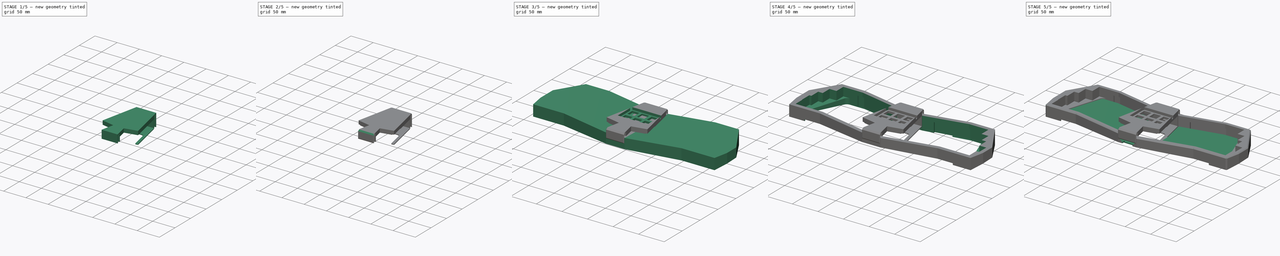
[diagram: build sequence overview — one tinted view per stage of 5, left to right]
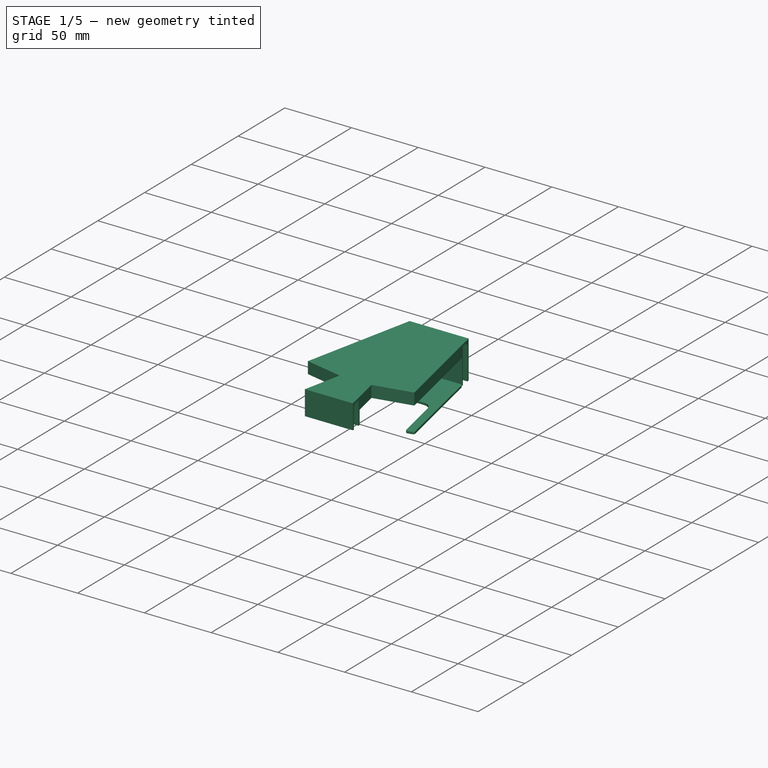
[diagram: stage 1 of 5 — iso view after this stage's code; geometry added in this stage tinted green]
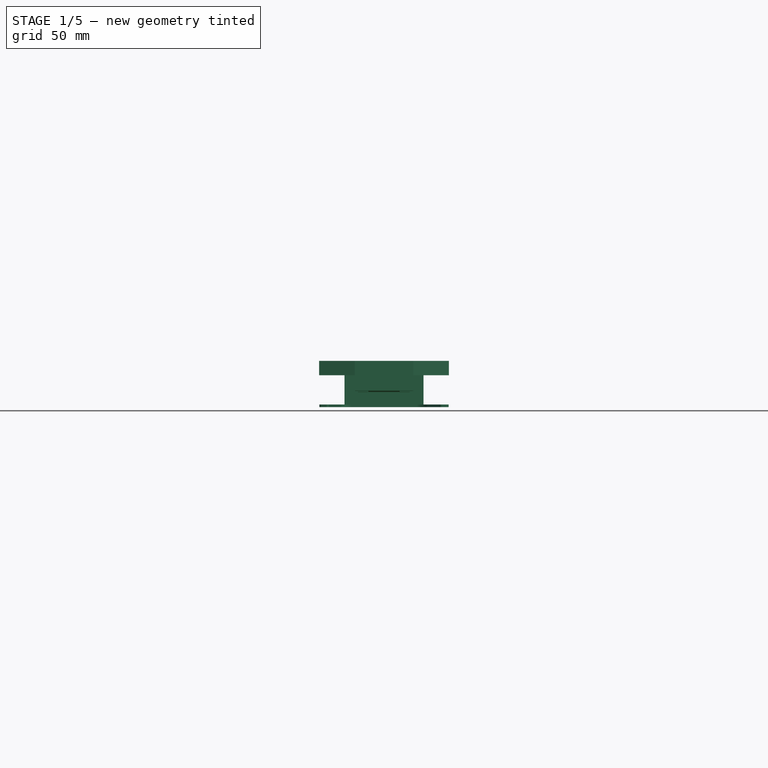
[diagram: stage 1 of 5 — front view after this stage's code; geometry added in this stage tinted green]
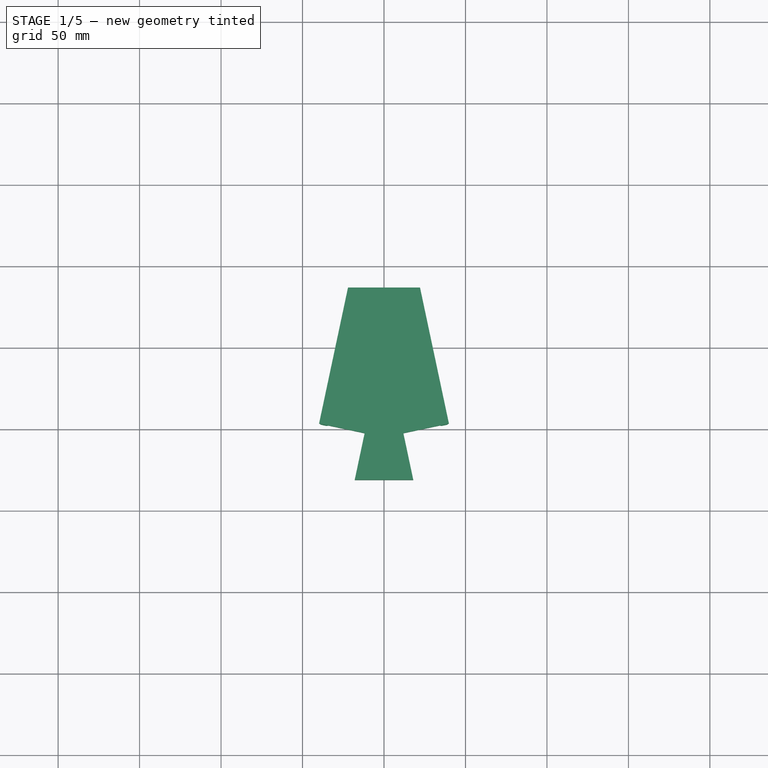
[diagram: stage 1 of 5 — top view after this stage's code; geometry added in this stage tinted green]
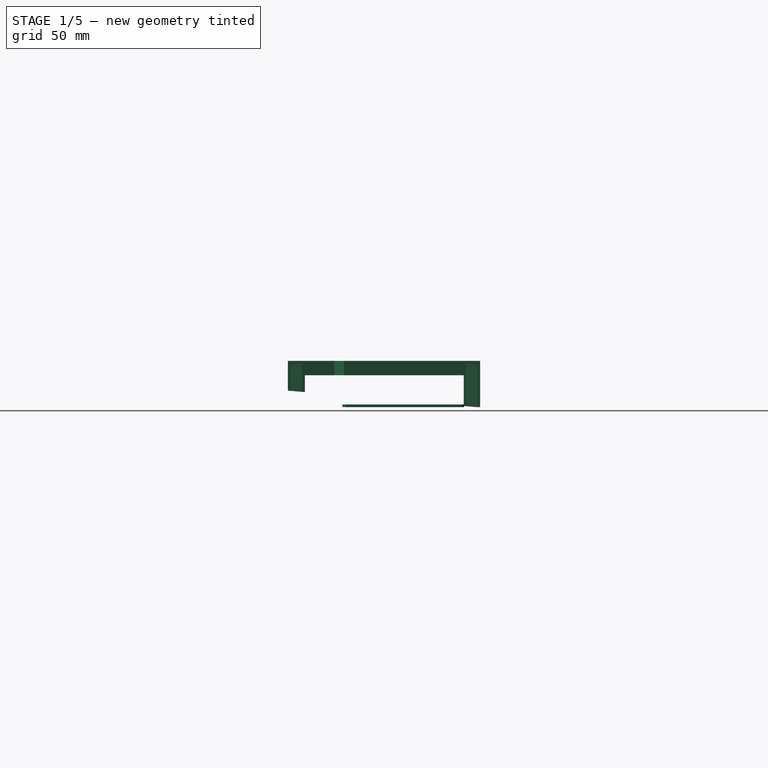
[diagram: stage 1 of 5 — right view after this stage's code; geometry added in this stage tinted green]
FCSTD DOCUMENT  (FreeCAD 1.0R38642 (Git))
Label: barnacle-basic_core
License: All rights reserved
LicenseURL: https://en.wikipedia.org/wiki/All_rights_reserved
objects: Sketcher::SketchObject×52, PartDesign::Pocket×23, PartDesign::Pad×14, PartDesign::Fillet×7, PartDesign::Body×5, PartDesign::Chamfer×4, Spreadsheet::Sheet×1
note: 253 computed .brp shape members not serialized (recipe doc carries the construction recipe); baked Part::Feature solids carry a one-line shape summary decoded from their .brp

FEATURE [Sketcher::SketchObject] Sketch028  label="pcb_core001"
  ArcFitTolerance = 0
  AttachmentSupport = -> [XY_Plane007]
  FullyConstrained = true
  MakeInternals = false
  MapMode = 5
  expr: Constraints[141] = 90 - <<config>>.ALPHA_ANGLE
  expr: Constraints[142] = <<config>>.KEY_UNIT
  expr: Constraints[147] = <<config>>.MOD_OFFSET
  expr: Constraints[148] = 2.75 * <<config>>.KEY_UNIT
  expr: Constraints[149] = 3.25 * <<config>>.KEY_UNIT
  expr: Constraints[150] = 2.75 * <<config>>.KEY_UNIT
  expr: Constraints[151] = 2.5 * <<config>>.KEY_UNIT
  expr: Constraints[152] = 2 * <<config>>.KEY_UNIT
  expr: Constraints[162] = 3 * <<config>>.KEY_UNIT
  expr: Constraints[169] = <<config>>.HEADER_WIDTH
  expr: Constraints[170] = <<config>>.HEADER_LENGTH
  expr: Constraints[191] = 12 * 2.54
  expr: Constraints[207] = Spreadsheet.PCB_CORE_OFFSET
  expr: Constraints[208] = Spreadsheet.PCB_CORE_OFFSET
  expr: Constraints[209] = Spreadsheet.PCB_CORE_OFFSET
  expr: Constraints[210] = Spreadsheet.PCB_CORE_OFFSET
  expr: Constraints[211] = Spreadsheet.PCB_CORE_OFFSET
  expr: Constraints[44] = 2 * <<config>>.KEY_UNIT
  expr: Constraints[45] = 2.5 * <<config>>.KEY_UNIT
  expr: Constraints[46] = <<config>>.KEY_UNIT
  expr: Constraints[51] = 2.75 * <<config>>.KEY_UNIT
  expr: Constraints[52] = 2.75 * <<config>>.KEY_UNIT
  expr: Constraints[53] = 2.5 * <<config>>.KEY_UNIT
  expr: Constraints[59] = 90 - <<config>>.ALPHA_ANGLE
  expr: Constraints[62] = 4 * <<config>>.KEY_UNIT
  expr: Constraints[66] = 5 * <<config>>.KEY_UNIT
  expr: Constraints[67] = 5.5 * <<config>>.KEY_UNIT
  expr: Constraints[75] = <<config>>.KEY_UNIT
  expr: Constraints[76] = <<config>>.MOD_OFFSET
  expr: Constraints[84] = 4 * <<config>>.KEY_UNIT
  expr: Constraints[85] = 5.5 * <<config>>.KEY_UNIT
  expr: Constraints[86] = <<config>>.KEY_UNIT
  expr: Constraints[89] = 5 * <<config>>.KEY_UNIT
  sketch-geometry (78):
    g0: LineSegment [constr] StartX=-141.18 StartY=94.2 StartZ=0 EndX=-103.08 EndY=94.2 EndZ=0
    g1: LineSegment [constr] StartX=-103.08 StartY=94.2 StartZ=0 EndX=-103.08 EndY=75.15 EndZ=0
    g2: LineSegment [constr] StartX=-103.08 StartY=75.15 StartZ=0 EndX=-141.18 EndY=75.15 EndZ=0
    g3: LineSegment [constr] StartX=-141.18 StartY=75.15 StartZ=0 EndX=-141.18 EndY=94.2 EndZ=0
    g4: LineSegment [constr] StartX=-107.129 StartY=75.15 StartZ=0 EndX=-154.754 EndY=75.15 EndZ=0
    g5: LineSegment [constr] StartX=-154.754 StartY=75.15 StartZ=0 EndX=-154.754 EndY=56.1 EndZ=0
    g6: LineSegment [constr] StartX=-154.754 StartY=56.1 StartZ=0 EndX=-107.129 EndY=56.1 EndZ=0
    g7: LineSegment [constr] StartX=-107.129 StartY=56.1 StartZ=0 EndX=-107.129 EndY=75.15 EndZ=0
    g8: LineSegment [constr] StartX=-111.179 StartY=56.1 StartZ=0 EndX=-163.566 EndY=56.1 EndZ=0
    g9: LineSegment [constr] StartX=-163.566 StartY=56.1 StartZ=0 EndX=-163.566 EndY=37.05 EndZ=0
    g10: LineSegment [constr] StartX=-163.566 StartY=37.05 StartZ=0 EndX=-111.179 EndY=37.05 EndZ=0
    g11: LineSegment [constr] StartX=-111.179 StartY=37.05 StartZ=0 EndX=-111.179 EndY=56.1 EndZ=0
    g12: LineSegment [constr] StartX=-115.228 StartY=37.05 StartZ=0 EndX=-167.615 EndY=37.05 EndZ=0
    g13: LineSegment [constr] StartX=-167.615 StartY=37.05 StartZ=0 EndX=-167.615 EndY=18 EndZ=0
    g14: LineSegment [constr] StartX=-167.615 StartY=18 StartZ=0 EndX=-115.228 EndY=18 EndZ=0
    g15: LineSegment [constr] StartX=-115.228 StartY=18 StartZ=0 EndX=-115.228 EndY=37.05 EndZ=0
    g16: LineSegment [constr] StartX=-119.277 StartY=18 StartZ=0 EndX=-166.902 EndY=18 EndZ=0
    g17: LineSegment [constr] StartX=-166.902 StartY=18 StartZ=0 EndX=-166.902 EndY=-1.05 EndZ=0
    g18: LineSegment [constr] StartX=-166.902 StartY=-1.05 StartZ=0 EndX=-119.277 EndY=-1.05 EndZ=0
    g19: LineSegment [constr] StartX=-119.277 StartY=-1.05 StartZ=0 EndX=-119.277 EndY=18 EndZ=0
    g20: LineSegment [constr] StartX=-119.277 StartY=-1.05 StartZ=0 EndX=-99.2503 EndY=93.1686 EndZ=0
    g21: LineSegment [constr] StartX=-99.2503 StartY=93.1686 StartZ=0 EndX=-24.7155 EndY=77.3257 EndZ=0
    g22: LineSegment [constr] StartX=-119.054 StartY=0 StartZ=0 EndX=-16.5685 EndY=-21.7839 EndZ=0
    g23: LineSegment [constr] StartX=-16.5685 StartY=-21.7839 StartZ=0 EndX=-12.6078 EndY=-3.15024 EndZ=0
    g24: LineSegment [constr] StartX=-12.6078 StartY=-3.15024 StartZ=0 EndX=-40.5583 EndY=2.79084 EndZ=0
    g25: LineSegment [constr] StartX=-40.5583 StartY=2.79084 StartZ=0 EndX=-24.7155 EndY=77.3257 EndZ=0
    g26: LineSegment [constr] StartX=119.054 StartY=0 StartZ=0 EndX=16.5685 EndY=-21.7839 EndZ=0
    g27: LineSegment [constr] StartX=16.5685 StartY=-21.7839 StartZ=0 EndX=12.6078 EndY=-3.15024 EndZ=0
    g28: LineSegment [constr] StartX=12.6078 StartY=-3.15024 StartZ=0 EndX=40.5583 EndY=2.79084 EndZ=0
    g29: LineSegment [constr] StartX=40.5583 StartY=2.79084 StartZ=0 EndX=24.7155 EndY=77.3257 EndZ=0
    g30: LineSegment [constr] StartX=24.7155 StartY=77.3257 StartZ=0 EndX=99.2503 EndY=93.1686 EndZ=0
    g31: LineSegment [constr] StartX=99.2503 StartY=93.1686 StartZ=0 EndX=119.277 EndY=-1.05 EndZ=0
    g32: LineSegment [constr] StartX=119.277 StartY=-1.05 StartZ=0 EndX=171.665 EndY=-1.05 EndZ=0
    g33: LineSegment [constr] StartX=171.665 StartY=-1.05 StartZ=0 EndX=171.665 EndY=18 EndZ=0
    g34: LineSegment [constr] StartX=171.665 StartY=18 StartZ=0 EndX=119.277 EndY=18 EndZ=0
    g35: LineSegment [constr] StartX=119.277 StartY=18 StartZ=0 EndX=119.277 EndY=-1.05 EndZ=0
    g36: LineSegment [constr] StartX=115.228 StartY=18 StartZ=0 EndX=177.14 EndY=18 EndZ=0
    g37: LineSegment [constr] StartX=177.14 StartY=18 StartZ=0 EndX=177.14 EndY=37.05 EndZ=0
    g38: LineSegment [constr] StartX=177.14 StartY=37.05 StartZ=0 EndX=115.228 EndY=37.05 EndZ=0
    g39: LineSegment [constr] StartX=115.228 StartY=37.05 StartZ=0 EndX=115.228 EndY=18 EndZ=0
    g40: LineSegment [constr] StartX=111.179 StartY=37.05 StartZ=0 EndX=163.566 EndY=37.05 EndZ=0
    g41: LineSegment [constr] StartX=163.566 StartY=37.05 StartZ=0 EndX=163.566 EndY=56.1 EndZ=0
    g42: LineSegment [constr] StartX=163.566 StartY=56.1 StartZ=0 EndX=111.179 EndY=56.1 EndZ=0
    g43: LineSegment [constr] StartX=111.179 StartY=56.1 StartZ=0 EndX=111.179 EndY=37.05 EndZ=0
    g44: LineSegment [constr] StartX=107.129 StartY=56.1 StartZ=0 EndX=154.754 EndY=56.1 EndZ=0
    g45: LineSegment [constr] StartX=154.754 StartY=56.1 StartZ=0 EndX=154.754 EndY=75.15 EndZ=0
    g46: LineSegment [constr] StartX=154.754 StartY=75.15 StartZ=0 EndX=107.129 EndY=75.15 EndZ=0
    g47: LineSegment [constr] StartX=107.129 StartY=75.15 StartZ=0 EndX=107.129 EndY=56.1 EndZ=0
    g48: LineSegment [constr] StartX=103.08 StartY=75.15 StartZ=0 EndX=141.18 EndY=75.15 EndZ=0
    g49: LineSegment [constr] StartX=141.18 StartY=75.15 StartZ=0 EndX=141.18 EndY=94.2 EndZ=0
    g50: LineSegment [constr] StartX=141.18 StartY=94.2 StartZ=0 EndX=103.08 EndY=94.2 EndZ=0
    g51: LineSegment [constr] StartX=103.08 StartY=94.2 StartZ=0 EndX=103.08 EndY=75.15 EndZ=0
    g52: LineSegment [constr] StartX=-28.575 StartY=57.7047 StartZ=0 EndX=28.575 EndY=57.7047 EndZ=0
    g53: LineSegment [constr] StartX=28.575 StartY=57.7047 StartZ=0 EndX=28.575 EndY=0.554733 EndZ=0
    g54: LineSegment [constr] StartX=28.575 StartY=0.554733 StartZ=0 EndX=-28.575 EndY=0.554733 EndZ=0
    g55: LineSegment [constr] StartX=-28.575 StartY=0.554733 StartZ=0 EndX=-28.575 EndY=57.7047 EndZ=0
    g56: LineSegment [constr] StartX=-37.037 StartY=2.04236 StartZ=0 EndX=-28.575 EndY=41.853 EndZ=0
    g57: LineSegment [constr] StartX=-28.575 StartY=41.853 StartZ=0 EndX=-32.0963 EndY=42.6014 EndZ=0
    g58: Circle [constr] CenterX=-28.575 CenterY=57.7047 CenterZ=0 NormalX=0 NormalY=0 NormalZ=1 AngleXU=0 Radius=0.304232
    g59: Circle [constr] CenterX=-28.575 CenterY=0.554733 CenterZ=0 NormalX=0 NormalY=0 NormalZ=1 AngleXU=0 Radius=0.304232
    g60: LineSegment [constr] StartX=-29.5138 StartY=32.6265 StartZ=0 EndX=-33.0351 EndY=33.375 EndZ=0
    g61: LineSegment [constr] StartX=-33.0351 StartY=33.375 StartZ=0 EndX=-39.3723 EndY=3.56108 EndZ=0
    g62: LineSegment [constr] StartX=-39.3723 StartY=3.56108 StartZ=0 EndX=-35.8509 EndY=2.81259 EndZ=0
    g63: LineSegment [constr] StartX=-35.8509 StartY=2.81259 StartZ=0 EndX=-29.5138 EndY=32.6265 EndZ=0
    g64: LineSegment [constr] StartX=35.8509 StartY=2.81259 StartZ=0 EndX=39.3723 EndY=3.56108 EndZ=0
    g65: LineSegment [constr] StartX=39.3723 StartY=3.56108 StartZ=0 EndX=33.0351 EndY=33.375 EndZ=0
    g66: LineSegment [constr] StartX=33.0351 StartY=33.375 StartZ=0 EndX=29.5138 EndY=32.6265 EndZ=0
    g67: LineSegment [constr] StartX=29.5138 StartY=32.6265 StartZ=0 EndX=35.8509 EndY=2.81259 EndZ=0
    g68: LineSegment StartX=-24.2903 StartY=76.8007 StartZ=0 EndX=24.2903 EndY=76.8007 EndZ=0
    g69: LineSegment StartX=24.2903 StartY=76.8007 StartZ=0 EndX=39.9357 EndY=3.19521 EndZ=0
    g70: LineSegment StartX=-39.9357 StartY=3.19521 StartZ=0 EndX=-24.2903 EndY=76.8007 EndZ=0
    g71: GeomPoint [constr] X=0 Y=-2.07 Z=0
    g72: LineSegment StartX=-39.9357 StartY=3.19521 StartZ=0 EndX=-34.0668 EndY=1.94774 EndZ=0
    g73: LineSegment StartX=39.9357 StartY=3.19521 StartZ=0 EndX=34.0668 EndY=1.94774 EndZ=0
    g74: LineSegment [constr] StartX=-34.0668 StartY=1.94774 StartZ=0 EndX=0 EndY=-5.29337 EndZ=0
    g75: LineSegment StartX=-34.0668 StartY=1.94774 StartZ=0 EndX=-25.5958 EndY=41.8007 EndZ=0
    g76: LineSegment StartX=34.0668 StartY=1.94774 StartZ=0 EndX=25.5958 EndY=41.8007 EndZ=0
    g77: LineSegment StartX=-25.5958 StartY=41.8007 StartZ=0 EndX=25.5958 EndY=41.8007 EndZ=0
  constraints (230):
    c: Coincident(g0,g1)
    c: Coincident(g1,g2)
    c: Coincident(g2,g3)
    c: Coincident(g3,g0)
    c: Horizontal(g0)
    c: Horizontal(g2)
    c: Vertical(g1)
    c: Vertical(g3)
    c: Coincident(g4,g5)
    c: Coincident(g5,g6)
    c: Coincident(g6,g7)
    c: Coincident(g7,g4)
    c: Horizontal(g4)
    c: Horizontal(g6)
    c: Vertical(g5)
    c: Vertical(g7)
    c: PointOnObject(g4,g2)
    c: Coincident(g8,g9)
    c: Coincident(g9,g10)
    c: Coincident(g10,g11)
    c: Coincident(g11,g8)
    c: Horizontal(g8)
    c: Horizontal(g10)
    c: Vertical(g9)
    c: Vertical(g11)
    c: PointOnObject(g8,g6)
    c: Coincident(g12,g13)
    c: Coincident(g13,g14)
    c: Coincident(g14,g15)
    c: Coincident(g15,g12)
    c: Horizontal(g12)
    c: Horizontal(g14)
    c: Vertical(g13)
    c: Vertical(g15)
    c: PointOnObject(g12,g10)
    c: Coincident(g16,g17)
    c: Coincident(g17,g18)
    c: Coincident(g18,g19)
    c: Coincident(g19,g16)
    c: Horizontal(g16)
    c: Horizontal(g18)
    c: Vertical(g17)
    c: Vertical(g19)
    c: PointOnObject(g16,g14)
    c: DistanceX(g0,g0) = 38.1
    c: DistanceX(g4,g4) = 47.625
    c: DistanceY(g3,g3) = 19.05
    c: Equal(g3,g5)
    c: Equal(g5,g9)
    c: Equal(g9,g13)
    c: Equal(g13,g17)
    c: DistanceX(g8,g8) = 52.3875
    c: DistanceX(g12,g12) = 52.3875
    c: DistanceX(g16,g16) = 47.625
    c: Coincident(g20,g18)
    c: PointOnObject(g14,g20)
    c: PointOnObject(g10,g20)
    c: PointOnObject(g6,g20)
    c: PointOnObject(g1,g20)
    c: Angle(g-1,g20) = 1.36136
    c: Coincident(g20,g21)
    c: Perpendicular(g21,g20)
    c: Distance(g21) = 76.2
    c: PointOnObject(g22,g-1)
    c: PointOnObject(g22,g20)
    c: Perpendicular(g22,g20)
    c: Distance(g22,g20) = 95.25
    c: Distance(g22) = 104.775
    c: Coincident(g23,g22)
    c: Coincident(g24,g23)
    c: Coincident(g25,g24)
    c: Coincident(g25,g21)
    c: Perpendicular(g21,g25)
    c: Perpendicular(g23,g22)
    c: Perpendicular(g24,g23)
    c: Distance(g23) = 19.05
    c: DistanceY(g18,g22) = 1.05
    c: Coincident(g26,g27)
    c: Coincident(g27,g28)
    c: Coincident(g28,g29)
    c: Coincident(g29,g30)
    c: Perpendicular(g27,g26)
    c: Perpendicular(g28,g27)
    c: Perpendicular(g30,g29)
    c: Distance(g30) = 76.2
    c: Distance(g26) = 104.775
    c: Distance(g27) = 19.05
    c: Coincident(g31,g30)
    c: PointOnObject(g26,g31)
    c: Distance(g26,g30) = 95.25
    c: Perpendicular(g31,g26)
    c: Perpendicular(g31,g30)
    c: Coincident(g32,g33)
    c: Coincident(g33,g34)
    c: Coincident(g34,g35)
    c: Coincident(g35,g32)
    c: Horizontal(g32)
    c: Horizontal(g34)
    c: Vertical(g33)
    c: Vertical(g35)
    c: Coincident(g32,g31)
    c: Coincident(g36,g37)
    c: Coincident(g37,g38)
    c: Coincident(g38,g39)
    c: Coincident(g39,g36)
    c: Horizontal(g36)
    c: Horizontal(g38)
    c: Vertical(g37)
    c: Vertical(g39)
    c: PointOnObject(g36,g34)
    c: Coincident(g40,g41)
    c: Coincident(g41,g42)
    c: Coincident(g42,g43)
    c: Coincident(g43,g40)
    c: Horizontal(g40)
    c: Horizontal(g42)
    c: Vertical(g41)
    c: Vertical(g43)
    c: PointOnObject(g40,g38)
    c: Coincident(g44,g45)
    c: Coincident(g45,g46)
    c: Coincident(g46,g47)
    c: Coincident(g47,g44)
    c: Horizontal(g44)
    c: Horizontal(g46)
    c: Vertical(g45)
    c: Vertical(g47)
    c: PointOnObject(g44,g42)
    c: Coincident(g48,g49)
    c: Coincident(g49,g50)
    c: Coincident(g50,g51)
    c: Coincident(g51,g48)
    c: Horizontal(g48)
    c: Horizontal(g50)
    c: Vertical(g49)
    c: Vertical(g51)
    c: PointOnObject(g48,g46)
    c: PointOnObject(g48,g31)
    c: PointOnObject(g44,g31)
    c: PointOnObject(g40,g31)
    c: PointOnObject(g36,g31)
    c: Angle(g31,g-1) = 1.36136
    c: DistanceY(g49,g49) = 19.05
    c: Equal(g49,g45)
    c: Equal(g45,g41)
    c: Equal(g41,g37)
    c: Equal(g37,g33)
    c: DistanceY(g31,g26) = 1.05
    c: DistanceX(g34,g34) = 52.3875
    c: DistanceX(g38,g38) = 61.9125
    c: DistanceX(g42,g42) = 52.3875
    c: DistanceX(g46,g46) = 47.625
    c: DistanceX(g50,g50) = 38.1
    c: Coincident(g52,g53)
    c: Coincident(g53,g54)
    c: Coincident(g54,g55)
    c: Coincident(g55,g52)
    c: Horizontal(g54)
    c: Vertical(g53)
    c: Vertical(g55)
    c: Symmetric(g52,g52,g-2)
    c: Equal(g52,g53)
    c: DistanceX(g52,g52) = 57.15
    c: Symmetric(g22,g26,g-2)
    c: PointOnObject(g56,g24)
    c: Coincident(g57,g56)
    c: PointOnObject(g57,g25)
    c: Perpendicular(g57,g56)
    c: Perpendicular(g56,g24)
    c: Distance(g57) = 3.6
    c: Distance(g56) = 40.7
    c: PointOnObject(g56,g55)
    c: Coincident(g58,g52)
    c: Tangent(g58,g25)
    c: Coincident(g59,g54)
    c: Tangent(g59,g24)
    c: Equal(g59,g58)
    c: Coincident(g60,g61)
    c: Coincident(g61,g62)
    c: Coincident(g62,g63)
    c: Coincident(g63,g60)
    c: Coincident(g64,g65)
    c: Coincident(g65,g66)
    c: Coincident(g66,g67)
    c: Coincident(g67,g64)
    c: Parallel(g62,g60)
    c: Parallel(g60,g24)
    c: Distance(g24,g62) = 1
    c: Distance(g24,g61) = 1
    c: Parallel(g63,g61)
    c: Parallel(g61,g25)
    c: Distance(g61) = 30.48
    c: Distance(g60) = 3.6
    c: Parallel(g67,g65)
    c: Parallel(g65,g29)
    c: Parallel(g66,g64)
    c: Parallel(g64,g28)
    c: Equal(g60,g66)
    c: Equal(g67,g63)
    c: Distance(g28,g64) = 1
    c: Distance(g28,g65) = 1
    c: Horizontal(g68)
    c: Coincident(g68,g69)
    c: Coincident(g70,g68)
    c: Parallel(g70,g25)
    c: Parallel(g69,g29)
    c: PointOnObject(g71,g-2)
    c: Distance(g70,g25) = 0.525
    c: Distance(g69,g29) = 0.525
    c: Distance(g69,g28) = 0.525
    c: Distance(g70,g24) = 0.525
    c: DistanceY(g68,g21) = 0.525
    c: DistanceY(g-1,g71) = -2.07
    c: Coincident(g72,g70)
    c: Coincident(g73,g69)
    c: Parallel(g28,g73)
    c: Parallel(g72,g24)
    c: Equal(g73,g72)
    c: Coincident(g74,g72)
    c: PointOnObject(g74,g-2)
    c: Parallel(g74,g72)
    c: Coincident(g75,g72)
    c: Coincident(g76,g73)
    c: Coincident(g77,g75)
    c: Coincident(g77,g76)
    c: Horizontal(g77)
    c: Parallel(g75,g70)
    c: Parallel(g69,g76)
    c: Distance(g72) = 6
    c: DistanceY(g75,g68) = 35
FEATURE [PartDesign::Pad] Pad010
  Direction = (0,0,1)
  Length = 1.6
  Length2 = 10
  Profile = -> Sketch028
  ReferenceAxis = -> Sketch028 [N_Axis]
  Suppressed = false
  Type = 0
FEATURE [PartDesign::Fillet] Fillet002
  Base = -> Pad010 [Edge20,Edge1,Edge2,Edge5,Edge17,Edge8]
  BaseFeature = -> Pad010
  Radius = 1.5
  SupportTransform = false
  Suppressed = false
  UseAllEdges = false
  expr: Radius = Spreadsheet.PCB_RADIUS
FEATURE [Sketcher::SketchObject] Sketch029  label="vorlage008"
  ArcFitTolerance = 0
  AttachmentSupport = -> [XY_Plane008]
  FullyConstrained = false
  MakeInternals = false
  MapMode = 5
  expr: Constraints[141] = 90 - <<config>>.ALPHA_ANGLE
  expr: Constraints[142] = <<config>>.KEY_UNIT
  expr: Constraints[147] = <<config>>.MOD_OFFSET
  expr: Constraints[148] = 2.75 * <<config>>.KEY_UNIT
  expr: Constraints[149] = 3.25 * <<config>>.KEY_UNIT
  expr: Constraints[150] = 2.75 * <<config>>.KEY_UNIT
  expr: Constraints[151] = 2.5 * <<config>>.KEY_UNIT
  expr: Constraints[152] = 2 * <<config>>.KEY_UNIT
  expr: Constraints[162] = 3 * <<config>>.KEY_UNIT
  expr: Constraints[169] = <<config>>.HEADER_WIDTH
  expr: Constraints[170] = <<config>>.HEADER_LENGTH
  expr: Constraints[191] = Spreadsheet.CASE_MARGIN
  expr: Constraints[192] = Spreadsheet.CASE_MARGIN
  expr: Constraints[193] = Spreadsheet.CASE_MARGIN
  expr: Constraints[194] = Spreadsheet.CASE_MARGIN
  expr: Constraints[195] = Spreadsheet.CASE_MARGIN
  expr: Constraints[203] = Spreadsheet.CASE_BEZEL
  expr: Constraints[207] = Spreadsheet.CORE_MARGIN
  expr: Constraints[209] = Spreadsheet.CORE_MARGIN
  expr: Constraints[213] = Spreadsheet.CASE_BEZEL
  expr: Constraints[44] = 2 * <<config>>.KEY_UNIT
  expr: Constraints[45] = 2.5 * <<config>>.KEY_UNIT
  expr: Constraints[46] = <<config>>.KEY_UNIT
  expr: Constraints[51] = 2.75 * <<config>>.KEY_UNIT
  expr: Constraints[52] = 2.75 * <<config>>.KEY_UNIT
  expr: Constraints[53] = 2.5 * <<config>>.KEY_UNIT
  expr: Constraints[59] = 90 - <<config>>.ALPHA_ANGLE
  expr: Constraints[62] = 4 * <<config>>.KEY_UNIT
  expr: Constraints[66] = 5 * <<config>>.KEY_UNIT
  expr: Constraints[67] = 5.5 * <<config>>.KEY_UNIT
  expr: Constraints[75] = <<config>>.KEY_UNIT
  expr: Constraints[76] = <<config>>.MOD_OFFSET
  expr: Constraints[84] = 4 * <<config>>.KEY_UNIT
  expr: Constraints[85] = 5.5 * <<config>>.KEY_UNIT
  expr: Constraints[86] = <<config>>.KEY_UNIT
  expr: Constraints[89] = 5 * <<config>>.KEY_UNIT
  sketch-geometry (73):
    g0: LineSegment [constr] StartX=-141.18 StartY=94.2 StartZ=0 EndX=-103.08 EndY=94.2 EndZ=0
    g1: LineSegment [constr] StartX=-103.08 StartY=94.2 StartZ=0 EndX=-103.08 EndY=75.15 EndZ=0
    g2: LineSegment [constr] StartX=-103.08 StartY=75.15 StartZ=0 EndX=-141.18 EndY=75.15 EndZ=0
    g3: LineSegment [constr] StartX=-141.18 StartY=75.15 StartZ=0 EndX=-141.18 EndY=94.2 EndZ=0
    g4: LineSegment [constr] StartX=-107.129 StartY=75.15 StartZ=0 EndX=-154.754 EndY=75.15 EndZ=0
    g5: LineSegment [constr] StartX=-154.754 StartY=75.15 StartZ=0 EndX=-154.754 EndY=56.1 EndZ=0
    g6: LineSegment [constr] StartX=-154.754 StartY=56.1 StartZ=0 EndX=-107.129 EndY=56.1 EndZ=0
    g7: LineSegment [constr] StartX=-107.129 StartY=56.1 StartZ=0 EndX=-107.129 EndY=75.15 EndZ=0
    g8: LineSegment [constr] StartX=-111.179 StartY=56.1 StartZ=0 EndX=-163.566 EndY=56.1 EndZ=0
    g9: LineSegment [constr] StartX=-163.566 StartY=56.1 StartZ=0 EndX=-163.566 EndY=37.05 EndZ=0
    g10: LineSegment [constr] StartX=-163.566 StartY=37.05 StartZ=0 EndX=-111.179 EndY=37.05 EndZ=0
    g11: LineSegment [constr] StartX=-111.179 StartY=37.05 StartZ=0 EndX=-111.179 EndY=56.1 EndZ=0
    g12: LineSegment [constr] StartX=-115.228 StartY=37.05 StartZ=0 EndX=-167.615 EndY=37.05 EndZ=0
    g13: LineSegment [constr] StartX=-167.615 StartY=37.05 StartZ=0 EndX=-167.615 EndY=18 EndZ=0
    g14: LineSegment [constr] StartX=-167.615 StartY=18 StartZ=0 EndX=-115.228 EndY=18 EndZ=0
    g15: LineSegment [constr] StartX=-115.228 StartY=18 StartZ=0 EndX=-115.228 EndY=37.05 EndZ=0
    g16: LineSegment [constr] StartX=-119.277 StartY=18 StartZ=0 EndX=-166.902 EndY=18 EndZ=0
    g17: LineSegment [constr] StartX=-166.902 StartY=18 StartZ=0 EndX=-166.902 EndY=-1.05 EndZ=0
    g18: LineSegment [constr] StartX=-166.902 StartY=-1.05 StartZ=0 EndX=-119.277 EndY=-1.05 EndZ=0
    g19: LineSegment [constr] StartX=-119.277 StartY=-1.05 StartZ=0 EndX=-119.277 EndY=18 EndZ=0
    g20: LineSegment [constr] StartX=-119.277 StartY=-1.05 StartZ=0 EndX=-99.2503 EndY=93.1686 EndZ=0
    g21: LineSegment [constr] StartX=-99.2503 StartY=93.1686 StartZ=0 EndX=-24.7155 EndY=77.3257 EndZ=0
    g22: LineSegment [constr] StartX=-119.054 StartY=0 StartZ=0 EndX=-16.5685 EndY=-21.7839 EndZ=0
    g23: LineSegment [constr] StartX=-16.5685 StartY=-21.7839 StartZ=0 EndX=-12.6078 EndY=-3.15024 EndZ=0
    g24: LineSegment [constr] StartX=-12.6078 StartY=-3.15024 StartZ=0 EndX=-40.5583 EndY=2.79084 EndZ=0
    g25: LineSegment [constr] StartX=-40.5583 StartY=2.79084 StartZ=0 EndX=-24.7155 EndY=77.3257 EndZ=0
    g26: LineSegment [constr] StartX=119.054 StartY=0 StartZ=0 EndX=16.5685 EndY=-21.7839 EndZ=0
    g27: LineSegment [constr] StartX=16.5685 StartY=-21.7839 StartZ=0 EndX=12.6078 EndY=-3.15024 EndZ=0
    g28: LineSegment [constr] StartX=12.6078 StartY=-3.15024 StartZ=0 EndX=40.5583 EndY=2.79084 EndZ=0
    g29: LineSegment [constr] StartX=40.5583 StartY=2.79084 StartZ=0 EndX=24.7155 EndY=77.3257 EndZ=0
    g30: LineSegment [constr] StartX=24.7155 StartY=77.3257 StartZ=0 EndX=99.2503 EndY=93.1686 EndZ=0
    g31: LineSegment [constr] StartX=99.2503 StartY=93.1686 StartZ=0 EndX=119.277 EndY=-1.05 EndZ=0
    g32: LineSegment [constr] StartX=119.277 StartY=-1.05 StartZ=0 EndX=171.665 EndY=-1.05 EndZ=0
    g33: LineSegment [constr] StartX=171.665 StartY=-1.05 StartZ=0 EndX=171.665 EndY=18 EndZ=0
    g34: LineSegment [constr] StartX=171.665 StartY=18 StartZ=0 EndX=119.277 EndY=18 EndZ=0
    g35: LineSegment [constr] StartX=119.277 StartY=18 StartZ=0 EndX=119.277 EndY=-1.05 EndZ=0
    g36: LineSegment [constr] StartX=115.228 StartY=18 StartZ=0 EndX=177.14 EndY=18 EndZ=0
    g37: LineSegment [constr] StartX=177.14 StartY=18 StartZ=0 EndX=177.14 EndY=37.05 EndZ=0
    g38: LineSegment [constr] StartX=177.14 StartY=37.05 StartZ=0 EndX=115.228 EndY=37.05 EndZ=0
    g39: LineSegment [constr] StartX=115.228 StartY=37.05 StartZ=0 EndX=115.228 EndY=18 EndZ=0
    g40: LineSegment [constr] StartX=111.179 StartY=37.05 StartZ=0 EndX=163.566 EndY=37.05 EndZ=0
    g41: LineSegment [constr] StartX=163.566 StartY=37.05 StartZ=0 EndX=163.566 EndY=56.1 EndZ=0
    g42: LineSegment [constr] StartX=163.566 StartY=56.1 StartZ=0 EndX=111.179 EndY=56.1 EndZ=0
    g43: LineSegment [constr] StartX=111.179 StartY=56.1 StartZ=0 EndX=111.179 EndY=37.05 EndZ=0
    g44: LineSegment [constr] StartX=107.129 StartY=56.1 StartZ=0 EndX=154.754 EndY=56.1 EndZ=0
    g45: LineSegment [constr] StartX=154.754 StartY=56.1 StartZ=0 EndX=154.754 EndY=75.15 EndZ=0
    g46: LineSegment [constr] StartX=154.754 StartY=75.15 StartZ=0 EndX=107.129 EndY=75.15 EndZ=0
    g47: LineSegment [constr] StartX=107.129 StartY=75.15 StartZ=0 EndX=107.129 EndY=56.1 EndZ=0
    g48: LineSegment [constr] StartX=103.08 StartY=75.15 StartZ=0 EndX=141.18 EndY=75.15 EndZ=0
    g49: LineSegment [constr] StartX=141.18 StartY=75.15 StartZ=0 EndX=141.18 EndY=94.2 EndZ=0
    g50: LineSegment [constr] StartX=141.18 StartY=94.2 StartZ=0 EndX=103.08 EndY=94.2 EndZ=0
    g51: LineSegment [constr] StartX=103.08 StartY=94.2 StartZ=0 EndX=103.08 EndY=75.15 EndZ=0
    g52: LineSegment [constr] StartX=-28.575 StartY=57.7047 StartZ=0 EndX=28.575 EndY=57.7047 EndZ=0
    g53: LineSegment [constr] StartX=28.575 StartY=57.7047 StartZ=0 EndX=28.575 EndY=0.554733 EndZ=0
    g54: LineSegment [constr] StartX=28.575 StartY=0.554733 StartZ=0 EndX=-28.575 EndY=0.554733 EndZ=0
    g55: LineSegment [constr] StartX=-28.575 StartY=0.554733 StartZ=0 EndX=-28.575 EndY=57.7047 EndZ=0
    g56: LineSegment [constr] StartX=-37.037 StartY=2.04236 StartZ=0 EndX=-28.575 EndY=41.853 EndZ=0
    g57: LineSegment [constr] StartX=-28.575 StartY=41.853 StartZ=0 EndX=-32.0963 EndY=42.6014 EndZ=0
    g58: Circle [constr] CenterX=-28.575 CenterY=57.7047 CenterZ=0 NormalX=0 NormalY=0 NormalZ=1 AngleXU=0 Radius=0.304232
    g59: Circle [constr] CenterX=-28.575 CenterY=0.554733 CenterZ=0 NormalX=0 NormalY=0 NormalZ=1 AngleXU=0 Radius=0.304232
    g60: LineSegment StartX=-17.9585 StartY=-31.2091 StartZ=0 EndX=-11.8944 EndY=-2.67981 EndZ=0
    g61: LineSegment StartX=-11.8944 StartY=-2.67981 StartZ=0 EndX=-39.8449 EndY=3.26124 EndZ=0
    g62: LineSegment StartX=-39.8449 StartY=3.26124 StartZ=0 EndX=-22.0854 EndY=86.7509 EndZ=0
    g63: LineSegment StartX=-22.0854 StartY=86.7509 StartZ=0 EndX=22.0987 EndY=86.7509 EndZ=0
    g64: LineSegment StartX=22.0987 StartY=86.7509 StartZ=0 EndX=39.8467 EndY=3.25298 EndZ=0
    g65: LineSegment StartX=39.8467 StartY=3.25298 StartZ=0 EndX=11.8961 EndY=-2.68809 EndZ=0
    g66: LineSegment StartX=11.8961 StartY=-2.68809 StartZ=0 EndX=17.9585 EndY=-31.2091 EndZ=0
    g67: LineSegment [constr] StartX=-16.5685 StartY=-21.7839 StartZ=0 EndX=-18.2318 EndY=-29.6091 EndZ=0
    g68: LineSegment [constr] StartX=16.5685 StartY=-21.7839 StartZ=0 EndX=18.2318 EndY=-29.6091 EndZ=0
    g69: LineSegment [constr] StartX=18.2318 StartY=-29.6091 StartZ=0 EndX=-18.2318 EndY=-29.6091 EndZ=0
    g70: LineSegment StartX=-17.9585 StartY=-31.2091 StartZ=0 EndX=17.9585 EndY=-31.2091 EndZ=0
    g71: LineSegment [constr] StartX=-23.0522 StartY=85.1509 StartZ=0 EndX=21.4507 EndY=85.1509 EndZ=0
    g72: LineSegment [constr] StartX=-24.7155 StartY=77.3257 StartZ=0 EndX=-23.0522 EndY=85.1509 EndZ=0
  constraints (214):
    c: Coincident(g0,g1)
    c: Coincident(g1,g2)
    c: Coincident(g2,g3)
    c: Coincident(g3,g0)
    c: Horizontal(g0)
    c: Horizontal(g2)
    c: Vertical(g1)
    c: Vertical(g3)
    c: Coincident(g4,g5)
    c: Coincident(g5,g6)
    c: Coincident(g6,g7)
    c: Coincident(g7,g4)
    c: Horizontal(g4)
    c: Horizontal(g6)
    c: Vertical(g5)
    c: Vertical(g7)
    c: PointOnObject(g4,g2)
    c: Coincident(g8,g9)
    c: Coincident(g9,g10)
    c: Coincident(g10,g11)
    c: Coincident(g11,g8)
    c: Horizontal(g8)
    c: Horizontal(g10)
    c: Vertical(g9)
    c: Vertical(g11)
    c: PointOnObject(g8,g6)
    c: Coincident(g12,g13)
    c: Coincident(g13,g14)
    c: Coincident(g14,g15)
    c: Coincident(g15,g12)
    c: Horizontal(g12)
    c: Horizontal(g14)
    c: Vertical(g13)
    c: Vertical(g15)
    c: PointOnObject(g12,g10)
    c: Coincident(g16,g17)
    c: Coincident(g17,g18)
    c: Coincident(g18,g19)
    c: Coincident(g19,g16)
    c: Horizontal(g16)
    c: Horizontal(g18)
    c: Vertical(g17)
    c: Vertical(g19)
    c: PointOnObject(g16,g14)
    c: DistanceX(g0,g0) = 38.1
    c: DistanceX(g4,g4) = 47.625
    c: DistanceY(g3,g3) = 19.05
    c: Equal(g3,g5)
    c: Equal(g5,g9)
    c: Equal(g9,g13)
    c: Equal(g13,g17)
    c: DistanceX(g8,g8) = 52.3875
    c: DistanceX(g12,g12) = 52.3875
    c: DistanceX(g16,g16) = 47.625
    c: Coincident(g20,g18)
    c: PointOnObject(g14,g20)
    c: PointOnObject(g10,g20)
    c: PointOnObject(g6,g20)
    c: PointOnObject(g1,g20)
    c: Angle(g-1,g20) = 1.36136
    c: Coincident(g20,g21)
    c: Perpendicular(g21,g20)
    c: Distance(g21) = 76.2
    c: PointOnObject(g22,g-1)
    c: PointOnObject(g22,g20)
    c: Perpendicular(g22,g20)
    c: Distance(g22,g20) = 95.25
    c: Distance(g22) = 104.775
    c: Coincident(g23,g22)
    c: Coincident(g24,g23)
    c: Coincident(g25,g24)
    c: Coincident(g25,g21)
    c: Perpendicular(g21,g25)
    c: Perpendicular(g23,g22)
    c: Perpendicular(g24,g23)
    c: Distance(g23) = 19.05
    c: DistanceY(g18,g22) = 1.05
    c: Coincident(g26,g27)
    c: Coincident(g27,g28)
    c: Coincident(g28,g29)
    c: Coincident(g29,g30)
    c: Perpendicular(g27,g26)
    c: Perpendicular(g28,g27)
    c: Perpendicular(g30,g29)
    c: Distance(g30) = 76.2
    c: Distance(g26) = 104.775
    c: Distance(g27) = 19.05
    c: Coincident(g31,g30)
    c: PointOnObject(g26,g31)
    c: Distance(g26,g30) = 95.25
    c: Perpendicular(g31,g26)
    c: Perpendicular(g31,g30)
    c: Coincident(g32,g33)
    c: Coincident(g33,g34)
    c: Coincident(g34,g35)
    c: Coincident(g35,g32)
    c: Horizontal(g32)
    c: Horizontal(g34)
    c: Vertical(g33)
    c: Vertical(g35)
    c: Coincident(g32,g31)
    c: Coincident(g36,g37)
    c: Coincident(g37,g38)
    c: Coincident(g38,g39)
    c: Coincident(g39,g36)
    c: Horizontal(g36)
    c: Horizontal(g38)
    c: Vertical(g37)
    c: Vertical(g39)
    c: PointOnObject(g36,g34)
    c: Coincident(g40,g41)
    c: Coincident(g41,g42)
    c: Coincident(g42,g43)
    c: Coincident(g43,g40)
    c: Horizontal(g40)
    c: Horizontal(g42)
    c: Vertical(g41)
    c: Vertical(g43)
    c: PointOnObject(g40,g38)
    c: Coincident(g44,g45)
    c: Coincident(g45,g46)
    c: Coincident(g46,g47)
    c: Coincident(g47,g44)
    c: Horizontal(g44)
    c: Horizontal(g46)
    c: Vertical(g45)
    c: Vertical(g47)
    c: PointOnObject(g44,g42)
    c: Coincident(g48,g49)
    c: Coincident(g49,g50)
    c: Coincident(g50,g51)
    c: Coincident(g51,g48)
    c: Horizontal(g48)
    c: Horizontal(g50)
    c: Vertical(g49)
    c: Vertical(g51)
    c: PointOnObject(g48,g46)
    c: PointOnObject(g48,g31)
    c: PointOnObject(g44,g31)
    c: PointOnObject(g40,g31)
    c: PointOnObject(g36,g31)
    c: Angle(g31,g-1) = 1.36136
    c: DistanceY(g49,g49) = 19.05
    c: Equal(g49,g45)
    c: Equal(g45,g41)
    c: Equal(g41,g37)
    c: Equal(g37,g33)
    c: DistanceY(g31,g26) = 1.05
    c: DistanceX(g34,g34) = 52.3875
    c: DistanceX(g38,g38) = 61.9125
    c: DistanceX(g42,g42) = 52.3875
    c: DistanceX(g46,g46) = 47.625
    c: DistanceX(g50,g50) = 38.1
    c: Coincident(g52,g53)
    c: Coincident(g53,g54)
    c: Coincident(g54,g55)
    c: Coincident(g55,g52)
    c: Horizontal(g54)
    c: Vertical(g53)
    c: Vertical(g55)
    c: Symmetric(g52,g52,g-2)
    c: Equal(g52,g53)
    c: DistanceX(g52,g52) = 57.15
    c: Symmetric(g22,g26,g-2)
    c: PointOnObject(g56,g24)
    c: Coincident(g57,g56)
    c: PointOnObject(g57,g25)
    c: Perpendicular(g57,g56)
    c: Perpendicular(g56,g24)
    c: Distance(g57) = 3.6
    c: Distance(g56) = 40.7
    c: PointOnObject(g56,g55)
    c: Coincident(g58,g52)
    c: Tangent(g58,g25)
    c: Coincident(g59,g54)
    c: Tangent(g59,g24)
    c: Equal(g59,g58)
    c: Coincident(g60,g61)
    c: Tangent(g61,g59)
    c: Coincident(g61,g62)
    c: Tangent(g62,g58)
    c: Coincident(g62,g63)
    c: Horizontal(g63)
    c: Coincident(g63,g64)
    c: Coincident(g64,g65)
    c: Coincident(g65,g66)
    c: Parallel(g23,g60)
    c: Parallel(g24,g61)
    c: Parallel(g27,g66)
    c: Parallel(g65,g28)
    c: Parallel(g64,g29)
    c: Distance(g66,g27) = 0.6
    c: Distance(g27,g65) = 0.6
    c: Distance(g28,g64) = 0.6
    c: Distance(g22,g60) = 0.6
    c: Distance(g24,g62) = 0.6
    c: Coincident(g67,g22)
    c: Coincident(g68,g26)
    c: Coincident(g69,g68)
    c: Coincident(g69,g67)
    c: Horizontal(g69)
    c: Parallel(g67,g23)
    c: Parallel(g68,g27)
    c: Distance(g67) = 8
    c: Horizontal(g70)
    c: Coincident(g66,g70)
    c: Coincident(g60,g70)
    c: DistanceY(g60,g67) = 1.6
    c: Horizontal(g71)
    c: DistanceY(g71,g62) = 1.6
    c: Coincident(g72,g21)
    c: Coincident(g72,g71)
    c: Parallel(g72,g25)
    c: Distance(g21,g71) = 8
FEATURE [PartDesign::Pad] Pad011
  Direction = (0,0,1)
  Length = 28.4
  Length2 = 10
  Profile = -> Sketch029
  ReferenceAxis = -> Sketch029 [N_Axis]
  Suppressed = false
  Type = 0
  expr: Length = Spreadsheet.CASE_INNER_HEIGHT + Spreadsheet.CORE_MARGIN + 10
FEATURE [Sketcher::SketchObject] Sketch030
  ArcFitTolerance = 0
  AttachmentSupport = -> [YZ_Plane008]
  ExternalGeometry = -> [Pad011]
  FullyConstrained = true
  MakeInternals = false
  MapMode = 5
  Placement = pos=(0,0,0) rot=(0.57735,0.57735,0.57735;2.0944rad)
  expr: Constraints[10] = Spreadsheet.CORE_MARGIN
  expr: Constraints[6] = Spreadsheet.CASE_TYPING_ANGLE
  sketch-geometry (4):
    g0: LineSegment StartX=-31.2091 StartY=-1.36e-14 StartZ=0 EndX=-31.2091 EndY=10.14 EndZ=0
    g1: LineSegment StartX=-31.2091 StartY=10.14 StartZ=0 EndX=84.6914 EndY=0 EndZ=0
    g2: LineSegment StartX=84.6914 StartY=0 StartZ=0 EndX=-31.2091 EndY=-1.36e-14 EndZ=0
    g3: LineSegment [constr] StartX=-29.6091 StartY=10 StartZ=0 EndX=-29.6091 EndY=-1.42e-14 EndZ=0
  constraints (12):
    c: Coincident(g0,g-3)
    c: Vertical(g0)
    c: Coincident(g1,g0)
    c: PointOnObject(g1,g-1)
    c: Coincident(g2,g1)
    c: Coincident(g2,g0)
    c: Angle(g1,g2) = 0.0872665
    c: PointOnObject(g3,g1)
    c: PointOnObject(g3,g2)
    c: Vertical(g3)
    c: DistanceX(g0,g3) = 1.6
    c: DistanceY(g3,g3) = 10
FEATURE [PartDesign::Pocket] Pocket017  label="typing angle core"
  BaseFeature = -> Pad011
  Direction = (-1,0,0)
  Length = 100
  Length2 = 5
  Midplane = true
  Profile = -> Sketch030
  ReferenceAxis = -> Sketch030 [N_Axis]
  Suppressed = false
  Type = 0
FEATURE [Sketcher::SketchObject] Sketch031  label="vorlage009"
  ArcFitTolerance = 0
  AttachmentSupport = -> [XY_Plane008]
  ExternalGeometry = -> [Pocket017]
  FullyConstrained = false
  MakeInternals = false
  MapMode = 5
  expr: Constraints[141] = 90 - <<config>>.ALPHA_ANGLE
  expr: Constraints[142] = <<config>>.KEY_UNIT
  expr: Constraints[147] = <<config>>.MOD_OFFSET
  expr: Constraints[148] = 2.75 * <<config>>.KEY_UNIT
  expr: Constraints[149] = 3.25 * <<config>>.KEY_UNIT
  expr: Constraints[150] = 2.75 * <<config>>.KEY_UNIT
  expr: Constraints[151] = 2.5 * <<config>>.KEY_UNIT
  expr: Constraints[152] = 2 * <<config>>.KEY_UNIT
  expr: Constraints[162] = 3 * <<config>>.KEY_UNIT
  expr: Constraints[169] = <<config>>.HEADER_WIDTH
  expr: Constraints[170] = <<config>>.HEADER_LENGTH
  expr: Constraints[178] = Spreadsheet.CASE_BEZEL
  expr: Constraints[189] = Spreadsheet.CASE_MARGIN
  expr: Constraints[190] = Spreadsheet.CASE_MARGIN
  expr: Constraints[191] = Spreadsheet.CASE_MARGIN
  expr: Constraints[192] = Spreadsheet.CORE_MARGIN
  expr: Constraints[210] = Spreadsheet.CORE_MARGIN + Spreadsheet.CASE_BEZEL + 0.4
  expr: Constraints[44] = 2 * <<config>>.KEY_UNIT
  expr: Constraints[45] = 2.5 * <<config>>.KEY_UNIT
  expr: Constraints[46] = <<config>>.KEY_UNIT
  expr: Constraints[51] = 2.75 * <<config>>.KEY_UNIT
  expr: Constraints[52] = 2.75 * <<config>>.KEY_UNIT
  expr: Constraints[53] = 2.5 * <<config>>.KEY_UNIT
  expr: Constraints[59] = 90 - <<config>>.ALPHA_ANGLE
  expr: Constraints[62] = 4 * <<config>>.KEY_UNIT
  expr: Constraints[66] = 5 * <<config>>.KEY_UNIT
  expr: Constraints[67] = 5.5 * <<config>>.KEY_UNIT
  expr: Constraints[75] = <<config>>.KEY_UNIT
  expr: Constraints[76] = <<config>>.MOD_OFFSET
  expr: Constraints[84] = 4 * <<config>>.KEY_UNIT
  expr: Constraints[85] = 5.5 * <<config>>.KEY_UNIT
  expr: Constraints[86] = <<config>>.KEY_UNIT
  expr: Constraints[89] = 5 * <<config>>.KEY_UNIT
  sketch-geometry (72):
    g0: LineSegment [constr] StartX=-141.18 StartY=94.2 StartZ=0 EndX=-103.08 EndY=94.2 EndZ=0
    g1: LineSegment [constr] StartX=-103.08 StartY=94.2 StartZ=0 EndX=-103.08 EndY=75.15 EndZ=0
    g2: LineSegment [constr] StartX=-103.08 StartY=75.15 StartZ=0 EndX=-141.18 EndY=75.15 EndZ=0
    g3: LineSegment [constr] StartX=-141.18 StartY=75.15 StartZ=0 EndX=-141.18 EndY=94.2 EndZ=0
    g4: LineSegment [constr] StartX=-107.129 StartY=75.15 StartZ=0 EndX=-154.754 EndY=75.15 EndZ=0
    g5: LineSegment [constr] StartX=-154.754 StartY=75.15 StartZ=0 EndX=-154.754 EndY=56.1 EndZ=0
    g6: LineSegment [constr] StartX=-154.754 StartY=56.1 StartZ=0 EndX=-107.129 EndY=56.1 EndZ=0
    g7: LineSegment [constr] StartX=-107.129 StartY=56.1 StartZ=0 EndX=-107.129 EndY=75.15 EndZ=0
    g8: LineSegment [constr] StartX=-111.179 StartY=56.1 StartZ=0 EndX=-163.566 EndY=56.1 EndZ=0
    g9: LineSegment [constr] StartX=-163.566 StartY=56.1 StartZ=0 EndX=-163.566 EndY=37.05 EndZ=0
    g10: LineSegment [constr] StartX=-163.566 StartY=37.05 StartZ=0 EndX=-111.179 EndY=37.05 EndZ=0
    g11: LineSegment [constr] StartX=-111.179 StartY=37.05 StartZ=0 EndX=-111.179 EndY=56.1 EndZ=0
    g12: LineSegment [constr] StartX=-115.228 StartY=37.05 StartZ=0 EndX=-167.615 EndY=37.05 EndZ=0
    g13: LineSegment [constr] StartX=-167.615 StartY=37.05 StartZ=0 EndX=-167.615 EndY=18 EndZ=0
    g14: LineSegment [constr] StartX=-167.615 StartY=18 StartZ=0 EndX=-115.228 EndY=18 EndZ=0
    g15: LineSegment [constr] StartX=-115.228 StartY=18 StartZ=0 EndX=-115.228 EndY=37.05 EndZ=0
    g16: LineSegment [constr] StartX=-119.277 StartY=18 StartZ=0 EndX=-166.902 EndY=18 EndZ=0
    g17: LineSegment [constr] StartX=-166.902 StartY=18 StartZ=0 EndX=-166.902 EndY=-1.05 EndZ=0
    g18: LineSegment [constr] StartX=-166.902 StartY=-1.05 StartZ=0 EndX=-119.277 EndY=-1.05 EndZ=0
    g19: LineSegment [constr] StartX=-119.277 StartY=-1.05 StartZ=0 EndX=-119.277 EndY=18 EndZ=0
    g20: LineSegment [constr] StartX=-119.277 StartY=-1.05 StartZ=0 EndX=-99.2503 EndY=93.1686 EndZ=0
    g21: LineSegment [constr] StartX=-99.2503 StartY=93.1686 StartZ=0 EndX=-24.7155 EndY=77.3257 EndZ=0
    g22: LineSegment [constr] StartX=-119.054 StartY=0 StartZ=0 EndX=-16.5685 EndY=-21.7839 EndZ=0
    g23: LineSegment [constr] StartX=-16.5685 StartY=-21.7839 StartZ=0 EndX=-12.6078 EndY=-3.15024 EndZ=0
    g24: LineSegment [constr] StartX=-12.6078 StartY=-3.15024 StartZ=0 EndX=-40.5583 EndY=2.79084 EndZ=0
    g25: LineSegment [constr] StartX=-40.5583 StartY=2.79084 StartZ=0 EndX=-24.7155 EndY=77.3257 EndZ=0
    g26: LineSegment [constr] StartX=119.054 StartY=0 StartZ=0 EndX=16.5685 EndY=-21.7839 EndZ=0
    g27: LineSegment [constr] StartX=16.5685 StartY=-21.7839 StartZ=0 EndX=12.6078 EndY=-3.15024 EndZ=0
    g28: LineSegment [constr] StartX=12.6078 StartY=-3.15024 StartZ=0 EndX=40.5583 EndY=2.79084 EndZ=0
    g29: LineSegment [constr] StartX=40.5583 StartY=2.79084 StartZ=0 EndX=24.7155 EndY=77.3257 EndZ=0
    g30: LineSegment [constr] StartX=24.7155 StartY=77.3257 StartZ=0 EndX=99.2503 EndY=93.1686 EndZ=0
    g31: LineSegment [constr] StartX=99.2503 StartY=93.1686 StartZ=0 EndX=119.277 EndY=-1.05 EndZ=0
    g32: LineSegment [constr] StartX=119.277 StartY=-1.05 StartZ=0 EndX=171.665 EndY=-1.05 EndZ=0
    g33: LineSegment [constr] StartX=171.665 StartY=-1.05 StartZ=0 EndX=171.665 EndY=18 EndZ=0
    g34: LineSegment [constr] StartX=171.665 StartY=18 StartZ=0 EndX=119.277 EndY=18 EndZ=0
    g35: LineSegment [constr] StartX=119.277 StartY=18 StartZ=0 EndX=119.277 EndY=-1.05 EndZ=0
    g36: LineSegment [constr] StartX=115.228 StartY=18 StartZ=0 EndX=177.14 EndY=18 EndZ=0
    g37: LineSegment [constr] StartX=177.14 StartY=18 StartZ=0 EndX=177.14 EndY=37.05 EndZ=0
    g38: LineSegment [constr] StartX=177.14 StartY=37.05 StartZ=0 EndX=115.228 EndY=37.05 EndZ=0
    g39: LineSegment [constr] StartX=115.228 StartY=37.05 StartZ=0 EndX=115.228 EndY=18 EndZ=0
    g40: LineSegment [constr] StartX=111.179 StartY=37.05 StartZ=0 EndX=163.566 EndY=37.05 EndZ=0
    g41: LineSegment [constr] StartX=163.566 StartY=37.05 StartZ=0 EndX=163.566 EndY=56.1 EndZ=0
    g42: LineSegment [constr] StartX=163.566 StartY=56.1 StartZ=0 EndX=111.179 EndY=56.1 EndZ=0
    g43: LineSegment [constr] StartX=111.179 StartY=56.1 StartZ=0 EndX=111.179 EndY=37.05 EndZ=0
    g44: LineSegment [constr] StartX=107.129 StartY=56.1 StartZ=0 EndX=154.754 EndY=56.1 EndZ=0
    g45: LineSegment [constr] StartX=154.754 StartY=56.1 StartZ=0 EndX=154.754 EndY=75.15 EndZ=0
    g46: LineSegment [constr] StartX=154.754 StartY=75.15 StartZ=0 EndX=107.129 EndY=75.15 EndZ=0
    g47: LineSegment [constr] StartX=107.129 StartY=75.15 StartZ=0 EndX=107.129 EndY=56.1 EndZ=0
    g48: LineSegment [constr] StartX=103.08 StartY=75.15 StartZ=0 EndX=141.18 EndY=75.15 EndZ=0
    g49: LineSegment [constr] StartX=141.18 StartY=75.15 StartZ=0 EndX=141.18 EndY=94.2 EndZ=0
    g50: LineSegment [constr] StartX=141.18 StartY=94.2 StartZ=0 EndX=103.08 EndY=94.2 EndZ=0
    g51: LineSegment [constr] StartX=103.08 StartY=94.2 StartZ=0 EndX=103.08 EndY=75.15 EndZ=0
    g52: LineSegment [constr] StartX=-28.575 StartY=57.7047 StartZ=0 EndX=28.575 EndY=57.7047 EndZ=0
    g53: LineSegment [constr] StartX=28.575 StartY=57.7047 StartZ=0 EndX=28.575 EndY=0.554733 EndZ=0
    g54: LineSegment [constr] StartX=28.575 StartY=0.554733 StartZ=0 EndX=-28.575 EndY=0.554733 EndZ=0
    g55: LineSegment [constr] StartX=-28.575 StartY=0.554733 StartZ=0 EndX=-28.575 EndY=57.7047 EndZ=0
    g56: LineSegment [constr] StartX=-37.037 StartY=2.04236 StartZ=0 EndX=-28.575 EndY=41.853 EndZ=0
    g57: LineSegment [constr] StartX=-28.575 StartY=41.853 StartZ=0 EndX=-32.0963 EndY=42.6014 EndZ=0
    g58: Circle [constr] CenterX=-28.575 CenterY=57.7047 CenterZ=0 NormalX=0 NormalY=0 NormalZ=1 AngleXU=0 Radius=0.304232
    g59: Circle [constr] CenterX=-28.575 CenterY=0.554733 CenterZ=0 NormalX=0 NormalY=0 NormalZ=1 AngleXU=0 Radius=0.304232
    g60: LineSegment [constr] StartX=-17.6892 StartY=-30.2042 StartZ=0 EndX=15.432 EndY=-30.2042 EndZ=0
    g61: LineSegment StartX=171.665 StartY=-20.7708 StartZ=0 EndX=171.665 EndY=76.7509 EndZ=0
    g62: LineSegment StartX=171.665 StartY=76.7509 StartZ=0 EndX=-166.902 EndY=76.7509 EndZ=0
    g63: LineSegment StartX=-166.902 StartY=76.7509 StartZ=0 EndX=-166.902 EndY=-20.7708 EndZ=0
    g64: Circle [constr] CenterX=-16.5685 CenterY=-21.7839 CenterZ=0 NormalX=0 NormalY=0 NormalZ=1 AngleXU=0 Radius=0.6
    g65: Circle [constr] CenterX=16.5685 CenterY=-21.7839 CenterZ=0 NormalX=0 NormalY=0 NormalZ=1 AngleXU=0 Radius=0.6
    g66: LineSegment [constr] StartX=-16.6932 StartY=-22.3708 StartZ=0 EndX=16.6932 EndY=-22.3708 EndZ=0
    g67: ArcOfCircle [constr] CenterX=-1.66e-14 CenterY=156.876 CenterZ=0 NormalX=0 NormalY=0 NormalZ=1 AngleXU=0 Radius=178.247 StartAngle=4.48017 EndAngle=4.94461
    g68: LineSegment StartX=-166.902 StartY=-20.7708 StartZ=0 EndX=-14.6129 EndY=-20.7708 EndZ=0
    g69: LineSegment StartX=171.665 StartY=-20.7708 StartZ=0 EndX=14.6129 EndY=-20.7708 EndZ=0
    g70: GeomPoint [constr] X=0 Y=-21.3708 Z=0
    g71: ArcOfCircle CenterX=7.7e-14 CenterY=156.876 CenterZ=0 NormalX=0 NormalY=0 NormalZ=1 AngleXU=0 Radius=178.247 StartAngle=4.63032 EndAngle=4.79446
  constraints (213):
    c: Coincident(g0,g1)
    c: Coincident(g1,g2)
    c: Coincident(g2,g3)
    c: Coincident(g3,g0)
    c: Horizontal(g0)
    c: Horizontal(g2)
    c: Vertical(g1)
    c: Vertical(g3)
    c: Coincident(g4,g5)
    c: Coincident(g5,g6)
    c: Coincident(g6,g7)
    c: Coincident(g7,g4)
    c: Horizontal(g4)
    c: Horizontal(g6)
    c: Vertical(g5)
    c: Vertical(g7)
    c: PointOnObject(g4,g2)
    c: Coincident(g8,g9)
    c: Coincident(g9,g10)
    c: Coincident(g10,g11)
    c: Coincident(g11,g8)
    c: Horizontal(g8)
    c: Horizontal(g10)
    c: Vertical(g9)
    c: Vertical(g11)
    c: PointOnObject(g8,g6)
    c: Coincident(g12,g13)
    c: Coincident(g13,g14)
    c: Coincident(g14,g15)
    c: Coincident(g15,g12)
    c: Horizontal(g12)
    c: Horizontal(g14)
    c: Vertical(g13)
    c: Vertical(g15)
    c: PointOnObject(g12,g10)
    c: Coincident(g16,g17)
    c: Coincident(g17,g18)
    c: Coincident(g18,g19)
    c: Coincident(g19,g16)
    c: Horizontal(g16)
    c: Horizontal(g18)
    c: Vertical(g17)
    c: Vertical(g19)
    c: PointOnObject(g16,g14)
    c: DistanceX(g0,g0) = 38.1
    c: DistanceX(g4,g4) = 47.625
    c: DistanceY(g3,g3) = 19.05
    c: Equal(g3,g5)
    c: Equal(g5,g9)
    c: Equal(g9,g13)
    c: Equal(g13,g17)
    c: DistanceX(g8,g8) = 52.3875
    c: DistanceX(g12,g12) = 52.3875
    c: DistanceX(g16,g16) = 47.625
    c: Coincident(g20,g18)
    c: PointOnObject(g14,g20)
    c: PointOnObject(g10,g20)
    c: PointOnObject(g6,g20)
    c: PointOnObject(g1,g20)
    c: Angle(g-1,g20) = 1.36136
    c: Coincident(g20,g21)
    c: Perpendicular(g21,g20)
    c: Distance(g21) = 76.2
    c: PointOnObject(g22,g-1)
    c: PointOnObject(g22,g20)
    c: Perpendicular(g22,g20)
    c: Distance(g22,g20) = 95.25
    c: Distance(g22) = 104.775
    c: Coincident(g23,g22)
    c: Coincident(g24,g23)
    c: Coincident(g25,g24)
    c: Coincident(g25,g21)
    c: Perpendicular(g21,g25)
    c: Perpendicular(g23,g22)
    c: Perpendicular(g24,g23)
    c: Distance(g23) = 19.05
    c: DistanceY(g18,g22) = 1.05
    c: Coincident(g26,g27)
    c: Coincident(g27,g28)
    c: Coincident(g28,g29)
    c: Coincident(g29,g30)
    c: Perpendicular(g27,g26)
    c: Perpendicular(g28,g27)
    c: Perpendicular(g30,g29)
    c: Distance(g30) = 76.2
    c: Distance(g26) = 104.775
    c: Distance(g27) = 19.05
    c: Coincident(g31,g30)
    c: PointOnObject(g26,g31)
    c: Distance(g26,g30) = 95.25
    c: Perpendicular(g31,g26)
    c: Perpendicular(g31,g30)
    c: Coincident(g32,g33)
    c: Coincident(g33,g34)
    c: Coincident(g34,g35)
    c: Coincident(g35,g32)
    c: Horizontal(g32)
    c: Horizontal(g34)
    c: Vertical(g33)
    c: Vertical(g35)
    c: Coincident(g32,g31)
    c: Coincident(g36,g37)
    c: Coincident(g37,g38)
    c: Coincident(g38,g39)
    c: Coincident(g39,g36)
    c: Horizontal(g36)
    c: Horizontal(g38)
    c: Vertical(g37)
    c: Vertical(g39)
    c: PointOnObject(g36,g34)
    c: Coincident(g40,g41)
    c: Coincident(g41,g42)
    c: Coincident(g42,g43)
    c: Coincident(g43,g40)
    c: Horizontal(g40)
    c: Horizontal(g42)
    c: Vertical(g41)
    c: Vertical(g43)
    c: PointOnObject(g40,g38)
    c: Coincident(g44,g45)
    c: Coincident(g45,g46)
    c: Coincident(g46,g47)
    c: Coincident(g47,g44)
    c: Horizontal(g44)
    c: Horizontal(g46)
    c: Vertical(g45)
    c: Vertical(g47)
    c: PointOnObject(g44,g42)
    c: Coincident(g48,g49)
    c: Coincident(g49,g50)
    c: Coincident(g50,g51)
    c: Coincident(g51,g48)
    c: Horizontal(g48)
    c: Horizontal(g50)
    c: Vertical(g49)
    c: Vertical(g51)
    c: PointOnObject(g48,g46)
    c: PointOnObject(g48,g31)
    c: PointOnObject(g44,g31)
    c: PointOnObject(g40,g31)
    c: PointOnObject(g36,g31)
    c: Angle(g31,g-1) = 1.36136
    c: DistanceY(g49,g49) = 19.05
    c: Equal(g49,g45)
    c: Equal(g45,g41)
    c: Equal(g41,g37)
    c: Equal(g37,g33)
    c: DistanceY(g31,g26) = 1.05
    c: DistanceX(g34,g34) = 52.3875
    c: DistanceX(g38,g38) = 61.9125
    c: DistanceX(g42,g42) = 52.3875
    c: DistanceX(g46,g46) = 47.625
    c: DistanceX(g50,g50) = 38.1
    c: Coincident(g52,g53)
    c: Coincident(g53,g54)
    c: Coincident(g54,g55)
    c: Coincident(g55,g52)
    c: Horizontal(g54)
    c: Vertical(g53)
    c: Vertical(g55)
    c: Symmetric(g52,g52,g-2)
    c: Equal(g52,g53)
    c: DistanceX(g52,g52) = 57.15
    c: Symmetric(g22,g26,g-2)
    c: PointOnObject(g56,g24)
    c: Coincident(g57,g56)
    c: PointOnObject(g57,g25)
    c: Perpendicular(g57,g56)
    c: Perpendicular(g56,g24)
    c: Distance(g57) = 3.6
    c: Distance(g56) = 40.7
    c: PointOnObject(g56,g55)
    c: Coincident(g58,g52)
    c: Tangent(g58,g25)
    c: Coincident(g59,g54)
    c: Tangent(g59,g24)
    c: Equal(g59,g58)
    c: Horizontal(g60)
    c: Distance(g60,g26) = 8
    c: Vertical(g61)
    c: Coincident(g61,g62)
    c: Horizontal(g62)
    c: Coincident(g62,g63)
    c: Vertical(g63)
    c: Coincident(g64,g22)
    c: Coincident(g65,g26)
    c: PointOnObject(g66,g64)
    c: PointOnObject(g66,g65)
    c: Horizontal(g66)
    c: Radius(g64) = 0.6
    c: Distance(g66,g22) = 0.6
    c: Distance(g66,g26) = 0.6
    c: DistanceY(g66,g63) = 1.6
    c: PointOnObject(g67,g22)
    c: PointOnObject(g67,g26)
    c: Distance(g67,g26) = 25
    c: Distance(g22,g67) = 25
    c: Coincident(g68,g63)
    c: PointOnObject(g68,g67)
    c: Horizontal(g68)
    c: Coincident(g69,g61)
    c: PointOnObject(g69,g67)
    c: Horizontal(g69)
    c: Horizontal(g63,g61)
    c: PointOnObject(g70,g67)
    c: PointOnObject(g70,g-2)
    c: Coincident(g71,g69)
    c: Coincident(g71,g68)
    c: PointOnObject(g70,g71)
    c: Distance(g70,g66) = 1
    c: Distance(g-3,g62) = 10
    c: Vertical(g61,g32)
    c: Vertical(g63,g17)
FEATURE [PartDesign::Pocket] Pocket018  label="pcb core cutout"
  BaseFeature = -> Pocket017
  Direction = (0,0,-1)
  Length = 19.6
  Length2 = 5
  Profile = -> Sketch031
  ReferenceAxis = -> Sketch031 [N_Axis]
  Reversed = true
  Suppressed = false
  Type = 0
  expr: Length = Spreadsheet.PCB_CORE_HEIGHT_OFFSET + 1.6 + 10 - Spreadsheet.ACRYL_THICKNESS + Spreadsheet.PCB_CORE_SPACING
FEATURE [Sketcher::SketchObject] Sketch033
  ArcFitTolerance = 0
  AttachmentOffset = pos=(0,0,-9.6) rot=(0,0,1;0rad)
  AttachmentSupport = -> [YZ_Plane008]
  ExternalGeometry = -> [Pocket018]
  FullyConstrained = false
  MakeInternals = false
  MapMode = 5
  Placement = pos=(-9.6,0,0) rot=(0.57735,0.57735,0.57735;2.0944rad)
  expr: Constraints[10] = Spreadsheet.CASE_CHAMFER
  expr: Constraints[11] = Spreadsheet.CASE_CHAMFER
  expr: Constraints[12] = Spreadsheet.CORE_MARGIN
  expr: Constraints[13] = Spreadsheet.CORE_MARGIN
  expr: Constraints[9] = Spreadsheet.CORE_MARGIN
  sketch-geometry (5):
    g0: LineSegment StartX=-29.6091 StartY=-7.02515 StartZ=0 EndX=-29.6091 EndY=25.2 EndZ=0
    g1: LineSegment StartX=-29.6091 StartY=25.2 StartZ=0 EndX=-28.0091 EndY=26.8 EndZ=0
    g2: LineSegment StartX=-28.0091 StartY=26.8 StartZ=0 EndX=-22.3708 EndY=26.8 EndZ=0
    g3: LineSegment StartX=-22.3708 StartY=26.8 StartZ=0 EndX=-22.3708 EndY=-7.02515 EndZ=0
    g4: LineSegment StartX=-22.3708 StartY=-7.02515 StartZ=0 EndX=-29.6091 EndY=-7.02515 EndZ=0
  constraints (14):
    c: Vertical(g0)
    c: Coincident(g0,g1)
    c: Coincident(g1,g2)
    c: Horizontal(g2)
    c: Coincident(g2,g3)
    c: Vertical(g3)
    c: Coincident(g3,g4)
    c: Coincident(g4,g0)
    c: Horizontal(g4)
    c: DistanceX(g-3,g0) = 1.6
    c: DistanceX(g0,g1) = 1.6
    c: DistanceY(g0,g1) = 1.6
    c: DistanceY(g1,g-5) = 1.6
    c: DistanceX(g2,g-4) = 1.6
FEATURE [PartDesign::Pocket] Pocket020  label="br core"
  BaseFeature = -> Pocket018
  Direction = (-1,0,0)
  Length = 26
  Length2 = 5
  Profile = -> Sketch033
  ReferenceAxis = -> Sketch033 [N_Axis]
  Suppressed = false
  Type = 0
FEATURE [Sketcher::SketchObject] Sketch034
  ArcFitTolerance = 0
  AttachmentOffset = pos=(0,0,-9.6) rot=(0,0,1;0rad)
  AttachmentSupport = -> [YZ_Plane008]
  ExternalGeometry = -> [Pocket020]
  FullyConstrained = false
  MakeInternals = false
  MapMode = 5
  Placement = pos=(-9.6,0,0) rot=(0.57735,0.57735,0.57735;2.0944rad)
  expr: Constraints[10] = Spreadsheet.CORE_MARGIN
  expr: Constraints[11] = Spreadsheet.CASE_CHAMFER
  expr: Constraints[12] = Spreadsheet.CASE_CHAMFER
  expr: Constraints[13] = Spreadsheet.CORE_MARGIN
  sketch-geometry (5):
    g0: LineSegment StartX=85.1509 StartY=-10.7728 StartZ=0 EndX=85.1509 EndY=25.2 EndZ=0
    g1: LineSegment StartX=85.1509 StartY=25.2 StartZ=0 EndX=83.5509 EndY=26.8 EndZ=0
    g2: LineSegment StartX=83.5509 StartY=26.8 StartZ=0 EndX=77.9109 EndY=26.8 EndZ=0
    g3: LineSegment StartX=77.9109 StartY=26.8 StartZ=0 EndX=77.9109 EndY=-10.7728 EndZ=0
    g4: LineSegment StartX=77.9109 StartY=-10.7728 StartZ=0 EndX=85.1509 EndY=-10.7728 EndZ=0
  constraints (14):
    c: Vertical(g0)
    c: Coincident(g0,g1)
    c: Coincident(g1,g2)
    c: Horizontal(g2)
    c: Coincident(g2,g3)
    c: Vertical(g3)
    c: Coincident(g3,g4)
    c: Coincident(g4,g0)
    c: Horizontal(g4)
    c: Distance(g4) = 7.24
    c: DistanceX(g0,g-5) = 1.6
    c: DistanceX(g1,g0) = 1.6
    c: DistanceY(g0,g1) = 1.6
    c: DistanceY(g2,g-5) = 1.6
FEATURE [PartDesign::Pocket] Pocket021  label="tr core"
  BaseFeature = -> Pocket020
  Direction = (-1,0,0)
  Length = 16
  Length2 = 5
  Profile = -> Sketch034
  ReferenceAxis = -> Sketch034 [N_Axis]
  Suppressed = false
  Type = 0
FEATURE [Sketcher::SketchObject] Sketch035
  ArcFitTolerance = 0
  AttachmentOffset = pos=(0,0,9.6) rot=(0,0,1;0rad)
  AttachmentSupport = -> [YZ_Plane008]
  ExternalGeometry = -> [Pocket018]
  FullyConstrained = false
  MakeInternals = false
  MapMode = 5
  Placement = pos=(9.6,0,0) rot=(0.57735,0.57735,0.57735;2.0944rad)
  expr: Constraints[10] = Spreadsheet.CASE_CHAMFER
  expr: Constraints[11] = Spreadsheet.CASE_CHAMFER
  expr: Constraints[12] = Spreadsheet.CORE_MARGIN
  expr: Constraints[13] = Spreadsheet.CORE_MARGIN
  expr: Constraints[9] = Spreadsheet.CORE_MARGIN
  sketch-geometry (5):
    g0: LineSegment StartX=-29.6091 StartY=-7.02515 StartZ=0 EndX=-29.6091 EndY=25.2 EndZ=0
    g1: LineSegment StartX=-29.6091 StartY=25.2 StartZ=0 EndX=-28.0091 EndY=26.8 EndZ=0
    g2: LineSegment StartX=-28.0091 StartY=26.8 StartZ=0 EndX=-22.3708 EndY=26.8 EndZ=0
    g3: LineSegment StartX=-22.3708 StartY=26.8 StartZ=0 EndX=-22.3708 EndY=-7.02515 EndZ=0
    g4: LineSegment StartX=-22.3708 StartY=-7.02515 StartZ=0 EndX=-29.6091 EndY=-7.02515 EndZ=0
  constraints (14):
    c: Vertical(g0)
    c: Coincident(g0,g1)
    c: Coincident(g1,g2)
    c: Horizontal(g2)
    c: Coincident(g2,g3)
    c: Vertical(g3)
    c: Coincident(g3,g4)
    c: Coincident(g4,g0)
    c: Horizontal(g4)
    c: DistanceX(g-3,g0) = 1.6
    c: DistanceX(g0,g1) = 1.6
    c: DistanceY(g0,g1) = 1.6
    c: DistanceY(g1,g-5) = 1.6
    c: DistanceX(g2,g-4) = 1.6
FEATURE [PartDesign::Pocket] Pocket022  label="bl core"
  BaseFeature = -> Pocket021
  Direction = (-1,0,0)
  Length = 19
  Length2 = 5
  Profile = -> Sketch035
  ReferenceAxis = -> Sketch035 [N_Axis]
  Reversed = true
  Suppressed = false
  Type = 0
FEATURE [Sketcher::SketchObject] Sketch036
  ArcFitTolerance = 0
  AttachmentOffset = pos=(0,0,9.6) rot=(0,0,1;0rad)
  AttachmentSupport = -> [YZ_Plane008]
  ExternalGeometry = -> [Pocket020]
  FullyConstrained = false
  MakeInternals = false
  MapMode = 5
  Placement = pos=(9.6,0,0) rot=(0.57735,0.57735,0.57735;2.0944rad)
  expr: Constraints[10] = Spreadsheet.CORE_MARGIN
  expr: Constraints[11] = Spreadsheet.CASE_CHAMFER
  expr: Constraints[12] = Spreadsheet.CASE_CHAMFER
  expr: Constraints[13] = Spreadsheet.CORE_MARGIN
  sketch-geometry (5):
    g0: LineSegment StartX=85.1509 StartY=-10.7728 StartZ=0 EndX=85.1509 EndY=25.2 EndZ=0
    g1: LineSegment StartX=85.1509 StartY=25.2 StartZ=0 EndX=83.5509 EndY=26.8 EndZ=0
    g2: LineSegment StartX=83.5509 StartY=26.8 StartZ=0 EndX=77.9109 EndY=26.8 EndZ=0
    g3: LineSegment StartX=77.9109 StartY=26.8 StartZ=0 EndX=77.9109 EndY=-10.7728 EndZ=0
    g4: LineSegment StartX=77.9109 StartY=-10.7728 StartZ=0 EndX=85.1509 EndY=-10.7728 EndZ=0
  constraints (14):
    c: Vertical(g0)
    c: Coincident(g0,g1)
    c: Coincident(g1,g2)
    c: Horizontal(g2)
    c: Coincident(g2,g3)
    c: Vertical(g3)
    c: Coincident(g3,g4)
    c: Coincident(g4,g0)
    c: Horizontal(g4)
    c: Distance(g4) = 7.24
    c: DistanceX(g0,g-5) = 1.6
    c: DistanceX(g1,g0) = 1.6
    c: DistanceY(g0,g1) = 1.6
    c: DistanceY(g2,g-5) = 1.6
FEATURE [PartDesign::Pocket] Pocket023  label="tl core"
  BaseFeature = -> Pocket022
  Direction = (-1,0,0)
  Length = 25
  Length2 = 5
  Profile = -> Sketch036
  ReferenceAxis = -> Sketch036 [N_Axis]
  Reversed = true
  Suppressed = false
  Type = 0
FEATURE [PartDesign::Body] Body008  label="case_core"
  AllowCompound = false
  Group = -> [Sketch029,Pad011,Sketch030,Pocket017,Sketch031,Pocket018,Sketch033,Pocket020,Sketch034,Pocket021,Sketch035,Pocket022,Sketch036,Pocket023,Sketch037,Pocket024,Chamfer001,Chamfer002,Sketch045,Pad013,Sketch046,Pocket030,Sketch047,Pocket031,Sketch048,Pocket032,Chamfer003,Sketch049,Sketch050,Sketch051,Sketch052,Sketch053,Sketch054,Pad014,Sketch055,Pocket033,Sketch059,Sketch060,Pad017,Sketch062,Pad018,+13 more]
  Origin = -> Origin008
  Placement = pos=(0,0,-7) rot=(0,0,1;0rad)
  Tip = -> Pocket037
  expr: .Placement.Base.z = Spreadsheet.ACRYL_THICKNESS - 10
FEATURE [PartDesign::Fillet] Fillet006
  Base = -> Fillet002 [Edge41,Edge42]
  BaseFeature = -> Fillet002
  Radius = 7
  Refine = true
  SupportTransform = false
  Suppressed = false
  UseAllEdges = false
FEATURE [PartDesign::Body] Body007  label="pcb_core"
  AllowCompound = false
  Group = -> [Sketch028,Pad010,Fillet002,Fillet006]
  Origin = -> Origin007
  Placement = pos=(0,0,10) rot=(0,0,1;0rad)
  Tip = -> Fillet006
  expr: .Placement.Base.z = Spreadsheet.PCB_CORE_HEIGHT_OFFSET
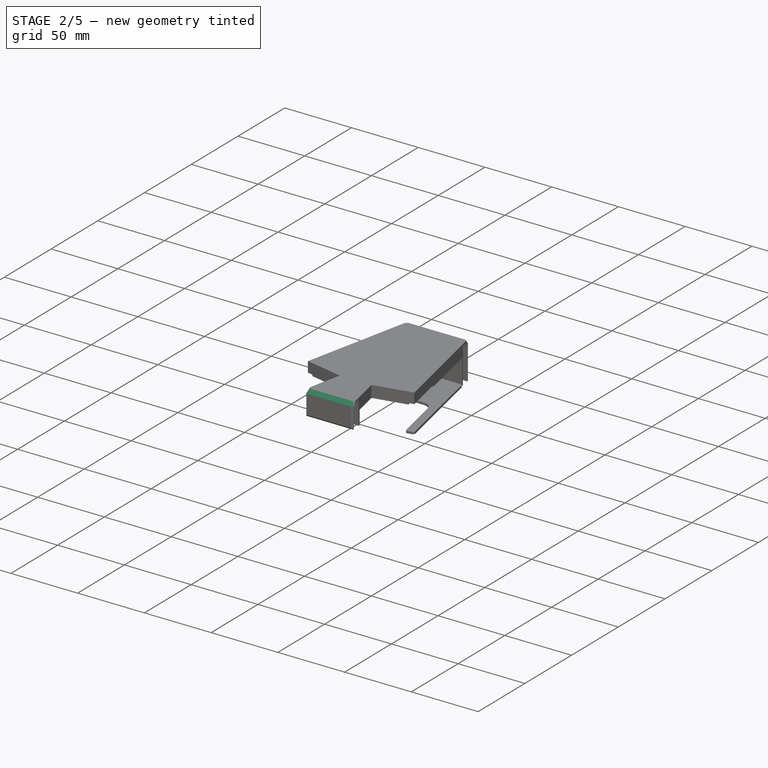
[diagram: stage 2 of 5 — iso view after this stage's code; geometry added in this stage tinted green]
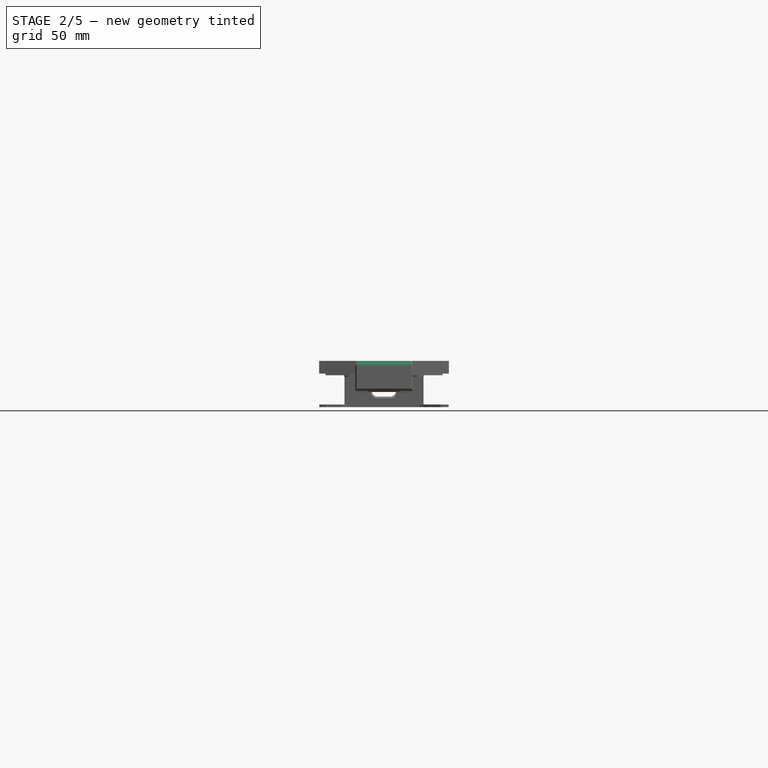
[diagram: stage 2 of 5 — front view after this stage's code; geometry added in this stage tinted green]
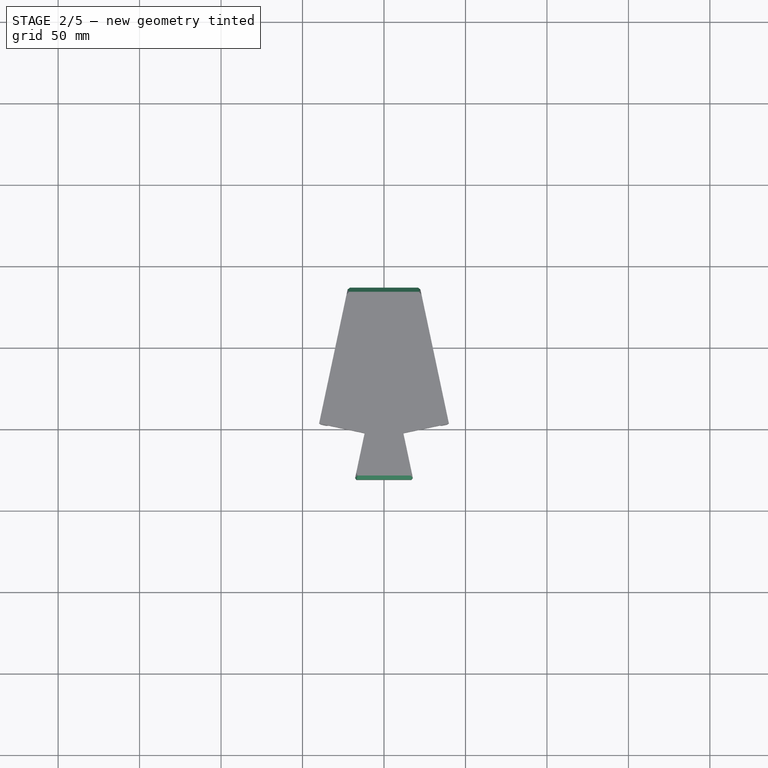
[diagram: stage 2 of 5 — top view after this stage's code; geometry added in this stage tinted green]
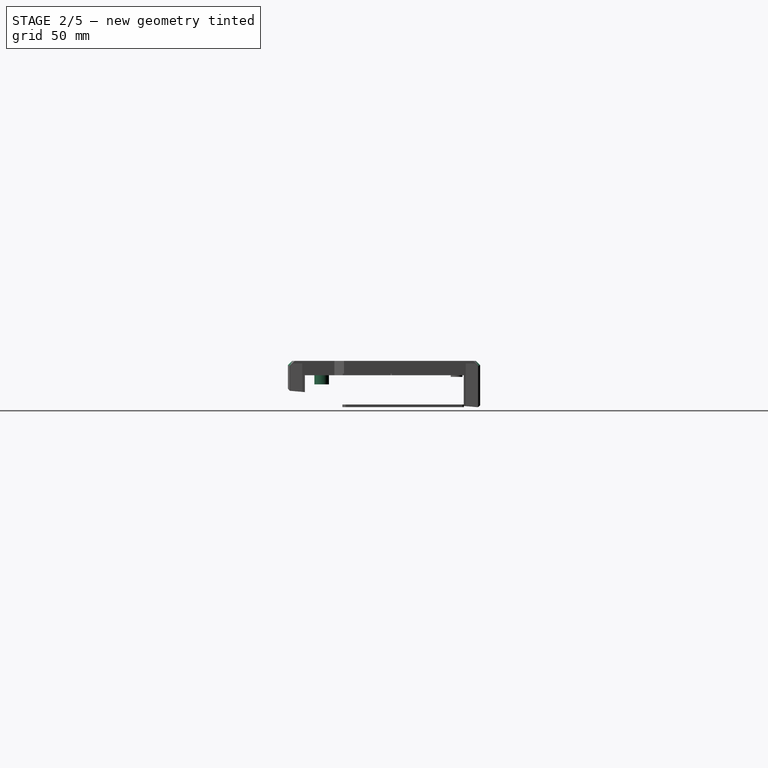
[diagram: stage 2 of 5 — right view after this stage's code; geometry added in this stage tinted green]
FEATURE [Sketcher::SketchObject] Sketch037
  ArcFitTolerance = 0
  AttachmentSupport = -> [Pocket023]
  ExternalGeometry = -> [Pocket023]
  FullyConstrained = true
  MakeInternals = false
  MapMode = 5
  Placement = pos=(0,0,19.6) rot=(1,0,0;3.14159rad)
  sketch-geometry (8):
    g0: LineSegment StartX=-39.8449 StartY=-3.26124 StartZ=0 EndX=-35.9323 EndY=-2.4296 EndZ=0
    g1: LineSegment StartX=-29.6905 StartY=-31.7731 StartZ=0 EndX=-33.6031 EndY=-32.6047 EndZ=0
    g2: LineSegment StartX=-33.6031 StartY=-32.6047 StartZ=0 EndX=-39.8449 EndY=-3.26124 EndZ=0
    g3: LineSegment StartX=-29.6905 StartY=-31.7731 StartZ=0 EndX=-35.9323 EndY=-2.4296 EndZ=0
    g4: LineSegment StartX=35.9341 StartY=-2.42134 StartZ=0 EndX=29.6968 EndY=-31.7658 EndZ=0
    g5: LineSegment StartX=29.6968 StartY=-31.7658 StartZ=0 EndX=33.6094 EndY=-32.5974 EndZ=0
    g6: LineSegment StartX=33.6094 StartY=-32.5974 StartZ=0 EndX=39.8467 EndY=-3.25298 EndZ=0
    g7: LineSegment StartX=39.8467 StartY=-3.25298 StartZ=0 EndX=35.9341 EndY=-2.42134 EndZ=0
  constraints (22):
    c: Coincident(g-4,g0)
    c: PointOnObject(g0,g-3)
    c: PointOnObject(g1,g-4)
    c: Coincident(g1,g2)
    c: Coincident(g2,g0)
    c: Coincident(g3,g1)
    c: Coincident(g3,g0)
    c: PointOnObject(g4,g-6)
    c: Coincident(g4,g5)
    c: PointOnObject(g5,g-5)
    c: Coincident(g5,g6)
    c: Coincident(g6,g-6)
    c: Coincident(g6,g7)
    c: Coincident(g7,g4)
    c: Parallel(g4,g6)
    c: Parallel(g3,g2)
    c: Parallel(g0,g1)
    c: Parallel(g7,g5)
    c: Equal(g4,g3)
    c: Distance(g3) = 30
    c: Equal(g0,g7)
    c: Distance(g0) = 4
FEATURE [PartDesign::Pocket] Pocket024  label="connection cutout"
  BaseFeature = -> Pocket023
  Direction = (0,0,1)
  Length = 1
  Length2 = 5
  Profile = -> Sketch037
  ReferenceAxis = -> Sketch037 [N_Axis]
  Suppressed = false
  Type = 0
FEATURE [PartDesign::Chamfer] Chamfer001  label="core front chamfer"
  Angle = 45
  Base = -> Pocket024 [Edge34,Edge30]
  BaseFeature = -> Pocket024
  ChamferType = 0
  FlipDirection = false
  Size = 2.6
  Size2 = 1
  SupportTransform = false
  Suppressed = false
  UseAllEdges = false
  expr: Size = Spreadsheet.CORE_MARGIN + 1
FEATURE [PartDesign::Chamfer] Chamfer002  label="core side chamfers"
  Angle = 45
  Base = -> Chamfer001 [Edge27,Edge106,Edge26,Edge4,Edge2,Edge21,Edge81,Edge80,Edge66,Edge65]
  BaseFeature = -> Chamfer001
  ChamferType = 0
  FlipDirection = false
  Size = 1.2
  Size2 = 1
  SupportTransform = false
  Suppressed = false
  UseAllEdges = false
FEATURE [Sketcher::SketchObject] Sketch045  label="mounting2shellpcb"
  ArcFitTolerance = 0
  AttachmentOffset = pos=(0,0,19.6) rot=(0,0,1;0rad)
  AttachmentSupport = -> [XY_Plane008]
  FullyConstrained = true
  MakeInternals = false
  MapMode = 5
  Placement = pos=(0,0,19.6) rot=(0,0,1;0rad)
  expr: .AttachmentOffset.Base.z = Spreadsheet.PCB_CORE_HEIGHT_OFFSET + 1.6 + 10 - Spreadsheet.ACRYL_THICKNESS + Spreadsheet.PCB_CORE_SPACING
  expr: Constraints[141] = 90 - <<config>>.ALPHA_ANGLE
  expr: Constraints[142] = <<config>>.KEY_UNIT
  expr: Constraints[147] = <<config>>.MOD_OFFSET
  expr: Constraints[148] = 2.75 * <<config>>.KEY_UNIT
  expr: Constraints[149] = 3.25 * <<config>>.KEY_UNIT
  expr: Constraints[150] = 2.75 * <<config>>.KEY_UNIT
  expr: Constraints[151] = 2.5 * <<config>>.KEY_UNIT
  expr: Constraints[152] = 2 * <<config>>.KEY_UNIT
  expr: Constraints[162] = 3 * <<config>>.KEY_UNIT
  expr: Constraints[169] = <<config>>.HEADER_WIDTH
  expr: Constraints[170] = <<config>>.HEADER_LENGTH
  expr: Constraints[183] = Spreadsheet.KEY_UNIT / 2
  expr: Constraints[184] = Spreadsheet.KEY_UNIT / 2
  expr: Constraints[188] = Spreadsheet.KEY_UNIT / 2
  expr: Constraints[191] = Spreadsheet.THREAD_HOLE
  expr: Constraints[193] = Spreadsheet.THREAD_HOLE + 5
  expr: Constraints[44] = 2 * <<config>>.KEY_UNIT
  expr: Constraints[45] = 2.5 * <<config>>.KEY_UNIT
  expr: Constraints[46] = <<config>>.KEY_UNIT
  expr: Constraints[51] = 2.75 * <<config>>.KEY_UNIT
  expr: Constraints[52] = 2.75 * <<config>>.KEY_UNIT
  expr: Constraints[53] = 2.5 * <<config>>.KEY_UNIT
  expr: Constraints[59] = 90 - <<config>>.ALPHA_ANGLE
  expr: Constraints[62] = 4 * <<config>>.KEY_UNIT
  expr: Constraints[66] = 5 * <<config>>.KEY_UNIT
  expr: Constraints[67] = 5.5 * <<config>>.KEY_UNIT
  expr: Constraints[75] = <<config>>.KEY_UNIT
  expr: Constraints[76] = <<config>>.MOD_OFFSET
  expr: Constraints[84] = 4 * <<config>>.KEY_UNIT
  expr: Constraints[85] = 5.5 * <<config>>.KEY_UNIT
  expr: Constraints[86] = <<config>>.KEY_UNIT
  expr: Constraints[89] = 5 * <<config>>.KEY_UNIT
  sketch-geometry (65):
    g0: LineSegment [constr] StartX=-141.18 StartY=94.2 StartZ=0 EndX=-103.08 EndY=94.2 EndZ=0
    g1: LineSegment [constr] StartX=-103.08 StartY=94.2 StartZ=0 EndX=-103.08 EndY=75.15 EndZ=0
    g2: LineSegment [constr] StartX=-103.08 StartY=75.15 StartZ=0 EndX=-141.18 EndY=75.15 EndZ=0
    g3: LineSegment [constr] StartX=-141.18 StartY=75.15 StartZ=0 EndX=-141.18 EndY=94.2 EndZ=0
    g4: LineSegment [constr] StartX=-107.129 StartY=75.15 StartZ=0 EndX=-154.754 EndY=75.15 EndZ=0
    g5: LineSegment [constr] StartX=-154.754 StartY=75.15 StartZ=0 EndX=-154.754 EndY=56.1 EndZ=0
    g6: LineSegment [constr] StartX=-154.754 StartY=56.1 StartZ=0 EndX=-107.129 EndY=56.1 EndZ=0
    g7: LineSegment [constr] StartX=-107.129 StartY=56.1 StartZ=0 EndX=-107.129 EndY=75.15 EndZ=0
    g8: LineSegment [constr] StartX=-111.179 StartY=56.1 StartZ=0 EndX=-163.566 EndY=56.1 EndZ=0
    g9: LineSegment [constr] StartX=-163.566 StartY=56.1 StartZ=0 EndX=-163.566 EndY=37.05 EndZ=0
    g10: LineSegment [constr] StartX=-163.566 StartY=37.05 StartZ=0 EndX=-111.179 EndY=37.05 EndZ=0
    g11: LineSegment [constr] StartX=-111.179 StartY=37.05 StartZ=0 EndX=-111.179 EndY=56.1 EndZ=0
    g12: LineSegment [constr] StartX=-115.228 StartY=37.05 StartZ=0 EndX=-167.615 EndY=37.05 EndZ=0
    g13: LineSegment [constr] StartX=-167.615 StartY=37.05 StartZ=0 EndX=-167.615 EndY=18 EndZ=0
    g14: LineSegment [constr] StartX=-167.615 StartY=18 StartZ=0 EndX=-115.228 EndY=18 EndZ=0
    g15: LineSegment [constr] StartX=-115.228 StartY=18 StartZ=0 EndX=-115.228 EndY=37.05 EndZ=0
    g16: LineSegment [constr] StartX=-119.277 StartY=18 StartZ=0 EndX=-166.902 EndY=18 EndZ=0
    g17: LineSegment [constr] StartX=-166.902 StartY=18 StartZ=0 EndX=-166.902 EndY=-1.05 EndZ=0
    g18: LineSegment [constr] StartX=-166.902 StartY=-1.05 StartZ=0 EndX=-119.277 EndY=-1.05 EndZ=0
    g19: LineSegment [constr] StartX=-119.277 StartY=-1.05 StartZ=0 EndX=-119.277 EndY=18 EndZ=0
    g20: LineSegment [constr] StartX=-119.277 StartY=-1.05 StartZ=0 EndX=-99.2503 EndY=93.1686 EndZ=0
    g21: LineSegment [constr] StartX=-99.2503 StartY=93.1686 StartZ=0 EndX=-24.7155 EndY=77.3257 EndZ=0
    g22: LineSegment [constr] StartX=-119.054 StartY=0 StartZ=0 EndX=-16.5685 EndY=-21.7839 EndZ=0
    g23: LineSegment [constr] StartX=-16.5685 StartY=-21.7839 StartZ=0 EndX=-12.6078 EndY=-3.15024 EndZ=0
    g24: LineSegment [constr] StartX=-12.6078 StartY=-3.15024 StartZ=0 EndX=-40.5583 EndY=2.79084 EndZ=0
    g25: LineSegment [constr] StartX=-40.5583 StartY=2.79084 StartZ=0 EndX=-24.7155 EndY=77.3257 EndZ=0
    g26: LineSegment [constr] StartX=119.054 StartY=0 StartZ=0 EndX=16.5685 EndY=-21.7839 EndZ=0
    g27: LineSegment [constr] StartX=16.5685 StartY=-21.7839 StartZ=0 EndX=12.6078 EndY=-3.15024 EndZ=0
    g28: LineSegment [constr] StartX=12.6078 StartY=-3.15024 StartZ=0 EndX=40.5583 EndY=2.79084 EndZ=0
    g29: LineSegment [constr] StartX=40.5583 StartY=2.79084 StartZ=0 EndX=24.7155 EndY=77.3257 EndZ=0
    g30: LineSegment [constr] StartX=24.7155 StartY=77.3257 StartZ=0 EndX=99.2503 EndY=93.1686 EndZ=0
    g31: LineSegment [constr] StartX=99.2503 StartY=93.1686 StartZ=0 EndX=119.277 EndY=-1.05 EndZ=0
    g32: LineSegment [constr] StartX=119.277 StartY=-1.05 StartZ=0 EndX=171.665 EndY=-1.05 EndZ=0
    g33: LineSegment [constr] StartX=171.665 StartY=-1.05 StartZ=0 EndX=171.665 EndY=18 EndZ=0
    g34: LineSegment [constr] StartX=171.665 StartY=18 StartZ=0 EndX=119.277 EndY=18 EndZ=0
    g35: LineSegment [constr] StartX=119.277 StartY=18 StartZ=0 EndX=119.277 EndY=-1.05 EndZ=0
    g36: LineSegment [constr] StartX=115.228 StartY=18 StartZ=0 EndX=177.14 EndY=18 EndZ=0
    g37: LineSegment [constr] StartX=177.14 StartY=18 StartZ=0 EndX=177.14 EndY=37.05 EndZ=0
    g38: LineSegment [constr] StartX=177.14 StartY=37.05 StartZ=0 EndX=115.228 EndY=37.05 EndZ=0
    g39: LineSegment [constr] StartX=115.228 StartY=37.05 StartZ=0 EndX=115.228 EndY=18 EndZ=0
    g40: LineSegment [constr] StartX=111.179 StartY=37.05 StartZ=0 EndX=163.566 EndY=37.05 EndZ=0
    g41: LineSegment [constr] StartX=163.566 StartY=37.05 StartZ=0 EndX=163.566 EndY=56.1 EndZ=0
    g42: LineSegment [constr] StartX=163.566 StartY=56.1 StartZ=0 EndX=111.179 EndY=56.1 EndZ=0
    g43: LineSegment [constr] StartX=111.179 StartY=56.1 StartZ=0 EndX=111.179 EndY=37.05 EndZ=0
    g44: LineSegment [constr] StartX=107.129 StartY=56.1 StartZ=0 EndX=154.754 EndY=56.1 EndZ=0
    g45: LineSegment [constr] StartX=154.754 StartY=56.1 StartZ=0 EndX=154.754 EndY=75.15 EndZ=0
    g46: LineSegment [constr] StartX=154.754 StartY=75.15 StartZ=0 EndX=107.129 EndY=75.15 EndZ=0
    g47: LineSegment [constr] StartX=107.129 StartY=75.15 StartZ=0 EndX=107.129 EndY=56.1 EndZ=0
    g48: LineSegment [constr] StartX=103.08 StartY=75.15 StartZ=0 EndX=141.18 EndY=75.15 EndZ=0
    g49: LineSegment [constr] StartX=141.18 StartY=75.15 StartZ=0 EndX=141.18 EndY=94.2 EndZ=0
    g50: LineSegment [constr] StartX=141.18 StartY=94.2 StartZ=0 EndX=103.08 EndY=94.2 EndZ=0
    g51: LineSegment [constr] StartX=103.08 StartY=94.2 StartZ=0 EndX=103.08 EndY=75.15 EndZ=0
    g52: LineSegment [constr] StartX=-28.575 StartY=57.7047 StartZ=0 EndX=28.575 EndY=57.7047 EndZ=0
    g53: LineSegment [constr] StartX=28.575 StartY=57.7047 StartZ=0 EndX=28.575 EndY=0.554733 EndZ=0
    g54: LineSegment [constr] StartX=28.575 StartY=0.554733 StartZ=0 EndX=-28.575 EndY=0.554733 EndZ=0
    g55: LineSegment [constr] StartX=-28.575 StartY=0.554733 StartZ=0 EndX=-28.575 EndY=57.7047 EndZ=0
    g56: LineSegment [constr] StartX=-37.037 StartY=2.04236 StartZ=0 EndX=-28.575 EndY=41.853 EndZ=0
    g57: LineSegment [constr] StartX=-28.575 StartY=41.853 StartZ=0 EndX=-32.0963 EndY=42.6014 EndZ=0
    g58: Circle [constr] CenterX=-28.575 CenterY=57.7047 CenterZ=0 NormalX=0 NormalY=0 NormalZ=1 AngleXU=0 Radius=0.304232
    g59: Circle [constr] CenterX=-28.575 CenterY=0.554733 CenterZ=0 NormalX=0 NormalY=0 NormalZ=1 AngleXU=0 Radius=0.304232
    g60: LineSegment [constr] StartX=-21.9246 StartY=-1.16988 StartZ=0 EndX=-25.8853 EndY=-19.8036 EndZ=0
    g61: LineSegment [constr] StartX=21.9246 StartY=-1.16988 StartZ=0 EndX=25.8853 EndY=-19.8036 EndZ=0
    g62: LineSegment [constr] StartX=-23.905 StartY=-10.4867 StartZ=0 EndX=23.905 EndY=-10.4867 EndZ=0
    g63: Circle CenterX=0 CenterY=-10.4867 CenterZ=0 NormalX=0 NormalY=0 NormalZ=1 AngleXU=0 Radius=2
    g64: Circle CenterX=0 CenterY=-10.4867 CenterZ=0 NormalX=0 NormalY=0 NormalZ=1 AngleXU=0 Radius=4.5
  constraints (194):
    c: Coincident(g0,g1)
    c: Coincident(g1,g2)
    c: Coincident(g2,g3)
    c: Coincident(g3,g0)
    c: Horizontal(g0)
    c: Horizontal(g2)
    c: Vertical(g1)
    c: Vertical(g3)
    c: Coincident(g4,g5)
    c: Coincident(g5,g6)
    c: Coincident(g6,g7)
    c: Coincident(g7,g4)
    c: Horizontal(g4)
    c: Horizontal(g6)
    c: Vertical(g5)
    c: Vertical(g7)
    c: PointOnObject(g4,g2)
    c: Coincident(g8,g9)
    c: Coincident(g9,g10)
    c: Coincident(g10,g11)
    c: Coincident(g11,g8)
    c: Horizontal(g8)
    c: Horizontal(g10)
    c: Vertical(g9)
    c: Vertical(g11)
    c: PointOnObject(g8,g6)
    c: Coincident(g12,g13)
    c: Coincident(g13,g14)
    c: Coincident(g14,g15)
    c: Coincident(g15,g12)
    c: Horizontal(g12)
    c: Horizontal(g14)
    c: Vertical(g13)
    c: Vertical(g15)
    c: PointOnObject(g12,g10)
    c: Coincident(g16,g17)
    c: Coincident(g17,g18)
    c: Coincident(g18,g19)
    c: Coincident(g19,g16)
    c: Horizontal(g16)
    c: Horizontal(g18)
    c: Vertical(g17)
    c: Vertical(g19)
    c: PointOnObject(g16,g14)
    c: DistanceX(g0,g0) = 38.1
    c: DistanceX(g4,g4) = 47.625
    c: DistanceY(g3,g3) = 19.05
    c: Equal(g3,g5)
    c: Equal(g5,g9)
    c: Equal(g9,g13)
    c: Equal(g13,g17)
    c: DistanceX(g8,g8) = 52.3875
    c: DistanceX(g12,g12) = 52.3875
    c: DistanceX(g16,g16) = 47.625
    c: Coincident(g20,g18)
    c: PointOnObject(g14,g20)
    c: PointOnObject(g10,g20)
    c: PointOnObject(g6,g20)
    c: PointOnObject(g1,g20)
    c: Angle(g-1,g20) = 1.36136
    c: Coincident(g20,g21)
    c: Perpendicular(g21,g20)
    c: Distance(g21) = 76.2
    c: PointOnObject(g22,g-1)
    c: PointOnObject(g22,g20)
    c: Perpendicular(g22,g20)
    c: Distance(g22,g20) = 95.25
    c: Distance(g22) = 104.775
    c: Coincident(g23,g22)
    c: Coincident(g24,g23)
    c: Coincident(g25,g24)
    c: Coincident(g25,g21)
    c: Perpendicular(g21,g25)
    c: Perpendicular(g23,g22)
    c: Perpendicular(g24,g23)
    c: Distance(g23) = 19.05
    c: DistanceY(g18,g22) = 1.05
    c: Coincident(g26,g27)
    c: Coincident(g27,g28)
    c: Coincident(g28,g29)
    c: Coincident(g29,g30)
    c: Perpendicular(g27,g26)
    c: Perpendicular(g28,g27)
    c: Perpendicular(g30,g29)
    c: Distance(g30) = 76.2
    c: Distance(g26) = 104.775
    c: Distance(g27) = 19.05
    c: Coincident(g31,g30)
    c: PointOnObject(g26,g31)
    c: Distance(g26,g30) = 95.25
    c: Perpendicular(g31,g26)
    c: Perpendicular(g31,g30)
    c: Coincident(g32,g33)
    c: Coincident(g33,g34)
    c: Coincident(g34,g35)
    c: Coincident(g35,g32)
    c: Horizontal(g32)
    c: Horizontal(g34)
    c: Vertical(g33)
    c: Vertical(g35)
    c: Coincident(g32,g31)
    c: Coincident(g36,g37)
    c: Coincident(g37,g38)
    c: Coincident(g38,g39)
    c: Coincident(g39,g36)
    c: Horizontal(g36)
    c: Horizontal(g38)
    c: Vertical(g37)
    c: Vertical(g39)
    c: PointOnObject(g36,g34)
    c: Coincident(g40,g41)
    c: Coincident(g41,g42)
    c: Coincident(g42,g43)
    c: Coincident(g43,g40)
    c: Horizontal(g40)
    c: Horizontal(g42)
    c: Vertical(g41)
    c: Vertical(g43)
    c: PointOnObject(g40,g38)
    c: Coincident(g44,g45)
    c: Coincident(g45,g46)
    c: Coincident(g46,g47)
    c: Coincident(g47,g44)
    c: Horizontal(g44)
    c: Horizontal(g46)
    c: Vertical(g45)
    c: Vertical(g47)
    c: PointOnObject(g44,g42)
    c: Coincident(g48,g49)
    c: Coincident(g49,g50)
    c: Coincident(g50,g51)
    c: Coincident(g51,g48)
    c: Horizontal(g48)
    c: Horizontal(g50)
    c: Vertical(g49)
    c: Vertical(g51)
    c: PointOnObject(g48,g46)
    c: PointOnObject(g48,g31)
    c: PointOnObject(g44,g31)
    c: PointOnObject(g40,g31)
    c: PointOnObject(g36,g31)
    c: Angle(g31,g-1) = 1.36136
    c: DistanceY(g49,g49) = 19.05
    c: Equal(g49,g45)
    c: Equal(g45,g41)
    c: Equal(g41,g37)
    c: Equal(g37,g33)
    c: DistanceY(g31,g26) = 1.05
    c: DistanceX(g34,g34) = 52.3875
    c: DistanceX(g38,g38) = 61.9125
    c: DistanceX(g42,g42) = 52.3875
    c: DistanceX(g46,g46) = 47.625
    c: DistanceX(g50,g50) = 38.1
    c: Coincident(g52,g53)
    c: Coincident(g53,g54)
    c: Coincident(g54,g55)
    c: Coincident(g55,g52)
    c: Horizontal(g54)
    c: Vertical(g53)
    c: Vertical(g55)
    c: Symmetric(g52,g52,g-2)
    c: Equal(g52,g53)
    c: DistanceX(g52,g52) = 57.15
    c: Symmetric(g22,g26,g-2)
    c: PointOnObject(g56,g24)
    c: Coincident(g57,g56)
    c: PointOnObject(g57,g25)
    c: Perpendicular(g57,g56)
    c: Perpendicular(g56,g24)
    c: Distance(g57) = 3.6
    c: Distance(g56) = 40.7
    c: PointOnObject(g56,g55)
    c: Coincident(g58,g52)
    c: Tangent(g58,g25)
    c: Coincident(g59,g54)
    c: Tangent(g59,g24)
    c: Equal(g59,g58)
    c: PointOnObject(g60,g24)
    c: PointOnObject(g60,g22)
    c: PointOnObject(g61,g28)
    c: PointOnObject(g61,g26)
    c: Perpendicular(g26,g61)
    c: Perpendicular(g22,g60)
    c: Distance(g60,g22) = 9.525
    c: Distance(g26,g61) = 9.525
    c: PointOnObject(g62,g60)
    c: PointOnObject(g62,g61)
    c: Horizontal(g62)
    c: Distance(g60,g62) = 9.525
    c: PointOnObject(g63,g62)
    c: PointOnObject(g63,g-2)
    c: Diameter(g63) = 4
    c: Coincident(g64,g63)
    c: Diameter(g64) = 9
FEATURE [PartDesign::Pad] Pad013  label="mounting 2 shell padding"
  BaseFeature = -> Chamfer002
  Direction = (0,0,1)
  Length = 5.6
  Length2 = 10
  Profile = -> Sketch045
  ReferenceAxis = -> Sketch045 [N_Axis]
  Reversed = true
  Suppressed = false
  Type = 0
  expr: Length = Spreadsheet.PCB_CORE_HEIGHT_OFFSET - Spreadsheet.PCB_HEIGHT_OFFSET + Spreadsheet.PCB_CORE_SPACING
FEATURE [Sketcher::SketchObject] Sketch046
  ArcFitTolerance = 0
  AttachmentSupport = -> [Pad013]
  ExternalGeometry = -> [Pad013]
  FullyConstrained = true
  MakeInternals = false
  MapMode = 5
  Placement = pos=(0,0,14) rot=(1,0,0;3.14159rad)
  sketch-geometry (1):
    g0: Circle CenterX=0 CenterY=10.4867 CenterZ=0 NormalX=0 NormalY=0 NormalZ=1 AngleXU=0 Radius=2
  constraints (2):
    c: Coincident(g0,g-3)
    c: Equal(g-3,g0)
FEATURE [PartDesign::Pocket] Pocket030  label="mounting 2 shell hole"
  BaseFeature = -> Pad013
  Direction = (0,0,1)
  Length = 6.7
  Length2 = 5
  Profile = -> Sketch046
  ReferenceAxis = -> Sketch046 [N_Axis]
  Suppressed = false
  Type = 0
  expr: Length = Spreadsheet.THREAD_DEPTH
FEATURE [Sketcher::SketchObject] Sketch047  label="mounting2core"
  ArcFitTolerance = 0
  AttachmentOffset = pos=(0,0,18.6) rot=(0,0,1;0rad)
  AttachmentSupport = -> [XY_Plane008]
  FullyConstrained = true
  MakeInternals = false
  MapMode = 5
  Placement = pos=(0,0,18.6) rot=(0,0,1;0rad)
  expr: .AttachmentOffset.Base.z = Spreadsheet.PCB_CORE_HEIGHT_OFFSET + 1.6 + 10 - Spreadsheet.ACRYL_THICKNESS
  expr: Constraints[141] = 90 - <<config>>.ALPHA_ANGLE
  expr: Constraints[142] = <<config>>.KEY_UNIT
  expr: Constraints[147] = <<config>>.MOD_OFFSET
  expr: Constraints[148] = 2.75 * <<config>>.KEY_UNIT
  expr: Constraints[149] = 3.25 * <<config>>.KEY_UNIT
  expr: Constraints[150] = 2.75 * <<config>>.KEY_UNIT
  expr: Constraints[151] = 2.5 * <<config>>.KEY_UNIT
  expr: Constraints[152] = 2 * <<config>>.KEY_UNIT
  expr: Constraints[162] = 3 * <<config>>.KEY_UNIT
  expr: Constraints[169] = <<config>>.HEADER_WIDTH
  expr: Constraints[170] = <<config>>.HEADER_LENGTH
  expr: Constraints[183] = Spreadsheet.KEY_UNIT / 2
  expr: Constraints[184] = Spreadsheet.KEY_UNIT / 2
  expr: Constraints[188] = Spreadsheet.KEY_UNIT / 2
  expr: Constraints[195] = Spreadsheet.THREAD_HOLE
  expr: Constraints[44] = 2 * <<config>>.KEY_UNIT
  expr: Constraints[45] = 2.5 * <<config>>.KEY_UNIT
  expr: Constraints[46] = <<config>>.KEY_UNIT
  expr: Constraints[51] = 2.75 * <<config>>.KEY_UNIT
  expr: Constraints[52] = 2.75 * <<config>>.KEY_UNIT
  expr: Constraints[53] = 2.5 * <<config>>.KEY_UNIT
  expr: Constraints[59] = 90 - <<config>>.ALPHA_ANGLE
  expr: Constraints[62] = 4 * <<config>>.KEY_UNIT
  expr: Constraints[66] = 5 * <<config>>.KEY_UNIT
  expr: Constraints[67] = 5.5 * <<config>>.KEY_UNIT
  expr: Constraints[75] = <<config>>.KEY_UNIT
  expr: Constraints[76] = <<config>>.MOD_OFFSET
  expr: Constraints[84] = 4 * <<config>>.KEY_UNIT
  expr: Constraints[85] = 5.5 * <<config>>.KEY_UNIT
  expr: Constraints[86] = <<config>>.KEY_UNIT
  expr: Constraints[89] = 5 * <<config>>.KEY_UNIT
  sketch-geometry (66):
    g0: LineSegment [constr] StartX=-141.18 StartY=94.2 StartZ=0 EndX=-103.08 EndY=94.2 EndZ=0
    g1: LineSegment [constr] StartX=-103.08 StartY=94.2 StartZ=0 EndX=-103.08 EndY=75.15 EndZ=0
    g2: LineSegment [constr] StartX=-103.08 StartY=75.15 StartZ=0 EndX=-141.18 EndY=75.15 EndZ=0
    g3: LineSegment [constr] StartX=-141.18 StartY=75.15 StartZ=0 EndX=-141.18 EndY=94.2 EndZ=0
    g4: LineSegment [constr] StartX=-107.129 StartY=75.15 StartZ=0 EndX=-154.754 EndY=75.15 EndZ=0
    g5: LineSegment [constr] StartX=-154.754 StartY=75.15 StartZ=0 EndX=-154.754 EndY=56.1 EndZ=0
    g6: LineSegment [constr] StartX=-154.754 StartY=56.1 StartZ=0 EndX=-107.129 EndY=56.1 EndZ=0
    g7: LineSegment [constr] StartX=-107.129 StartY=56.1 StartZ=0 EndX=-107.129 EndY=75.15 EndZ=0
    g8: LineSegment [constr] StartX=-111.179 StartY=56.1 StartZ=0 EndX=-163.566 EndY=56.1 EndZ=0
    g9: LineSegment [constr] StartX=-163.566 StartY=56.1 StartZ=0 EndX=-163.566 EndY=37.05 EndZ=0
    g10: LineSegment [constr] StartX=-163.566 StartY=37.05 StartZ=0 EndX=-111.179 EndY=37.05 EndZ=0
    g11: LineSegment [constr] StartX=-111.179 StartY=37.05 StartZ=0 EndX=-111.179 EndY=56.1 EndZ=0
    g12: LineSegment [constr] StartX=-115.228 StartY=37.05 StartZ=0 EndX=-167.615 EndY=37.05 EndZ=0
    g13: LineSegment [constr] StartX=-167.615 StartY=37.05 StartZ=0 EndX=-167.615 EndY=18 EndZ=0
    g14: LineSegment [constr] StartX=-167.615 StartY=18 StartZ=0 EndX=-115.228 EndY=18 EndZ=0
    g15: LineSegment [constr] StartX=-115.228 StartY=18 StartZ=0 EndX=-115.228 EndY=37.05 EndZ=0
    g16: LineSegment [constr] StartX=-119.277 StartY=18 StartZ=0 EndX=-166.902 EndY=18 EndZ=0
    g17: LineSegment [constr] StartX=-166.902 StartY=18 StartZ=0 EndX=-166.902 EndY=-1.05 EndZ=0
    g18: LineSegment [constr] StartX=-166.902 StartY=-1.05 StartZ=0 EndX=-119.277 EndY=-1.05 EndZ=0
    g19: LineSegment [constr] StartX=-119.277 StartY=-1.05 StartZ=0 EndX=-119.277 EndY=18 EndZ=0
    g20: LineSegment [constr] StartX=-119.277 StartY=-1.05 StartZ=0 EndX=-99.2503 EndY=93.1686 EndZ=0
    g21: LineSegment [constr] StartX=-99.2503 StartY=93.1686 StartZ=0 EndX=-24.7155 EndY=77.3257 EndZ=0
    g22: LineSegment [constr] StartX=-119.054 StartY=0 StartZ=0 EndX=-16.5685 EndY=-21.7839 EndZ=0
    g23: LineSegment [constr] StartX=-16.5685 StartY=-21.7839 StartZ=0 EndX=-12.6078 EndY=-3.15024 EndZ=0
    g24: LineSegment [constr] StartX=-12.6078 StartY=-3.15024 StartZ=0 EndX=-40.5583 EndY=2.79084 EndZ=0
    g25: LineSegment [constr] StartX=-40.5583 StartY=2.79084 StartZ=0 EndX=-24.7155 EndY=77.3257 EndZ=0
    g26: LineSegment [constr] StartX=119.054 StartY=0 StartZ=0 EndX=16.5685 EndY=-21.7839 EndZ=0
    g27: LineSegment [constr] StartX=16.5685 StartY=-21.7839 StartZ=0 EndX=12.6078 EndY=-3.15024 EndZ=0
    g28: LineSegment [constr] StartX=12.6078 StartY=-3.15024 StartZ=0 EndX=40.5583 EndY=2.79084 EndZ=0
    g29: LineSegment [constr] StartX=40.5583 StartY=2.79084 StartZ=0 EndX=24.7155 EndY=77.3257 EndZ=0
    g30: LineSegment [constr] StartX=24.7155 StartY=77.3257 StartZ=0 EndX=99.2503 EndY=93.1686 EndZ=0
    g31: LineSegment [constr] StartX=99.2503 StartY=93.1686 StartZ=0 EndX=119.277 EndY=-1.05 EndZ=0
    g32: LineSegment [constr] StartX=119.277 StartY=-1.05 StartZ=0 EndX=171.665 EndY=-1.05 EndZ=0
    g33: LineSegment [constr] StartX=171.665 StartY=-1.05 StartZ=0 EndX=171.665 EndY=18 EndZ=0
    g34: LineSegment [constr] StartX=171.665 StartY=18 StartZ=0 EndX=119.277 EndY=18 EndZ=0
    g35: LineSegment [constr] StartX=119.277 StartY=18 StartZ=0 EndX=119.277 EndY=-1.05 EndZ=0
    g36: LineSegment [constr] StartX=115.228 StartY=18 StartZ=0 EndX=177.14 EndY=18 EndZ=0
    g37: LineSegment [constr] StartX=177.14 StartY=18 StartZ=0 EndX=177.14 EndY=37.05 EndZ=0
    g38: LineSegment [constr] StartX=177.14 StartY=37.05 StartZ=0 EndX=115.228 EndY=37.05 EndZ=0
    g39: LineSegment [constr] StartX=115.228 StartY=37.05 StartZ=0 EndX=115.228 EndY=18 EndZ=0
    g40: LineSegment [constr] StartX=111.179 StartY=37.05 StartZ=0 EndX=163.566 EndY=37.05 EndZ=0
    g41: LineSegment [constr] StartX=163.566 StartY=37.05 StartZ=0 EndX=163.566 EndY=56.1 EndZ=0
    g42: LineSegment [constr] StartX=163.566 StartY=56.1 StartZ=0 EndX=111.179 EndY=56.1 EndZ=0
    g43: LineSegment [constr] StartX=111.179 StartY=56.1 StartZ=0 EndX=111.179 EndY=37.05 EndZ=0
    g44: LineSegment [constr] StartX=107.129 StartY=56.1 StartZ=0 EndX=154.754 EndY=56.1 EndZ=0
    g45: LineSegment [constr] StartX=154.754 StartY=56.1 StartZ=0 EndX=154.754 EndY=75.15 EndZ=0
    g46: LineSegment [constr] StartX=154.754 StartY=75.15 StartZ=0 EndX=107.129 EndY=75.15 EndZ=0
    g47: LineSegment [constr] StartX=107.129 StartY=75.15 StartZ=0 EndX=107.129 EndY=56.1 EndZ=0
    g48: LineSegment [constr] StartX=103.08 StartY=75.15 StartZ=0 EndX=141.18 EndY=75.15 EndZ=0
    g49: LineSegment [constr] StartX=141.18 StartY=75.15 StartZ=0 EndX=141.18 EndY=94.2 EndZ=0
    g50: LineSegment [constr] StartX=141.18 StartY=94.2 StartZ=0 EndX=103.08 EndY=94.2 EndZ=0
    g51: LineSegment [constr] StartX=103.08 StartY=94.2 StartZ=0 EndX=103.08 EndY=75.15 EndZ=0
    g52: LineSegment [constr] StartX=-28.575 StartY=57.7047 StartZ=0 EndX=28.575 EndY=57.7047 EndZ=0
    g53: LineSegment [constr] StartX=28.575 StartY=57.7047 StartZ=0 EndX=28.575 EndY=0.554733 EndZ=0
    g54: LineSegment [constr] StartX=28.575 StartY=0.554733 StartZ=0 EndX=-28.575 EndY=0.554733 EndZ=0
    g55: LineSegment [constr] StartX=-28.575 StartY=0.554733 StartZ=0 EndX=-28.575 EndY=57.7047 EndZ=0
    g56: LineSegment [constr] StartX=-37.037 StartY=2.04236 StartZ=0 EndX=-28.575 EndY=41.853 EndZ=0
    g57: LineSegment [constr] StartX=-28.575 StartY=41.853 StartZ=0 EndX=-32.0963 EndY=42.6014 EndZ=0
    g58: Circle [constr] CenterX=-28.575 CenterY=57.7047 CenterZ=0 NormalX=0 NormalY=0 NormalZ=1 AngleXU=0 Radius=0.304232
    g59: Circle [constr] CenterX=-28.575 CenterY=0.554733 CenterZ=0 NormalX=0 NormalY=0 NormalZ=1 AngleXU=0 Radius=0.304232
    g60: LineSegment [constr] StartX=-21.9246 StartY=-1.16988 StartZ=0 EndX=-25.8853 EndY=-19.8036 EndZ=0
    g61: LineSegment [constr] StartX=21.9246 StartY=-1.16988 StartZ=0 EndX=25.8853 EndY=-19.8036 EndZ=0
    g62: LineSegment [constr] StartX=-23.905 StartY=-10.4867 StartZ=0 EndX=23.905 EndY=-10.4867 EndZ=0
    g63: LineSegment [constr] StartX=-25.7782 StartY=72.3257 StartZ=0 EndX=25.7782 EndY=72.3257 EndZ=0
    g64: Circle CenterX=-20.7782 CenterY=72.3257 CenterZ=0 NormalX=0 NormalY=0 NormalZ=1 AngleXU=0 Radius=2
    g65: Circle CenterX=20.7782 CenterY=72.3257 CenterZ=0 NormalX=0 NormalY=0 NormalZ=1 AngleXU=0 Radius=2
  constraints (199):
    c: Coincident(g0,g1)
    c: Coincident(g1,g2)
    c: Coincident(g2,g3)
    c: Coincident(g3,g0)
    c: Horizontal(g0)
    c: Horizontal(g2)
    c: Vertical(g1)
    c: Vertical(g3)
    c: Coincident(g4,g5)
    c: Coincident(g5,g6)
    c: Coincident(g6,g7)
    c: Coincident(g7,g4)
    c: Horizontal(g4)
    c: Horizontal(g6)
    c: Vertical(g5)
    c: Vertical(g7)
    c: PointOnObject(g4,g2)
    c: Coincident(g8,g9)
    c: Coincident(g9,g10)
    c: Coincident(g10,g11)
    c: Coincident(g11,g8)
    c: Horizontal(g8)
    c: Horizontal(g10)
    c: Vertical(g9)
    c: Vertical(g11)
    c: PointOnObject(g8,g6)
    c: Coincident(g12,g13)
    c: Coincident(g13,g14)
    c: Coincident(g14,g15)
    c: Coincident(g15,g12)
    c: Horizontal(g12)
    c: Horizontal(g14)
    c: Vertical(g13)
    c: Vertical(g15)
    c: PointOnObject(g12,g10)
    c: Coincident(g16,g17)
    c: Coincident(g17,g18)
    c: Coincident(g18,g19)
    c: Coincident(g19,g16)
    c: Horizontal(g16)
    c: Horizontal(g18)
    c: Vertical(g17)
    c: Vertical(g19)
    c: PointOnObject(g16,g14)
    c: DistanceX(g0,g0) = 38.1
    c: DistanceX(g4,g4) = 47.625
    c: DistanceY(g3,g3) = 19.05
    c: Equal(g3,g5)
    c: Equal(g5,g9)
    c: Equal(g9,g13)
    c: Equal(g13,g17)
    c: DistanceX(g8,g8) = 52.3875
    c: DistanceX(g12,g12) = 52.3875
    c: DistanceX(g16,g16) = 47.625
    c: Coincident(g20,g18)
    c: PointOnObject(g14,g20)
    c: PointOnObject(g10,g20)
    c: PointOnObject(g6,g20)
    c: PointOnObject(g1,g20)
    c: Angle(g-1,g20) = 1.36136
    c: Coincident(g20,g21)
    c: Perpendicular(g21,g20)
    c: Distance(g21) = 76.2
    c: PointOnObject(g22,g-1)
    c: PointOnObject(g22,g20)
    c: Perpendicular(g22,g20)
    c: Distance(g22,g20) = 95.25
    c: Distance(g22) = 104.775
    c: Coincident(g23,g22)
    c: Coincident(g24,g23)
    c: Coincident(g25,g24)
    c: Coincident(g25,g21)
    c: Perpendicular(g21,g25)
    c: Perpendicular(g23,g22)
    c: Perpendicular(g24,g23)
    c: Distance(g23) = 19.05
    c: DistanceY(g18,g22) = 1.05
    c: Coincident(g26,g27)
    c: Coincident(g27,g28)
    c: Coincident(g28,g29)
    c: Coincident(g29,g30)
    c: Perpendicular(g27,g26)
    c: Perpendicular(g28,g27)
    c: Perpendicular(g30,g29)
    c: Distance(g30) = 76.2
    c: Distance(g26) = 104.775
    c: Distance(g27) = 19.05
    c: Coincident(g31,g30)
    c: PointOnObject(g26,g31)
    c: Distance(g26,g30) = 95.25
    c: Perpendicular(g31,g26)
    c: Perpendicular(g31,g30)
    c: Coincident(g32,g33)
    c: Coincident(g33,g34)
    c: Coincident(g34,g35)
    c: Coincident(g35,g32)
    c: Horizontal(g32)
    c: Horizontal(g34)
    c: Vertical(g33)
    c: Vertical(g35)
    c: Coincident(g32,g31)
    c: Coincident(g36,g37)
    c: Coincident(g37,g38)
    c: Coincident(g38,g39)
    c: Coincident(g39,g36)
    c: Horizontal(g36)
    c: Horizontal(g38)
    c: Vertical(g37)
    c: Vertical(g39)
    c: PointOnObject(g36,g34)
    c: Coincident(g40,g41)
    c: Coincident(g41,g42)
    c: Coincident(g42,g43)
    c: Coincident(g43,g40)
    c: Horizontal(g40)
    c: Horizontal(g42)
    c: Vertical(g41)
    c: Vertical(g43)
    c: PointOnObject(g40,g38)
    c: Coincident(g44,g45)
    c: Coincident(g45,g46)
    c: Coincident(g46,g47)
    c: Coincident(g47,g44)
    c: Horizontal(g44)
    c: Horizontal(g46)
    c: Vertical(g45)
    c: Vertical(g47)
    c: PointOnObject(g44,g42)
    c: Coincident(g48,g49)
    c: Coincident(g49,g50)
    c: Coincident(g50,g51)
    c: Coincident(g51,g48)
    c: Horizontal(g48)
    c: Horizontal(g50)
    c: Vertical(g49)
    c: Vertical(g51)
    c: PointOnObject(g48,g46)
    c: PointOnObject(g48,g31)
    c: PointOnObject(g44,g31)
    c: PointOnObject(g40,g31)
    c: PointOnObject(g36,g31)
    c: Angle(g31,g-1) = 1.36136
    c: DistanceY(g49,g49) = 19.05
    c: Equal(g49,g45)
    c: Equal(g45,g41)
    c: Equal(g41,g37)
    c: Equal(g37,g33)
    c: DistanceY(g31,g26) = 1.05
    c: DistanceX(g34,g34) = 52.3875
    c: DistanceX(g38,g38) = 61.9125
    c: DistanceX(g42,g42) = 52.3875
    c: DistanceX(g46,g46) = 47.625
    c: DistanceX(g50,g50) = 38.1
    c: Coincident(g52,g53)
    c: Coincident(g53,g54)
    c: Coincident(g54,g55)
    c: Coincident(g55,g52)
    c: Horizontal(g54)
    c: Vertical(g53)
    c: Vertical(g55)
    c: Symmetric(g52,g52,g-2)
    c: Equal(g52,g53)
    c: DistanceX(g52,g52) = 57.15
    c: Symmetric(g22,g26,g-2)
    c: PointOnObject(g56,g24)
    c: Coincident(g57,g56)
    c: PointOnObject(g57,g25)
    c: Perpendicular(g57,g56)
    c: Perpendicular(g56,g24)
    c: Distance(g57) = 3.6
    c: Distance(g56) = 40.7
    c: PointOnObject(g56,g55)
    c: Coincident(g58,g52)
    c: Tangent(g58,g25)
    c: Coincident(g59,g54)
    c: Tangent(g59,g24)
    c: Equal(g59,g58)
    c: PointOnObject(g60,g24)
    c: PointOnObject(g60,g22)
    c: PointOnObject(g61,g28)
    c: PointOnObject(g61,g26)
    c: Perpendicular(g26,g61)
    c: Perpendicular(g22,g60)
    c: Distance(g60,g22) = 9.525
    c: Distance(g26,g61) = 9.525
    c: PointOnObject(g62,g60)
    c: PointOnObject(g62,g61)
    c: Horizontal(g62)
    c: Distance(g60,g62) = 9.525
    c: PointOnObject(g63,g25)
    c: PointOnObject(g63,g29)
    c: Horizontal(g63)
    c: PointOnObject(g64,g63)
    c: PointOnObject(g65,g63)
    c: Equal(g65,g64)
    c: Diameter(g64) = 4
    c: DistanceX(g63,g64) = 5
    c: DistanceY(g64,g21) = 5
    c: DistanceX(g65,g63) = 5
FEATURE [PartDesign::Pocket] Pocket031  label="mounting 2 core"
  BaseFeature = -> Pocket030
  Direction = (0,0,-1)
  Length = 5.7
  Length2 = 5
  Profile = -> Sketch047
  ReferenceAxis = -> Sketch047 [N_Axis]
  Reversed = true
  Suppressed = false
  Type = 0
  expr: Length = Spreadsheet.THREAD_DEPTH - Spreadsheet.PCB_CORE_SPACING
FEATURE [Sketcher::SketchObject] Sketch048  label="usbc"
  ArcFitTolerance = 0
  AttachmentSupport = -> [Pocket031]
  ExternalGeometry = -> [Pocket031]
  FullyConstrained = true
  MakeInternals = false
  MapMode = 5
  Placement = pos=(0,76.7509,0) rot=(1,0,0;1.5708rad)
  expr: Constraints[12] = Spreadsheet.USB_C_HEIGHT_OFFSET + 1
  sketch-geometry (5):
    g0: ArcOfCircle CenterX=-4 CenterY=10 CenterZ=0 NormalX=0 NormalY=0 NormalZ=1 AngleXU=0 Radius=3.5 StartAngle=1.5708 EndAngle=4.71239
    g1: ArcOfCircle CenterX=4 CenterY=10 CenterZ=0 NormalX=0 NormalY=0 NormalZ=1 AngleXU=0 Radius=3.5 StartAngle=4.71239 EndAngle=7.85398
    g2: LineSegment StartX=-4 StartY=6.5 StartZ=0 EndX=4 EndY=6.5 EndZ=0
    g3: LineSegment StartX=4 StartY=13.5 StartZ=0 EndX=-4 EndY=13.5 EndZ=0
    g4: LineSegment [constr] StartX=0 StartY=18 StartZ=0 EndX=24.2242 EndY=18 EndZ=0
  constraints (13):
    c: Tangent(g0,g2) = -1.5708
    c: Tangent(g2,g1) = -1.5708
    c: Tangent(g1,g3) = -1.5708
    c: Tangent(g3,g0) = -1.5708
    c: Equal(g0,g1)
    c: Symmetric(g1,g0,g-2)
    c: DistanceY(g1,g1) = 7
    c: DistanceX(g0,g1) = 8
    c: PointOnObject(g4,g-2)
    c: Horizontal(g4)
    c: DistanceY(g4,g-3) = 1.6
    c: Vertical(g4,g-3)
    c: DistanceY(g1,g4) = 8
FEATURE [PartDesign::Pocket] Pocket032  label="usb c hole"
  BaseFeature = -> Pocket031
  Direction = (0,1,-2e-16)
  Length = 13
  Length2 = 5
  Profile = -> Sketch048
  ReferenceAxis = -> Sketch048 [N_Axis]
  Suppressed = false
  Type = 0
FEATURE [PartDesign::Chamfer] Chamfer003  label="usb c chamfer"
  Angle = 45
  Base = -> Pocket032 [Edge165,Edge167,Edge168,Edge166,Edge127,Edge130,Edge129,Edge128]
  BaseFeature = -> Pocket032
  ChamferType = 0
  FlipDirection = false
  Size = 1
  Size2 = 1
  SupportTransform = false
  Suppressed = false
  UseAllEdges = false
FEATURE [Sketcher::SketchObject] Sketch049  label="3x3 grid"
  ArcFitTolerance = 0
  AttachmentOffset = pos=(0,0,23.6) rot=(0,0,1;0rad)
  AttachmentSupport = -> [XY_Plane008]
  FullyConstrained = true
  MakeInternals = false
  MapMode = 5
  Placement = pos=(0,0,23.6) rot=(0,0,1;0rad)
  expr: .AttachmentOffset.Base.z = Spreadsheet.PCB_CORE_HEIGHT_OFFSET + 1.6 + 5 + 10 - Spreadsheet.ACRYL_THICKNESS
  expr: Constraints[141] = 90 - <<config>>.ALPHA_ANGLE
  expr: Constraints[142] = <<config>>.KEY_UNIT
  expr: Constraints[147] = <<config>>.MOD_OFFSET
  expr: Constraints[148] = 2.75 * <<config>>.KEY_UNIT
  expr: Constraints[149] = 3.25 * <<config>>.KEY_UNIT
  expr: Constraints[150] = 2.75 * <<config>>.KEY_UNIT
  expr: Constraints[151] = 2.5 * <<config>>.KEY_UNIT
  expr: Constraints[152] = 2 * <<config>>.KEY_UNIT
  expr: Constraints[162] = 3 * <<config>>.KEY_UNIT
  expr: Constraints[169] = <<config>>.HEADER_WIDTH
  expr: Constraints[170] = <<config>>.HEADER_LENGTH
  expr: Constraints[185] = Spreadsheet.CASE_MARGIN
  expr: Constraints[186] = Spreadsheet.CASE_MARGIN
  expr: Constraints[187] = Spreadsheet.CASE_MARGIN
  expr: Constraints[188] = Spreadsheet.CASE_MARGIN
  expr: Constraints[44] = 2 * <<config>>.KEY_UNIT
  expr: Constraints[45] = 2.5 * <<config>>.KEY_UNIT
  expr: Constraints[46] = <<config>>.KEY_UNIT
  expr: Constraints[51] = 2.75 * <<config>>.KEY_UNIT
  expr: Constraints[52] = 2.75 * <<config>>.KEY_UNIT
  expr: Constraints[53] = 2.5 * <<config>>.KEY_UNIT
  expr: Constraints[59] = 90 - <<config>>.ALPHA_ANGLE
  expr: Constraints[62] = 4 * <<config>>.KEY_UNIT
  expr: Constraints[66] = 5 * <<config>>.KEY_UNIT
  expr: Constraints[67] = 5.5 * <<config>>.KEY_UNIT
  expr: Constraints[75] = <<config>>.KEY_UNIT
  expr: Constraints[76] = <<config>>.MOD_OFFSET
  expr: Constraints[84] = 4 * <<config>>.KEY_UNIT
  expr: Constraints[85] = 5.5 * <<config>>.KEY_UNIT
  expr: Constraints[86] = <<config>>.KEY_UNIT
  expr: Constraints[89] = 5 * <<config>>.KEY_UNIT
  sketch-geometry (64):
    g0: LineSegment [constr] StartX=-141.18 StartY=94.2 StartZ=0 EndX=-103.08 EndY=94.2 EndZ=0
    g1: LineSegment [constr] StartX=-103.08 StartY=94.2 StartZ=0 EndX=-103.08 EndY=75.15 EndZ=0
    g2: LineSegment [constr] StartX=-103.08 StartY=75.15 StartZ=0 EndX=-141.18 EndY=75.15 EndZ=0
    g3: LineSegment [constr] StartX=-141.18 StartY=75.15 StartZ=0 EndX=-141.18 EndY=94.2 EndZ=0
    g4: LineSegment [constr] StartX=-107.129 StartY=75.15 StartZ=0 EndX=-154.754 EndY=75.15 EndZ=0
    g5: LineSegment [constr] StartX=-154.754 StartY=75.15 StartZ=0 EndX=-154.754 EndY=56.1 EndZ=0
    g6: LineSegment [constr] StartX=-154.754 StartY=56.1 StartZ=0 EndX=-107.129 EndY=56.1 EndZ=0
    g7: LineSegment [constr] StartX=-107.129 StartY=56.1 StartZ=0 EndX=-107.129 EndY=75.15 EndZ=0
    g8: LineSegment [constr] StartX=-111.179 StartY=56.1 StartZ=0 EndX=-163.566 EndY=56.1 EndZ=0
    g9: LineSegment [constr] StartX=-163.566 StartY=56.1 StartZ=0 EndX=-163.566 EndY=37.05 EndZ=0
    g10: LineSegment [constr] StartX=-163.566 StartY=37.05 StartZ=0 EndX=-111.179 EndY=37.05 EndZ=0
    g11: LineSegment [constr] StartX=-111.179 StartY=37.05 StartZ=0 EndX=-111.179 EndY=56.1 EndZ=0
    g12: LineSegment [constr] StartX=-115.228 StartY=37.05 StartZ=0 EndX=-167.615 EndY=37.05 EndZ=0
    g13: LineSegment [constr] StartX=-167.615 StartY=37.05 StartZ=0 EndX=-167.615 EndY=18 EndZ=0
    g14: LineSegment [constr] StartX=-167.615 StartY=18 StartZ=0 EndX=-115.228 EndY=18 EndZ=0
    g15: LineSegment [constr] StartX=-115.228 StartY=18 StartZ=0 EndX=-115.228 EndY=37.05 EndZ=0
    g16: LineSegment [constr] StartX=-119.277 StartY=18 StartZ=0 EndX=-166.902 EndY=18 EndZ=0
    g17: LineSegment [constr] StartX=-166.902 StartY=18 StartZ=0 EndX=-166.902 EndY=-1.05 EndZ=0
    g18: LineSegment [constr] StartX=-166.902 StartY=-1.05 StartZ=0 EndX=-119.277 EndY=-1.05 EndZ=0
    g19: LineSegment [constr] StartX=-119.277 StartY=-1.05 StartZ=0 EndX=-119.277 EndY=18 EndZ=0
    g20: LineSegment [constr] StartX=-119.277 StartY=-1.05 StartZ=0 EndX=-99.2503 EndY=93.1686 EndZ=0
    g21: LineSegment [constr] StartX=-99.2503 StartY=93.1686 StartZ=0 EndX=-24.7155 EndY=77.3257 EndZ=0
    g22: LineSegment [constr] StartX=-119.054 StartY=0 StartZ=0 EndX=-16.5685 EndY=-21.7839 EndZ=0
    g23: LineSegment [constr] StartX=-16.5685 StartY=-21.7839 StartZ=0 EndX=-12.6078 EndY=-3.15024 EndZ=0
    g24: LineSegment [constr] StartX=-12.6078 StartY=-3.15024 StartZ=0 EndX=-40.5583 EndY=2.79084 EndZ=0
    g25: LineSegment [constr] StartX=-40.5583 StartY=2.79084 StartZ=0 EndX=-24.7155 EndY=77.3257 EndZ=0
    g26: LineSegment [constr] StartX=119.054 StartY=0 StartZ=0 EndX=16.5685 EndY=-21.7839 EndZ=0
    g27: LineSegment [constr] StartX=16.5685 StartY=-21.7839 StartZ=0 EndX=12.6078 EndY=-3.15024 EndZ=0
    g28: LineSegment [constr] StartX=12.6078 StartY=-3.15024 StartZ=0 EndX=40.5583 EndY=2.79084 EndZ=0
    g29: LineSegment [constr] StartX=40.5583 StartY=2.79084 StartZ=0 EndX=24.7155 EndY=77.3257 EndZ=0
    g30: LineSegment [constr] StartX=24.7155 StartY=77.3257 StartZ=0 EndX=99.2503 EndY=93.1686 EndZ=0
    g31: LineSegment [constr] StartX=99.2503 StartY=93.1686 StartZ=0 EndX=119.277 EndY=-1.05 EndZ=0
    g32: LineSegment [constr] StartX=119.277 StartY=-1.05 StartZ=0 EndX=171.665 EndY=-1.05 EndZ=0
    g33: LineSegment [constr] StartX=171.665 StartY=-1.05 StartZ=0 EndX=171.665 EndY=18 EndZ=0
    g34: LineSegment [constr] StartX=171.665 StartY=18 StartZ=0 EndX=119.277 EndY=18 EndZ=0
    g35: LineSegment [constr] StartX=119.277 StartY=18 StartZ=0 EndX=119.277 EndY=-1.05 EndZ=0
    g36: LineSegment [constr] StartX=115.228 StartY=18 StartZ=0 EndX=177.14 EndY=18 EndZ=0
    g37: LineSegment [constr] StartX=177.14 StartY=18 StartZ=0 EndX=177.14 EndY=37.05 EndZ=0
    g38: LineSegment [constr] StartX=177.14 StartY=37.05 StartZ=0 EndX=115.228 EndY=37.05 EndZ=0
    g39: LineSegment [constr] StartX=115.228 StartY=37.05 StartZ=0 EndX=115.228 EndY=18 EndZ=0
    g40: LineSegment [constr] StartX=111.179 StartY=37.05 StartZ=0 EndX=163.566 EndY=37.05 EndZ=0
    g41: LineSegment [constr] StartX=163.566 StartY=37.05 StartZ=0 EndX=163.566 EndY=56.1 EndZ=0
    g42: LineSegment [constr] StartX=163.566 StartY=56.1 StartZ=0 EndX=111.179 EndY=56.1 EndZ=0
    g43: LineSegment [constr] StartX=111.179 StartY=56.1 StartZ=0 EndX=111.179 EndY=37.05 EndZ=0
    g44: LineSegment [constr] StartX=107.129 StartY=56.1 StartZ=0 EndX=154.754 EndY=56.1 EndZ=0
    g45: LineSegment [constr] StartX=154.754 StartY=56.1 StartZ=0 EndX=154.754 EndY=75.15 EndZ=0
    g46: LineSegment [constr] StartX=154.754 StartY=75.15 StartZ=0 EndX=107.129 EndY=75.15 EndZ=0
    g47: LineSegment [constr] StartX=107.129 StartY=75.15 StartZ=0 EndX=107.129 EndY=56.1 EndZ=0
    g48: LineSegment [constr] StartX=103.08 StartY=75.15 StartZ=0 EndX=141.18 EndY=75.15 EndZ=0
    g49: LineSegment [constr] StartX=141.18 StartY=75.15 StartZ=0 EndX=141.18 EndY=94.2 EndZ=0
    g50: LineSegment [constr] StartX=141.18 StartY=94.2 StartZ=0 EndX=103.08 EndY=94.2 EndZ=0
    g51: LineSegment [constr] StartX=103.08 StartY=94.2 StartZ=0 EndX=103.08 EndY=75.15 EndZ=0
    g52: LineSegment [constr] StartX=-28.575 StartY=57.7047 StartZ=0 EndX=28.575 EndY=57.7047 EndZ=0
    g53: LineSegment [constr] StartX=28.575 StartY=57.7047 StartZ=0 EndX=28.575 EndY=0.554733 EndZ=0
    g54: LineSegment [constr] StartX=28.575 StartY=0.554733 StartZ=0 EndX=-28.575 EndY=0.554733 EndZ=0
    g55: LineSegment [constr] StartX=-28.575 StartY=0.554733 StartZ=0 EndX=-28.575 EndY=57.7047 EndZ=0
    g56: LineSegment [constr] StartX=-37.037 StartY=2.04236 StartZ=0 EndX=-28.575 EndY=41.853 EndZ=0
    g57: LineSegment [constr] StartX=-28.575 StartY=41.853 StartZ=0 EndX=-32.0963 EndY=42.6014 EndZ=0
    g58: Circle [constr] CenterX=-28.575 CenterY=57.7047 CenterZ=0 NormalX=0 NormalY=0 NormalZ=1 AngleXU=0 Radius=0.304232
    g59: Circle [constr] CenterX=-28.575 CenterY=0.554733 CenterZ=0 NormalX=0 NormalY=0 NormalZ=1 AngleXU=0 Radius=0.304232
    g60: LineSegment StartX=-29.175 StartY=58.3047 StartZ=0 EndX=29.175 EndY=58.3047 EndZ=0
    g61: LineSegment StartX=29.175 StartY=58.3047 StartZ=0 EndX=29.175 EndY=-0.0452669 EndZ=0
    g62: LineSegment StartX=29.175 StartY=-0.0452669 StartZ=0 EndX=-29.175 EndY=-0.0452669 EndZ=0
    g63: LineSegment StartX=-29.175 StartY=-0.0452669 StartZ=0 EndX=-29.175 EndY=58.3047 EndZ=0
  constraints (189):
    c: Coincident(g0,g1)
    c: Coincident(g1,g2)
    c: Coincident(g2,g3)
    c: Coincident(g3,g0)
    c: Horizontal(g0)
    c: Horizontal(g2)
    c: Vertical(g1)
    c: Vertical(g3)
    c: Coincident(g4,g5)
    c: Coincident(g5,g6)
    c: Coincident(g6,g7)
    c: Coincident(g7,g4)
    c: Horizontal(g4)
    c: Horizontal(g6)
    c: Vertical(g5)
    c: Vertical(g7)
    c: PointOnObject(g4,g2)
    c: Coincident(g8,g9)
    c: Coincident(g9,g10)
    c: Coincident(g10,g11)
    c: Coincident(g11,g8)
    c: Horizontal(g8)
    c: Horizontal(g10)
    c: Vertical(g9)
    c: Vertical(g11)
    c: PointOnObject(g8,g6)
    c: Coincident(g12,g13)
    c: Coincident(g13,g14)
    c: Coincident(g14,g15)
    c: Coincident(g15,g12)
    c: Horizontal(g12)
    c: Horizontal(g14)
    c: Vertical(g13)
    c: Vertical(g15)
    c: PointOnObject(g12,g10)
    c: Coincident(g16,g17)
    c: Coincident(g17,g18)
    c: Coincident(g18,g19)
    c: Coincident(g19,g16)
    c: Horizontal(g16)
    c: Horizontal(g18)
    c: Vertical(g17)
    c: Vertical(g19)
    c: PointOnObject(g16,g14)
    c: DistanceX(g0,g0) = 38.1
    c: DistanceX(g4,g4) = 47.625
    c: DistanceY(g3,g3) = 19.05
    c: Equal(g3,g5)
    c: Equal(g5,g9)
    c: Equal(g9,g13)
    c: Equal(g13,g17)
    c: DistanceX(g8,g8) = 52.3875
    c: DistanceX(g12,g12) = 52.3875
    c: DistanceX(g16,g16) = 47.625
    c: Coincident(g20,g18)
    c: PointOnObject(g14,g20)
    c: PointOnObject(g10,g20)
    c: PointOnObject(g6,g20)
    c: PointOnObject(g1,g20)
    c: Angle(g-1,g20) = 1.36136
    c: Coincident(g20,g21)
    c: Perpendicular(g21,g20)
    c: Distance(g21) = 76.2
    c: PointOnObject(g22,g-1)
    c: PointOnObject(g22,g20)
    c: Perpendicular(g22,g20)
    c: Distance(g22,g20) = 95.25
    c: Distance(g22) = 104.775
    c: Coincident(g23,g22)
    c: Coincident(g24,g23)
    c: Coincident(g25,g24)
    c: Coincident(g25,g21)
    c: Perpendicular(g21,g25)
    c: Perpendicular(g23,g22)
    c: Perpendicular(g24,g23)
    c: Distance(g23) = 19.05
    c: DistanceY(g18,g22) = 1.05
    c: Coincident(g26,g27)
    c: Coincident(g27,g28)
    c: Coincident(g28,g29)
    c: Coincident(g29,g30)
    c: Perpendicular(g27,g26)
    c: Perpendicular(g28,g27)
    c: Perpendicular(g30,g29)
    c: Distance(g30) = 76.2
    c: Distance(g26) = 104.775
    c: Distance(g27) = 19.05
    c: Coincident(g31,g30)
    c: PointOnObject(g26,g31)
    c: Distance(g26,g30) = 95.25
    c: Perpendicular(g31,g26)
    c: Perpendicular(g31,g30)
    c: Coincident(g32,g33)
    c: Coincident(g33,g34)
    c: Coincident(g34,g35)
    c: Coincident(g35,g32)
    c: Horizontal(g32)
    c: Horizontal(g34)
    c: Vertical(g33)
    c: Vertical(g35)
    c: Coincident(g32,g31)
    c: Coincident(g36,g37)
    c: Coincident(g37,g38)
    c: Coincident(g38,g39)
    c: Coincident(g39,g36)
    c: Horizontal(g36)
    c: Horizontal(g38)
    c: Vertical(g37)
    c: Vertical(g39)
    c: PointOnObject(g36,g34)
    c: Coincident(g40,g41)
    c: Coincident(g41,g42)
    c: Coincident(g42,g43)
    c: Coincident(g43,g40)
    c: Horizontal(g40)
    c: Horizontal(g42)
    c: Vertical(g41)
    c: Vertical(g43)
    c: PointOnObject(g40,g38)
    c: Coincident(g44,g45)
    c: Coincident(g45,g46)
    c: Coincident(g46,g47)
    c: Coincident(g47,g44)
    c: Horizontal(g44)
    c: Horizontal(g46)
    c: Vertical(g45)
    c: Vertical(g47)
    c: PointOnObject(g44,g42)
    c: Coincident(g48,g49)
    c: Coincident(g49,g50)
    c: Coincident(g50,g51)
    c: Coincident(g51,g48)
    c: Horizontal(g48)
    c: Horizontal(g50)
    c: Vertical(g49)
    c: Vertical(g51)
    c: PointOnObject(g48,g46)
    c: PointOnObject(g48,g31)
    c: PointOnObject(g44,g31)
    c: PointOnObject(g40,g31)
    c: PointOnObject(g36,g31)
    c: Angle(g31,g-1) = 1.36136
    c: DistanceY(g49,g49) = 19.05
    c: Equal(g49,g45)
    c: Equal(g45,g41)
    c: Equal(g41,g37)
    c: Equal(g37,g33)
    c: DistanceY(g31,g26) = 1.05
    c: DistanceX(g34,g34) = 52.3875
    c: DistanceX(g38,g38) = 61.9125
    c: DistanceX(g42,g42) = 52.3875
    c: DistanceX(g46,g46) = 47.625
    c: DistanceX(g50,g50) = 38.1
    c: Coincident(g52,g53)
    c: Coincident(g53,g54)
    c: Coincident(g54,g55)
    c: Coincident(g55,g52)
    c: Horizontal(g54)
    c: Vertical(g53)
    c: Vertical(g55)
    c: Symmetric(g52,g52,g-2)
    c: Equal(g52,g53)
    c: DistanceX(g52,g52) = 57.15
    c: Symmetric(g22,g26,g-2)
    c: PointOnObject(g56,g24)
    c: Coincident(g57,g56)
    c: PointOnObject(g57,g25)
    c: Perpendicular(g57,g56)
    c: Perpendicular(g56,g24)
    c: Distance(g57) = 3.6
    c: Distance(g56) = 40.7
    c: PointOnObject(g56,g55)
    c: Coincident(g58,g52)
    c: Tangent(g58,g25)
    c: Coincident(g59,g54)
    c: Tangent(g59,g24)
    c: Equal(g59,g58)
    c: Coincident(g60,g61)
    c: Coincident(g61,g62)
    c: Coincident(g62,g63)
    c: Coincident(g63,g60)
    c: Horizontal(g60)
    c: Horizontal(g62)
    c: Vertical(g61)
    c: Vertical(g63)
    c: Distance(g53,g61) = 0.6
    c: Distance(g54,g63) = 0.6
    c: Distance(g54,g62) = 0.6
    c: Distance(g52,g60) = 0.6
FEATURE [Sketcher::SketchObject] Sketch050  label="3x3 keys"
  ArcFitTolerance = 0
  AttachmentSupport = -> [XY_Plane008]
  FullyConstrained = true
  MakeInternals = false
  MapMode = 5
  expr: Constraints[141] = 90 - <<config>>.ALPHA_ANGLE
  expr: Constraints[142] = <<config>>.KEY_UNIT
  expr: Constraints[147] = <<config>>.MOD_OFFSET
  expr: Constraints[148] = 2.75 * <<config>>.KEY_UNIT
  expr: Constraints[149] = 3.25 * <<config>>.KEY_UNIT
  expr: Constraints[150] = 2.75 * <<config>>.KEY_UNIT
  expr: Constraints[151] = 2.5 * <<config>>.KEY_UNIT
  expr: Constraints[152] = 2 * <<config>>.KEY_UNIT
  expr: Constraints[162] = 3 * <<config>>.KEY_UNIT
  expr: Constraints[169] = <<config>>.HEADER_WIDTH
  expr: Constraints[170] = <<config>>.HEADER_LENGTH
  expr: Constraints[266] = Spreadsheet.KEY_HOLE
  expr: Constraints[269] = Spreadsheet.KEY_SPACING
  expr: Constraints[270] = Spreadsheet.KEY_SPACING
  expr: Constraints[271] = Spreadsheet.KEY_SPACING / 2
  expr: Constraints[272] = Spreadsheet.KEY_SPACING / 2
  expr: Constraints[283] = Spreadsheet.KEY_SPACING
  expr: Constraints[284] = Spreadsheet.KEY_SPACING
  expr: Constraints[44] = 2 * <<config>>.KEY_UNIT
  expr: Constraints[45] = 2.5 * <<config>>.KEY_UNIT
  expr: Constraints[46] = <<config>>.KEY_UNIT
  expr: Constraints[51] = 2.75 * <<config>>.KEY_UNIT
  expr: Constraints[52] = 2.75 * <<config>>.KEY_UNIT
  expr: Constraints[53] = 2.5 * <<config>>.KEY_UNIT
  expr: Constraints[59] = 90 - <<config>>.ALPHA_ANGLE
  expr: Constraints[62] = 4 * <<config>>.KEY_UNIT
  expr: Constraints[66] = 5 * <<config>>.KEY_UNIT
  expr: Constraints[67] = 5.5 * <<config>>.KEY_UNIT
  expr: Constraints[75] = <<config>>.KEY_UNIT
  expr: Constraints[76] = <<config>>.MOD_OFFSET
  expr: Constraints[84] = 4 * <<config>>.KEY_UNIT
  expr: Constraints[85] = 5.5 * <<config>>.KEY_UNIT
  expr: Constraints[86] = <<config>>.KEY_UNIT
  expr: Constraints[89] = 5 * <<config>>.KEY_UNIT
  sketch-geometry (96):
    g0: LineSegment [constr] StartX=-141.18 StartY=94.2 StartZ=0 EndX=-103.08 EndY=94.2 EndZ=0
    g1: LineSegment [constr] StartX=-103.08 StartY=94.2 StartZ=0 EndX=-103.08 EndY=75.15 EndZ=0
    g2: LineSegment [constr] StartX=-103.08 StartY=75.15 StartZ=0 EndX=-141.18 EndY=75.15 EndZ=0
    g3: LineSegment [constr] StartX=-141.18 StartY=75.15 StartZ=0 EndX=-141.18 EndY=94.2 EndZ=0
    g4: LineSegment [constr] StartX=-107.129 StartY=75.15 StartZ=0 EndX=-154.754 EndY=75.15 EndZ=0
    g5: LineSegment [constr] StartX=-154.754 StartY=75.15 StartZ=0 EndX=-154.754 EndY=56.1 EndZ=0
    g6: LineSegment [constr] StartX=-154.754 StartY=56.1 StartZ=0 EndX=-107.129 EndY=56.1 EndZ=0
    g7: LineSegment [constr] StartX=-107.129 StartY=56.1 StartZ=0 EndX=-107.129 EndY=75.15 EndZ=0
    g8: LineSegment [constr] StartX=-111.179 StartY=56.1 StartZ=0 EndX=-163.566 EndY=56.1 EndZ=0
    g9: LineSegment [constr] StartX=-163.566 StartY=56.1 StartZ=0 EndX=-163.566 EndY=37.05 EndZ=0
    g10: LineSegment [constr] StartX=-163.566 StartY=37.05 StartZ=0 EndX=-111.179 EndY=37.05 EndZ=0
    g11: LineSegment [constr] StartX=-111.179 StartY=37.05 StartZ=0 EndX=-111.179 EndY=56.1 EndZ=0
    g12: LineSegment [constr] StartX=-115.228 StartY=37.05 StartZ=0 EndX=-167.615 EndY=37.05 EndZ=0
    g13: LineSegment [constr] StartX=-167.615 StartY=37.05 StartZ=0 EndX=-167.615 EndY=18 EndZ=0
    g14: LineSegment [constr] StartX=-167.615 StartY=18 StartZ=0 EndX=-115.228 EndY=18 EndZ=0
    g15: LineSegment [constr] StartX=-115.228 StartY=18 StartZ=0 EndX=-115.228 EndY=37.05 EndZ=0
    g16: LineSegment [constr] StartX=-119.277 StartY=18 StartZ=0 EndX=-166.902 EndY=18 EndZ=0
    g17: LineSegment [constr] StartX=-166.902 StartY=18 StartZ=0 EndX=-166.902 EndY=-1.05 EndZ=0
    g18: LineSegment [constr] StartX=-166.902 StartY=-1.05 StartZ=0 EndX=-119.277 EndY=-1.05 EndZ=0
    g19: LineSegment [constr] StartX=-119.277 StartY=-1.05 StartZ=0 EndX=-119.277 EndY=18 EndZ=0
    g20: LineSegment [constr] StartX=-119.277 StartY=-1.05 StartZ=0 EndX=-99.2503 EndY=93.1686 EndZ=0
    g21: LineSegment [constr] StartX=-99.2503 StartY=93.1686 StartZ=0 EndX=-24.7155 EndY=77.3257 EndZ=0
    g22: LineSegment [constr] StartX=-119.054 StartY=0 StartZ=0 EndX=-16.5685 EndY=-21.7839 EndZ=0
    g23: LineSegment [constr] StartX=-16.5685 StartY=-21.7839 StartZ=0 EndX=-12.6078 EndY=-3.15024 EndZ=0
    g24: LineSegment [constr] StartX=-12.6078 StartY=-3.15024 StartZ=0 EndX=-40.5583 EndY=2.79084 EndZ=0
    g25: LineSegment [constr] StartX=-40.5583 StartY=2.79084 StartZ=0 EndX=-24.7155 EndY=77.3257 EndZ=0
    g26: LineSegment [constr] StartX=119.054 StartY=0 StartZ=0 EndX=16.5685 EndY=-21.7839 EndZ=0
    g27: LineSegment [constr] StartX=16.5685 StartY=-21.7839 StartZ=0 EndX=12.6078 EndY=-3.15024 EndZ=0
    g28: LineSegment [constr] StartX=12.6078 StartY=-3.15024 StartZ=0 EndX=40.5583 EndY=2.79084 EndZ=0
    g29: LineSegment [constr] StartX=40.5583 StartY=2.79084 StartZ=0 EndX=24.7155 EndY=77.3257 EndZ=0
    g30: LineSegment [constr] StartX=24.7155 StartY=77.3257 StartZ=0 EndX=99.2503 EndY=93.1686 EndZ=0
    g31: LineSegment [constr] StartX=99.2503 StartY=93.1686 StartZ=0 EndX=119.277 EndY=-1.05 EndZ=0
    g32: LineSegment [constr] StartX=119.277 StartY=-1.05 StartZ=0 EndX=171.665 EndY=-1.05 EndZ=0
    g33: LineSegment [constr] StartX=171.665 StartY=-1.05 StartZ=0 EndX=171.665 EndY=18 EndZ=0
    g34: LineSegment [constr] StartX=171.665 StartY=18 StartZ=0 EndX=119.277 EndY=18 EndZ=0
    g35: LineSegment [constr] StartX=119.277 StartY=18 StartZ=0 EndX=119.277 EndY=-1.05 EndZ=0
    g36: LineSegment [constr] StartX=115.228 StartY=18 StartZ=0 EndX=177.14 EndY=18 EndZ=0
    g37: LineSegment [constr] StartX=177.14 StartY=18 StartZ=0 EndX=177.14 EndY=37.05 EndZ=0
    g38: LineSegment [constr] StartX=177.14 StartY=37.05 StartZ=0 EndX=115.228 EndY=37.05 EndZ=0
    g39: LineSegment [constr] StartX=115.228 StartY=37.05 StartZ=0 EndX=115.228 EndY=18 EndZ=0
    g40: LineSegment [constr] StartX=111.179 StartY=37.05 StartZ=0 EndX=163.566 EndY=37.05 EndZ=0
    g41: LineSegment [constr] StartX=163.566 StartY=37.05 StartZ=0 EndX=163.566 EndY=56.1 EndZ=0
    g42: LineSegment [constr] StartX=163.566 StartY=56.1 StartZ=0 EndX=111.179 EndY=56.1 EndZ=0
    g43: LineSegment [constr] StartX=111.179 StartY=56.1 StartZ=0 EndX=111.179 EndY=37.05 EndZ=0
    g44: LineSegment [constr] StartX=107.129 StartY=56.1 StartZ=0 EndX=154.754 EndY=56.1 EndZ=0
    g45: LineSegment [constr] StartX=154.754 StartY=56.1 StartZ=0 EndX=154.754 EndY=75.15 EndZ=0
    g46: LineSegment [constr] StartX=154.754 StartY=75.15 StartZ=0 EndX=107.129 EndY=75.15 EndZ=0
    g47: LineSegment [constr] StartX=107.129 StartY=75.15 StartZ=0 EndX=107.129 EndY=56.1 EndZ=0
    g48: LineSegment [constr] StartX=103.08 StartY=75.15 StartZ=0 EndX=141.18 EndY=75.15 EndZ=0
    g49: LineSegment [constr] StartX=141.18 StartY=75.15 StartZ=0 EndX=141.18 EndY=94.2 EndZ=0
    g50: LineSegment [constr] StartX=141.18 StartY=94.2 StartZ=0 EndX=103.08 EndY=94.2 EndZ=0
    g51: LineSegment [constr] StartX=103.08 StartY=94.2 StartZ=0 EndX=103.08 EndY=75.15 EndZ=0
    g52: LineSegment [constr] StartX=-28.575 StartY=57.7047 StartZ=0 EndX=28.575 EndY=57.7047 EndZ=0
    g53: LineSegment [constr] StartX=28.575 StartY=57.7047 StartZ=0 EndX=28.575 EndY=0.554733 EndZ=0
    g54: LineSegment [constr] StartX=28.575 StartY=0.554733 StartZ=0 EndX=-28.575 EndY=0.554733 EndZ=0
    g55: LineSegment [constr] StartX=-28.575 StartY=0.554733 StartZ=0 EndX=-28.575 EndY=57.7047 EndZ=0
    g56: LineSegment [constr] StartX=-37.037 StartY=2.04236 StartZ=0 EndX=-28.575 EndY=41.853 EndZ=0
    g57: LineSegment [constr] StartX=-28.575 StartY=41.853 StartZ=0 EndX=-32.0963 EndY=42.6014 EndZ=0
    g58: Circle [constr] CenterX=-28.575 CenterY=57.7047 CenterZ=0 NormalX=0 NormalY=0 NormalZ=1 AngleXU=0 Radius=0.304232
    g59: Circle [constr] CenterX=-28.575 CenterY=0.554733 CenterZ=0 NormalX=0 NormalY=0 NormalZ=1 AngleXU=0 Radius=0.304232
    g60: LineSegment StartX=-26.05 StartY=55.1797 StartZ=0 EndX=-12.05 EndY=55.1797 EndZ=0
    g61: LineSegment StartX=-12.05 StartY=55.1797 StartZ=0 EndX=-12.05 EndY=41.1797 EndZ=0
    g62: LineSegment StartX=-12.05 StartY=41.1797 StartZ=0 EndX=-26.05 EndY=41.1797 EndZ=0
    g63: LineSegment StartX=-26.05 StartY=41.1797 StartZ=0 EndX=-26.05 EndY=55.1797 EndZ=0
    g64: LineSegment StartX=-7 StartY=55.1797 StartZ=0 EndX=7 EndY=55.1797 EndZ=0
    g65: LineSegment StartX=7 StartY=55.1797 StartZ=0 EndX=7 EndY=41.1797 EndZ=0
    g66: LineSegment StartX=7 StartY=41.1797 StartZ=0 EndX=-7 EndY=41.1797 EndZ=0
    g67: LineSegment StartX=-7 StartY=41.1797 StartZ=0 EndX=-7 EndY=55.1797 EndZ=0
    g68: LineSegment StartX=12.05 StartY=55.1797 StartZ=0 EndX=26.05 EndY=55.1797 EndZ=0
    g69: LineSegment StartX=26.05 StartY=55.1797 StartZ=0 EndX=26.05 EndY=41.1797 EndZ=0
    g70: LineSegment StartX=26.05 StartY=41.1797 StartZ=0 EndX=12.05 EndY=41.1797 EndZ=0
    g71: LineSegment StartX=12.05 StartY=41.1797 StartZ=0 EndX=12.05 EndY=55.1797 EndZ=0
    g72: LineSegment StartX=-26.05 StartY=36.1297 StartZ=0 EndX=-12.05 EndY=36.1297 EndZ=0
    g73: LineSegment StartX=-12.05 StartY=36.1297 StartZ=0 EndX=-12.05 EndY=22.1297 EndZ=0
    g74: LineSegment StartX=-12.05 StartY=22.1297 StartZ=0 EndX=-26.05 EndY=22.1297 EndZ=0
    g75: LineSegment StartX=-26.05 StartY=22.1297 StartZ=0 EndX=-26.05 EndY=36.1297 EndZ=0
    g76: LineSegment StartX=-7 StartY=36.1297 StartZ=0 EndX=7 EndY=36.1297 EndZ=0
    g77: LineSegment StartX=7 StartY=36.1297 StartZ=0 EndX=7 EndY=22.1297 EndZ=0
    g78: LineSegment StartX=7 StartY=22.1297 StartZ=0 EndX=-7 EndY=22.1297 EndZ=0
    g79: LineSegment StartX=-7 StartY=22.1297 StartZ=0 EndX=-7 EndY=36.1297 EndZ=0
    g80: LineSegment StartX=12.05 StartY=36.1297 StartZ=0 EndX=26.05 EndY=36.1297 EndZ=0
    g81: LineSegment StartX=26.05 StartY=36.1297 StartZ=0 EndX=26.05 EndY=22.1297 EndZ=0
    g82: LineSegment StartX=26.05 StartY=22.1297 StartZ=0 EndX=12.05 EndY=22.1297 EndZ=0
    g83: LineSegment StartX=12.05 StartY=22.1297 StartZ=0 EndX=12.05 EndY=36.1297 EndZ=0
    g84: LineSegment StartX=-26.05 StartY=17.0797 StartZ=0 EndX=-12.05 EndY=17.0797 EndZ=0
    g85: LineSegment StartX=-12.05 StartY=17.0797 StartZ=0 EndX=-12.05 EndY=3.07973 EndZ=0
    g86: LineSegment StartX=-12.05 StartY=3.07973 StartZ=0 EndX=-26.05 EndY=3.07973 EndZ=0
    g87: LineSegment StartX=-26.05 StartY=3.07973 StartZ=0 EndX=-26.05 EndY=17.0797 EndZ=0
    g88: LineSegment StartX=-7 StartY=17.0797 StartZ=0 EndX=7 EndY=17.0797 EndZ=0
    g89: LineSegment StartX=7 StartY=17.0797 StartZ=0 EndX=7 EndY=3.07973 EndZ=0
    g90: LineSegment StartX=7 StartY=3.07973 StartZ=0 EndX=-7 EndY=3.07973 EndZ=0
    g91: LineSegment StartX=-7 StartY=3.07973 StartZ=0 EndX=-7 EndY=17.0797 EndZ=0
    g92: LineSegment StartX=12.05 StartY=17.0797 StartZ=0 EndX=26.05 EndY=17.0797 EndZ=0
    g93: LineSegment StartX=26.05 StartY=17.0797 StartZ=0 EndX=26.05 EndY=3.07973 EndZ=0
    g94: LineSegment StartX=26.05 StartY=3.07973 StartZ=0 EndX=12.05 EndY=3.07973 EndZ=0
    g95: LineSegment StartX=12.05 StartY=3.07973 StartZ=0 EndX=12.05 EndY=17.0797 EndZ=0
  constraints (285):
    c: Coincident(g0,g1)
    c: Coincident(g1,g2)
    c: Coincident(g2,g3)
    c: Coincident(g3,g0)
    c: Horizontal(g0)
    c: Horizontal(g2)
    c: Vertical(g1)
    c: Vertical(g3)
    c: Coincident(g4,g5)
    c: Coincident(g5,g6)
    c: Coincident(g6,g7)
    c: Coincident(g7,g4)
    c: Horizontal(g4)
    c: Horizontal(g6)
    c: Vertical(g5)
    c: Vertical(g7)
    c: PointOnObject(g4,g2)
    c: Coincident(g8,g9)
    c: Coincident(g9,g10)
    c: Coincident(g10,g11)
    c: Coincident(g11,g8)
    c: Horizontal(g8)
    c: Horizontal(g10)
    c: Vertical(g9)
    c: Vertical(g11)
    c: PointOnObject(g8,g6)
    c: Coincident(g12,g13)
    c: Coincident(g13,g14)
    c: Coincident(g14,g15)
    c: Coincident(g15,g12)
    c: Horizontal(g12)
    c: Horizontal(g14)
    c: Vertical(g13)
    c: Vertical(g15)
    c: PointOnObject(g12,g10)
    c: Coincident(g16,g17)
    c: Coincident(g17,g18)
    c: Coincident(g18,g19)
    c: Coincident(g19,g16)
    c: Horizontal(g16)
    c: Horizontal(g18)
    c: Vertical(g17)
    c: Vertical(g19)
    c: PointOnObject(g16,g14)
    c: DistanceX(g0,g0) = 38.1
    c: DistanceX(g4,g4) = 47.625
    c: DistanceY(g3,g3) = 19.05
    c: Equal(g3,g5)
    c: Equal(g5,g9)
    c: Equal(g9,g13)
    c: Equal(g13,g17)
    c: DistanceX(g8,g8) = 52.3875
    c: DistanceX(g12,g12) = 52.3875
    c: DistanceX(g16,g16) = 47.625
    c: Coincident(g20,g18)
    c: PointOnObject(g14,g20)
    c: PointOnObject(g10,g20)
    c: PointOnObject(g6,g20)
    c: PointOnObject(g1,g20)
    c: Angle(g-1,g20) = 1.36136
    c: Coincident(g20,g21)
    c: Perpendicular(g21,g20)
    c: Distance(g21) = 76.2
    c: PointOnObject(g22,g-1)
    c: PointOnObject(g22,g20)
    c: Perpendicular(g22,g20)
    c: Distance(g22,g20) = 95.25
    c: Distance(g22) = 104.775
    c: Coincident(g23,g22)
    c: Coincident(g24,g23)
    c: Coincident(g25,g24)
    c: Coincident(g25,g21)
    c: Perpendicular(g21,g25)
    c: Perpendicular(g23,g22)
    c: Perpendicular(g24,g23)
    c: Distance(g23) = 19.05
    c: DistanceY(g18,g22) = 1.05
    c: Coincident(g26,g27)
    c: Coincident(g27,g28)
    c: Coincident(g28,g29)
    c: Coincident(g29,g30)
    c: Perpendicular(g27,g26)
    c: Perpendicular(g28,g27)
    c: Perpendicular(g30,g29)
    c: Distance(g30) = 76.2
    c: Distance(g26) = 104.775
    c: Distance(g27) = 19.05
    c: Coincident(g31,g30)
    c: PointOnObject(g26,g31)
    c: Distance(g26,g30) = 95.25
    c: Perpendicular(g31,g26)
    c: Perpendicular(g31,g30)
    c: Coincident(g32,g33)
    c: Coincident(g33,g34)
    c: Coincident(g34,g35)
    c: Coincident(g35,g32)
    c: Horizontal(g32)
    c: Horizontal(g34)
    c: Vertical(g33)
    c: Vertical(g35)
    c: Coincident(g32,g31)
    c: Coincident(g36,g37)
    c: Coincident(g37,g38)
    c: Coincident(g38,g39)
    c: Coincident(g39,g36)
    c: Horizontal(g36)
    c: Horizontal(g38)
    c: Vertical(g37)
    c: Vertical(g39)
    c: PointOnObject(g36,g34)
    c: Coincident(g40,g41)
    c: Coincident(g41,g42)
    c: Coincident(g42,g43)
    c: Coincident(g43,g40)
    c: Horizontal(g40)
    c: Horizontal(g42)
    c: Vertical(g41)
    c: Vertical(g43)
    c: PointOnObject(g40,g38)
    c: Coincident(g44,g45)
    c: Coincident(g45,g46)
    c: Coincident(g46,g47)
    c: Coincident(g47,g44)
    c: Horizontal(g44)
    c: Horizontal(g46)
    c: Vertical(g45)
    c: Vertical(g47)
    c: PointOnObject(g44,g42)
    c: Coincident(g48,g49)
    c: Coincident(g49,g50)
    c: Coincident(g50,g51)
    c: Coincident(g51,g48)
    c: Horizontal(g48)
    c: Horizontal(g50)
    c: Vertical(g49)
    c: Vertical(g51)
    c: PointOnObject(g48,g46)
    c: PointOnObject(g48,g31)
    c: PointOnObject(g44,g31)
    c: PointOnObject(g40,g31)
    c: PointOnObject(g36,g31)
    c: Angle(g31,g-1) = 1.36136
    c: DistanceY(g49,g49) = 19.05
    c: Equal(g49,g45)
    c: Equal(g45,g41)
    c: Equal(g41,g37)
    c: Equal(g37,g33)
    c: DistanceY(g31,g26) = 1.05
    c: DistanceX(g34,g34) = 52.3875
    c: DistanceX(g38,g38) = 61.9125
    c: DistanceX(g42,g42) = 52.3875
    c: DistanceX(g46,g46) = 47.625
    c: DistanceX(g50,g50) = 38.1
    c: Coincident(g52,g53)
    c: Coincident(g53,g54)
    c: Coincident(g54,g55)
    c: Coincident(g55,g52)
    c: Horizontal(g54)
    c: Vertical(g53)
    c: Vertical(g55)
    c: Symmetric(g52,g52,g-2)
    c: Equal(g52,g53)
    c: DistanceX(g52,g52) = 57.15
    c: Symmetric(g22,g26,g-2)
    c: PointOnObject(g56,g24)
    c: Coincident(g57,g56)
    c: PointOnObject(g57,g25)
    c: Perpendicular(g57,g56)
    c: Perpendicular(g56,g24)
    c: Distance(g57) = 3.6
    c: Distance(g56) = 40.7
    c: PointOnObject(g56,g55)
    c: Coincident(g58,g52)
    c: Tangent(g58,g25)
    c: Coincident(g59,g54)
    c: Tangent(g59,g24)
    c: Equal(g59,g58)
    c: Coincident(g60,g61)
    c: Coincident(g61,g62)
    c: Coincident(g62,g63)
    c: Coincident(g63,g60)
    c: Horizontal(g60)
    c: Horizontal(g62)
    c: Vertical(g61)
    c: Vertical(g63)
    c: Coincident(g64,g65)
    c: Coincident(g65,g66)
    c: Coincident(g66,g67)
    c: Coincident(g67,g64)
    c: Horizontal(g64)
    c: Horizontal(g66)
    c: Vertical(g65)
    c: Vertical(g67)
    c: Coincident(g68,g69)
    c: Coincident(g69,g70)
    c: Coincident(g70,g71)
    c: Coincident(g71,g68)
    c: Horizontal(g68)
    c: Horizontal(g70)
    c: Vertical(g69)
    c: Vertical(g71)
    c: Coincident(g72,g73)
    c: Coincident(g73,g74)
    c: Coincident(g74,g75)
    c: Coincident(g75,g72)
    c: Horizontal(g72)
    c: Horizontal(g74)
    c: Vertical(g73)
    c: Vertical(g75)
    c: Coincident(g76,g77)
    c: Coincident(g77,g78)
    c: Coincident(g78,g79)
    c: Coincident(g79,g76)
    c: Horizontal(g76)
    c: Horizontal(g78)
    c: Vertical(g77)
    c: Vertical(g79)
    c: Coincident(g80,g81)
    c: Coincident(g81,g82)
    c: Coincident(g82,g83)
    c: Coincident(g83,g80)
    c: Horizontal(g80)
    c: Horizontal(g82)
    c: Vertical(g81)
    c: Vertical(g83)
    c: Coincident(g84,g85)
    c: Coincident(g85,g86)
    c: Coincident(g86,g87)
    c: Coincident(g87,g84)
    c: Horizontal(g84)
    c: Horizontal(g86)
    c: Vertical(g85)
    c: Vertical(g87)
    c: Coincident(g88,g89)
    c: Coincident(g89,g90)
    c: Coincident(g90,g91)
    c: Coincident(g91,g88)
    c: Horizontal(g88)
    c: Horizontal(g90)
    c: Vertical(g89)
    c: Vertical(g91)
    c: Coincident(g92,g93)
    c: Coincident(g93,g94)
    c: Coincident(g94,g95)
    c: Coincident(g95,g92)
    c: Horizontal(g92)
    c: Horizontal(g94)
    c: Vertical(g93)
    c: Vertical(g95)
    c: Equal(g95,g92)
    c: Equal(g92,g88)
    c: Equal(g88,g91)
    c: Equal(g91,g84)
    c: Equal(g84,g87)
    c: Equal(g87,g75)
    c: Equal(g75,g72)
    c: Equal(g72,g79)
    c: Equal(g79,g76)
    c: Equal(g76,g80)
    c: Equal(g80,g83)
    c: Equal(g83,g71)
    c: Equal(g71,g68)
    c: Equal(g68,g64)
    c: Equal(g64,g67)
    c: Equal(g67,g60)
    c: Equal(g60,g63)
    c: DistanceX(g60,g60) = 14
    c: Horizontal(g64,g60)
    c: Horizontal(g60,g68)
    c: DistanceX(g60,g64) = 5.05
    c: DistanceX(g64,g68) = 5.05
    c: DistanceX(g52,g60) = 2.525
    c: DistanceY(g60,g52) = 2.525
    c: Vertical(g72,g60)
    c: Vertical(g60,g84)
    c: Vertical(g64,g76)
    c: Vertical(g76,g88)
    c: Vertical(g68,g80)
    c: Vertical(g80,g92)
    c: Horizontal(g72,g76)
    c: Horizontal(g76,g80)
    c: Horizontal(g84,g88)
    c: Horizontal(g88,g92)
    c: DistanceY(g72,g62) = 5.05
    c: DistanceY(g84,g74) = 5.05
FEATURE [Sketcher::SketchObject] Sketch051  label="3x1 grid"
  ArcFitTolerance = 0
  AttachmentOffset = pos=(0,0,23.6) rot=(0,0,1;0rad)
  AttachmentSupport = -> [XY_Plane008]
  FullyConstrained = true
  MakeInternals = false
  MapMode = 5
  Placement = pos=(0,0,23.6) rot=(0,0,1;0rad)
  expr: .AttachmentOffset.Base.z = Spreadsheet.PCB_CORE_HEIGHT_OFFSET + 1.6 + 5 + 10 - Spreadsheet.ACRYL_THICKNESS
  expr: Constraints[141] = 90 - <<config>>.ALPHA_ANGLE
  expr: Constraints[142] = <<config>>.KEY_UNIT
  expr: Constraints[147] = <<config>>.MOD_OFFSET
  expr: Constraints[148] = 2.75 * <<config>>.KEY_UNIT
  expr: Constraints[149] = 3.25 * <<config>>.KEY_UNIT
  expr: Constraints[150] = 2.75 * <<config>>.KEY_UNIT
  expr: Constraints[151] = 2.5 * <<config>>.KEY_UNIT
  expr: Constraints[152] = 2 * <<config>>.KEY_UNIT
  expr: Constraints[162] = 3 * <<config>>.KEY_UNIT
  expr: Constraints[169] = <<config>>.HEADER_WIDTH
  expr: Constraints[170] = <<config>>.HEADER_LENGTH
  expr: Constraints[185] = Spreadsheet.CASE_MARGIN
  expr: Constraints[186] = Spreadsheet.CASE_MARGIN * 2 + Spreadsheet.KEY_UNIT
  expr: Constraints[187] = Spreadsheet.CASE_MARGIN
  expr: Constraints[188] = Spreadsheet.CASE_MARGIN
  expr: Constraints[44] = 2 * <<config>>.KEY_UNIT
  expr: Constraints[45] = 2.5 * <<config>>.KEY_UNIT
  expr: Constraints[46] = <<config>>.KEY_UNIT
  expr: Constraints[51] = 2.75 * <<config>>.KEY_UNIT
  expr: Constraints[52] = 2.75 * <<config>>.KEY_UNIT
  expr: Constraints[53] = 2.5 * <<config>>.KEY_UNIT
  expr: Constraints[59] = 90 - <<config>>.ALPHA_ANGLE
  expr: Constraints[62] = 4 * <<config>>.KEY_UNIT
  expr: Constraints[66] = 5 * <<config>>.KEY_UNIT
  expr: Constraints[67] = 5.5 * <<config>>.KEY_UNIT
  expr: Constraints[75] = <<config>>.KEY_UNIT
  expr: Constraints[76] = <<config>>.MOD_OFFSET
  expr: Constraints[84] = 4 * <<config>>.KEY_UNIT
  expr: Constraints[85] = 5.5 * <<config>>.KEY_UNIT
  expr: Constraints[86] = <<config>>.KEY_UNIT
  expr: Constraints[89] = 5 * <<config>>.KEY_UNIT
  sketch-geometry (64):
    g0: LineSegment [constr] StartX=-141.18 StartY=94.2 StartZ=0 EndX=-103.08 EndY=94.2 EndZ=0
    g1: LineSegment [constr] StartX=-103.08 StartY=94.2 StartZ=0 EndX=-103.08 EndY=75.15 EndZ=0
    g2: LineSegment [constr] StartX=-103.08 StartY=75.15 StartZ=0 EndX=-141.18 EndY=75.15 EndZ=0
    g3: LineSegment [constr] StartX=-141.18 StartY=75.15 StartZ=0 EndX=-141.18 EndY=94.2 EndZ=0
    g4: LineSegment [constr] StartX=-107.129 StartY=75.15 StartZ=0 EndX=-154.754 EndY=75.15 EndZ=0
    g5: LineSegment [constr] StartX=-154.754 StartY=75.15 StartZ=0 EndX=-154.754 EndY=56.1 EndZ=0
    g6: LineSegment [constr] StartX=-154.754 StartY=56.1 StartZ=0 EndX=-107.129 EndY=56.1 EndZ=0
    g7: LineSegment [constr] StartX=-107.129 StartY=56.1 StartZ=0 EndX=-107.129 EndY=75.15 EndZ=0
    g8: LineSegment [constr] StartX=-111.179 StartY=56.1 StartZ=0 EndX=-163.566 EndY=56.1 EndZ=0
    g9: LineSegment [constr] StartX=-163.566 StartY=56.1 StartZ=0 EndX=-163.566 EndY=37.05 EndZ=0
    g10: LineSegment [constr] StartX=-163.566 StartY=37.05 StartZ=0 EndX=-111.179 EndY=37.05 EndZ=0
    g11: LineSegment [constr] StartX=-111.179 StartY=37.05 StartZ=0 EndX=-111.179 EndY=56.1 EndZ=0
    g12: LineSegment [constr] StartX=-115.228 StartY=37.05 StartZ=0 EndX=-167.615 EndY=37.05 EndZ=0
    g13: LineSegment [constr] StartX=-167.615 StartY=37.05 StartZ=0 EndX=-167.615 EndY=18 EndZ=0
    g14: LineSegment [constr] StartX=-167.615 StartY=18 StartZ=0 EndX=-115.228 EndY=18 EndZ=0
    g15: LineSegment [constr] StartX=-115.228 StartY=18 StartZ=0 EndX=-115.228 EndY=37.05 EndZ=0
    g16: LineSegment [constr] StartX=-119.277 StartY=18 StartZ=0 EndX=-166.902 EndY=18 EndZ=0
    g17: LineSegment [constr] StartX=-166.902 StartY=18 StartZ=0 EndX=-166.902 EndY=-1.05 EndZ=0
    g18: LineSegment [constr] StartX=-166.902 StartY=-1.05 StartZ=0 EndX=-119.277 EndY=-1.05 EndZ=0
    g19: LineSegment [constr] StartX=-119.277 StartY=-1.05 StartZ=0 EndX=-119.277 EndY=18 EndZ=0
    g20: LineSegment [constr] StartX=-119.277 StartY=-1.05 StartZ=0 EndX=-99.2503 EndY=93.1686 EndZ=0
    g21: LineSegment [constr] StartX=-99.2503 StartY=93.1686 StartZ=0 EndX=-24.7155 EndY=77.3257 EndZ=0
    g22: LineSegment [constr] StartX=-119.054 StartY=0 StartZ=0 EndX=-16.5685 EndY=-21.7839 EndZ=0
    g23: LineSegment [constr] StartX=-16.5685 StartY=-21.7839 StartZ=0 EndX=-12.6078 EndY=-3.15024 EndZ=0
    g24: LineSegment [constr] StartX=-12.6078 StartY=-3.15024 StartZ=0 EndX=-40.5583 EndY=2.79084 EndZ=0
    g25: LineSegment [constr] StartX=-40.5583 StartY=2.79084 StartZ=0 EndX=-24.7155 EndY=77.3257 EndZ=0
    g26: LineSegment [constr] StartX=119.054 StartY=0 StartZ=0 EndX=16.5685 EndY=-21.7839 EndZ=0
    g27: LineSegment [constr] StartX=16.5685 StartY=-21.7839 StartZ=0 EndX=12.6078 EndY=-3.15024 EndZ=0
    g28: LineSegment [constr] StartX=12.6078 StartY=-3.15024 StartZ=0 EndX=40.5583 EndY=2.79084 EndZ=0
    g29: LineSegment [constr] StartX=40.5583 StartY=2.79084 StartZ=0 EndX=24.7155 EndY=77.3257 EndZ=0
    g30: LineSegment [constr] StartX=24.7155 StartY=77.3257 StartZ=0 EndX=99.2503 EndY=93.1686 EndZ=0
    g31: LineSegment [constr] StartX=99.2503 StartY=93.1686 StartZ=0 EndX=119.277 EndY=-1.05 EndZ=0
    g32: LineSegment [constr] StartX=119.277 StartY=-1.05 StartZ=0 EndX=171.665 EndY=-1.05 EndZ=0
    g33: LineSegment [constr] StartX=171.665 StartY=-1.05 StartZ=0 EndX=171.665 EndY=18 EndZ=0
    g34: LineSegment [constr] StartX=171.665 StartY=18 StartZ=0 EndX=119.277 EndY=18 EndZ=0
    g35: LineSegment [constr] StartX=119.277 StartY=18 StartZ=0 EndX=119.277 EndY=-1.05 EndZ=0
    g36: LineSegment [constr] StartX=115.228 StartY=18 StartZ=0 EndX=177.14 EndY=18 EndZ=0
    g37: LineSegment [constr] StartX=177.14 StartY=18 StartZ=0 EndX=177.14 EndY=37.05 EndZ=0
    g38: LineSegment [constr] StartX=177.14 StartY=37.05 StartZ=0 EndX=115.228 EndY=37.05 EndZ=0
    g39: LineSegment [constr] StartX=115.228 StartY=37.05 StartZ=0 EndX=115.228 EndY=18 EndZ=0
    g40: LineSegment [constr] StartX=111.179 StartY=37.05 StartZ=0 EndX=163.566 EndY=37.05 EndZ=0
    g41: LineSegment [constr] StartX=163.566 StartY=37.05 StartZ=0 EndX=163.566 EndY=56.1 EndZ=0
    g42: LineSegment [constr] StartX=163.566 StartY=56.1 StartZ=0 EndX=111.179 EndY=56.1 EndZ=0
    g43: LineSegment [constr] StartX=111.179 StartY=56.1 StartZ=0 EndX=111.179 EndY=37.05 EndZ=0
    g44: LineSegment [constr] StartX=107.129 StartY=56.1 StartZ=0 EndX=154.754 EndY=56.1 EndZ=0
    g45: LineSegment [constr] StartX=154.754 StartY=56.1 StartZ=0 EndX=154.754 EndY=75.15 EndZ=0
    g46: LineSegment [constr] StartX=154.754 StartY=75.15 StartZ=0 EndX=107.129 EndY=75.15 EndZ=0
    g47: LineSegment [constr] StartX=107.129 StartY=75.15 StartZ=0 EndX=107.129 EndY=56.1 EndZ=0
    g48: LineSegment [constr] StartX=103.08 StartY=75.15 StartZ=0 EndX=141.18 EndY=75.15 EndZ=0
    g49: LineSegment [constr] StartX=141.18 StartY=75.15 StartZ=0 EndX=141.18 EndY=94.2 EndZ=0
    g50: LineSegment [constr] StartX=141.18 StartY=94.2 StartZ=0 EndX=103.08 EndY=94.2 EndZ=0
    g51: LineSegment [constr] StartX=103.08 StartY=94.2 StartZ=0 EndX=103.08 EndY=75.15 EndZ=0
    g52: LineSegment [constr] StartX=-28.575 StartY=57.7047 StartZ=0 EndX=28.575 EndY=57.7047 EndZ=0
    g53: LineSegment [constr] StartX=28.575 StartY=57.7047 StartZ=0 EndX=28.575 EndY=0.554733 EndZ=0
    g54: LineSegment [constr] StartX=28.575 StartY=0.554733 StartZ=0 EndX=-28.575 EndY=0.554733 EndZ=0
    g55: LineSegment [constr] StartX=-28.575 StartY=0.554733 StartZ=0 EndX=-28.575 EndY=57.7047 EndZ=0
    g56: LineSegment [constr] StartX=-37.037 StartY=2.04236 StartZ=0 EndX=-28.575 EndY=41.853 EndZ=0
    g57: LineSegment [constr] StartX=-28.575 StartY=41.853 StartZ=0 EndX=-32.0963 EndY=42.6014 EndZ=0
    g58: Circle [constr] CenterX=-28.575 CenterY=57.7047 CenterZ=0 NormalX=0 NormalY=0 NormalZ=1 AngleXU=0 Radius=0.304232
    g59: Circle [constr] CenterX=-28.575 CenterY=0.554733 CenterZ=0 NormalX=0 NormalY=0 NormalZ=1 AngleXU=0 Radius=0.304232
    g60: LineSegment StartX=-29.175 StartY=58.3047 StartZ=0 EndX=29.175 EndY=58.3047 EndZ=0
    g61: LineSegment StartX=29.175 StartY=58.3047 StartZ=0 EndX=29.175 EndY=38.0547 EndZ=0
    g62: LineSegment StartX=29.175 StartY=38.0547 StartZ=0 EndX=-29.175 EndY=38.0547 EndZ=0
    g63: LineSegment StartX=-29.175 StartY=38.0547 StartZ=0 EndX=-29.175 EndY=58.3047 EndZ=0
  constraints (189):
    c: Coincident(g0,g1)
    c: Coincident(g1,g2)
    c: Coincident(g2,g3)
    c: Coincident(g3,g0)
    c: Horizontal(g0)
    c: Horizontal(g2)
    c: Vertical(g1)
    c: Vertical(g3)
    c: Coincident(g4,g5)
    c: Coincident(g5,g6)
    c: Coincident(g6,g7)
    c: Coincident(g7,g4)
    c: Horizontal(g4)
    c: Horizontal(g6)
    c: Vertical(g5)
    c: Vertical(g7)
    c: PointOnObject(g4,g2)
    c: Coincident(g8,g9)
    c: Coincident(g9,g10)
    c: Coincident(g10,g11)
    c: Coincident(g11,g8)
    c: Horizontal(g8)
    c: Horizontal(g10)
    c: Vertical(g9)
    c: Vertical(g11)
    c: PointOnObject(g8,g6)
    c: Coincident(g12,g13)
    c: Coincident(g13,g14)
    c: Coincident(g14,g15)
    c: Coincident(g15,g12)
    c: Horizontal(g12)
    c: Horizontal(g14)
    c: Vertical(g13)
    c: Vertical(g15)
    c: PointOnObject(g12,g10)
    c: Coincident(g16,g17)
    c: Coincident(g17,g18)
    c: Coincident(g18,g19)
    c: Coincident(g19,g16)
    c: Horizontal(g16)
    c: Horizontal(g18)
    c: Vertical(g17)
    c: Vertical(g19)
    c: PointOnObject(g16,g14)
    c: DistanceX(g0,g0) = 38.1
    c: DistanceX(g4,g4) = 47.625
    c: DistanceY(g3,g3) = 19.05
    c: Equal(g3,g5)
    c: Equal(g5,g9)
    c: Equal(g9,g13)
    c: Equal(g13,g17)
    c: DistanceX(g8,g8) = 52.3875
    c: DistanceX(g12,g12) = 52.3875
    c: DistanceX(g16,g16) = 47.625
    c: Coincident(g20,g18)
    c: PointOnObject(g14,g20)
    c: PointOnObject(g10,g20)
    c: PointOnObject(g6,g20)
    c: PointOnObject(g1,g20)
    c: Angle(g-1,g20) = 1.36136
    c: Coincident(g20,g21)
    c: Perpendicular(g21,g20)
    c: Distance(g21) = 76.2
    c: PointOnObject(g22,g-1)
    c: PointOnObject(g22,g20)
    c: Perpendicular(g22,g20)
    c: Distance(g22,g20) = 95.25
    c: Distance(g22) = 104.775
    c: Coincident(g23,g22)
    c: Coincident(g24,g23)
    c: Coincident(g25,g24)
    c: Coincident(g25,g21)
    c: Perpendicular(g21,g25)
    c: Perpendicular(g23,g22)
    c: Perpendicular(g24,g23)
    c: Distance(g23) = 19.05
    c: DistanceY(g18,g22) = 1.05
    c: Coincident(g26,g27)
    c: Coincident(g27,g28)
    c: Coincident(g28,g29)
    c: Coincident(g29,g30)
    c: Perpendicular(g27,g26)
    c: Perpendicular(g28,g27)
    c: Perpendicular(g30,g29)
    c: Distance(g30) = 76.2
    c: Distance(g26) = 104.775
    c: Distance(g27) = 19.05
    c: Coincident(g31,g30)
    c: PointOnObject(g26,g31)
    c: Distance(g26,g30) = 95.25
    c: Perpendicular(g31,g26)
    c: Perpendicular(g31,g30)
    c: Coincident(g32,g33)
    c: Coincident(g33,g34)
    c: Coincident(g34,g35)
    c: Coincident(g35,g32)
    c: Horizontal(g32)
    c: Horizontal(g34)
    c: Vertical(g33)
    c: Vertical(g35)
    c: Coincident(g32,g31)
    c: Coincident(g36,g37)
    c: Coincident(g37,g38)
    c: Coincident(g38,g39)
    c: Coincident(g39,g36)
    c: Horizontal(g36)
    c: Horizontal(g38)
    c: Vertical(g37)
    c: Vertical(g39)
    c: PointOnObject(g36,g34)
    c: Coincident(g40,g41)
    c: Coincident(g41,g42)
    c: Coincident(g42,g43)
    c: Coincident(g43,g40)
    c: Horizontal(g40)
    c: Horizontal(g42)
    c: Vertical(g41)
    c: Vertical(g43)
    c: PointOnObject(g40,g38)
    c: Coincident(g44,g45)
    c: Coincident(g45,g46)
    c: Coincident(g46,g47)
    c: Coincident(g47,g44)
    c: Horizontal(g44)
    c: Horizontal(g46)
    c: Vertical(g45)
    c: Vertical(g47)
    c: PointOnObject(g44,g42)
    c: Coincident(g48,g49)
    c: Coincident(g49,g50)
    c: Coincident(g50,g51)
    c: Coincident(g51,g48)
    c: Horizontal(g48)
    c: Horizontal(g50)
    c: Vertical(g49)
    c: Vertical(g51)
    c: PointOnObject(g48,g46)
    c: PointOnObject(g48,g31)
    c: PointOnObject(g44,g31)
    c: PointOnObject(g40,g31)
    c: PointOnObject(g36,g31)
    c: Angle(g31,g-1) = 1.36136
    c: DistanceY(g49,g49) = 19.05
    c: Equal(g49,g45)
    c: Equal(g45,g41)
    c: Equal(g41,g37)
    c: Equal(g37,g33)
    c: DistanceY(g31,g26) = 1.05
    c: DistanceX(g34,g34) = 52.3875
    c: DistanceX(g38,g38) = 61.9125
    c: DistanceX(g42,g42) = 52.3875
    c: DistanceX(g46,g46) = 47.625
    c: DistanceX(g50,g50) = 38.1
    c: Coincident(g52,g53)
    c: Coincident(g53,g54)
    c: Coincident(g54,g55)
    c: Coincident(g55,g52)
    c: Horizontal(g54)
    c: Vertical(g53)
    c: Vertical(g55)
    c: Symmetric(g52,g52,g-2)
    c: Equal(g52,g53)
    c: DistanceX(g52,g52) = 57.15
    c: Symmetric(g22,g26,g-2)
    c: PointOnObject(g56,g24)
    c: Coincident(g57,g56)
    c: PointOnObject(g57,g25)
    c: Perpendicular(g57,g56)
    c: Perpendicular(g56,g24)
    c: Distance(g57) = 3.6
    c: Distance(g56) = 40.7
    c: PointOnObject(g56,g55)
    c: Coincident(g58,g52)
    c: Tangent(g58,g25)
    c: Coincident(g59,g54)
    c: Tangent(g59,g24)
    c: Equal(g59,g58)
    c: Coincident(g60,g61)
    c: Coincident(g61,g62)
    c: Coincident(g62,g63)
    c: Coincident(g63,g60)
    c: Horizontal(g60)
    c: Horizontal(g62)
    c: Vertical(g61)
    c: Vertical(g63)
    c: Distance(g53,g61) = 0.6
    c: DistanceY(g62,g60) = 20.25
    c: DistanceX(g60,g52) = 0.6
    c: DistanceY(g52,g60) = 0.6
FEATURE [Sketcher::SketchObject] Sketch052  label="3x1 keys"
  ArcFitTolerance = 0
  AttachmentSupport = -> [XY_Plane008]
  FullyConstrained = true
  MakeInternals = false
  MapMode = 5
  expr: Constraints[141] = 90 - <<config>>.ALPHA_ANGLE
  expr: Constraints[142] = <<config>>.KEY_UNIT
  expr: Constraints[147] = <<config>>.MOD_OFFSET
  expr: Constraints[148] = 2.75 * <<config>>.KEY_UNIT
  expr: Constraints[149] = 3.25 * <<config>>.KEY_UNIT
  expr: Constraints[150] = 2.75 * <<config>>.KEY_UNIT
  expr: Constraints[151] = 2.5 * <<config>>.KEY_UNIT
  expr: Constraints[152] = 2 * <<config>>.KEY_UNIT
  expr: Constraints[162] = 3 * <<config>>.KEY_UNIT
  expr: Constraints[169] = <<config>>.HEADER_WIDTH
  expr: Constraints[170] = <<config>>.HEADER_LENGTH
  expr: Constraints[206] = Spreadsheet.KEY_HOLE
  expr: Constraints[209] = Spreadsheet.KEY_SPACING
  expr: Constraints[210] = Spreadsheet.KEY_SPACING
  expr: Constraints[211] = Spreadsheet.KEY_SPACING / 2
  expr: Constraints[212] = Spreadsheet.KEY_SPACING / 2
  expr: Constraints[44] = 2 * <<config>>.KEY_UNIT
  expr: Constraints[45] = 2.5 * <<config>>.KEY_UNIT
  expr: Constraints[46] = <<config>>.KEY_UNIT
  expr: Constraints[51] = 2.75 * <<config>>.KEY_UNIT
  expr: Constraints[52] = 2.75 * <<config>>.KEY_UNIT
  expr: Constraints[53] = 2.5 * <<config>>.KEY_UNIT
  expr: Constraints[59] = 90 - <<config>>.ALPHA_ANGLE
  expr: Constraints[62] = 4 * <<config>>.KEY_UNIT
  expr: Constraints[66] = 5 * <<config>>.KEY_UNIT
  expr: Constraints[67] = 5.5 * <<config>>.KEY_UNIT
  expr: Constraints[75] = <<config>>.KEY_UNIT
  expr: Constraints[76] = <<config>>.MOD_OFFSET
  expr: Constraints[84] = 4 * <<config>>.KEY_UNIT
  expr: Constraints[85] = 5.5 * <<config>>.KEY_UNIT
  expr: Constraints[86] = <<config>>.KEY_UNIT
  expr: Constraints[89] = 5 * <<config>>.KEY_UNIT
  sketch-geometry (72):
    g0: LineSegment [constr] StartX=-141.18 StartY=94.2 StartZ=0 EndX=-103.08 EndY=94.2 EndZ=0
    g1: LineSegment [constr] StartX=-103.08 StartY=94.2 StartZ=0 EndX=-103.08 EndY=75.15 EndZ=0
    g2: LineSegment [constr] StartX=-103.08 StartY=75.15 StartZ=0 EndX=-141.18 EndY=75.15 EndZ=0
    g3: LineSegment [constr] StartX=-141.18 StartY=75.15 StartZ=0 EndX=-141.18 EndY=94.2 EndZ=0
    g4: LineSegment [constr] StartX=-107.129 StartY=75.15 StartZ=0 EndX=-154.754 EndY=75.15 EndZ=0
    g5: LineSegment [constr] StartX=-154.754 StartY=75.15 StartZ=0 EndX=-154.754 EndY=56.1 EndZ=0
    g6: LineSegment [constr] StartX=-154.754 StartY=56.1 StartZ=0 EndX=-107.129 EndY=56.1 EndZ=0
    g7: LineSegment [constr] StartX=-107.129 StartY=56.1 StartZ=0 EndX=-107.129 EndY=75.15 EndZ=0
    g8: LineSegment [constr] StartX=-111.179 StartY=56.1 StartZ=0 EndX=-163.566 EndY=56.1 EndZ=0
    g9: LineSegment [constr] StartX=-163.566 StartY=56.1 StartZ=0 EndX=-163.566 EndY=37.05 EndZ=0
    g10: LineSegment [constr] StartX=-163.566 StartY=37.05 StartZ=0 EndX=-111.179 EndY=37.05 EndZ=0
    g11: LineSegment [constr] StartX=-111.179 StartY=37.05 StartZ=0 EndX=-111.179 EndY=56.1 EndZ=0
    g12: LineSegment [constr] StartX=-115.228 StartY=37.05 StartZ=0 EndX=-167.615 EndY=37.05 EndZ=0
    g13: LineSegment [constr] StartX=-167.615 StartY=37.05 StartZ=0 EndX=-167.615 EndY=18 EndZ=0
    g14: LineSegment [constr] StartX=-167.615 StartY=18 StartZ=0 EndX=-115.228 EndY=18 EndZ=0
    g15: LineSegment [constr] StartX=-115.228 StartY=18 StartZ=0 EndX=-115.228 EndY=37.05 EndZ=0
    g16: LineSegment [constr] StartX=-119.277 StartY=18 StartZ=0 EndX=-166.902 EndY=18 EndZ=0
    g17: LineSegment [constr] StartX=-166.902 StartY=18 StartZ=0 EndX=-166.902 EndY=-1.05 EndZ=0
    g18: LineSegment [constr] StartX=-166.902 StartY=-1.05 StartZ=0 EndX=-119.277 EndY=-1.05 EndZ=0
    g19: LineSegment [constr] StartX=-119.277 StartY=-1.05 StartZ=0 EndX=-119.277 EndY=18 EndZ=0
    g20: LineSegment [constr] StartX=-119.277 StartY=-1.05 StartZ=0 EndX=-99.2503 EndY=93.1686 EndZ=0
    g21: LineSegment [constr] StartX=-99.2503 StartY=93.1686 StartZ=0 EndX=-24.7155 EndY=77.3257 EndZ=0
    g22: LineSegment [constr] StartX=-119.054 StartY=0 StartZ=0 EndX=-16.5685 EndY=-21.7839 EndZ=0
    g23: LineSegment [constr] StartX=-16.5685 StartY=-21.7839 StartZ=0 EndX=-12.6078 EndY=-3.15024 EndZ=0
    g24: LineSegment [constr] StartX=-12.6078 StartY=-3.15024 StartZ=0 EndX=-40.5583 EndY=2.79084 EndZ=0
    g25: LineSegment [constr] StartX=-40.5583 StartY=2.79084 StartZ=0 EndX=-24.7155 EndY=77.3257 EndZ=0
    g26: LineSegment [constr] StartX=119.054 StartY=0 StartZ=0 EndX=16.5685 EndY=-21.7839 EndZ=0
    g27: LineSegment [constr] StartX=16.5685 StartY=-21.7839 StartZ=0 EndX=12.6078 EndY=-3.15024 EndZ=0
    g28: LineSegment [constr] StartX=12.6078 StartY=-3.15024 StartZ=0 EndX=40.5583 EndY=2.79084 EndZ=0
    g29: LineSegment [constr] StartX=40.5583 StartY=2.79084 StartZ=0 EndX=24.7155 EndY=77.3257 EndZ=0
    g30: LineSegment [constr] StartX=24.7155 StartY=77.3257 StartZ=0 EndX=99.2503 EndY=93.1686 EndZ=0
    g31: LineSegment [constr] StartX=99.2503 StartY=93.1686 StartZ=0 EndX=119.277 EndY=-1.05 EndZ=0
    g32: LineSegment [constr] StartX=119.277 StartY=-1.05 StartZ=0 EndX=171.665 EndY=-1.05 EndZ=0
    g33: LineSegment [constr] StartX=171.665 StartY=-1.05 StartZ=0 EndX=171.665 EndY=18 EndZ=0
    g34: LineSegment [constr] StartX=171.665 StartY=18 StartZ=0 EndX=119.277 EndY=18 EndZ=0
    g35: LineSegment [constr] StartX=119.277 StartY=18 StartZ=0 EndX=119.277 EndY=-1.05 EndZ=0
    g36: LineSegment [constr] StartX=115.228 StartY=18 StartZ=0 EndX=177.14 EndY=18 EndZ=0
    g37: LineSegment [constr] StartX=177.14 StartY=18 StartZ=0 EndX=177.14 EndY=37.05 EndZ=0
    g38: LineSegment [constr] StartX=177.14 StartY=37.05 StartZ=0 EndX=115.228 EndY=37.05 EndZ=0
    g39: LineSegment [constr] StartX=115.228 StartY=37.05 StartZ=0 EndX=115.228 EndY=18 EndZ=0
    g40: LineSegment [constr] StartX=111.179 StartY=37.05 StartZ=0 EndX=163.566 EndY=37.05 EndZ=0
    g41: LineSegment [constr] StartX=163.566 StartY=37.05 StartZ=0 EndX=163.566 EndY=56.1 EndZ=0
    g42: LineSegment [constr] StartX=163.566 StartY=56.1 StartZ=0 EndX=111.179 EndY=56.1 EndZ=0
    g43: LineSegment [constr] StartX=111.179 StartY=56.1 StartZ=0 EndX=111.179 EndY=37.05 EndZ=0
    g44: LineSegment [constr] StartX=107.129 StartY=56.1 StartZ=0 EndX=154.754 EndY=56.1 EndZ=0
    g45: LineSegment [constr] StartX=154.754 StartY=56.1 StartZ=0 EndX=154.754 EndY=75.15 EndZ=0
    g46: LineSegment [constr] StartX=154.754 StartY=75.15 StartZ=0 EndX=107.129 EndY=75.15 EndZ=0
    g47: LineSegment [constr] StartX=107.129 StartY=75.15 StartZ=0 EndX=107.129 EndY=56.1 EndZ=0
    g48: LineSegment [constr] StartX=103.08 StartY=75.15 StartZ=0 EndX=141.18 EndY=75.15 EndZ=0
    g49: LineSegment [constr] StartX=141.18 StartY=75.15 StartZ=0 EndX=141.18 EndY=94.2 EndZ=0
    g50: LineSegment [constr] StartX=141.18 StartY=94.2 StartZ=0 EndX=103.08 EndY=94.2 EndZ=0
    g51: LineSegment [constr] StartX=103.08 StartY=94.2 StartZ=0 EndX=103.08 EndY=75.15 EndZ=0
    g52: LineSegment [constr] StartX=-28.575 StartY=57.7047 StartZ=0 EndX=28.575 EndY=57.7047 EndZ=0
    g53: LineSegment [constr] StartX=28.575 StartY=57.7047 StartZ=0 EndX=28.575 EndY=0.554733 EndZ=0
    g54: LineSegment [constr] StartX=28.575 StartY=0.554733 StartZ=0 EndX=-28.575 EndY=0.554733 EndZ=0
    g55: LineSegment [constr] StartX=-28.575 StartY=0.554733 StartZ=0 EndX=-28.575 EndY=57.7047 EndZ=0
    g56: LineSegment [constr] StartX=-37.037 StartY=2.04236 StartZ=0 EndX=-28.575 EndY=41.853 EndZ=0
    g57: LineSegment [constr] StartX=-28.575 StartY=41.853 StartZ=0 EndX=-32.0963 EndY=42.6014 EndZ=0
    g58: Circle [constr] CenterX=-28.575 CenterY=57.7047 CenterZ=0 NormalX=0 NormalY=0 NormalZ=1 AngleXU=0 Radius=0.304232
    g59: Circle [constr] CenterX=-28.575 CenterY=0.554733 CenterZ=0 NormalX=0 NormalY=0 NormalZ=1 AngleXU=0 Radius=0.304232
    g60: LineSegment StartX=-26.05 StartY=55.1797 StartZ=0 EndX=-12.05 EndY=55.1797 EndZ=0
    g61: LineSegment StartX=-12.05 StartY=55.1797 StartZ=0 EndX=-12.05 EndY=41.1797 EndZ=0
    g62: LineSegment StartX=-12.05 StartY=41.1797 StartZ=0 EndX=-26.05 EndY=41.1797 EndZ=0
    g63: LineSegment StartX=-26.05 StartY=41.1797 StartZ=0 EndX=-26.05 EndY=55.1797 EndZ=0
    g64: LineSegment StartX=-7 StartY=55.1797 StartZ=0 EndX=7 EndY=55.1797 EndZ=0
    g65: LineSegment StartX=7 StartY=55.1797 StartZ=0 EndX=7 EndY=41.1797 EndZ=0
    g66: LineSegment StartX=7 StartY=41.1797 StartZ=0 EndX=-7 EndY=41.1797 EndZ=0
    g67: LineSegment StartX=-7 StartY=41.1797 StartZ=0 EndX=-7 EndY=55.1797 EndZ=0
    g68: LineSegment StartX=12.05 StartY=55.1797 StartZ=0 EndX=26.05 EndY=55.1797 EndZ=0
    g69: LineSegment StartX=26.05 StartY=55.1797 StartZ=0 EndX=26.05 EndY=41.1797 EndZ=0
    g70: LineSegment StartX=26.05 StartY=41.1797 StartZ=0 EndX=12.05 EndY=41.1797 EndZ=0
    g71: LineSegment StartX=12.05 StartY=41.1797 StartZ=0 EndX=12.05 EndY=55.1797 EndZ=0
  constraints (213):
    c: Coincident(g0,g1)
    c: Coincident(g1,g2)
    c: Coincident(g2,g3)
    c: Coincident(g3,g0)
    c: Horizontal(g0)
    c: Horizontal(g2)
    c: Vertical(g1)
    c: Vertical(g3)
    c: Coincident(g4,g5)
    c: Coincident(g5,g6)
    c: Coincident(g6,g7)
    c: Coincident(g7,g4)
    c: Horizontal(g4)
    c: Horizontal(g6)
    c: Vertical(g5)
    c: Vertical(g7)
    c: PointOnObject(g4,g2)
    c: Coincident(g8,g9)
    c: Coincident(g9,g10)
    c: Coincident(g10,g11)
    c: Coincident(g11,g8)
    c: Horizontal(g8)
    c: Horizontal(g10)
    c: Vertical(g9)
    c: Vertical(g11)
    c: PointOnObject(g8,g6)
    c: Coincident(g12,g13)
    c: Coincident(g13,g14)
    c: Coincident(g14,g15)
    c: Coincident(g15,g12)
    c: Horizontal(g12)
    c: Horizontal(g14)
    c: Vertical(g13)
    c: Vertical(g15)
    c: PointOnObject(g12,g10)
    c: Coincident(g16,g17)
    c: Coincident(g17,g18)
    c: Coincident(g18,g19)
    c: Coincident(g19,g16)
    c: Horizontal(g16)
    c: Horizontal(g18)
    c: Vertical(g17)
    c: Vertical(g19)
    c: PointOnObject(g16,g14)
    c: DistanceX(g0,g0) = 38.1
    c: DistanceX(g4,g4) = 47.625
    c: DistanceY(g3,g3) = 19.05
    c: Equal(g3,g5)
    c: Equal(g5,g9)
    c: Equal(g9,g13)
    c: Equal(g13,g17)
    c: DistanceX(g8,g8) = 52.3875
    c: DistanceX(g12,g12) = 52.3875
    c: DistanceX(g16,g16) = 47.625
    c: Coincident(g20,g18)
    c: PointOnObject(g14,g20)
    c: PointOnObject(g10,g20)
    c: PointOnObject(g6,g20)
    c: PointOnObject(g1,g20)
    c: Angle(g-1,g20) = 1.36136
    c: Coincident(g20,g21)
    c: Perpendicular(g21,g20)
    c: Distance(g21) = 76.2
    c: PointOnObject(g22,g-1)
    c: PointOnObject(g22,g20)
    c: Perpendicular(g22,g20)
    c: Distance(g22,g20) = 95.25
    c: Distance(g22) = 104.775
    c: Coincident(g23,g22)
    c: Coincident(g24,g23)
    c: Coincident(g25,g24)
    c: Coincident(g25,g21)
    c: Perpendicular(g21,g25)
    c: Perpendicular(g23,g22)
    c: Perpendicular(g24,g23)
    c: Distance(g23) = 19.05
    c: DistanceY(g18,g22) = 1.05
    c: Coincident(g26,g27)
    c: Coincident(g27,g28)
    c: Coincident(g28,g29)
    c: Coincident(g29,g30)
    c: Perpendicular(g27,g26)
    c: Perpendicular(g28,g27)
    c: Perpendicular(g30,g29)
    c: Distance(g30) = 76.2
    c: Distance(g26) = 104.775
    c: Distance(g27) = 19.05
    c: Coincident(g31,g30)
    c: PointOnObject(g26,g31)
    c: Distance(g26,g30) = 95.25
    c: Perpendicular(g31,g26)
    c: Perpendicular(g31,g30)
    c: Coincident(g32,g33)
    c: Coincident(g33,g34)
    c: Coincident(g34,g35)
    c: Coincident(g35,g32)
    c: Horizontal(g32)
    c: Horizontal(g34)
    c: Vertical(g33)
    c: Vertical(g35)
    c: Coincident(g32,g31)
    c: Coincident(g36,g37)
    c: Coincident(g37,g38)
    c: Coincident(g38,g39)
    c: Coincident(g39,g36)
    c: Horizontal(g36)
    c: Horizontal(g38)
    c: Vertical(g37)
    c: Vertical(g39)
    c: PointOnObject(g36,g34)
    c: Coincident(g40,g41)
    c: Coincident(g41,g42)
    c: Coincident(g42,g43)
    c: Coincident(g43,g40)
    c: Horizontal(g40)
    c: Horizontal(g42)
    c: Vertical(g41)
    c: Vertical(g43)
    c: PointOnObject(g40,g38)
    c: Coincident(g44,g45)
    c: Coincident(g45,g46)
    c: Coincident(g46,g47)
    c: Coincident(g47,g44)
    c: Horizontal(g44)
    c: Horizontal(g46)
    c: Vertical(g45)
    c: Vertical(g47)
    c: PointOnObject(g44,g42)
    c: Coincident(g48,g49)
    c: Coincident(g49,g50)
    c: Coincident(g50,g51)
    c: Coincident(g51,g48)
    c: Horizontal(g48)
    c: Horizontal(g50)
    c: Vertical(g49)
    c: Vertical(g51)
    c: PointOnObject(g48,g46)
    c: PointOnObject(g48,g31)
    c: PointOnObject(g44,g31)
    c: PointOnObject(g40,g31)
    c: PointOnObject(g36,g31)
    c: Angle(g31,g-1) = 1.36136
    c: DistanceY(g49,g49) = 19.05
    c: Equal(g49,g45)
    c: Equal(g45,g41)
    c: Equal(g41,g37)
    c: Equal(g37,g33)
    c: DistanceY(g31,g26) = 1.05
    c: DistanceX(g34,g34) = 52.3875
    c: DistanceX(g38,g38) = 61.9125
    c: DistanceX(g42,g42) = 52.3875
    c: DistanceX(g46,g46) = 47.625
    c: DistanceX(g50,g50) = 38.1
    c: Coincident(g52,g53)
    c: Coincident(g53,g54)
    c: Coincident(g54,g55)
    c: Coincident(g55,g52)
    c: Horizontal(g54)
    c: Vertical(g53)
    c: Vertical(g55)
    c: Symmetric(g52,g52,g-2)
    c: Equal(g52,g53)
    c: DistanceX(g52,g52) = 57.15
    c: Symmetric(g22,g26,g-2)
    c: PointOnObject(g56,g24)
    c: Coincident(g57,g56)
    c: PointOnObject(g57,g25)
    c: Perpendicular(g57,g56)
    c: Perpendicular(g56,g24)
    c: Distance(g57) = 3.6
    c: Distance(g56) = 40.7
    c: PointOnObject(g56,g55)
    c: Coincident(g58,g52)
    c: Tangent(g58,g25)
    c: Coincident(g59,g54)
    c: Tangent(g59,g24)
    c: Equal(g59,g58)
    c: Coincident(g60,g61)
    c: Coincident(g61,g62)
    c: Coincident(g62,g63)
    c: Coincident(g63,g60)
    c: Horizontal(g60)
    c: Horizontal(g62)
    c: Vertical(g61)
    c: Vertical(g63)
    c: Coincident(g64,g65)
    c: Coincident(g65,g66)
    c: Coincident(g66,g67)
    c: Coincident(g67,g64)
    c: Horizontal(g64)
    c: Horizontal(g66)
    c: Vertical(g65)
    c: Vertical(g67)
    c: Coincident(g68,g69)
    c: Coincident(g69,g70)
    c: Coincident(g70,g71)
    c: Coincident(g71,g68)
    c: Horizontal(g68)
    c: Horizontal(g70)
    c: Vertical(g69)
    c: Vertical(g71)
    c: Equal(g71,g68)
    c: Equal(g68,g64)
    c: Equal(g64,g67)
    c: Equal(g67,g60)
    c: Equal(g60,g63)
    c: DistanceX(g60,g60) = 14
    c: Horizontal(g64,g60)
    c: Horizontal(g60,g68)
    c: DistanceX(g60,g64) = 5.05
    c: DistanceX(g64,g68) = 5.05
    c: DistanceX(g52,g60) = 2.525
    c: DistanceY(g60,g52) = 2.525
FEATURE [Sketcher::SketchObject] Sketch053  label="3x1 knob"
  ArcFitTolerance = 0
  AttachmentSupport = -> [XY_Plane008]
  FullyConstrained = true
  MakeInternals = false
  MapMode = 5
  expr: Constraints[141] = 90 - <<config>>.ALPHA_ANGLE
  expr: Constraints[142] = <<config>>.KEY_UNIT
  expr: Constraints[147] = <<config>>.MOD_OFFSET
  expr: Constraints[148] = 2.75 * <<config>>.KEY_UNIT
  expr: Constraints[149] = 3.25 * <<config>>.KEY_UNIT
  expr: Constraints[150] = 2.75 * <<config>>.KEY_UNIT
  expr: Constraints[151] = 2.5 * <<config>>.KEY_UNIT
  expr: Constraints[152] = 2 * <<config>>.KEY_UNIT
  expr: Constraints[162] = 3 * <<config>>.KEY_UNIT
  expr: Constraints[169] = <<config>>.HEADER_WIDTH
  expr: Constraints[170] = <<config>>.HEADER_LENGTH
  expr: Constraints[180] = Spreadsheet.KEY_UNIT
  expr: Constraints[44] = 2 * <<config>>.KEY_UNIT
  expr: Constraints[45] = 2.5 * <<config>>.KEY_UNIT
  expr: Constraints[46] = <<config>>.KEY_UNIT
  expr: Constraints[51] = 2.75 * <<config>>.KEY_UNIT
  expr: Constraints[52] = 2.75 * <<config>>.KEY_UNIT
  expr: Constraints[53] = 2.5 * <<config>>.KEY_UNIT
  expr: Constraints[59] = 90 - <<config>>.ALPHA_ANGLE
  expr: Constraints[62] = 4 * <<config>>.KEY_UNIT
  expr: Constraints[66] = 5 * <<config>>.KEY_UNIT
  expr: Constraints[67] = 5.5 * <<config>>.KEY_UNIT
  expr: Constraints[75] = <<config>>.KEY_UNIT
  expr: Constraints[76] = <<config>>.MOD_OFFSET
  expr: Constraints[84] = 4 * <<config>>.KEY_UNIT
  expr: Constraints[85] = 5.5 * <<config>>.KEY_UNIT
  expr: Constraints[86] = <<config>>.KEY_UNIT
  expr: Constraints[89] = 5 * <<config>>.KEY_UNIT
  sketch-geometry (66):
    g0: LineSegment [constr] StartX=-141.18 StartY=94.2 StartZ=0 EndX=-103.08 EndY=94.2 EndZ=0
    g1: LineSegment [constr] StartX=-103.08 StartY=94.2 StartZ=0 EndX=-103.08 EndY=75.15 EndZ=0
    g2: LineSegment [constr] StartX=-103.08 StartY=75.15 StartZ=0 EndX=-141.18 EndY=75.15 EndZ=0
    g3: LineSegment [constr] StartX=-141.18 StartY=75.15 StartZ=0 EndX=-141.18 EndY=94.2 EndZ=0
    g4: LineSegment [constr] StartX=-107.129 StartY=75.15 StartZ=0 EndX=-154.754 EndY=75.15 EndZ=0
    g5: LineSegment [constr] StartX=-154.754 StartY=75.15 StartZ=0 EndX=-154.754 EndY=56.1 EndZ=0
    g6: LineSegment [constr] StartX=-154.754 StartY=56.1 StartZ=0 EndX=-107.129 EndY=56.1 EndZ=0
    g7: LineSegment [constr] StartX=-107.129 StartY=56.1 StartZ=0 EndX=-107.129 EndY=75.15 EndZ=0
    g8: LineSegment [constr] StartX=-111.179 StartY=56.1 StartZ=0 EndX=-163.566 EndY=56.1 EndZ=0
    g9: LineSegment [constr] StartX=-163.566 StartY=56.1 StartZ=0 EndX=-163.566 EndY=37.05 EndZ=0
    g10: LineSegment [constr] StartX=-163.566 StartY=37.05 StartZ=0 EndX=-111.179 EndY=37.05 EndZ=0
    g11: LineSegment [constr] StartX=-111.179 StartY=37.05 StartZ=0 EndX=-111.179 EndY=56.1 EndZ=0
    g12: LineSegment [constr] StartX=-115.228 StartY=37.05 StartZ=0 EndX=-167.615 EndY=37.05 EndZ=0
    g13: LineSegment [constr] StartX=-167.615 StartY=37.05 StartZ=0 EndX=-167.615 EndY=18 EndZ=0
    g14: LineSegment [constr] StartX=-167.615 StartY=18 StartZ=0 EndX=-115.228 EndY=18 EndZ=0
    g15: LineSegment [constr] StartX=-115.228 StartY=18 StartZ=0 EndX=-115.228 EndY=37.05 EndZ=0
    g16: LineSegment [constr] StartX=-119.277 StartY=18 StartZ=0 EndX=-166.902 EndY=18 EndZ=0
    g17: LineSegment [constr] StartX=-166.902 StartY=18 StartZ=0 EndX=-166.902 EndY=-1.05 EndZ=0
    g18: LineSegment [constr] StartX=-166.902 StartY=-1.05 StartZ=0 EndX=-119.277 EndY=-1.05 EndZ=0
    g19: LineSegment [constr] StartX=-119.277 StartY=-1.05 StartZ=0 EndX=-119.277 EndY=18 EndZ=0
    g20: LineSegment [constr] StartX=-119.277 StartY=-1.05 StartZ=0 EndX=-99.2503 EndY=93.1686 EndZ=0
    g21: LineSegment [constr] StartX=-99.2503 StartY=93.1686 StartZ=0 EndX=-24.7155 EndY=77.3257 EndZ=0
    g22: LineSegment [constr] StartX=-119.054 StartY=0 StartZ=0 EndX=-16.5685 EndY=-21.7839 EndZ=0
    g23: LineSegment [constr] StartX=-16.5685 StartY=-21.7839 StartZ=0 EndX=-12.6078 EndY=-3.15024 EndZ=0
    g24: LineSegment [constr] StartX=-12.6078 StartY=-3.15024 StartZ=0 EndX=-40.5583 EndY=2.79084 EndZ=0
    g25: LineSegment [constr] StartX=-40.5583 StartY=2.79084 StartZ=0 EndX=-24.7155 EndY=77.3257 EndZ=0
    g26: LineSegment [constr] StartX=119.054 StartY=0 StartZ=0 EndX=16.5685 EndY=-21.7839 EndZ=0
    g27: LineSegment [constr] StartX=16.5685 StartY=-21.7839 StartZ=0 EndX=12.6078 EndY=-3.15024 EndZ=0
    g28: LineSegment [constr] StartX=12.6078 StartY=-3.15024 StartZ=0 EndX=40.5583 EndY=2.79084 EndZ=0
    g29: LineSegment [constr] StartX=40.5583 StartY=2.79084 StartZ=0 EndX=24.7155 EndY=77.3257 EndZ=0
    g30: LineSegment [constr] StartX=24.7155 StartY=77.3257 StartZ=0 EndX=99.2503 EndY=93.1686 EndZ=0
    g31: LineSegment [constr] StartX=99.2503 StartY=93.1686 StartZ=0 EndX=119.277 EndY=-1.05 EndZ=0
    g32: LineSegment [constr] StartX=119.277 StartY=-1.05 StartZ=0 EndX=171.665 EndY=-1.05 EndZ=0
    g33: LineSegment [constr] StartX=171.665 StartY=-1.05 StartZ=0 EndX=171.665 EndY=18 EndZ=0
    g34: LineSegment [constr] StartX=171.665 StartY=18 StartZ=0 EndX=119.277 EndY=18 EndZ=0
    g35: LineSegment [constr] StartX=119.277 StartY=18 StartZ=0 EndX=119.277 EndY=-1.05 EndZ=0
    g36: LineSegment [constr] StartX=115.228 StartY=18 StartZ=0 EndX=177.14 EndY=18 EndZ=0
    g37: LineSegment [constr] StartX=177.14 StartY=18 StartZ=0 EndX=177.14 EndY=37.05 EndZ=0
    g38: LineSegment [constr] StartX=177.14 StartY=37.05 StartZ=0 EndX=115.228 EndY=37.05 EndZ=0
    g39: LineSegment [constr] StartX=115.228 StartY=37.05 StartZ=0 EndX=115.228 EndY=18 EndZ=0
    g40: LineSegment [constr] StartX=111.179 StartY=37.05 StartZ=0 EndX=163.566 EndY=37.05 EndZ=0
    g41: LineSegment [constr] StartX=163.566 StartY=37.05 StartZ=0 EndX=163.566 EndY=56.1 EndZ=0
    g42: LineSegment [constr] StartX=163.566 StartY=56.1 StartZ=0 EndX=111.179 EndY=56.1 EndZ=0
    g43: LineSegment [constr] StartX=111.179 StartY=56.1 StartZ=0 EndX=111.179 EndY=37.05 EndZ=0
    g44: LineSegment [constr] StartX=107.129 StartY=56.1 StartZ=0 EndX=154.754 EndY=56.1 EndZ=0
    g45: LineSegment [constr] StartX=154.754 StartY=56.1 StartZ=0 EndX=154.754 EndY=75.15 EndZ=0
    g46: LineSegment [constr] StartX=154.754 StartY=75.15 StartZ=0 EndX=107.129 EndY=75.15 EndZ=0
    g47: LineSegment [constr] StartX=107.129 StartY=75.15 StartZ=0 EndX=107.129 EndY=56.1 EndZ=0
    g48: LineSegment [constr] StartX=103.08 StartY=75.15 StartZ=0 EndX=141.18 EndY=75.15 EndZ=0
    g49: LineSegment [constr] StartX=141.18 StartY=75.15 StartZ=0 EndX=141.18 EndY=94.2 EndZ=0
    g50: LineSegment [constr] StartX=141.18 StartY=94.2 StartZ=0 EndX=103.08 EndY=94.2 EndZ=0
    g51: LineSegment [constr] StartX=103.08 StartY=94.2 StartZ=0 EndX=103.08 EndY=75.15 EndZ=0
    g52: LineSegment [constr] StartX=-28.575 StartY=56.9148 StartZ=0 EndX=28.575 EndY=56.9148 EndZ=0
    g53: LineSegment [constr] StartX=28.575 StartY=56.9148 StartZ=0 EndX=28.575 EndY=-0.235239 EndZ=0
    g54: LineSegment [constr] StartX=28.575 StartY=-0.235239 StartZ=0 EndX=-28.575 EndY=-0.235239 EndZ=0
    g55: LineSegment [constr] StartX=-28.575 StartY=-0.235239 StartZ=0 EndX=-28.575 EndY=56.9148 EndZ=0
    g56: LineSegment [constr] StartX=-37.037 StartY=2.04236 StartZ=0 EndX=-28.575 EndY=41.853 EndZ=0
    g57: LineSegment [constr] StartX=-28.575 StartY=41.853 StartZ=0 EndX=-32.0963 EndY=42.6014 EndZ=0
    g58: Circle [constr] CenterX=-28.575 CenterY=56.9148 CenterZ=0 NormalX=0 NormalY=0 NormalZ=1 AngleXU=0 Radius=0.468477
    g59: Circle [constr] CenterX=-28.575 CenterY=-0.235239 CenterZ=0 NormalX=0 NormalY=0 NormalZ=1 AngleXU=0 Radius=0.468477
    g60: LineSegment [constr] StartX=-28.575 StartY=18.8148 StartZ=0 EndX=28.575 EndY=18.8148 EndZ=0
    g61: LineSegment StartX=-7.5 StartY=11.3148 StartZ=0 EndX=-7.5 EndY=26.3148 EndZ=0
    g62: LineSegment StartX=-7.5 StartY=26.3148 StartZ=0 EndX=7.5 EndY=26.3148 EndZ=0
    g63: LineSegment StartX=7.5 StartY=26.3148 StartZ=0 EndX=7.5 EndY=11.3148 EndZ=0
    g64: LineSegment StartX=7.5 StartY=11.3148 StartZ=0 EndX=-7.5 EndY=11.3148 EndZ=0
    g65: GeomPoint [constr] X=1e-16 Y=18.8148 Z=0
  constraints (194):
    c: Coincident(g0,g1)
    c: Coincident(g1,g2)
    c: Coincident(g2,g3)
    c: Coincident(g3,g0)
    c: Horizontal(g0)
    c: Horizontal(g2)
    c: Vertical(g1)
    c: Vertical(g3)
    c: Coincident(g4,g5)
    c: Coincident(g5,g6)
    c: Coincident(g6,g7)
    c: Coincident(g7,g4)
    c: Horizontal(g4)
    c: Horizontal(g6)
    c: Vertical(g5)
    c: Vertical(g7)
    c: PointOnObject(g4,g2)
    c: Coincident(g8,g9)
    c: Coincident(g9,g10)
    c: Coincident(g10,g11)
    c: Coincident(g11,g8)
    c: Horizontal(g8)
    c: Horizontal(g10)
    c: Vertical(g9)
    c: Vertical(g11)
    c: PointOnObject(g8,g6)
    c: Coincident(g12,g13)
    c: Coincident(g13,g14)
    c: Coincident(g14,g15)
    c: Coincident(g15,g12)
    c: Horizontal(g12)
    c: Horizontal(g14)
    c: Vertical(g13)
    c: Vertical(g15)
    c: PointOnObject(g12,g10)
    c: Coincident(g16,g17)
    c: Coincident(g17,g18)
    c: Coincident(g18,g19)
    c: Coincident(g19,g16)
    c: Horizontal(g16)
    c: Horizontal(g18)
    c: Vertical(g17)
    c: Vertical(g19)
    c: PointOnObject(g16,g14)
    c: DistanceX(g0,g0) = 38.1
    c: DistanceX(g4,g4) = 47.625
    c: DistanceY(g3,g3) = 19.05
    c: Equal(g3,g5)
    c: Equal(g5,g9)
    c: Equal(g9,g13)
    c: Equal(g13,g17)
    c: DistanceX(g8,g8) = 52.3875
    c: DistanceX(g12,g12) = 52.3875
    c: DistanceX(g16,g16) = 47.625
    c: Coincident(g20,g18)
    c: PointOnObject(g14,g20)
    c: PointOnObject(g10,g20)
    c: PointOnObject(g6,g20)
    c: PointOnObject(g1,g20)
    c: Angle(g-1,g20) = 1.36136
    c: Coincident(g20,g21)
    c: Perpendicular(g21,g20)
    c: Distance(g21) = 76.2
    c: PointOnObject(g22,g-1)
    c: PointOnObject(g22,g20)
    c: Perpendicular(g22,g20)
    c: Distance(g22,g20) = 95.25
    c: Distance(g22) = 104.775
    c: Coincident(g23,g22)
    c: Coincident(g24,g23)
    c: Coincident(g25,g24)
    c: Coincident(g25,g21)
    c: Perpendicular(g21,g25)
    c: Perpendicular(g23,g22)
    c: Perpendicular(g24,g23)
    c: Distance(g23) = 19.05
    c: DistanceY(g18,g22) = 1.05
    c: Coincident(g26,g27)
    c: Coincident(g27,g28)
    c: Coincident(g28,g29)
    c: Coincident(g29,g30)
    c: Perpendicular(g27,g26)
    c: Perpendicular(g28,g27)
    c: Perpendicular(g30,g29)
    c: Distance(g30) = 76.2
    c: Distance(g26) = 104.775
    c: Distance(g27) = 19.05
    c: Coincident(g31,g30)
    c: PointOnObject(g26,g31)
    c: Distance(g26,g30) = 95.25
    c: Perpendicular(g31,g26)
    c: Perpendicular(g31,g30)
    c: Coincident(g32,g33)
    c: Coincident(g33,g34)
    c: Coincident(g34,g35)
    c: Coincident(g35,g32)
    c: Horizontal(g32)
    c: Horizontal(g34)
    c: Vertical(g33)
    c: Vertical(g35)
    c: Coincident(g32,g31)
    c: Coincident(g36,g37)
    c: Coincident(g37,g38)
    c: Coincident(g38,g39)
    c: Coincident(g39,g36)
    c: Horizontal(g36)
    c: Horizontal(g38)
    c: Vertical(g37)
    c: Vertical(g39)
    c: PointOnObject(g36,g34)
    c: Coincident(g40,g41)
    c: Coincident(g41,g42)
    c: Coincident(g42,g43)
    c: Coincident(g43,g40)
    c: Horizontal(g40)
    c: Horizontal(g42)
    c: Vertical(g41)
    c: Vertical(g43)
    c: PointOnObject(g40,g38)
    c: Coincident(g44,g45)
    c: Coincident(g45,g46)
    c: Coincident(g46,g47)
    c: Coincident(g47,g44)
    c: Horizontal(g44)
    c: Horizontal(g46)
    c: Vertical(g45)
    c: Vertical(g47)
    c: PointOnObject(g44,g42)
    c: Coincident(g48,g49)
    c: Coincident(g49,g50)
    c: Coincident(g50,g51)
    c: Coincident(g51,g48)
    c: Horizontal(g48)
    c: Horizontal(g50)
    c: Vertical(g49)
    c: Vertical(g51)
    c: PointOnObject(g48,g46)
    c: PointOnObject(g48,g31)
    c: PointOnObject(g44,g31)
    c: PointOnObject(g40,g31)
    c: PointOnObject(g36,g31)
    c: Angle(g31,g-1) = 1.36136
    c: DistanceY(g49,g49) = 19.05
    c: Equal(g49,g45)
    c: Equal(g45,g41)
    c: Equal(g41,g37)
    c: Equal(g37,g33)
    c: DistanceY(g31,g26) = 1.05
    c: DistanceX(g34,g34) = 52.3875
    c: DistanceX(g38,g38) = 61.9125
    c: DistanceX(g42,g42) = 52.3875
    c: DistanceX(g46,g46) = 47.625
    c: DistanceX(g50,g50) = 38.1
    c: Coincident(g52,g53)
    c: Coincident(g53,g54)
    c: Coincident(g54,g55)
    c: Coincident(g55,g52)
    c: Horizontal(g54)
    c: Vertical(g53)
    c: Vertical(g55)
    c: Symmetric(g52,g52,g-2)
    c: Equal(g52,g53)
    c: DistanceX(g52,g52) = 57.15
    c: Symmetric(g22,g26,g-2)
    c: PointOnObject(g56,g24)
    c: Coincident(g57,g56)
    c: PointOnObject(g57,g25)
    c: Perpendicular(g57,g56)
    c: Perpendicular(g56,g24)
    c: Distance(g57) = 3.6
    c: Distance(g56) = 40.7
    c: PointOnObject(g56,g55)
    c: Coincident(g58,g52)
    c: Tangent(g58,g25)
    c: Coincident(g59,g54)
    c: Tangent(g59,g24)
    c: Equal(g59,g58)
    c: PointOnObject(g60,g55)
    c: PointOnObject(g60,g53)
    c: Horizontal(g60)
    c: DistanceY(g54,g60) = 19.05
    c: Coincident(g61,g62)
    c: Coincident(g62,g63)
    c: Coincident(g63,g64)
    c: Coincident(g64,g61)
    c: Horizontal(g62)
    c: Horizontal(g64)
    c: Vertical(g61)
    c: Vertical(g63)
    c: Symmetric(g62,g61,g65)
    c: PointOnObject(g65,g-2)
    c: Equal(g63,g62)
    c: PointOnObject(g65,g60)
    c: DistanceY(g61,g61) = 15
FEATURE [Sketcher::SketchObject] Sketch054  label="mounting2shellpcb001"
  ArcFitTolerance = 0
  AttachmentOffset = pos=(0,0,19.6) rot=(0,0,1;0rad)
  AttachmentSupport = -> [XY_Plane008]
  FullyConstrained = true
  MakeInternals = false
  MapMode = 5
  Placement = pos=(0,0,19.6) rot=(0,0,1;0rad)
  expr: .AttachmentOffset.Base.z = Spreadsheet.PCB_CORE_HEIGHT_OFFSET + 1.6 + 10 - Spreadsheet.ACRYL_THICKNESS + Spreadsheet.PCB_CORE_SPACING
  expr: Constraints[141] = 90 - <<config>>.ALPHA_ANGLE
  expr: Constraints[142] = <<config>>.KEY_UNIT
  expr: Constraints[147] = <<config>>.MOD_OFFSET
  expr: Constraints[148] = 2.75 * <<config>>.KEY_UNIT
  expr: Constraints[149] = 3.25 * <<config>>.KEY_UNIT
  expr: Constraints[150] = 2.75 * <<config>>.KEY_UNIT
  expr: Constraints[151] = 2.5 * <<config>>.KEY_UNIT
  expr: Constraints[152] = 2 * <<config>>.KEY_UNIT
  expr: Constraints[162] = 3 * <<config>>.KEY_UNIT
  expr: Constraints[169] = <<config>>.HEADER_WIDTH
  expr: Constraints[170] = <<config>>.HEADER_LENGTH
  expr: Constraints[183] = Spreadsheet.KEY_UNIT / 2
  expr: Constraints[184] = Spreadsheet.KEY_UNIT / 2
  expr: Constraints[188] = Spreadsheet.KEY_UNIT / 2
  expr: Constraints[193] = Spreadsheet.THREAD_HOLE
  expr: Constraints[197] = Spreadsheet.THREAD_HOLE + 2 * Spreadsheet.THREAD_MARGIN
  expr: Constraints[44] = 2 * <<config>>.KEY_UNIT
  expr: Constraints[45] = 2.5 * <<config>>.KEY_UNIT
  expr: Constraints[46] = <<config>>.KEY_UNIT
  expr: Constraints[51] = 2.75 * <<config>>.KEY_UNIT
  expr: Constraints[52] = 2.75 * <<config>>.KEY_UNIT
  expr: Constraints[53] = 2.5 * <<config>>.KEY_UNIT
  expr: Constraints[59] = 90 - <<config>>.ALPHA_ANGLE
  expr: Constraints[62] = 4 * <<config>>.KEY_UNIT
  expr: Constraints[66] = 5 * <<config>>.KEY_UNIT
  expr: Constraints[67] = 5.5 * <<config>>.KEY_UNIT
  expr: Constraints[75] = <<config>>.KEY_UNIT
  expr: Constraints[76] = <<config>>.MOD_OFFSET
  expr: Constraints[84] = 4 * <<config>>.KEY_UNIT
  expr: Constraints[85] = 5.5 * <<config>>.KEY_UNIT
  expr: Constraints[86] = <<config>>.KEY_UNIT
  expr: Constraints[89] = 5 * <<config>>.KEY_UNIT
  sketch-geometry (70):
    g0: LineSegment [constr] StartX=-141.18 StartY=94.2 StartZ=0 EndX=-103.08 EndY=94.2 EndZ=0
    g1: LineSegment [constr] StartX=-103.08 StartY=94.2 StartZ=0 EndX=-103.08 EndY=75.15 EndZ=0
    g2: LineSegment [constr] StartX=-103.08 StartY=75.15 StartZ=0 EndX=-141.18 EndY=75.15 EndZ=0
    g3: LineSegment [constr] StartX=-141.18 StartY=75.15 StartZ=0 EndX=-141.18 EndY=94.2 EndZ=0
    g4: LineSegment [constr] StartX=-107.129 StartY=75.15 StartZ=0 EndX=-154.754 EndY=75.15 EndZ=0
    g5: LineSegment [constr] StartX=-154.754 StartY=75.15 StartZ=0 EndX=-154.754 EndY=56.1 EndZ=0
    g6: LineSegment [constr] StartX=-154.754 StartY=56.1 StartZ=0 EndX=-107.129 EndY=56.1 EndZ=0
    g7: LineSegment [constr] StartX=-107.129 StartY=56.1 StartZ=0 EndX=-107.129 EndY=75.15 EndZ=0
    g8: LineSegment [constr] StartX=-111.179 StartY=56.1 StartZ=0 EndX=-163.566 EndY=56.1 EndZ=0
    g9: LineSegment [constr] StartX=-163.566 StartY=56.1 StartZ=0 EndX=-163.566 EndY=37.05 EndZ=0
    g10: LineSegment [constr] StartX=-163.566 StartY=37.05 StartZ=0 EndX=-111.179 EndY=37.05 EndZ=0
    g11: LineSegment [constr] StartX=-111.179 StartY=37.05 StartZ=0 EndX=-111.179 EndY=56.1 EndZ=0
    g12: LineSegment [constr] StartX=-115.228 StartY=37.05 StartZ=0 EndX=-167.615 EndY=37.05 EndZ=0
    g13: LineSegment [constr] StartX=-167.615 StartY=37.05 StartZ=0 EndX=-167.615 EndY=18 EndZ=0
    g14: LineSegment [constr] StartX=-167.615 StartY=18 StartZ=0 EndX=-115.228 EndY=18 EndZ=0
    g15: LineSegment [constr] StartX=-115.228 StartY=18 StartZ=0 EndX=-115.228 EndY=37.05 EndZ=0
    g16: LineSegment [constr] StartX=-119.277 StartY=18 StartZ=0 EndX=-166.902 EndY=18 EndZ=0
    g17: LineSegment [constr] StartX=-166.902 StartY=18 StartZ=0 EndX=-166.902 EndY=-1.05 EndZ=0
    g18: LineSegment [constr] StartX=-166.902 StartY=-1.05 StartZ=0 EndX=-119.277 EndY=-1.05 EndZ=0
    g19: LineSegment [constr] StartX=-119.277 StartY=-1.05 StartZ=0 EndX=-119.277 EndY=18 EndZ=0
    g20: LineSegment [constr] StartX=-119.277 StartY=-1.05 StartZ=0 EndX=-99.2503 EndY=93.1686 EndZ=0
    g21: LineSegment [constr] StartX=-99.2503 StartY=93.1686 StartZ=0 EndX=-24.7155 EndY=77.3257 EndZ=0
    g22: LineSegment [constr] StartX=-119.054 StartY=0 StartZ=0 EndX=-16.5685 EndY=-21.7839 EndZ=0
    g23: LineSegment [constr] StartX=-16.5685 StartY=-21.7839 StartZ=0 EndX=-12.6078 EndY=-3.15024 EndZ=0
    g24: LineSegment [constr] StartX=-12.6078 StartY=-3.15024 StartZ=0 EndX=-40.5583 EndY=2.79084 EndZ=0
    g25: LineSegment [constr] StartX=-40.5583 StartY=2.79084 StartZ=0 EndX=-24.7155 EndY=77.3257 EndZ=0
    g26: LineSegment [constr] StartX=119.054 StartY=0 StartZ=0 EndX=16.5685 EndY=-21.7839 EndZ=0
    g27: LineSegment [constr] StartX=16.5685 StartY=-21.7839 StartZ=0 EndX=12.6078 EndY=-3.15024 EndZ=0
    g28: LineSegment [constr] StartX=12.6078 StartY=-3.15024 StartZ=0 EndX=40.5583 EndY=2.79084 EndZ=0
    g29: LineSegment [constr] StartX=40.5583 StartY=2.79084 StartZ=0 EndX=24.7155 EndY=77.3257 EndZ=0
    g30: LineSegment [constr] StartX=24.7155 StartY=77.3257 StartZ=0 EndX=99.2503 EndY=93.1686 EndZ=0
    g31: LineSegment [constr] StartX=99.2503 StartY=93.1686 StartZ=0 EndX=119.277 EndY=-1.05 EndZ=0
    g32: LineSegment [constr] StartX=119.277 StartY=-1.05 StartZ=0 EndX=171.665 EndY=-1.05 EndZ=0
    g33: LineSegment [constr] StartX=171.665 StartY=-1.05 StartZ=0 EndX=171.665 EndY=18 EndZ=0
    g34: LineSegment [constr] StartX=171.665 StartY=18 StartZ=0 EndX=119.277 EndY=18 EndZ=0
    g35: LineSegment [constr] StartX=119.277 StartY=18 StartZ=0 EndX=119.277 EndY=-1.05 EndZ=0
    g36: LineSegment [constr] StartX=115.228 StartY=18 StartZ=0 EndX=177.14 EndY=18 EndZ=0
    g37: LineSegment [constr] StartX=177.14 StartY=18 StartZ=0 EndX=177.14 EndY=37.05 EndZ=0
    g38: LineSegment [constr] StartX=177.14 StartY=37.05 StartZ=0 EndX=115.228 EndY=37.05 EndZ=0
    g39: LineSegment [constr] StartX=115.228 StartY=37.05 StartZ=0 EndX=115.228 EndY=18 EndZ=0
    g40: LineSegment [constr] StartX=111.179 StartY=37.05 StartZ=0 EndX=163.566 EndY=37.05 EndZ=0
    g41: LineSegment [constr] StartX=163.566 StartY=37.05 StartZ=0 EndX=163.566 EndY=56.1 EndZ=0
    g42: LineSegment [constr] StartX=163.566 StartY=56.1 StartZ=0 EndX=111.179 EndY=56.1 EndZ=0
    g43: LineSegment [constr] StartX=111.179 StartY=56.1 StartZ=0 EndX=111.179 EndY=37.05 EndZ=0
    g44: LineSegment [constr] StartX=107.129 StartY=56.1 StartZ=0 EndX=154.754 EndY=56.1 EndZ=0
    g45: LineSegment [constr] StartX=154.754 StartY=56.1 StartZ=0 EndX=154.754 EndY=75.15 EndZ=0
    g46: LineSegment [constr] StartX=154.754 StartY=75.15 StartZ=0 EndX=107.129 EndY=75.15 EndZ=0
    g47: LineSegment [constr] StartX=107.129 StartY=75.15 StartZ=0 EndX=107.129 EndY=56.1 EndZ=0
    g48: LineSegment [constr] StartX=103.08 StartY=75.15 StartZ=0 EndX=141.18 EndY=75.15 EndZ=0
    g49: LineSegment [constr] StartX=141.18 StartY=75.15 StartZ=0 EndX=141.18 EndY=94.2 EndZ=0
    g50: LineSegment [constr] StartX=141.18 StartY=94.2 StartZ=0 EndX=103.08 EndY=94.2 EndZ=0
    g51: LineSegment [constr] StartX=103.08 StartY=94.2 StartZ=0 EndX=103.08 EndY=75.15 EndZ=0
    g52: LineSegment [constr] StartX=-28.575 StartY=57.7047 StartZ=0 EndX=28.575 EndY=57.7047 EndZ=0
    g53: LineSegment [constr] StartX=28.575 StartY=57.7047 StartZ=0 EndX=28.575 EndY=0.554733 EndZ=0
    g54: LineSegment [constr] StartX=28.575 StartY=0.554733 StartZ=0 EndX=-28.575 EndY=0.554733 EndZ=0
    g55: LineSegment [constr] StartX=-28.575 StartY=0.554733 StartZ=0 EndX=-28.575 EndY=57.7047 EndZ=0
    g56: LineSegment [constr] StartX=-37.037 StartY=2.04236 StartZ=0 EndX=-28.575 EndY=41.853 EndZ=0
    g57: LineSegment [constr] StartX=-28.575 StartY=41.853 StartZ=0 EndX=-32.0963 EndY=42.6014 EndZ=0
    g58: Circle [constr] CenterX=-28.575 CenterY=57.7047 CenterZ=0 NormalX=0 NormalY=0 NormalZ=1 AngleXU=0 Radius=0.304232
    g59: Circle [constr] CenterX=-28.575 CenterY=0.554733 CenterZ=0 NormalX=0 NormalY=0 NormalZ=1 AngleXU=0 Radius=0.304232
    g60: LineSegment [constr] StartX=-21.9246 StartY=-1.16988 StartZ=0 EndX=-25.8853 EndY=-19.8036 EndZ=0
    g61: LineSegment [constr] StartX=21.9246 StartY=-1.16988 StartZ=0 EndX=25.8853 EndY=-19.8036 EndZ=0
    g62: LineSegment [constr] StartX=-23.905 StartY=-10.4867 StartZ=0 EndX=23.905 EndY=-10.4867 EndZ=0
    g63: LineSegment [constr] StartX=-20.7782 StartY=72.3257 StartZ=0 EndX=20.7782 EndY=72.3257 EndZ=0
    g64: Circle CenterX=-20.7782 CenterY=72.3257 CenterZ=0 NormalX=0 NormalY=0 NormalZ=1 AngleXU=0 Radius=2
    g65: Circle CenterX=20.7782 CenterY=72.3257 CenterZ=0 NormalX=0 NormalY=0 NormalZ=1 AngleXU=0 Radius=2
    g66: Circle CenterX=-20.7782 CenterY=72.3257 CenterZ=0 NormalX=0 NormalY=0 NormalZ=1 AngleXU=0 Radius=3.6
    g67: Circle CenterX=20.7782 CenterY=72.3257 CenterZ=0 NormalX=0 NormalY=0 NormalZ=1 AngleXU=0 Radius=3.6
    g68: LineSegment [constr] StartX=20.7782 StartY=72.3257 StartZ=0 EndX=25.7782 EndY=72.3257 EndZ=0
    g69: LineSegment [constr] StartX=-20.7782 StartY=72.3257 StartZ=0 EndX=-25.7782 EndY=72.3257 EndZ=0
  constraints (207):
    c: Coincident(g0,g1)
    c: Coincident(g1,g2)
    c: Coincident(g2,g3)
    c: Coincident(g3,g0)
    c: Horizontal(g0)
    c: Horizontal(g2)
    c: Vertical(g1)
    c: Vertical(g3)
    c: Coincident(g4,g5)
    c: Coincident(g5,g6)
    c: Coincident(g6,g7)
    c: Coincident(g7,g4)
    c: Horizontal(g4)
    c: Horizontal(g6)
    c: Vertical(g5)
    c: Vertical(g7)
    c: PointOnObject(g4,g2)
    c: Coincident(g8,g9)
    c: Coincident(g9,g10)
    c: Coincident(g10,g11)
    c: Coincident(g11,g8)
    c: Horizontal(g8)
    c: Horizontal(g10)
    c: Vertical(g9)
    c: Vertical(g11)
    c: PointOnObject(g8,g6)
    c: Coincident(g12,g13)
    c: Coincident(g13,g14)
    c: Coincident(g14,g15)
    c: Coincident(g15,g12)
    c: Horizontal(g12)
    c: Horizontal(g14)
    c: Vertical(g13)
    c: Vertical(g15)
    c: PointOnObject(g12,g10)
    c: Coincident(g16,g17)
    c: Coincident(g17,g18)
    c: Coincident(g18,g19)
    c: Coincident(g19,g16)
    c: Horizontal(g16)
    c: Horizontal(g18)
    c: Vertical(g17)
    c: Vertical(g19)
    c: PointOnObject(g16,g14)
    c: DistanceX(g0,g0) = 38.1
    c: DistanceX(g4,g4) = 47.625
    c: DistanceY(g3,g3) = 19.05
    c: Equal(g3,g5)
    c: Equal(g5,g9)
    c: Equal(g9,g13)
    c: Equal(g13,g17)
    c: DistanceX(g8,g8) = 52.3875
    c: DistanceX(g12,g12) = 52.3875
    c: DistanceX(g16,g16) = 47.625
    c: Coincident(g20,g18)
    c: PointOnObject(g14,g20)
    c: PointOnObject(g10,g20)
    c: PointOnObject(g6,g20)
    c: PointOnObject(g1,g20)
    c: Angle(g-1,g20) = 1.36136
    c: Coincident(g20,g21)
    c: Perpendicular(g21,g20)
    c: Distance(g21) = 76.2
    c: PointOnObject(g22,g-1)
    c: PointOnObject(g22,g20)
    c: Perpendicular(g22,g20)
    c: Distance(g22,g20) = 95.25
    c: Distance(g22) = 104.775
    c: Coincident(g23,g22)
    c: Coincident(g24,g23)
    c: Coincident(g25,g24)
    c: Coincident(g25,g21)
    c: Perpendicular(g21,g25)
    c: Perpendicular(g23,g22)
    c: Perpendicular(g24,g23)
    c: Distance(g23) = 19.05
    c: DistanceY(g18,g22) = 1.05
    c: Coincident(g26,g27)
    c: Coincident(g27,g28)
    c: Coincident(g28,g29)
    c: Coincident(g29,g30)
    c: Perpendicular(g27,g26)
    c: Perpendicular(g28,g27)
    c: Perpendicular(g30,g29)
    c: Distance(g30) = 76.2
    c: Distance(g26) = 104.775
    c: Distance(g27) = 19.05
    c: Coincident(g31,g30)
    c: PointOnObject(g26,g31)
    c: Distance(g26,g30) = 95.25
    c: Perpendicular(g31,g26)
    c: Perpendicular(g31,g30)
    c: Coincident(g32,g33)
    c: Coincident(g33,g34)
    c: Coincident(g34,g35)
    c: Coincident(g35,g32)
    c: Horizontal(g32)
    c: Horizontal(g34)
    c: Vertical(g33)
    c: Vertical(g35)
    c: Coincident(g32,g31)
    c: Coincident(g36,g37)
    c: Coincident(g37,g38)
    c: Coincident(g38,g39)
    c: Coincident(g39,g36)
    c: Horizontal(g36)
    c: Horizontal(g38)
    c: Vertical(g37)
    c: Vertical(g39)
    c: PointOnObject(g36,g34)
    c: Coincident(g40,g41)
    c: Coincident(g41,g42)
    c: Coincident(g42,g43)
    c: Coincident(g43,g40)
    c: Horizontal(g40)
    c: Horizontal(g42)
    c: Vertical(g41)
    c: Vertical(g43)
    c: PointOnObject(g40,g38)
    c: Coincident(g44,g45)
    c: Coincident(g45,g46)
    c: Coincident(g46,g47)
    c: Coincident(g47,g44)
    c: Horizontal(g44)
    c: Horizontal(g46)
    c: Vertical(g45)
    c: Vertical(g47)
    c: PointOnObject(g44,g42)
    c: Coincident(g48,g49)
    c: Coincident(g49,g50)
    c: Coincident(g50,g51)
    c: Coincident(g51,g48)
    c: Horizontal(g48)
    c: Horizontal(g50)
    c: Vertical(g49)
    c: Vertical(g51)
    c: PointOnObject(g48,g46)
    c: PointOnObject(g48,g31)
    c: PointOnObject(g44,g31)
    c: PointOnObject(g40,g31)
    c: PointOnObject(g36,g31)
    c: Angle(g31,g-1) = 1.36136
    c: DistanceY(g49,g49) = 19.05
    c: Equal(g49,g45)
    c: Equal(g45,g41)
    c: Equal(g41,g37)
    c: Equal(g37,g33)
    c: DistanceY(g31,g26) = 1.05
    c: DistanceX(g34,g34) = 52.3875
    c: DistanceX(g38,g38) = 61.9125
    c: DistanceX(g42,g42) = 52.3875
    c: DistanceX(g46,g46) = 47.625
    c: DistanceX(g50,g50) = 38.1
    c: Coincident(g52,g53)
    c: Coincident(g53,g54)
    c: Coincident(g54,g55)
    c: Coincident(g55,g52)
    c: Horizontal(g54)
    c: Vertical(g53)
    c: Vertical(g55)
    c: Symmetric(g52,g52,g-2)
    c: Equal(g52,g53)
    c: DistanceX(g52,g52) = 57.15
    c: Symmetric(g22,g26,g-2)
    c: PointOnObject(g56,g24)
    c: Coincident(g57,g56)
    c: PointOnObject(g57,g25)
    c: Perpendicular(g57,g56)
    c: Perpendicular(g56,g24)
    c: Distance(g57) = 3.6
    c: Distance(g56) = 40.7
    c: PointOnObject(g56,g55)
    c: Coincident(g58,g52)
    c: Tangent(g58,g25)
    c: Coincident(g59,g54)
    c: Tangent(g59,g24)
    c: Equal(g59,g58)
    c: PointOnObject(g60,g24)
    c: PointOnObject(g60,g22)
    c: PointOnObject(g61,g28)
    c: PointOnObject(g61,g26)
    c: Perpendicular(g26,g61)
    c: Perpendicular(g22,g60)
    c: Distance(g60,g22) = 9.525
    c: Distance(g26,g61) = 9.525
    c: PointOnObject(g62,g60)
    c: PointOnObject(g62,g61)
    c: Horizontal(g62)
    c: Distance(g60,g62) = 9.525
    c: Horizontal(g63)
    c: Coincident(g64,g63)
    c: Coincident(g65,g63)
    c: Equal(g64,g65)
    c: Diameter(g64) = 4
    c: Coincident(g66,g64)
    c: Coincident(g67,g65)
    c: Equal(g67,g66)
    c: Diameter(g66) = 7.2
    c: Coincident(g68,g65)
    c: PointOnObject(g68,g29)
    c: Horizontal(g68)
    c: Coincident(g69,g64)
    c: PointOnObject(g69,g25)
    c: Horizontal(g69)
    c: DistanceY(g69,g21) = 5
    c: DistanceX(g69,g64) = 5
    c: DistanceX(g65,g68) = 5
FEATURE [PartDesign::Pad] Pad014  label="mounting 2 core padding"
  BaseFeature = -> Chamfer003
  Direction = (0,0,1)
  Length = 1
  Length2 = 10
  Profile = -> Sketch054
  ReferenceAxis = -> Sketch054 [N_Axis]
  Reversed = true
  Suppressed = false
  Type = 0
  expr: Length = Spreadsheet.PCB_CORE_SPACING
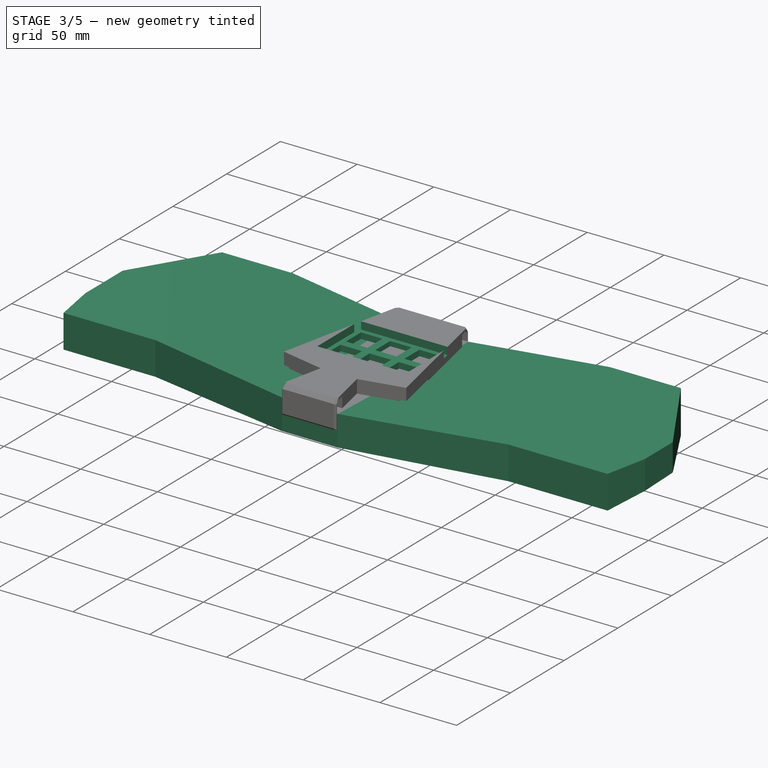
[diagram: stage 3 of 5 — iso view after this stage's code; geometry added in this stage tinted green]
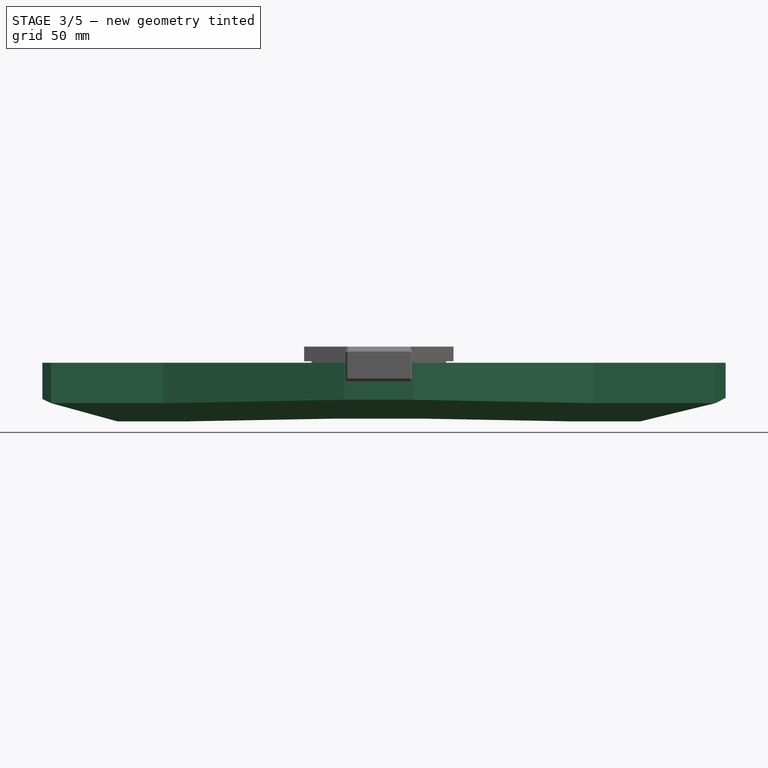
[diagram: stage 3 of 5 — front view after this stage's code; geometry added in this stage tinted green]
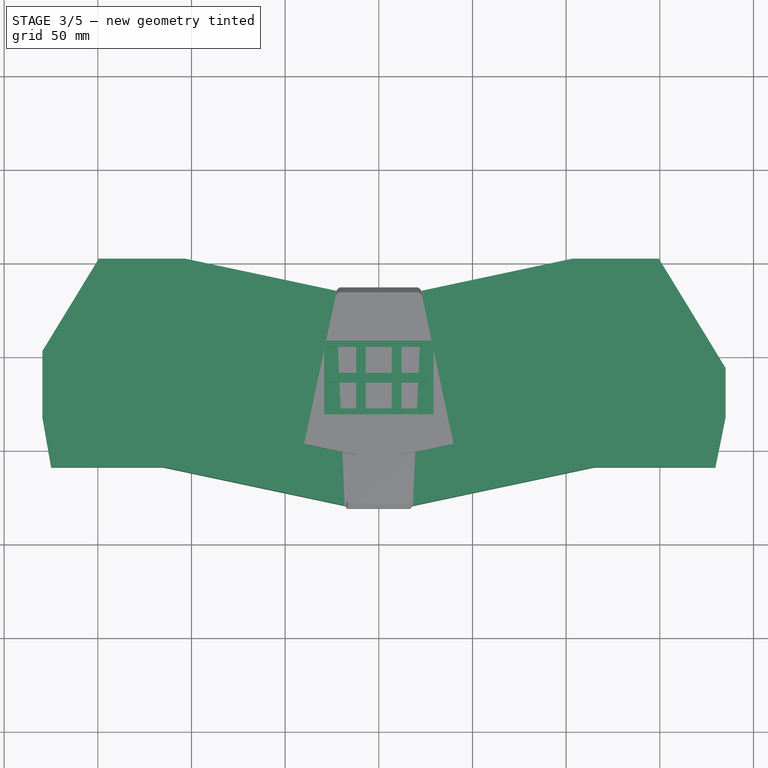
[diagram: stage 3 of 5 — top view after this stage's code; geometry added in this stage tinted green]
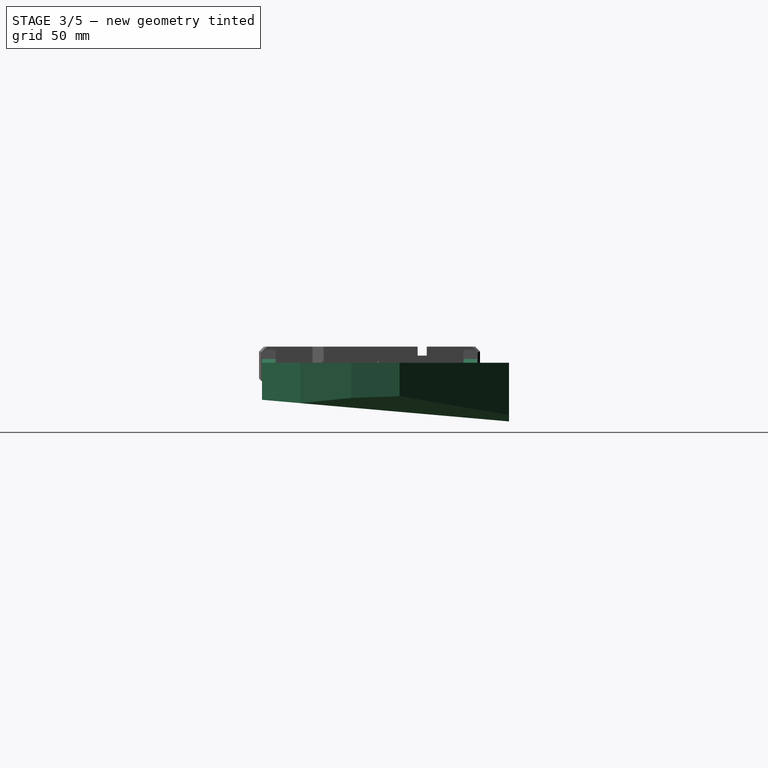
[diagram: stage 3 of 5 — right view after this stage's code; geometry added in this stage tinted green]
FEATURE [PartDesign::Body] Body001  label="pcb"
  AllowCompound = false
  Group = -> [Sketch001,Pad,Fillet,Fillet001]
  Origin = -> Origin001
  Placement = pos=(0,0,5.4) rot=(0,0,1;0rad)
  Tip = -> Fillet001
  expr: .Placement.Base.z = Spreadsheet.PCB_HEIGHT_OFFSET
FEATURE [Sketcher::SketchObject] Sketch002  label="Sketch000"
  ArcFitTolerance = 0
  AttachmentOffset = pos=(0,0,-20.2) rot=(0,0,1;0rad)
  AttachmentSupport = -> [XY_Plane002]
  FullyConstrained = true
  MakeInternals = false
  MapMode = 5
  Placement = pos=(0,0,-20.2) rot=(0,0,1;0rad)
  expr: .AttachmentOffset.Base.z = -40 + Spreadsheet.CASE_INNER_HEIGHT + Spreadsheet.ACRYL_THICKNESS
  expr: Constraints[141] = 90 - <<config>>.ALPHA_ANGLE
  expr: Constraints[142] = <<config>>.KEY_UNIT
  expr: Constraints[147] = <<config>>.MOD_OFFSET
  expr: Constraints[148] = 2.75 * <<config>>.KEY_UNIT
  expr: Constraints[149] = 3.25 * <<config>>.KEY_UNIT
  expr: Constraints[150] = 2.75 * <<config>>.KEY_UNIT
  expr: Constraints[151] = 2.5 * <<config>>.KEY_UNIT
  expr: Constraints[152] = 2 * <<config>>.KEY_UNIT
  expr: Constraints[162] = 3 * <<config>>.KEY_UNIT
  expr: Constraints[169] = <<config>>.HEADER_WIDTH
  expr: Constraints[170] = <<config>>.HEADER_LENGTH
  expr: Constraints[211] = Spreadsheet.CASE_BEZEL
  expr: Constraints[214] = Spreadsheet.CASE_BEZEL
  expr: Constraints[215] = Spreadsheet.CASE_BEZEL
  expr: Constraints[217] = Spreadsheet.CASE_BEZEL
  expr: Constraints[219] = Spreadsheet.CASE_BEZEL
  expr: Constraints[220] = Spreadsheet.CASE_BEZEL
  expr: Constraints[227] = Spreadsheet.CASE_BEZEL * 1.5
  expr: Constraints[228] = Spreadsheet.CASE_BEZEL * 1.2
  expr: Constraints[237] = Spreadsheet.CASE_BEZEL
  expr: Constraints[240] = Spreadsheet.CASE_BEZEL * 1.5
  expr: Constraints[44] = 2 * <<config>>.KEY_UNIT
  expr: Constraints[45] = 2.5 * <<config>>.KEY_UNIT
  expr: Constraints[46] = <<config>>.KEY_UNIT
  expr: Constraints[51] = 2.75 * <<config>>.KEY_UNIT
  expr: Constraints[52] = 2.75 * <<config>>.KEY_UNIT
  expr: Constraints[53] = 2.5 * <<config>>.KEY_UNIT
  expr: Constraints[59] = 90 - <<config>>.ALPHA_ANGLE
  expr: Constraints[62] = 4 * <<config>>.KEY_UNIT
  expr: Constraints[66] = 5 * <<config>>.KEY_UNIT
  expr: Constraints[67] = 5.5 * <<config>>.KEY_UNIT
  expr: Constraints[75] = <<config>>.KEY_UNIT
  expr: Constraints[76] = <<config>>.MOD_OFFSET
  expr: Constraints[84] = 4 * <<config>>.KEY_UNIT
  expr: Constraints[85] = 5.5 * <<config>>.KEY_UNIT
  expr: Constraints[86] = <<config>>.KEY_UNIT
  expr: Constraints[89] = 5 * <<config>>.KEY_UNIT
  sketch-geometry (84):
    g0: LineSegment [constr] StartX=-141.18 StartY=94.2 StartZ=0 EndX=-103.08 EndY=94.2 EndZ=0
    g1: LineSegment [constr] StartX=-103.08 StartY=94.2 StartZ=0 EndX=-103.08 EndY=75.15 EndZ=0
    g2: LineSegment [constr] StartX=-103.08 StartY=75.15 StartZ=0 EndX=-141.18 EndY=75.15 EndZ=0
    g3: LineSegment [constr] StartX=-141.18 StartY=75.15 StartZ=0 EndX=-141.18 EndY=94.2 EndZ=0
    g4: LineSegment [constr] StartX=-107.129 StartY=75.15 StartZ=0 EndX=-154.754 EndY=75.15 EndZ=0
    g5: LineSegment [constr] StartX=-154.754 StartY=75.15 StartZ=0 EndX=-154.754 EndY=56.1 EndZ=0
    g6: LineSegment [constr] StartX=-154.754 StartY=56.1 StartZ=0 EndX=-107.129 EndY=56.1 EndZ=0
    g7: LineSegment [constr] StartX=-107.129 StartY=56.1 StartZ=0 EndX=-107.129 EndY=75.15 EndZ=0
    g8: LineSegment [constr] StartX=-111.179 StartY=56.1 StartZ=0 EndX=-163.566 EndY=56.1 EndZ=0
    g9: LineSegment [constr] StartX=-163.566 StartY=56.1 StartZ=0 EndX=-163.566 EndY=37.05 EndZ=0
    g10: LineSegment [constr] StartX=-163.566 StartY=37.05 StartZ=0 EndX=-111.179 EndY=37.05 EndZ=0
    g11: LineSegment [constr] StartX=-111.179 StartY=37.05 StartZ=0 EndX=-111.179 EndY=56.1 EndZ=0
    g12: LineSegment [constr] StartX=-115.228 StartY=37.05 StartZ=0 EndX=-167.615 EndY=37.05 EndZ=0
    g13: LineSegment [constr] StartX=-167.615 StartY=37.05 StartZ=0 EndX=-167.615 EndY=18 EndZ=0
    g14: LineSegment [constr] StartX=-167.615 StartY=18 StartZ=0 EndX=-115.228 EndY=18 EndZ=0
    g15: LineSegment [constr] StartX=-115.228 StartY=18 StartZ=0 EndX=-115.228 EndY=37.05 EndZ=0
    g16: LineSegment [constr] StartX=-119.277 StartY=18 StartZ=0 EndX=-166.902 EndY=18 EndZ=0
    g17: LineSegment [constr] StartX=-166.902 StartY=18 StartZ=0 EndX=-166.902 EndY=-1.05 EndZ=0
    g18: LineSegment [constr] StartX=-166.902 StartY=-1.05 StartZ=0 EndX=-119.277 EndY=-1.05 EndZ=0
    g19: LineSegment [constr] StartX=-119.277 StartY=-1.05 StartZ=0 EndX=-119.277 EndY=18 EndZ=0
    g20: LineSegment [constr] StartX=-119.277 StartY=-1.05 StartZ=0 EndX=-99.2503 EndY=93.1686 EndZ=0
    g21: LineSegment [constr] StartX=-99.2503 StartY=93.1686 StartZ=0 EndX=-24.7155 EndY=77.3257 EndZ=0
    g22: LineSegment [constr] StartX=-119.054 StartY=0 StartZ=0 EndX=-16.5685 EndY=-21.7839 EndZ=0
    g23: LineSegment [constr] StartX=-16.5685 StartY=-21.7839 StartZ=0 EndX=-12.6078 EndY=-3.15024 EndZ=0
    g24: LineSegment [constr] StartX=-12.6078 StartY=-3.15024 StartZ=0 EndX=-40.5583 EndY=2.79084 EndZ=0
    g25: LineSegment [constr] StartX=-40.5583 StartY=2.79084 StartZ=0 EndX=-24.7155 EndY=77.3257 EndZ=0
    g26: LineSegment [constr] StartX=119.054 StartY=0 StartZ=0 EndX=16.5685 EndY=-21.7839 EndZ=0
    g27: LineSegment [constr] StartX=16.5685 StartY=-21.7839 StartZ=0 EndX=12.6078 EndY=-3.15024 EndZ=0
    g28: LineSegment [constr] StartX=12.6078 StartY=-3.15024 StartZ=0 EndX=40.5583 EndY=2.79084 EndZ=0
    g29: LineSegment [constr] StartX=40.5583 StartY=2.79084 StartZ=0 EndX=24.7155 EndY=77.3257 EndZ=0
    g30: LineSegment [constr] StartX=24.7155 StartY=77.3257 StartZ=0 EndX=99.2503 EndY=93.1686 EndZ=0
    g31: LineSegment [constr] StartX=99.2503 StartY=93.1686 StartZ=0 EndX=119.277 EndY=-1.05 EndZ=0
    g32: LineSegment [constr] StartX=119.277 StartY=-1.05 StartZ=0 EndX=171.665 EndY=-1.05 EndZ=0
    g33: LineSegment [constr] StartX=171.665 StartY=-1.05 StartZ=0 EndX=171.665 EndY=18 EndZ=0
    g34: LineSegment [constr] StartX=171.665 StartY=18 StartZ=0 EndX=119.277 EndY=18 EndZ=0
    g35: LineSegment [constr] StartX=119.277 StartY=18 StartZ=0 EndX=119.277 EndY=-1.05 EndZ=0
    g36: LineSegment [constr] StartX=115.228 StartY=18 StartZ=0 EndX=177.14 EndY=18 EndZ=0
    g37: LineSegment [constr] StartX=177.14 StartY=18 StartZ=0 EndX=177.14 EndY=37.05 EndZ=0
    g38: LineSegment [constr] StartX=177.14 StartY=37.05 StartZ=0 EndX=115.228 EndY=37.05 EndZ=0
    g39: LineSegment [constr] StartX=115.228 StartY=37.05 StartZ=0 EndX=115.228 EndY=18 EndZ=0
    g40: LineSegment [constr] StartX=111.179 StartY=37.05 StartZ=0 EndX=163.566 EndY=37.05 EndZ=0
    g41: LineSegment [constr] StartX=163.566 StartY=37.05 StartZ=0 EndX=163.566 EndY=56.1 EndZ=0
    g42: LineSegment [constr] StartX=163.566 StartY=56.1 StartZ=0 EndX=111.179 EndY=56.1 EndZ=0
    g43: LineSegment [constr] StartX=111.179 StartY=56.1 StartZ=0 EndX=111.179 EndY=37.05 EndZ=0
    g44: LineSegment [constr] StartX=107.129 StartY=56.1 StartZ=0 EndX=154.754 EndY=56.1 EndZ=0
    g45: LineSegment [constr] StartX=154.754 StartY=56.1 StartZ=0 EndX=154.754 EndY=75.15 EndZ=0
    g46: LineSegment [constr] StartX=154.754 StartY=75.15 StartZ=0 EndX=107.129 EndY=75.15 EndZ=0
    g47: LineSegment [constr] StartX=107.129 StartY=75.15 StartZ=0 EndX=107.129 EndY=56.1 EndZ=0
    g48: LineSegment [constr] StartX=103.08 StartY=75.15 StartZ=0 EndX=141.18 EndY=75.15 EndZ=0
    g49: LineSegment [constr] StartX=141.18 StartY=75.15 StartZ=0 EndX=141.18 EndY=94.2 EndZ=0
    g50: LineSegment [constr] StartX=141.18 StartY=94.2 StartZ=0 EndX=103.08 EndY=94.2 EndZ=0
    g51: LineSegment [constr] StartX=103.08 StartY=94.2 StartZ=0 EndX=103.08 EndY=75.15 EndZ=0
    g52: LineSegment [constr] StartX=-28.575 StartY=57.7047 StartZ=0 EndX=28.575 EndY=57.7047 EndZ=0
    g53: LineSegment [constr] StartX=28.575 StartY=57.7047 StartZ=0 EndX=28.575 EndY=0.554733 EndZ=0
    g54: LineSegment [constr] StartX=28.575 StartY=0.554733 StartZ=0 EndX=-28.575 EndY=0.554733 EndZ=0
    g55: LineSegment [constr] StartX=-28.575 StartY=0.554733 StartZ=0 EndX=-28.575 EndY=57.7047 EndZ=0
    g56: LineSegment [constr] StartX=-37.037 StartY=2.04236 StartZ=0 EndX=-28.575 EndY=41.853 EndZ=0
    g57: LineSegment [constr] StartX=-28.575 StartY=41.853 StartZ=0 EndX=-32.0963 EndY=42.6014 EndZ=0
    g58: Circle [constr] CenterX=-28.575 CenterY=57.7047 CenterZ=0 NormalX=0 NormalY=0 NormalZ=1 AngleXU=0 Radius=0.304232
    g59: Circle [constr] CenterX=-28.575 CenterY=0.554733 CenterZ=0 NormalX=0 NormalY=0 NormalZ=1 AngleXU=0 Radius=0.304232
    g60: LineSegment StartX=-149.496 StartY=102.2 StartZ=0 EndX=-179.615 EndY=52.8353 EndZ=0
    g61: LineSegment StartX=-179.615 StartY=52.8353 StartZ=0 EndX=-179.615 EndY=18 EndZ=0
    g62: LineSegment StartX=-179.615 StartY=18 StartZ=0 EndX=-174.902 EndY=-9.05 EndZ=0
    g63: LineSegment StartX=-174.902 StartY=-9.05 StartZ=0 EndX=-114.955 EndY=-9.05 EndZ=0
    g64: LineSegment StartX=-114.955 StartY=-9.05 StartZ=0 EndX=-18.2318 EndY=-29.6091 EndZ=0
    g65: LineSegment StartX=-18.2318 StartY=-29.6091 StartZ=0 EndX=18.2318 EndY=-29.6091 EndZ=0
    g66: LineSegment StartX=18.2318 StartY=-29.6091 StartZ=0 EndX=114.955 EndY=-9.05 EndZ=0
    g67: LineSegment StartX=114.955 StartY=-9.05 StartZ=0 EndX=179.665 EndY=-9.05 EndZ=0
    g68: LineSegment StartX=179.665 StartY=-9.05 StartZ=0 EndX=185.14 EndY=18 EndZ=0
    g69: LineSegment StartX=185.14 StartY=18 StartZ=0 EndX=185.14 EndY=43.78 EndZ=0
    g70: LineSegment StartX=185.14 StartY=43.78 StartZ=0 EndX=149.496 EndY=102.2 EndZ=0
    g71: LineSegment StartX=149.496 StartY=102.2 StartZ=0 EndX=103.262 EndY=102.2 EndZ=0
    g72: LineSegment StartX=103.262 StartY=102.2 StartZ=0 EndX=23.0522 EndY=85.1509 EndZ=0
    g73: LineSegment StartX=23.0522 StartY=85.1509 StartZ=0 EndX=-23.0522 EndY=85.1509 EndZ=0
    g74: LineSegment StartX=-23.0522 StartY=85.1509 StartZ=0 EndX=-103.262 EndY=102.2 EndZ=0
    g75: LineSegment StartX=-103.262 StartY=102.2 StartZ=0 EndX=-149.496 EndY=102.2 EndZ=0
    g76: Circle [constr] CenterX=-154.754 CenterY=75.15 CenterZ=0 NormalX=0 NormalY=0 NormalZ=1 AngleXU=0 Radius=9.6
    g77: Circle [constr] CenterX=-163.566 CenterY=56.1 CenterZ=0 NormalX=0 NormalY=0 NormalZ=1 AngleXU=0 Radius=12
    g78: Circle [constr] CenterX=154.754 CenterY=75.15 CenterZ=0 NormalX=0 NormalY=0 NormalZ=1 AngleXU=0 Radius=9.6
    g79: Circle [constr] CenterX=163.566 CenterY=56.1 CenterZ=0 NormalX=0 NormalY=0 NormalZ=1 AngleXU=0 Radius=12
    g80: LineSegment [constr] StartX=-16.5685 StartY=-21.7839 StartZ=0 EndX=-18.2318 EndY=-29.6091 EndZ=0
    g81: LineSegment [constr] StartX=16.5685 StartY=-21.7839 StartZ=0 EndX=18.2318 EndY=-29.6091 EndZ=0
    g82: LineSegment [constr] StartX=-24.7155 StartY=77.3257 StartZ=0 EndX=-23.0522 EndY=85.1509 EndZ=0
    g83: LineSegment [constr] StartX=24.7155 StartY=77.3257 StartZ=0 EndX=23.0522 EndY=85.1509 EndZ=0
  constraints (241):
    c: Coincident(g0,g1)
    c: Coincident(g1,g2)
    c: Coincident(g2,g3)
    c: Coincident(g3,g0)
    c: Horizontal(g0)
    c: Horizontal(g2)
    c: Vertical(g1)
    c: Vertical(g3)
    c: Coincident(g4,g5)
    c: Coincident(g5,g6)
    c: Coincident(g6,g7)
    c: Coincident(g7,g4)
    c: Horizontal(g4)
    c: Horizontal(g6)
    c: Vertical(g5)
    c: Vertical(g7)
    c: PointOnObject(g4,g2)
    c: Coincident(g8,g9)
    c: Coincident(g9,g10)
    c: Coincident(g10,g11)
    c: Coincident(g11,g8)
    c: Horizontal(g8)
    c: Horizontal(g10)
    c: Vertical(g9)
    c: Vertical(g11)
    c: PointOnObject(g8,g6)
    c: Coincident(g12,g13)
    c: Coincident(g13,g14)
    c: Coincident(g14,g15)
    c: Coincident(g15,g12)
    c: Horizontal(g12)
    c: Horizontal(g14)
    c: Vertical(g13)
    c: Vertical(g15)
    c: PointOnObject(g12,g10)
    c: Coincident(g16,g17)
    c: Coincident(g17,g18)
    c: Coincident(g18,g19)
    c: Coincident(g19,g16)
    c: Horizontal(g16)
    c: Horizontal(g18)
    c: Vertical(g17)
    c: Vertical(g19)
    c: PointOnObject(g16,g14)
    c: DistanceX(g0,g0) = 38.1
    c: DistanceX(g4,g4) = 47.625
    c: DistanceY(g3,g3) = 19.05
    c: Equal(g3,g5)
    c: Equal(g5,g9)
    c: Equal(g9,g13)
    c: Equal(g13,g17)
    c: DistanceX(g8,g8) = 52.3875
    c: DistanceX(g12,g12) = 52.3875
    c: DistanceX(g16,g16) = 47.625
    c: Coincident(g20,g18)
    c: PointOnObject(g14,g20)
    c: PointOnObject(g10,g20)
    c: PointOnObject(g6,g20)
    c: PointOnObject(g1,g20)
    c: Angle(g-1,g20) = 1.36136
    c: Coincident(g20,g21)
    c: Perpendicular(g21,g20)
    c: Distance(g21) = 76.2
    c: PointOnObject(g22,g-1)
    c: PointOnObject(g22,g20)
    c: Perpendicular(g22,g20)
    c: Distance(g22,g20) = 95.25
    c: Distance(g22) = 104.775
    c: Coincident(g23,g22)
    c: Coincident(g24,g23)
    c: Coincident(g25,g24)
    c: Coincident(g25,g21)
    c: Perpendicular(g21,g25)
    c: Perpendicular(g23,g22)
    c: Perpendicular(g24,g23)
    c: Distance(g23) = 19.05
    c: DistanceY(g18,g22) = 1.05
    c: Coincident(g26,g27)
    c: Coincident(g27,g28)
    c: Coincident(g28,g29)
    c: Coincident(g29,g30)
    c: Perpendicular(g27,g26)
    c: Perpendicular(g28,g27)
    c: Perpendicular(g30,g29)
    c: Distance(g30) = 76.2
    c: Distance(g26) = 104.775
    c: Distance(g27) = 19.05
    c: Coincident(g31,g30)
    c: PointOnObject(g26,g31)
    c: Distance(g26,g30) = 95.25
    c: Perpendicular(g31,g26)
    c: Perpendicular(g31,g30)
    c: Coincident(g32,g33)
    c: Coincident(g33,g34)
    c: Coincident(g34,g35)
    c: Coincident(g35,g32)
    c: Horizontal(g32)
    c: Horizontal(g34)
    c: Vertical(g33)
    c: Vertical(g35)
    c: Coincident(g32,g31)
    c: Coincident(g36,g37)
    c: Coincident(g37,g38)
    c: Coincident(g38,g39)
    c: Coincident(g39,g36)
    c: Horizontal(g36)
    c: Horizontal(g38)
    c: Vertical(g37)
    c: Vertical(g39)
    c: PointOnObject(g36,g34)
    c: Coincident(g40,g41)
    c: Coincident(g41,g42)
    c: Coincident(g42,g43)
    c: Coincident(g43,g40)
    c: Horizontal(g40)
    c: Horizontal(g42)
    c: Vertical(g41)
    c: Vertical(g43)
    c: PointOnObject(g40,g38)
    c: Coincident(g44,g45)
    c: Coincident(g45,g46)
    c: Coincident(g46,g47)
    c: Coincident(g47,g44)
    c: Horizontal(g44)
    c: Horizontal(g46)
    c: Vertical(g45)
    c: Vertical(g47)
    c: PointOnObject(g44,g42)
    c: Coincident(g48,g49)
    c: Coincident(g49,g50)
    c: Coincident(g50,g51)
    c: Coincident(g51,g48)
    c: Horizontal(g48)
    c: Horizontal(g50)
    c: Vertical(g49)
    c: Vertical(g51)
    c: PointOnObject(g48,g46)
    c: PointOnObject(g48,g31)
    c: PointOnObject(g44,g31)
    c: PointOnObject(g40,g31)
    c: PointOnObject(g36,g31)
    c: Angle(g31,g-1) = 1.36136
    c: DistanceY(g49,g49) = 19.05
    c: Equal(g49,g45)
    c: Equal(g45,g41)
    c: Equal(g41,g37)
    c: Equal(g37,g33)
    c: DistanceY(g31,g26) = 1.05
    c: DistanceX(g34,g34) = 52.3875
    c: DistanceX(g38,g38) = 61.9125
    c: DistanceX(g42,g42) = 52.3875
    c: DistanceX(g46,g46) = 47.625
    c: DistanceX(g50,g50) = 38.1
    c: Coincident(g52,g53)
    c: Coincident(g53,g54)
    c: Coincident(g54,g55)
    c: Coincident(g55,g52)
    c: Horizontal(g54)
    c: Vertical(g53)
    c: Vertical(g55)
    c: Symmetric(g52,g52,g-2)
    c: Equal(g52,g53)
    c: DistanceX(g52,g52) = 57.15
    c: Symmetric(g22,g26,g-2)
    c: PointOnObject(g56,g24)
    c: Coincident(g57,g56)
    c: PointOnObject(g57,g25)
    c: Perpendicular(g57,g56)
    c: Perpendicular(g56,g24)
    c: Distance(g57) = 3.6
    c: Distance(g56) = 40.7
    c: PointOnObject(g56,g55)
    c: Coincident(g58,g52)
    c: Tangent(g58,g25)
    c: Coincident(g59,g54)
    c: Tangent(g59,g24)
    c: Equal(g59,g58)
    c: Coincident(g60,g61)
    c: Vertical(g61)
    c: Coincident(g61,g62)
    c: Coincident(g62,g63)
    c: Horizontal(g63)
    c: Coincident(g63,g64)
    c: Coincident(g64,g65)
    c: Horizontal(g65)
    c: Coincident(g65,g66)
    c: Coincident(g66,g67)
    c: Horizontal(g67)
    c: Coincident(g67,g68)
    c: Coincident(g68,g69)
    c: Vertical(g69)
    c: Coincident(g69,g70)
    c: Coincident(g70,g71)
    c: Horizontal(g71)
    c: Coincident(g71,g72)
    c: Coincident(g72,g73)
    c: Horizontal(g73)
    c: Coincident(g73,g74)
    c: Coincident(g74,g75)
    c: Coincident(g75,g60)
    c: Horizontal(g75)
    c: Coincident(g76,g4)
    c: Tangent(g76,g60)
    c: Coincident(g77,g8)
    c: Tangent(g77,g60)
    c: Coincident(g78,g45)
    c: Tangent(g78,g70)
    c: Coincident(g79,g41)
    c: Tangent(g79,g70)
    c: Equal(g79,g77)
    c: Equal(g76,g78)
    c: Distance(g37,g69) = 8
    c: Parallel(g64,g22)
    c: Parallel(g66,g26)
    c: Distance(g64,g22) = 8
    c: DistanceY(g62,g17) = 8
    c: Horizontal(g63,g66)
    c: DistanceY(g49,g70) = 8
    c: Horizontal(g70,g60)
    c: DistanceX(g62,g17) = 8
    c: DistanceX(g32,g67) = 8
    c: Coincident(g80,g22)
    c: Coincident(g80,g64)
    c: Perpendicular(g64,g80)
    c: Coincident(g81,g26)
    c: Coincident(g81,g65)
    c: Perpendicular(g81,g66)
    c: Distance(g8,g60) = 12
    c: Distance(g4,g60) = 9.6
    c: Coincident(g82,g21)
    c: Coincident(g82,g73)
    c: Coincident(g83,g29)
    c: Coincident(g83,g72)
    c: Perpendicular(g82,g21)
    c: Perpendicular(g30,g83)
    c: Parallel(g74,g21)
    c: Parallel(g72,g30)
    c: Distance(g72,g30) = 8
    c: Horizontal(g61,g13)
    c: Horizontal(g13,g68)
    c: Distance(g12,g61) = 12
FEATURE [Sketcher::SketchObject] Sketch003  label="Sketch009"
  ArcFitTolerance = 0
  AttachmentOffset = pos=(0,0,19.8) rot=(0,0,1;0rad)
  AttachmentSupport = -> [XY_Plane002]
  FullyConstrained = true
  MakeInternals = false
  MapMode = 5
  Placement = pos=(0,0,19.8) rot=(0,0,1;0rad)
  expr: .AttachmentOffset.Base.z = Spreadsheet.CASE_INNER_HEIGHT + Spreadsheet.ACRYL_THICKNESS
  expr: Constraints[141] = 90 - <<config>>.ALPHA_ANGLE
  expr: Constraints[142] = <<config>>.KEY_UNIT
  expr: Constraints[147] = <<config>>.MOD_OFFSET
  expr: Constraints[148] = 2.75 * <<config>>.KEY_UNIT
  expr: Constraints[149] = 3.25 * <<config>>.KEY_UNIT
  expr: Constraints[150] = 2.75 * <<config>>.KEY_UNIT
  expr: Constraints[151] = 2.5 * <<config>>.KEY_UNIT
  expr: Constraints[152] = 2 * <<config>>.KEY_UNIT
  expr: Constraints[162] = 3 * <<config>>.KEY_UNIT
  expr: Constraints[169] = <<config>>.HEADER_WIDTH
  expr: Constraints[170] = <<config>>.HEADER_LENGTH
  expr: Constraints[219] = Spreadsheet.CASE_MARGIN
  expr: Constraints[220] = Spreadsheet.CASE_MARGIN
  expr: Constraints[221] = Spreadsheet.CASE_MARGIN
  expr: Constraints[222] = Spreadsheet.CASE_MARGIN
  expr: Constraints[223] = Spreadsheet.CASE_MARGIN
  expr: Constraints[224] = Spreadsheet.CASE_MARGIN
  expr: Constraints[225] = Spreadsheet.CASE_MARGIN
  expr: Constraints[226] = Spreadsheet.CASE_MARGIN
  expr: Constraints[227] = Spreadsheet.CASE_MARGIN
  expr: Constraints[228] = Spreadsheet.CASE_MARGIN
  expr: Constraints[229] = Spreadsheet.CASE_MARGIN
  expr: Constraints[230] = Spreadsheet.CASE_MARGIN
  expr: Constraints[231] = Spreadsheet.CASE_MARGIN
  expr: Constraints[232] = Spreadsheet.CASE_MARGIN
  expr: Constraints[233] = Spreadsheet.CASE_MARGIN
  expr: Constraints[234] = Spreadsheet.CASE_MARGIN
  expr: Constraints[44] = 2 * <<config>>.KEY_UNIT
  expr: Constraints[45] = 2.5 * <<config>>.KEY_UNIT
  expr: Constraints[46] = <<config>>.KEY_UNIT
  expr: Constraints[51] = 2.75 * <<config>>.KEY_UNIT
  expr: Constraints[52] = 2.75 * <<config>>.KEY_UNIT
  expr: Constraints[53] = 2.5 * <<config>>.KEY_UNIT
  expr: Constraints[59] = 90 - <<config>>.ALPHA_ANGLE
  expr: Constraints[62] = 4 * <<config>>.KEY_UNIT
  expr: Constraints[66] = 5 * <<config>>.KEY_UNIT
  expr: Constraints[67] = 5.5 * <<config>>.KEY_UNIT
  expr: Constraints[75] = <<config>>.KEY_UNIT
  expr: Constraints[76] = <<config>>.MOD_OFFSET
  expr: Constraints[84] = 4 * <<config>>.KEY_UNIT
  expr: Constraints[85] = 5.5 * <<config>>.KEY_UNIT
  expr: Constraints[86] = <<config>>.KEY_UNIT
  expr: Constraints[89] = 5 * <<config>>.KEY_UNIT
  sketch-geometry (84):
    g0: LineSegment [constr] StartX=-141.18 StartY=94.2 StartZ=0 EndX=-103.08 EndY=94.2 EndZ=0
    g1: LineSegment [constr] StartX=-103.08 StartY=94.2 StartZ=0 EndX=-103.08 EndY=75.15 EndZ=0
    g2: LineSegment [constr] StartX=-103.08 StartY=75.15 StartZ=0 EndX=-141.18 EndY=75.15 EndZ=0
    g3: LineSegment [constr] StartX=-141.18 StartY=75.15 StartZ=0 EndX=-141.18 EndY=94.2 EndZ=0
    g4: LineSegment [constr] StartX=-107.129 StartY=75.15 StartZ=0 EndX=-154.754 EndY=75.15 EndZ=0
    g5: LineSegment [constr] StartX=-154.754 StartY=75.15 StartZ=0 EndX=-154.754 EndY=56.1 EndZ=0
    g6: LineSegment [constr] StartX=-154.754 StartY=56.1 StartZ=0 EndX=-107.129 EndY=56.1 EndZ=0
    g7: LineSegment [constr] StartX=-107.129 StartY=56.1 StartZ=0 EndX=-107.129 EndY=75.15 EndZ=0
    g8: LineSegment [constr] StartX=-111.179 StartY=56.1 StartZ=0 EndX=-163.566 EndY=56.1 EndZ=0
    g9: LineSegment [constr] StartX=-163.566 StartY=56.1 StartZ=0 EndX=-163.566 EndY=37.05 EndZ=0
    g10: LineSegment [constr] StartX=-163.566 StartY=37.05 StartZ=0 EndX=-111.179 EndY=37.05 EndZ=0
    g11: LineSegment [constr] StartX=-111.179 StartY=37.05 StartZ=0 EndX=-111.179 EndY=56.1 EndZ=0
    g12: LineSegment [constr] StartX=-115.228 StartY=37.05 StartZ=0 EndX=-167.615 EndY=37.05 EndZ=0
    g13: LineSegment [constr] StartX=-167.615 StartY=37.05 StartZ=0 EndX=-167.615 EndY=18 EndZ=0
    g14: LineSegment [constr] StartX=-167.615 StartY=18 StartZ=0 EndX=-115.228 EndY=18 EndZ=0
    g15: LineSegment [constr] StartX=-115.228 StartY=18 StartZ=0 EndX=-115.228 EndY=37.05 EndZ=0
    g16: LineSegment [constr] StartX=-119.277 StartY=18 StartZ=0 EndX=-166.902 EndY=18 EndZ=0
    g17: LineSegment [constr] StartX=-166.902 StartY=18 StartZ=0 EndX=-166.902 EndY=-1.05 EndZ=0
    g18: LineSegment [constr] StartX=-166.902 StartY=-1.05 StartZ=0 EndX=-119.277 EndY=-1.05 EndZ=0
    g19: LineSegment [constr] StartX=-119.277 StartY=-1.05 StartZ=0 EndX=-119.277 EndY=18 EndZ=0
    g20: LineSegment [constr] StartX=-119.277 StartY=-1.05 StartZ=0 EndX=-99.2503 EndY=93.1686 EndZ=0
    g21: LineSegment [constr] StartX=-99.2503 StartY=93.1686 StartZ=0 EndX=-24.7155 EndY=77.3257 EndZ=0
    g22: LineSegment [constr] StartX=-119.054 StartY=0 StartZ=0 EndX=-16.5685 EndY=-21.7839 EndZ=0
    g23: LineSegment [constr] StartX=-16.5685 StartY=-21.7839 StartZ=0 EndX=-12.6078 EndY=-3.15024 EndZ=0
    g24: LineSegment [constr] StartX=-12.6078 StartY=-3.15024 StartZ=0 EndX=-40.5583 EndY=2.79084 EndZ=0
    g25: LineSegment [constr] StartX=-40.5583 StartY=2.79084 StartZ=0 EndX=-24.7155 EndY=77.3257 EndZ=0
    g26: LineSegment [constr] StartX=119.054 StartY=0 StartZ=0 EndX=16.5685 EndY=-21.7839 EndZ=0
    g27: LineSegment [constr] StartX=16.5685 StartY=-21.7839 StartZ=0 EndX=12.6078 EndY=-3.15024 EndZ=0
    g28: LineSegment [constr] StartX=12.6078 StartY=-3.15024 StartZ=0 EndX=40.5583 EndY=2.79084 EndZ=0
    g29: LineSegment [constr] StartX=40.5583 StartY=2.79084 StartZ=0 EndX=24.7155 EndY=77.3257 EndZ=0
    g30: LineSegment [constr] StartX=24.7155 StartY=77.3257 StartZ=0 EndX=99.2503 EndY=93.1686 EndZ=0
    g31: LineSegment [constr] StartX=99.2503 StartY=93.1686 StartZ=0 EndX=119.277 EndY=-1.05 EndZ=0
    g32: LineSegment [constr] StartX=119.277 StartY=-1.05 StartZ=0 EndX=171.665 EndY=-1.05 EndZ=0
    g33: LineSegment [constr] StartX=171.665 StartY=-1.05 StartZ=0 EndX=171.665 EndY=18 EndZ=0
    g34: LineSegment [constr] StartX=171.665 StartY=18 StartZ=0 EndX=119.277 EndY=18 EndZ=0
    g35: LineSegment [constr] StartX=119.277 StartY=18 StartZ=0 EndX=119.277 EndY=-1.05 EndZ=0
    g36: LineSegment [constr] StartX=115.228 StartY=18 StartZ=0 EndX=177.14 EndY=18 EndZ=0
    g37: LineSegment [constr] StartX=177.14 StartY=18 StartZ=0 EndX=177.14 EndY=37.05 EndZ=0
    g38: LineSegment [constr] StartX=177.14 StartY=37.05 StartZ=0 EndX=115.228 EndY=37.05 EndZ=0
    g39: LineSegment [constr] StartX=115.228 StartY=37.05 StartZ=0 EndX=115.228 EndY=18 EndZ=0
    g40: LineSegment [constr] StartX=111.179 StartY=37.05 StartZ=0 EndX=163.566 EndY=37.05 EndZ=0
    g41: LineSegment [constr] StartX=163.566 StartY=37.05 StartZ=0 EndX=163.566 EndY=56.1 EndZ=0
    g42: LineSegment [constr] StartX=163.566 StartY=56.1 StartZ=0 EndX=111.179 EndY=56.1 EndZ=0
    g43: LineSegment [constr] StartX=111.179 StartY=56.1 StartZ=0 EndX=111.179 EndY=37.05 EndZ=0
    g44: LineSegment [constr] StartX=107.129 StartY=56.1 StartZ=0 EndX=154.754 EndY=56.1 EndZ=0
    g45: LineSegment [constr] StartX=154.754 StartY=56.1 StartZ=0 EndX=154.754 EndY=75.15 EndZ=0
    g46: LineSegment [constr] StartX=154.754 StartY=75.15 StartZ=0 EndX=107.129 EndY=75.15 EndZ=0
    g47: LineSegment [constr] StartX=107.129 StartY=75.15 StartZ=0 EndX=107.129 EndY=56.1 EndZ=0
    g48: LineSegment [constr] StartX=103.08 StartY=75.15 StartZ=0 EndX=141.18 EndY=75.15 EndZ=0
    g49: LineSegment [constr] StartX=141.18 StartY=75.15 StartZ=0 EndX=141.18 EndY=94.2 EndZ=0
    g50: LineSegment [constr] StartX=141.18 StartY=94.2 StartZ=0 EndX=103.08 EndY=94.2 EndZ=0
    g51: LineSegment [constr] StartX=103.08 StartY=94.2 StartZ=0 EndX=103.08 EndY=75.15 EndZ=0
    g52: LineSegment [constr] StartX=-28.575 StartY=57.7047 StartZ=0 EndX=28.575 EndY=57.7047 EndZ=0
    g53: LineSegment [constr] StartX=28.575 StartY=57.7047 StartZ=0 EndX=28.575 EndY=0.554733 EndZ=0
    g54: LineSegment [constr] StartX=28.575 StartY=0.554733 StartZ=0 EndX=-28.575 EndY=0.554733 EndZ=0
    g55: LineSegment [constr] StartX=-28.575 StartY=0.554733 StartZ=0 EndX=-28.575 EndY=57.7047 EndZ=0
    g56: LineSegment [constr] StartX=-37.037 StartY=2.04236 StartZ=0 EndX=-28.575 EndY=41.853 EndZ=0
    g57: LineSegment [constr] StartX=-28.575 StartY=41.853 StartZ=0 EndX=-32.0963 EndY=42.6014 EndZ=0
    g58: Circle [constr] CenterX=-28.575 CenterY=57.7047 CenterZ=0 NormalX=0 NormalY=0 NormalZ=1 AngleXU=0 Radius=0.304232
    g59: Circle [constr] CenterX=-28.575 CenterY=0.554733 CenterZ=0 NormalX=0 NormalY=0 NormalZ=1 AngleXU=0 Radius=0.304232
    g60: LineSegment StartX=-141.78 StartY=94.8 StartZ=0 EndX=-141.78 EndY=75.75 EndZ=0
    g61: LineSegment StartX=-141.78 StartY=75.75 StartZ=0 EndX=-155.354 EndY=75.75 EndZ=0
    g62: LineSegment StartX=-155.354 StartY=75.75 StartZ=0 EndX=-155.354 EndY=56.7 EndZ=0
    g63: LineSegment StartX=-155.354 StartY=56.7 StartZ=0 EndX=-164.166 EndY=56.7 EndZ=0
    g64: LineSegment StartX=-164.166 StartY=56.7 StartZ=0 EndX=-164.166 EndY=37.65 EndZ=0
    g65: LineSegment StartX=-164.166 StartY=37.65 StartZ=0 EndX=-168.215 EndY=37.65 EndZ=0
    g66: LineSegment StartX=-168.215 StartY=37.65 StartZ=0 EndX=-168.215 EndY=17.4 EndZ=0
    g67: LineSegment StartX=-168.215 StartY=17.4 StartZ=0 EndX=-167.502 EndY=16.6867 EndZ=0
    g68: LineSegment StartX=-167.502 StartY=16.6867 StartZ=0 EndX=-167.502 EndY=-1.65 EndZ=0
    g69: LineSegment StartX=-167.502 StartY=-1.65 StartZ=0 EndX=-152.502 EndY=-1.65 EndZ=0
    g70: LineSegment StartX=157.265 StartY=-1.65 StartZ=0 EndX=172.265 EndY=-1.65 EndZ=0
    g71: LineSegment StartX=172.265 StartY=-1.65 StartZ=0 EndX=172.265 EndY=17.4 EndZ=0
    g72: LineSegment StartX=172.265 StartY=17.4 StartZ=0 EndX=177.74 EndY=17.4 EndZ=0
    g73: LineSegment StartX=177.74 StartY=17.4 StartZ=0 EndX=177.74 EndY=37.65 EndZ=0
    g74: LineSegment StartX=177.74 StartY=37.65 StartZ=0 EndX=164.166 EndY=37.65 EndZ=0
    g75: LineSegment StartX=164.166 StartY=37.65 StartZ=0 EndX=164.166 EndY=56.7 EndZ=0
    g76: LineSegment StartX=164.166 StartY=56.7 StartZ=0 EndX=155.354 EndY=56.7 EndZ=0
    g77: LineSegment StartX=155.354 StartY=56.7 StartZ=0 EndX=155.354 EndY=75.75 EndZ=0
    g78: LineSegment StartX=155.354 StartY=75.75 StartZ=0 EndX=141.78 EndY=75.75 EndZ=0
    g79: LineSegment StartX=141.78 StartY=75.75 StartZ=0 EndX=141.78 EndY=94.8 EndZ=0
    g80: LineSegment StartX=126.78 StartY=94.8 StartZ=0 EndX=141.78 EndY=94.8 EndZ=0
    g81: LineSegment StartX=157.265 StartY=-1.65 StartZ=0 EndX=126.78 EndY=94.8 EndZ=0
    g82: LineSegment StartX=-141.78 StartY=94.8 StartZ=0 EndX=-126.78 EndY=94.8 EndZ=0
    g83: LineSegment StartX=-152.502 StartY=-1.65 StartZ=0 EndX=-126.78 EndY=94.8 EndZ=0
  constraints (249):
    c: Coincident(g0,g1)
    c: Coincident(g1,g2)
    c: Coincident(g2,g3)
    c: Coincident(g3,g0)
    c: Horizontal(g0)
    c: Horizontal(g2)
    c: Vertical(g1)
    c: Vertical(g3)
    c: Coincident(g4,g5)
    c: Coincident(g5,g6)
    c: Coincident(g6,g7)
    c: Coincident(g7,g4)
    c: Horizontal(g4)
    c: Horizontal(g6)
    c: Vertical(g5)
    c: Vertical(g7)
    c: PointOnObject(g4,g2)
    c: Coincident(g8,g9)
    c: Coincident(g9,g10)
    c: Coincident(g10,g11)
    c: Coincident(g11,g8)
    c: Horizontal(g8)
    c: Horizontal(g10)
    c: Vertical(g9)
    c: Vertical(g11)
    c: PointOnObject(g8,g6)
    c: Coincident(g12,g13)
    c: Coincident(g13,g14)
    c: Coincident(g14,g15)
    c: Coincident(g15,g12)
    c: Horizontal(g12)
    c: Horizontal(g14)
    c: Vertical(g13)
    c: Vertical(g15)
    c: PointOnObject(g12,g10)
    c: Coincident(g16,g17)
    c: Coincident(g17,g18)
    c: Coincident(g18,g19)
    c: Coincident(g19,g16)
    c: Horizontal(g16)
    c: Horizontal(g18)
    c: Vertical(g17)
    c: Vertical(g19)
    c: PointOnObject(g16,g14)
    c: DistanceX(g0,g0) = 38.1
    c: DistanceX(g4,g4) = 47.625
    c: DistanceY(g3,g3) = 19.05
    c: Equal(g3,g5)
    c: Equal(g5,g9)
    c: Equal(g9,g13)
    c: Equal(g13,g17)
    c: DistanceX(g8,g8) = 52.3875
    c: DistanceX(g12,g12) = 52.3875
    c: DistanceX(g16,g16) = 47.625
    c: Coincident(g20,g18)
    c: PointOnObject(g14,g20)
    c: PointOnObject(g10,g20)
    c: PointOnObject(g6,g20)
    c: PointOnObject(g1,g20)
    c: Angle(g-1,g20) = 1.36136
    c: Coincident(g20,g21)
    c: Perpendicular(g21,g20)
    c: Distance(g21) = 76.2
    c: PointOnObject(g22,g-1)
    c: PointOnObject(g22,g20)
    c: Perpendicular(g22,g20)
    c: Distance(g22,g20) = 95.25
    c: Distance(g22) = 104.775
    c: Coincident(g23,g22)
    c: Coincident(g24,g23)
    c: Coincident(g25,g24)
    c: Coincident(g25,g21)
    c: Perpendicular(g21,g25)
    c: Perpendicular(g23,g22)
    c: Perpendicular(g24,g23)
    c: Distance(g23) = 19.05
    c: DistanceY(g18,g22) = 1.05
    c: Coincident(g26,g27)
    c: Coincident(g27,g28)
    c: Coincident(g28,g29)
    c: Coincident(g29,g30)
    c: Perpendicular(g27,g26)
    c: Perpendicular(g28,g27)
    c: Perpendicular(g30,g29)
    c: Distance(g30) = 76.2
    c: Distance(g26) = 104.775
    c: Distance(g27) = 19.05
    c: Coincident(g31,g30)
    c: PointOnObject(g26,g31)
    c: Distance(g26,g30) = 95.25
    c: Perpendicular(g31,g26)
    c: Perpendicular(g31,g30)
    c: Coincident(g32,g33)
    c: Coincident(g33,g34)
    c: Coincident(g34,g35)
    c: Coincident(g35,g32)
    c: Horizontal(g32)
    c: Horizontal(g34)
    c: Vertical(g33)
    c: Vertical(g35)
    c: Coincident(g32,g31)
    c: Coincident(g36,g37)
    c: Coincident(g37,g38)
    c: Coincident(g38,g39)
    c: Coincident(g39,g36)
    c: Horizontal(g36)
    c: Horizontal(g38)
    c: Vertical(g37)
    c: Vertical(g39)
    c: PointOnObject(g36,g34)
    c: Coincident(g40,g41)
    c: Coincident(g41,g42)
    c: Coincident(g42,g43)
    c: Coincident(g43,g40)
    c: Horizontal(g40)
    c: Horizontal(g42)
    c: Vertical(g41)
    c: Vertical(g43)
    c: PointOnObject(g40,g38)
    c: Coincident(g44,g45)
    c: Coincident(g45,g46)
    c: Coincident(g46,g47)
    c: Coincident(g47,g44)
    c: Horizontal(g44)
    c: Horizontal(g46)
    c: Vertical(g45)
    c: Vertical(g47)
    c: PointOnObject(g44,g42)
    c: Coincident(g48,g49)
    c: Coincident(g49,g50)
    c: Coincident(g50,g51)
    c: Coincident(g51,g48)
    c: Horizontal(g48)
    c: Horizontal(g50)
    c: Vertical(g49)
    c: Vertical(g51)
    c: PointOnObject(g48,g46)
    c: PointOnObject(g48,g31)
    c: PointOnObject(g44,g31)
    c: PointOnObject(g40,g31)
    c: PointOnObject(g36,g31)
    c: Angle(g31,g-1) = 1.36136
    c: DistanceY(g49,g49) = 19.05
    c: Equal(g49,g45)
    c: Equal(g45,g41)
    c: Equal(g41,g37)
    c: Equal(g37,g33)
    c: DistanceY(g31,g26) = 1.05
    c: DistanceX(g34,g34) = 52.3875
    c: DistanceX(g38,g38) = 61.9125
    c: DistanceX(g42,g42) = 52.3875
    c: DistanceX(g46,g46) = 47.625
    c: DistanceX(g50,g50) = 38.1
    c: Coincident(g52,g53)
    c: Coincident(g53,g54)
    c: Coincident(g54,g55)
    c: Coincident(g55,g52)
    c: Horizontal(g54)
    c: Vertical(g53)
    c: Vertical(g55)
    c: Symmetric(g52,g52,g-2)
    c: Equal(g52,g53)
    c: DistanceX(g52,g52) = 57.15
    c: Symmetric(g22,g26,g-2)
    c: PointOnObject(g56,g24)
    c: Coincident(g57,g56)
    c: PointOnObject(g57,g25)
    c: Perpendicular(g57,g56)
    c: Perpendicular(g56,g24)
    c: Distance(g57) = 3.6
    c: Distance(g56) = 40.7
    c: PointOnObject(g56,g55)
    c: Coincident(g58,g52)
    c: Tangent(g58,g25)
    c: Coincident(g59,g54)
    c: Tangent(g59,g24)
    c: Equal(g59,g58)
    c: Vertical(g60)
    c: Coincident(g60,g61)
    c: Horizontal(g61)
    c: Coincident(g61,g62)
    c: Vertical(g62)
    c: Coincident(g62,g63)
    c: Horizontal(g63)
    c: Coincident(g63,g64)
    c: Coincident(g64,g65)
    c: Horizontal(g65)
    c: Coincident(g65,g66)
    c: Vertical(g66)
    c: Coincident(g66,g67)
    c: Coincident(g67,g68)
    c: Vertical(g68)
    c: Coincident(g68,g69)
    c: Horizontal(g69)
    c: Horizontal(g70)
    c: Coincident(g70,g71)
    c: Vertical(g71)
    c: Coincident(g71,g72)
    c: Horizontal(g72)
    c: Coincident(g72,g73)
    c: Vertical(g73)
    c: Coincident(g73,g74)
    c: Horizontal(g74)
    c: Coincident(g74,g75)
    c: Vertical(g75)
    c: Coincident(g75,g76)
    c: Horizontal(g76)
    c: Coincident(g76,g77)
    c: Vertical(g77)
    c: Coincident(g77,g78)
    c: Coincident(g78,g79)
    c: Vertical(g79)
    c: Horizontal(g78)
    c: Horizontal(g78,g60)
    c: Horizontal(g62,g76)
    c: Horizontal(g74,g64)
    c: Horizontal(g66,g72)
    c: Horizontal(g68,g70)
    c: Vertical(g64)
    c: DistanceX(g60,g0) = 0.6
    c: DistanceX(g61,g4) = 0.6
    c: DistanceX(g63,g8) = 0.6
    c: DistanceX(g65,g12) = 0.6
    c: DistanceX(g68,g17) = 0.6
    c: DistanceX(g33,g71) = 0.6
    c: DistanceX(g36,g72) = 0.6
    c: DistanceX(g40,g74) = 0.6
    c: DistanceX(g44,g76) = 0.6
    c: DistanceX(g48,g78) = 0.6
    c: DistanceY(g0,g60) = 0.6
    c: DistanceY(g4,g61) = 0.6
    c: DistanceY(g8,g63) = 0.6
    c: DistanceY(g12,g65) = 0.6
    c: DistanceY(g68,g17) = 0.6
    c: DistanceY(g66,g13) = 0.6
    c: Angle(g67,g68) = 2.35619
    c: Coincident(g80,g79)
    c: Horizontal(g80)
    c: DistanceX(g80,g79) = 15
    c: Coincident(g81,g70)
    c: Coincident(g81,g80)
    c: Coincident(g82,g60)
    c: Horizontal(g82)
    c: Equal(g82,g80)
    c: Equal(g79,g60)
    c: Coincident(g83,g69)
    c: Coincident(g83,g82)
    c: Equal(g70,g80)
    c: Equal(g80,g69)
FEATURE [PartDesign::Pad] Pad001  label="outline"
  Direction = (0,0,1)
  Length = 40
  Length2 = 10
  Profile = -> Sketch002
  ReferenceAxis = -> Sketch002 [N_Axis]
  Suppressed = false
  Type = 0
  expr: Length = 40
FEATURE [Sketcher::SketchObject] Sketch004  label="typing angle cut"
  ArcFitTolerance = 0
  AttachmentOffset = pos=(0,0,200) rot=(0,0,1;0rad)
  AttachmentSupport = -> [YZ_Plane002]
  ExternalGeometry = -> [Pad001]
  FullyConstrained = true
  MakeInternals = false
  MapMode = 5
  Placement = pos=(200,0,0) rot=(0.57735,0.57735,0.57735;2.0944rad)
  expr: Constraints[6] = Spreadsheet.CASE_TYPING_ANGLE
  sketch-geometry (4):
    g0: LineSegment StartX=-29.6091 StartY=0 StartZ=0 EndX=427.593 EndY=-40 EndZ=0
    g1: LineSegment StartX=-29.6091 StartY=0 StartZ=0 EndX=-34.6091 EndY=0 EndZ=0
    g2: LineSegment StartX=-34.6091 StartY=0 StartZ=0 EndX=-34.6091 EndY=-40 EndZ=0
    g3: LineSegment StartX=427.593 StartY=-40 StartZ=0 EndX=-34.6091 EndY=-40 EndZ=0
  constraints (12):
    c: PointOnObject(g0,g-1)
    c: PointOnObject(g1,g-1)
    c: Coincident(g2,g1)
    c: Vertical(g2)
    c: Coincident(g3,g0)
    c: Coincident(g3,g2)
    c: Angle(g0,g-1) = 0.0872665
    c: Horizontal(g3)
    c: DistanceY(g2,g2) = 40
    c: DistanceX(g1,g1) = 5
    c: PointOnObject(g0,g-3)
    c: Coincident(g0,g1)
FEATURE [PartDesign::Pocket] Pocket  label="typing angle"
  BaseFeature = -> Pad001
  Direction = (-1,0,0)
  Length = 400
  Length2 = 5
  Profile = -> Sketch004
  ReferenceAxis = -> Sketch004 [N_Axis]
  Suppressed = false
  Type = 0
FEATURE [Sketcher::SketchObject] Sketch005
  ArcFitTolerance = 0
  AttachmentSupport = -> [Pocket]
  ExternalGeometry = -> [Pocket]
  FullyConstrained = false
  MakeInternals = false
  MapMode = 5
  Placement = pos=(0,-0.224915,-2.57079) rot=(1,0,0;3.05433rad)
  sketch-geometry (7):
    g0: LineSegment StartX=179.665 StartY=8.8588 StartZ=0 EndX=139.496 EndY=-102.816 EndZ=0
    g1: LineSegment StartX=139.496 StartY=-102.816 StartZ=0 EndX=-829.867 EndY=-717.989 EndZ=0
    g2: LineSegment StartX=-701.291 StartY=993.333 StartZ=0 EndX=179.665 EndY=8.8588 EndZ=0
    g3: LineSegment StartX=-701.291 StartY=993.333 StartZ=0 EndX=0 EndY=4000 EndZ=0
    g4: LineSegment StartX=0 StartY=4000 StartZ=0 EndX=8000 EndY=0 EndZ=0
    g5: LineSegment StartX=8000 StartY=0 StartZ=0 EndX=0 EndY=-4000 EndZ=0
    g6: LineSegment StartX=0 StartY=-4000 StartZ=0 EndX=-829.867 EndY=-717.989 EndZ=0
  constraints (15):
    c: PointOnObject(g0,g-7)
    c: Coincident(g1,g0)
    c: DistanceX(g0,g-7) = 10
    c: Coincident(g2,g0)
    c: Coincident(g2,g3)
    c: Coincident(g3,g4)
    c: PointOnObject(g4,g-1)
    c: Coincident(g4,g5)
    c: PointOnObject(g5,g-2)
    c: Coincident(g5,g6)
    c: Coincident(g6,g1)
    c: PointOnObject(g3,g-2)
    c: DistanceX(g-1,g4) = 8000
    c: DistanceY(g5,g-1) = 4000
    c: DistanceY(g-1,g3) = 4000
FEATURE [PartDesign::Pocket] Pocket001  label="right profile"
  BaseFeature = -> Pocket
  Direction = (0,0.0871557,0.996195)
  Length = 50
  Length2 = 5
  Profile = -> Sketch005
  ReferenceAxis = -> Sketch005 [N_Axis]
  Suppressed = false
  TaperAngle = -70
  Type = 0
FEATURE [Sketcher::SketchObject] Sketch006
  ArcFitTolerance = 0
  AttachmentSupport = -> [Pocket001]
  ExternalGeometry = -> [Pocket001]
  FullyConstrained = true
  MakeInternals = false
  MapMode = 5
  Placement = pos=(0,-0.224915,-2.57079) rot=(1,0,0;3.05433rad)
  sketch-geometry (5):
    g0: LineSegment StartX=-174.902 StartY=8.8588 StartZ=0 EndX=-139.496 EndY=-102.816 EndZ=0
    g1: LineSegment StartX=-139.496 StartY=-102.816 StartZ=0 EndX=0 EndY=-4000 EndZ=0
    g2: LineSegment StartX=0 StartY=4000 StartZ=0 EndX=-174.902 EndY=8.8588 EndZ=0
    g3: LineSegment StartX=0 StartY=4000 StartZ=0 EndX=-8000 EndY=0 EndZ=0
    g4: LineSegment StartX=-8000 StartY=0 StartZ=0 EndX=0 EndY=-4000 EndZ=0
  constraints (14):
    c: Coincident(g-4,g0)
    c: PointOnObject(g0,g-7)
    c: Coincident(g0,g1)
    c: Coincident(g2,g0)
    c: DistanceX(g-7,g0) = 10
    c: PointOnObject(g1,g-2)
    c: PointOnObject(g2,g-2)
    c: Coincident(g2,g3)
    c: PointOnObject(g3,g-1)
    c: Coincident(g3,g4)
    c: Coincident(g4,g1)
    c: DistanceX(g3,g-1) = 8000
    c: DistanceY(g1,g-1) = 4000
    c: DistanceY(g-1,g2) = 4000
FEATURE [PartDesign::Pocket] Pocket002  label="left profile"
  BaseFeature = -> Pocket001
  Direction = (0,0.0871557,0.996195)
  Length = 50
  Length2 = 5
  Profile = -> Sketch006
  ReferenceAxis = -> Sketch006 [N_Axis]
  Suppressed = false
  TaperAngle = -70
  Type = 0
FEATURE [Sketcher::SketchObject] Sketch055
  ArcFitTolerance = 0
  AttachmentSupport = -> [Pad014]
  ExternalGeometry = -> [Pad014]
  FullyConstrained = true
  MakeInternals = false
  MapMode = 5
  Placement = pos=(0,0,19.6) rot=(1,0,0;3.14159rad)
  sketch-geometry (4):
    g0: LineSegment StartX=-9.5 StartY=-76.7509 StartZ=0 EndX=9.5 EndY=-76.7509 EndZ=0
    g1: LineSegment StartX=9.5 StartY=-76.7509 StartZ=0 EndX=9.5 EndY=-40.7509 EndZ=0
    g2: LineSegment StartX=9.5 StartY=-40.7509 StartZ=0 EndX=-9.5 EndY=-40.7509 EndZ=0
    g3: LineSegment StartX=-9.5 StartY=-40.7509 StartZ=0 EndX=-9.5 EndY=-76.7509 EndZ=0
  constraints (11):
    c: Coincident(g0,g1)
    c: Coincident(g1,g2)
    c: Coincident(g2,g3)
    c: Coincident(g3,g0)
    c: Horizontal(g0)
    c: Vertical(g1)
    c: Vertical(g3)
    c: PointOnObject(g0,g-3)
    c: Symmetric(g1,g2,g-2)
    c: DistanceX(g2,g2) = 19
    c: DistanceY(g3,g3) = 36
FEATURE [PartDesign::Pocket] Pocket033  label="mcu cutout"
  BaseFeature = -> Pad014
  Direction = (0,0,1)
  Length = 1
  Length2 = 5
  Profile = -> Sketch055
  ReferenceAxis = -> Sketch055 [N_Axis]
  Suppressed = false
  Type = 0
FEATURE [Sketcher::SketchObject] Sketch059  label="3x1 knob indentation"
  ArcFitTolerance = 0
  AttachmentOffset = pos=(0,0,23.6) rot=(0,0,1;0rad)
  AttachmentSupport = -> [XY_Plane008]
  FullyConstrained = true
  MakeInternals = false
  MapMode = 5
  Placement = pos=(0,0,23.6) rot=(0,0,1;0rad)
  expr: .AttachmentOffset.Base.z = Spreadsheet.PCB_CORE_HEIGHT_OFFSET + 1.6 + 5 + 10 - Spreadsheet.ACRYL_THICKNESS
  expr: Constraints[141] = 90 - <<config>>.ALPHA_ANGLE
  expr: Constraints[142] = <<config>>.KEY_UNIT
  expr: Constraints[147] = <<config>>.MOD_OFFSET
  expr: Constraints[148] = 2.75 * <<config>>.KEY_UNIT
  expr: Constraints[149] = 3.25 * <<config>>.KEY_UNIT
  expr: Constraints[150] = 2.75 * <<config>>.KEY_UNIT
  expr: Constraints[151] = 2.5 * <<config>>.KEY_UNIT
  expr: Constraints[152] = 2 * <<config>>.KEY_UNIT
  expr: Constraints[162] = 3 * <<config>>.KEY_UNIT
  expr: Constraints[169] = <<config>>.HEADER_WIDTH
  expr: Constraints[170] = <<config>>.HEADER_LENGTH
  expr: Constraints[180] = Spreadsheet.KEY_UNIT
  expr: Constraints[44] = 2 * <<config>>.KEY_UNIT
  expr: Constraints[45] = 2.5 * <<config>>.KEY_UNIT
  expr: Constraints[46] = <<config>>.KEY_UNIT
  expr: Constraints[51] = 2.75 * <<config>>.KEY_UNIT
  expr: Constraints[52] = 2.75 * <<config>>.KEY_UNIT
  expr: Constraints[53] = 2.5 * <<config>>.KEY_UNIT
  expr: Constraints[59] = 90 - <<config>>.ALPHA_ANGLE
  expr: Constraints[62] = 4 * <<config>>.KEY_UNIT
  expr: Constraints[66] = 5 * <<config>>.KEY_UNIT
  expr: Constraints[67] = 5.5 * <<config>>.KEY_UNIT
  expr: Constraints[75] = <<config>>.KEY_UNIT
  expr: Constraints[76] = <<config>>.MOD_OFFSET
  expr: Constraints[84] = 4 * <<config>>.KEY_UNIT
  expr: Constraints[85] = 5.5 * <<config>>.KEY_UNIT
  expr: Constraints[86] = <<config>>.KEY_UNIT
  expr: Constraints[89] = 5 * <<config>>.KEY_UNIT
  sketch-geometry (62):
    g0: LineSegment [constr] StartX=-141.18 StartY=94.2 StartZ=0 EndX=-103.08 EndY=94.2 EndZ=0
    g1: LineSegment [constr] StartX=-103.08 StartY=94.2 StartZ=0 EndX=-103.08 EndY=75.15 EndZ=0
    g2: LineSegment [constr] StartX=-103.08 StartY=75.15 StartZ=0 EndX=-141.18 EndY=75.15 EndZ=0
    g3: LineSegment [constr] StartX=-141.18 StartY=75.15 StartZ=0 EndX=-141.18 EndY=94.2 EndZ=0
    g4: LineSegment [constr] StartX=-107.129 StartY=75.15 StartZ=0 EndX=-154.754 EndY=75.15 EndZ=0
    g5: LineSegment [constr] StartX=-154.754 StartY=75.15 StartZ=0 EndX=-154.754 EndY=56.1 EndZ=0
    g6: LineSegment [constr] StartX=-154.754 StartY=56.1 StartZ=0 EndX=-107.129 EndY=56.1 EndZ=0
    g7: LineSegment [constr] StartX=-107.129 StartY=56.1 StartZ=0 EndX=-107.129 EndY=75.15 EndZ=0
    g8: LineSegment [constr] StartX=-111.179 StartY=56.1 StartZ=0 EndX=-163.566 EndY=56.1 EndZ=0
    g9: LineSegment [constr] StartX=-163.566 StartY=56.1 StartZ=0 EndX=-163.566 EndY=37.05 EndZ=0
    g10: LineSegment [constr] StartX=-163.566 StartY=37.05 StartZ=0 EndX=-111.179 EndY=37.05 EndZ=0
    g11: LineSegment [constr] StartX=-111.179 StartY=37.05 StartZ=0 EndX=-111.179 EndY=56.1 EndZ=0
    g12: LineSegment [constr] StartX=-115.228 StartY=37.05 StartZ=0 EndX=-167.615 EndY=37.05 EndZ=0
    g13: LineSegment [constr] StartX=-167.615 StartY=37.05 StartZ=0 EndX=-167.615 EndY=18 EndZ=0
    g14: LineSegment [constr] StartX=-167.615 StartY=18 StartZ=0 EndX=-115.228 EndY=18 EndZ=0
    g15: LineSegment [constr] StartX=-115.228 StartY=18 StartZ=0 EndX=-115.228 EndY=37.05 EndZ=0
    g16: LineSegment [constr] StartX=-119.277 StartY=18 StartZ=0 EndX=-166.902 EndY=18 EndZ=0
    g17: LineSegment [constr] StartX=-166.902 StartY=18 StartZ=0 EndX=-166.902 EndY=-1.05 EndZ=0
    g18: LineSegment [constr] StartX=-166.902 StartY=-1.05 StartZ=0 EndX=-119.277 EndY=-1.05 EndZ=0
    g19: LineSegment [constr] StartX=-119.277 StartY=-1.05 StartZ=0 EndX=-119.277 EndY=18 EndZ=0
    g20: LineSegment [constr] StartX=-119.277 StartY=-1.05 StartZ=0 EndX=-99.2503 EndY=93.1686 EndZ=0
    g21: LineSegment [constr] StartX=-99.2503 StartY=93.1686 StartZ=0 EndX=-24.7155 EndY=77.3257 EndZ=0
    g22: LineSegment [constr] StartX=-119.054 StartY=0 StartZ=0 EndX=-16.5685 EndY=-21.7839 EndZ=0
    g23: LineSegment [constr] StartX=-16.5685 StartY=-21.7839 StartZ=0 EndX=-12.6078 EndY=-3.15024 EndZ=0
    g24: LineSegment [constr] StartX=-12.6078 StartY=-3.15024 StartZ=0 EndX=-40.5583 EndY=2.79084 EndZ=0
    g25: LineSegment [constr] StartX=-40.5583 StartY=2.79084 StartZ=0 EndX=-24.7155 EndY=77.3257 EndZ=0
    g26: LineSegment [constr] StartX=119.054 StartY=0 StartZ=0 EndX=16.5685 EndY=-21.7839 EndZ=0
    g27: LineSegment [constr] StartX=16.5685 StartY=-21.7839 StartZ=0 EndX=12.6078 EndY=-3.15024 EndZ=0
    g28: LineSegment [constr] StartX=12.6078 StartY=-3.15024 StartZ=0 EndX=40.5583 EndY=2.79084 EndZ=0
    g29: LineSegment [constr] StartX=40.5583 StartY=2.79084 StartZ=0 EndX=24.7155 EndY=77.3257 EndZ=0
    g30: LineSegment [constr] StartX=24.7155 StartY=77.3257 StartZ=0 EndX=99.2503 EndY=93.1686 EndZ=0
    g31: LineSegment [constr] StartX=99.2503 StartY=93.1686 StartZ=0 EndX=119.277 EndY=-1.05 EndZ=0
    g32: LineSegment [constr] StartX=119.277 StartY=-1.05 StartZ=0 EndX=171.665 EndY=-1.05 EndZ=0
    g33: LineSegment [constr] StartX=171.665 StartY=-1.05 StartZ=0 EndX=171.665 EndY=18 EndZ=0
    g34: LineSegment [constr] StartX=171.665 StartY=18 StartZ=0 EndX=119.277 EndY=18 EndZ=0
    g35: LineSegment [constr] StartX=119.277 StartY=18 StartZ=0 EndX=119.277 EndY=-1.05 EndZ=0
    g36: LineSegment [constr] StartX=115.228 StartY=18 StartZ=0 EndX=177.14 EndY=18 EndZ=0
    g37: LineSegment [constr] StartX=177.14 StartY=18 StartZ=0 EndX=177.14 EndY=37.05 EndZ=0
    g38: LineSegment [constr] StartX=177.14 StartY=37.05 StartZ=0 EndX=115.228 EndY=37.05 EndZ=0
    g39: LineSegment [constr] StartX=115.228 StartY=37.05 StartZ=0 EndX=115.228 EndY=18 EndZ=0
    g40: LineSegment [constr] StartX=111.179 StartY=37.05 StartZ=0 EndX=163.566 EndY=37.05 EndZ=0
    g41: LineSegment [constr] StartX=163.566 StartY=37.05 StartZ=0 EndX=163.566 EndY=56.1 EndZ=0
    g42: LineSegment [constr] StartX=163.566 StartY=56.1 StartZ=0 EndX=111.179 EndY=56.1 EndZ=0
    g43: LineSegment [constr] StartX=111.179 StartY=56.1 StartZ=0 EndX=111.179 EndY=37.05 EndZ=0
    g44: LineSegment [constr] StartX=107.129 StartY=56.1 StartZ=0 EndX=154.754 EndY=56.1 EndZ=0
    g45: LineSegment [constr] StartX=154.754 StartY=56.1 StartZ=0 EndX=154.754 EndY=75.15 EndZ=0
    g46: LineSegment [constr] StartX=154.754 StartY=75.15 StartZ=0 EndX=107.129 EndY=75.15 EndZ=0
    g47: LineSegment [constr] StartX=107.129 StartY=75.15 StartZ=0 EndX=107.129 EndY=56.1 EndZ=0
    g48: LineSegment [constr] StartX=103.08 StartY=75.15 StartZ=0 EndX=141.18 EndY=75.15 EndZ=0
    g49: LineSegment [constr] StartX=141.18 StartY=75.15 StartZ=0 EndX=141.18 EndY=94.2 EndZ=0
    g50: LineSegment [constr] StartX=141.18 StartY=94.2 StartZ=0 EndX=103.08 EndY=94.2 EndZ=0
    g51: LineSegment [constr] StartX=103.08 StartY=94.2 StartZ=0 EndX=103.08 EndY=75.15 EndZ=0
    g52: LineSegment [constr] StartX=-28.575 StartY=56.9148 StartZ=0 EndX=28.575 EndY=56.9148 EndZ=0
    g53: LineSegment [constr] StartX=28.575 StartY=56.9148 StartZ=0 EndX=28.575 EndY=-0.235239 EndZ=0
    g54: LineSegment [constr] StartX=28.575 StartY=-0.235239 StartZ=0 EndX=-28.575 EndY=-0.235239 EndZ=0
    g55: LineSegment [constr] StartX=-28.575 StartY=-0.235239 StartZ=0 EndX=-28.575 EndY=56.9148 EndZ=0
    g56: LineSegment [constr] StartX=-37.037 StartY=2.04236 StartZ=0 EndX=-28.575 EndY=41.853 EndZ=0
    g57: LineSegment [constr] StartX=-28.575 StartY=41.853 StartZ=0 EndX=-32.0963 EndY=42.6014 EndZ=0
    g58: Circle [constr] CenterX=-28.575 CenterY=56.9148 CenterZ=0 NormalX=0 NormalY=0 NormalZ=1 AngleXU=0 Radius=0.468477
    g59: Circle [constr] CenterX=-28.575 CenterY=-0.235239 CenterZ=0 NormalX=0 NormalY=0 NormalZ=1 AngleXU=0 Radius=0.468477
    g60: LineSegment [constr] StartX=-28.575 StartY=18.8148 StartZ=0 EndX=28.575 EndY=18.8148 EndZ=0
    g61: Circle CenterX=0 CenterY=18.8148 CenterZ=0 NormalX=0 NormalY=0 NormalZ=1 AngleXU=0 Radius=15
  constraints (184):
    c: Coincident(g0,g1)
    c: Coincident(g1,g2)
    c: Coincident(g2,g3)
    c: Coincident(g3,g0)
    c: Horizontal(g0)
    c: Horizontal(g2)
    c: Vertical(g1)
    c: Vertical(g3)
    c: Coincident(g4,g5)
    c: Coincident(g5,g6)
    c: Coincident(g6,g7)
    c: Coincident(g7,g4)
    c: Horizontal(g4)
    c: Horizontal(g6)
    c: Vertical(g5)
    c: Vertical(g7)
    c: PointOnObject(g4,g2)
    c: Coincident(g8,g9)
    c: Coincident(g9,g10)
    c: Coincident(g10,g11)
    c: Coincident(g11,g8)
    c: Horizontal(g8)
    c: Horizontal(g10)
    c: Vertical(g9)
    c: Vertical(g11)
    c: PointOnObject(g8,g6)
    c: Coincident(g12,g13)
    c: Coincident(g13,g14)
    c: Coincident(g14,g15)
    c: Coincident(g15,g12)
    c: Horizontal(g12)
    c: Horizontal(g14)
    c: Vertical(g13)
    c: Vertical(g15)
    c: PointOnObject(g12,g10)
    c: Coincident(g16,g17)
    c: Coincident(g17,g18)
    c: Coincident(g18,g19)
    c: Coincident(g19,g16)
    c: Horizontal(g16)
    c: Horizontal(g18)
    c: Vertical(g17)
    c: Vertical(g19)
    c: PointOnObject(g16,g14)
    c: DistanceX(g0,g0) = 38.1
    c: DistanceX(g4,g4) = 47.625
    c: DistanceY(g3,g3) = 19.05
    c: Equal(g3,g5)
    c: Equal(g5,g9)
    c: Equal(g9,g13)
    c: Equal(g13,g17)
    c: DistanceX(g8,g8) = 52.3875
    c: DistanceX(g12,g12) = 52.3875
    c: DistanceX(g16,g16) = 47.625
    c: Coincident(g20,g18)
    c: PointOnObject(g14,g20)
    c: PointOnObject(g10,g20)
    c: PointOnObject(g6,g20)
    c: PointOnObject(g1,g20)
    c: Angle(g-1,g20) = 1.36136
    c: Coincident(g20,g21)
    c: Perpendicular(g21,g20)
    c: Distance(g21) = 76.2
    c: PointOnObject(g22,g-1)
    c: PointOnObject(g22,g20)
    c: Perpendicular(g22,g20)
    c: Distance(g22,g20) = 95.25
    c: Distance(g22) = 104.775
    c: Coincident(g23,g22)
    c: Coincident(g24,g23)
    c: Coincident(g25,g24)
    c: Coincident(g25,g21)
    c: Perpendicular(g21,g25)
    c: Perpendicular(g23,g22)
    c: Perpendicular(g24,g23)
    c: Distance(g23) = 19.05
    c: DistanceY(g18,g22) = 1.05
    c: Coincident(g26,g27)
    c: Coincident(g27,g28)
    c: Coincident(g28,g29)
    c: Coincident(g29,g30)
    c: Perpendicular(g27,g26)
    c: Perpendicular(g28,g27)
    c: Perpendicular(g30,g29)
    c: Distance(g30) = 76.2
    c: Distance(g26) = 104.775
    c: Distance(g27) = 19.05
    c: Coincident(g31,g30)
    c: PointOnObject(g26,g31)
    c: Distance(g26,g30) = 95.25
    c: Perpendicular(g31,g26)
    c: Perpendicular(g31,g30)
    c: Coincident(g32,g33)
    c: Coincident(g33,g34)
    c: Coincident(g34,g35)
    c: Coincident(g35,g32)
    c: Horizontal(g32)
    c: Horizontal(g34)
    c: Vertical(g33)
    c: Vertical(g35)
    c: Coincident(g32,g31)
    c: Coincident(g36,g37)
    c: Coincident(g37,g38)
    c: Coincident(g38,g39)
    c: Coincident(g39,g36)
    c: Horizontal(g36)
    c: Horizontal(g38)
    c: Vertical(g37)
    c: Vertical(g39)
    c: PointOnObject(g36,g34)
    c: Coincident(g40,g41)
    c: Coincident(g41,g42)
    c: Coincident(g42,g43)
    c: Coincident(g43,g40)
    c: Horizontal(g40)
    c: Horizontal(g42)
    c: Vertical(g41)
    c: Vertical(g43)
    c: PointOnObject(g40,g38)
    c: Coincident(g44,g45)
    c: Coincident(g45,g46)
    c: Coincident(g46,g47)
    c: Coincident(g47,g44)
    c: Horizontal(g44)
    c: Horizontal(g46)
    c: Vertical(g45)
    c: Vertical(g47)
    c: PointOnObject(g44,g42)
    c: Coincident(g48,g49)
    c: Coincident(g49,g50)
    c: Coincident(g50,g51)
    c: Coincident(g51,g48)
    c: Horizontal(g48)
    c: Horizontal(g50)
    c: Vertical(g49)
    c: Vertical(g51)
    c: PointOnObject(g48,g46)
    c: PointOnObject(g48,g31)
    c: PointOnObject(g44,g31)
    c: PointOnObject(g40,g31)
    c: PointOnObject(g36,g31)
    c: Angle(g31,g-1) = 1.36136
    c: DistanceY(g49,g49) = 19.05
    c: Equal(g49,g45)
    c: Equal(g45,g41)
    c: Equal(g41,g37)
    c: Equal(g37,g33)
    c: DistanceY(g31,g26) = 1.05
    c: DistanceX(g34,g34) = 52.3875
    c: DistanceX(g38,g38) = 61.9125
    c: DistanceX(g42,g42) = 52.3875
    c: DistanceX(g46,g46) = 47.625
    c: DistanceX(g50,g50) = 38.1
    c: Coincident(g52,g53)
    c: Coincident(g53,g54)
    c: Coincident(g54,g55)
    c: Coincident(g55,g52)
    c: Horizontal(g54)
    c: Vertical(g53)
    c: Vertical(g55)
    c: Symmetric(g52,g52,g-2)
    c: Equal(g52,g53)
    c: DistanceX(g52,g52) = 57.15
    c: Symmetric(g22,g26,g-2)
    c: PointOnObject(g56,g24)
    c: Coincident(g57,g56)
    c: PointOnObject(g57,g25)
    c: Perpendicular(g57,g56)
    c: Perpendicular(g56,g24)
    c: Distance(g57) = 3.6
    c: Distance(g56) = 40.7
    c: PointOnObject(g56,g55)
    c: Coincident(g58,g52)
    c: Tangent(g58,g25)
    c: Coincident(g59,g54)
    c: Tangent(g59,g24)
    c: Equal(g59,g58)
    c: PointOnObject(g60,g55)
    c: PointOnObject(g60,g53)
    c: Horizontal(g60)
    c: DistanceY(g54,g60) = 19.05
    c: PointOnObject(g61,g60)
    c: PointOnObject(g61,g-2)
    c: Diameter(g61) = 30
FEATURE [Sketcher::SketchObject] Sketch060
  ArcFitTolerance = 0
  AttachmentSupport = -> [Pocket033]
  ExternalGeometry = -> [Pocket033]
  FullyConstrained = true
  MakeInternals = false
  MapMode = 5
  Placement = pos=(0,85.1509,0) rot=(1,0,0;1.5708rad)
  sketch-geometry (6):
    g0: LineSegment StartX=9.6 StartY=11.8 StartZ=0 EndX=14.6 EndY=16.8 EndZ=0
    g1: LineSegment StartX=14.6 StartY=16.8 StartZ=0 EndX=9.6 EndY=21.8 EndZ=0
    g2: LineSegment StartX=9.6 StartY=21.8 StartZ=0 EndX=9.6 EndY=11.8 EndZ=0
    g3: LineSegment StartX=-9.6 StartY=21.8 StartZ=0 EndX=-14.6 EndY=16.8 EndZ=0
    g4: LineSegment StartX=-14.6 StartY=16.8 StartZ=0 EndX=-9.6 EndY=11.8 EndZ=0
    g5: LineSegment StartX=-9.6 StartY=11.8 StartZ=0 EndX=-9.6 EndY=21.8 EndZ=0
  constraints (17):
    c: PointOnObject(g0,g-4)
    c: Coincident(g0,g1)
    c: PointOnObject(g1,g-4)
    c: Coincident(g1,g2)
    c: Coincident(g2,g0)
    c: PointOnObject(g3,g-3)
    c: Coincident(g3,g4)
    c: PointOnObject(g4,g-3)
    c: Coincident(g4,g5)
    c: Coincident(g5,g3)
    c: Symmetric(g0,g3,g-2)
    c: Horizontal(g0,g4)
    c: Horizontal(g3,g1)
    c: Angle(g4,g3) = 1.5708
    c: Angle(g5,g4) = 0.785398
    c: Distance(g1,g0) = 10
    c: DistanceY(g0,g-6) = 10
FEATURE [PartDesign::Pad] Pad017  label="aligner male back"
  BaseFeature = -> Pocket033
  Direction = (0,-1,2e-16)
  Length = 8
  Length2 = 10
  Profile = -> Sketch060
  ReferenceAxis = -> Sketch060 [N_Axis]
  Suppressed = false
  Type = 0
FEATURE [PartDesign::Body] Body002  label="case"
  AllowCompound = false
  Group = -> [Sketch002,Sketch003,Pad001,Sketch004,Pocket,Sketch005,Pocket001,Sketch006,Pocket002,Sketch007,Pocket003,Pocket005,Sketch012,Pocket007,Sketch017,Pocket012,Sketch024,Pad006,Sketch025,Pad007,Sketch026,Pad008,Sketch027,Pad009,Fillet003,Fillet004,Chamfer,Sketch032,Pocket019,Sketch038,Pocket025,Sketch057,Pad015,Sketch058,Pad016,Sketch061,Pocket035]
  Origin = -> Origin002
  Tip = -> Pocket035
FEATURE [Sketcher::SketchObject] Sketch062
  ArcFitTolerance = 0
  AttachmentSupport = -> [Pad017]
  ExternalGeometry = -> [Pocket033]
  FullyConstrained = true
  MakeInternals = false
  MapMode = 5
  Placement = pos=(0,-22.3708,0) rot=(1,0,0;1.5708rad)
  sketch-geometry (6):
    g0: LineSegment StartX=9.6 StartY=11.8 StartZ=0 EndX=14.6 EndY=16.8 EndZ=0
    g1: LineSegment StartX=14.6 StartY=16.8 StartZ=0 EndX=9.6 EndY=21.8 EndZ=0
    g2: LineSegment StartX=9.6 StartY=21.8 StartZ=0 EndX=9.6 EndY=11.8 EndZ=0
    g3: LineSegment StartX=-9.6 StartY=21.8 StartZ=0 EndX=-14.6 EndY=16.8 EndZ=0
    g4: LineSegment StartX=-14.6 StartY=16.8 StartZ=0 EndX=-9.6 EndY=11.8 EndZ=0
    g5: LineSegment StartX=-9.6 StartY=11.8 StartZ=0 EndX=-9.6 EndY=21.8 EndZ=0
  constraints (17):
    c: PointOnObject(g0,g-4)
    c: Coincident(g0,g1)
    c: PointOnObject(g1,g-4)
    c: Coincident(g1,g2)
    c: Coincident(g2,g0)
    c: PointOnObject(g3,g-3)
    c: Coincident(g3,g4)
    c: PointOnObject(g4,g-3)
    c: Coincident(g4,g5)
    c: Coincident(g5,g3)
    c: Symmetric(g0,g3,g-2)
    c: Horizontal(g0,g4)
    c: Horizontal(g3,g1)
    c: Angle(g4,g3) = 1.5708
    c: Angle(g5,g4) = 0.785398
    c: Distance(g1,g0) = 10
    c: DistanceY(g0,g-6) = 10
FEATURE [PartDesign::Pad] Pad018  label="aligner male front"
  BaseFeature = -> Pad017
  Direction = (0,-1,2e-16)
  Length = 8
  Length2 = 10
  Profile = -> Sketch062
  ReferenceAxis = -> Sketch062 [N_Axis]
  Suppressed = false
  Type = 0
FEATURE [PartDesign::Fillet] Fillet005  label="aligner male fillet"
  Base = -> Pad018 [Edge245,Edge247,Edge198,Edge241]
  BaseFeature = -> Pad018
  Radius = 1
  SupportTransform = false
  Suppressed = false
  UseAllEdges = false
FEATURE [Sketcher::SketchObject] Sketch065  label="2.25x2 keys"
  ArcFitTolerance = 0
  AttachmentSupport = -> [XY_Plane008]
  FullyConstrained = true
  MakeInternals = false
  MapMode = 5
  expr: Constraints[141] = 90 - <<config>>.ALPHA_ANGLE
  expr: Constraints[142] = <<config>>.KEY_UNIT
  expr: Constraints[147] = <<config>>.MOD_OFFSET
  expr: Constraints[148] = 2.75 * <<config>>.KEY_UNIT
  expr: Constraints[149] = 3.25 * <<config>>.KEY_UNIT
  expr: Constraints[150] = 2.75 * <<config>>.KEY_UNIT
  expr: Constraints[151] = 2.5 * <<config>>.KEY_UNIT
  expr: Constraints[152] = 2 * <<config>>.KEY_UNIT
  expr: Constraints[162] = 3 * <<config>>.KEY_UNIT
  expr: Constraints[169] = <<config>>.HEADER_WIDTH
  expr: Constraints[170] = <<config>>.HEADER_LENGTH
  expr: Constraints[196] = Spreadsheet.KEY_SPACING / 2
  expr: Constraints[197] = Spreadsheet.KEY_SPACING
  expr: Constraints[198] = Spreadsheet.KEY_HOLE
  expr: Constraints[199] = Spreadsheet.KEY_SPACING / 2 + Spreadsheet.KEY_UNIT
  expr: Constraints[44] = 2 * <<config>>.KEY_UNIT
  expr: Constraints[45] = 2.5 * <<config>>.KEY_UNIT
  expr: Constraints[46] = <<config>>.KEY_UNIT
  expr: Constraints[51] = 2.75 * <<config>>.KEY_UNIT
  expr: Constraints[52] = 2.75 * <<config>>.KEY_UNIT
  expr: Constraints[53] = 2.5 * <<config>>.KEY_UNIT
  expr: Constraints[59] = 90 - <<config>>.ALPHA_ANGLE
  expr: Constraints[62] = 4 * <<config>>.KEY_UNIT
  expr: Constraints[66] = 5 * <<config>>.KEY_UNIT
  expr: Constraints[67] = 5.5 * <<config>>.KEY_UNIT
  expr: Constraints[75] = <<config>>.KEY_UNIT
  expr: Constraints[76] = <<config>>.MOD_OFFSET
  expr: Constraints[84] = 4 * <<config>>.KEY_UNIT
  expr: Constraints[85] = 5.5 * <<config>>.KEY_UNIT
  expr: Constraints[86] = <<config>>.KEY_UNIT
  expr: Constraints[89] = 5 * <<config>>.KEY_UNIT
  sketch-geometry (68):
    g0: LineSegment [constr] StartX=-141.18 StartY=94.2 StartZ=0 EndX=-103.08 EndY=94.2 EndZ=0
    g1: LineSegment [constr] StartX=-103.08 StartY=94.2 StartZ=0 EndX=-103.08 EndY=75.15 EndZ=0
    g2: LineSegment [constr] StartX=-103.08 StartY=75.15 StartZ=0 EndX=-141.18 EndY=75.15 EndZ=0
    g3: LineSegment [constr] StartX=-141.18 StartY=75.15 StartZ=0 EndX=-141.18 EndY=94.2 EndZ=0
    g4: LineSegment [constr] StartX=-107.129 StartY=75.15 StartZ=0 EndX=-154.754 EndY=75.15 EndZ=0
    g5: LineSegment [constr] StartX=-154.754 StartY=75.15 StartZ=0 EndX=-154.754 EndY=56.1 EndZ=0
    g6: LineSegment [constr] StartX=-154.754 StartY=56.1 StartZ=0 EndX=-107.129 EndY=56.1 EndZ=0
    g7: LineSegment [constr] StartX=-107.129 StartY=56.1 StartZ=0 EndX=-107.129 EndY=75.15 EndZ=0
    g8: LineSegment [constr] StartX=-111.179 StartY=56.1 StartZ=0 EndX=-163.566 EndY=56.1 EndZ=0
    g9: LineSegment [constr] StartX=-163.566 StartY=56.1 StartZ=0 EndX=-163.566 EndY=37.05 EndZ=0
    g10: LineSegment [constr] StartX=-163.566 StartY=37.05 StartZ=0 EndX=-111.179 EndY=37.05 EndZ=0
    g11: LineSegment [constr] StartX=-111.179 StartY=37.05 StartZ=0 EndX=-111.179 EndY=56.1 EndZ=0
    g12: LineSegment [constr] StartX=-115.228 StartY=37.05 StartZ=0 EndX=-167.615 EndY=37.05 EndZ=0
    g13: LineSegment [constr] StartX=-167.615 StartY=37.05 StartZ=0 EndX=-167.615 EndY=18 EndZ=0
    g14: LineSegment [constr] StartX=-167.615 StartY=18 StartZ=0 EndX=-115.228 EndY=18 EndZ=0
    g15: LineSegment [constr] StartX=-115.228 StartY=18 StartZ=0 EndX=-115.228 EndY=37.05 EndZ=0
    g16: LineSegment [constr] StartX=-119.277 StartY=18 StartZ=0 EndX=-166.902 EndY=18 EndZ=0
    g17: LineSegment [constr] StartX=-166.902 StartY=18 StartZ=0 EndX=-166.902 EndY=-1.05 EndZ=0
    g18: LineSegment [constr] StartX=-166.902 StartY=-1.05 StartZ=0 EndX=-119.277 EndY=-1.05 EndZ=0
    g19: LineSegment [constr] StartX=-119.277 StartY=-1.05 StartZ=0 EndX=-119.277 EndY=18 EndZ=0
    g20: LineSegment [constr] StartX=-119.277 StartY=-1.05 StartZ=0 EndX=-99.2503 EndY=93.1686 EndZ=0
    g21: LineSegment [constr] StartX=-99.2503 StartY=93.1686 StartZ=0 EndX=-24.7155 EndY=77.3257 EndZ=0
    g22: LineSegment [constr] StartX=-119.054 StartY=0 StartZ=0 EndX=-16.5685 EndY=-21.7839 EndZ=0
    g23: LineSegment [constr] StartX=-16.5685 StartY=-21.7839 StartZ=0 EndX=-12.6078 EndY=-3.15024 EndZ=0
    g24: LineSegment [constr] StartX=-12.6078 StartY=-3.15024 StartZ=0 EndX=-40.5583 EndY=2.79084 EndZ=0
    g25: LineSegment [constr] StartX=-40.5583 StartY=2.79084 StartZ=0 EndX=-24.7155 EndY=77.3257 EndZ=0
    g26: LineSegment [constr] StartX=119.054 StartY=0 StartZ=0 EndX=16.5685 EndY=-21.7839 EndZ=0
    g27: LineSegment [constr] StartX=16.5685 StartY=-21.7839 StartZ=0 EndX=12.6078 EndY=-3.15024 EndZ=0
    g28: LineSegment [constr] StartX=12.6078 StartY=-3.15024 StartZ=0 EndX=40.5583 EndY=2.79084 EndZ=0
    g29: LineSegment [constr] StartX=40.5583 StartY=2.79084 StartZ=0 EndX=24.7155 EndY=77.3257 EndZ=0
    g30: LineSegment [constr] StartX=24.7155 StartY=77.3257 StartZ=0 EndX=99.2503 EndY=93.1686 EndZ=0
    g31: LineSegment [constr] StartX=99.2503 StartY=93.1686 StartZ=0 EndX=119.277 EndY=-1.05 EndZ=0
    g32: LineSegment [constr] StartX=119.277 StartY=-1.05 StartZ=0 EndX=171.665 EndY=-1.05 EndZ=0
    g33: LineSegment [constr] StartX=171.665 StartY=-1.05 StartZ=0 EndX=171.665 EndY=18 EndZ=0
    g34: LineSegment [constr] StartX=171.665 StartY=18 StartZ=0 EndX=119.277 EndY=18 EndZ=0
    g35: LineSegment [constr] StartX=119.277 StartY=18 StartZ=0 EndX=119.277 EndY=-1.05 EndZ=0
    g36: LineSegment [constr] StartX=115.228 StartY=18 StartZ=0 EndX=177.14 EndY=18 EndZ=0
    g37: LineSegment [constr] StartX=177.14 StartY=18 StartZ=0 EndX=177.14 EndY=37.05 EndZ=0
    g38: LineSegment [constr] StartX=177.14 StartY=37.05 StartZ=0 EndX=115.228 EndY=37.05 EndZ=0
    g39: LineSegment [constr] StartX=115.228 StartY=37.05 StartZ=0 EndX=115.228 EndY=18 EndZ=0
    g40: LineSegment [constr] StartX=111.179 StartY=37.05 StartZ=0 EndX=163.566 EndY=37.05 EndZ=0
    g41: LineSegment [constr] StartX=163.566 StartY=37.05 StartZ=0 EndX=163.566 EndY=56.1 EndZ=0
    g42: LineSegment [constr] StartX=163.566 StartY=56.1 StartZ=0 EndX=111.179 EndY=56.1 EndZ=0
    g43: LineSegment [constr] StartX=111.179 StartY=56.1 StartZ=0 EndX=111.179 EndY=37.05 EndZ=0
    g44: LineSegment [constr] StartX=107.129 StartY=56.1 StartZ=0 EndX=154.754 EndY=56.1 EndZ=0
    g45: LineSegment [constr] StartX=154.754 StartY=56.1 StartZ=0 EndX=154.754 EndY=75.15 EndZ=0
    g46: LineSegment [constr] StartX=154.754 StartY=75.15 StartZ=0 EndX=107.129 EndY=75.15 EndZ=0
    g47: LineSegment [constr] StartX=107.129 StartY=75.15 StartZ=0 EndX=107.129 EndY=56.1 EndZ=0
    g48: LineSegment [constr] StartX=103.08 StartY=75.15 StartZ=0 EndX=141.18 EndY=75.15 EndZ=0
    g49: LineSegment [constr] StartX=141.18 StartY=75.15 StartZ=0 EndX=141.18 EndY=94.2 EndZ=0
    g50: LineSegment [constr] StartX=141.18 StartY=94.2 StartZ=0 EndX=103.08 EndY=94.2 EndZ=0
    g51: LineSegment [constr] StartX=103.08 StartY=94.2 StartZ=0 EndX=103.08 EndY=75.15 EndZ=0
    g52: LineSegment [constr] StartX=-28.575 StartY=57.7047 StartZ=0 EndX=28.575 EndY=57.7047 EndZ=0
    g53: LineSegment [constr] StartX=28.575 StartY=57.7047 StartZ=0 EndX=28.575 EndY=0.554733 EndZ=0
    g54: LineSegment [constr] StartX=28.575 StartY=0.554733 StartZ=0 EndX=-28.575 EndY=0.554733 EndZ=0
    g55: LineSegment [constr] StartX=-28.575 StartY=0.554733 StartZ=0 EndX=-28.575 EndY=57.7047 EndZ=0
    g56: LineSegment [constr] StartX=-37.037 StartY=2.04236 StartZ=0 EndX=-28.575 EndY=41.853 EndZ=0
    g57: LineSegment [constr] StartX=-28.575 StartY=41.853 StartZ=0 EndX=-32.0963 EndY=42.6014 EndZ=0
    g58: Circle [constr] CenterX=-28.575 CenterY=57.7047 CenterZ=0 NormalX=0 NormalY=0 NormalZ=1 AngleXU=0 Radius=0.304232
    g59: Circle [constr] CenterX=-28.575 CenterY=0.554733 CenterZ=0 NormalX=0 NormalY=0 NormalZ=1 AngleXU=0 Radius=0.304232
    g60: LineSegment StartX=-7 StartY=36.1297 StartZ=0 EndX=7 EndY=36.1297 EndZ=0
    g61: LineSegment StartX=7 StartY=36.1297 StartZ=0 EndX=7 EndY=22.1297 EndZ=0
    g62: LineSegment StartX=7 StartY=22.1297 StartZ=0 EndX=-7 EndY=22.1297 EndZ=0
    g63: LineSegment StartX=-7 StartY=22.1297 StartZ=0 EndX=-7 EndY=36.1297 EndZ=0
    g64: LineSegment StartX=-7 StartY=17.0797 StartZ=0 EndX=7 EndY=17.0797 EndZ=0
    g65: LineSegment StartX=7 StartY=17.0797 StartZ=0 EndX=7 EndY=3.07973 EndZ=0
    g66: LineSegment StartX=7 StartY=3.07973 StartZ=0 EndX=-7 EndY=3.07973 EndZ=0
    g67: LineSegment StartX=-7 StartY=3.07973 StartZ=0 EndX=-7 EndY=17.0797 EndZ=0
  constraints (201):
    c: Coincident(g0,g1)
    c: Coincident(g1,g2)
    c: Coincident(g2,g3)
    c: Coincident(g3,g0)
    c: Horizontal(g0)
    c: Horizontal(g2)
    c: Vertical(g1)
    c: Vertical(g3)
    c: Coincident(g4,g5)
    c: Coincident(g5,g6)
    c: Coincident(g6,g7)
    c: Coincident(g7,g4)
    c: Horizontal(g4)
    c: Horizontal(g6)
    c: Vertical(g5)
    c: Vertical(g7)
    c: PointOnObject(g4,g2)
    c: Coincident(g8,g9)
    c: Coincident(g9,g10)
    c: Coincident(g10,g11)
    c: Coincident(g11,g8)
    c: Horizontal(g8)
    c: Horizontal(g10)
    c: Vertical(g9)
    c: Vertical(g11)
    c: PointOnObject(g8,g6)
    c: Coincident(g12,g13)
    c: Coincident(g13,g14)
    c: Coincident(g14,g15)
    c: Coincident(g15,g12)
    c: Horizontal(g12)
    c: Horizontal(g14)
    c: Vertical(g13)
    c: Vertical(g15)
    c: PointOnObject(g12,g10)
    c: Coincident(g16,g17)
    c: Coincident(g17,g18)
    c: Coincident(g18,g19)
    c: Coincident(g19,g16)
    c: Horizontal(g16)
    c: Horizontal(g18)
    c: Vertical(g17)
    c: Vertical(g19)
    c: PointOnObject(g16,g14)
    c: DistanceX(g0,g0) = 38.1
    c: DistanceX(g4,g4) = 47.625
    c: DistanceY(g3,g3) = 19.05
    c: Equal(g3,g5)
    c: Equal(g5,g9)
    c: Equal(g9,g13)
    c: Equal(g13,g17)
    c: DistanceX(g8,g8) = 52.3875
    c: DistanceX(g12,g12) = 52.3875
    c: DistanceX(g16,g16) = 47.625
    c: Coincident(g20,g18)
    c: PointOnObject(g14,g20)
    c: PointOnObject(g10,g20)
    c: PointOnObject(g6,g20)
    c: PointOnObject(g1,g20)
    c: Angle(g-1,g20) = 1.36136
    c: Coincident(g20,g21)
    c: Perpendicular(g21,g20)
    c: Distance(g21) = 76.2
    c: PointOnObject(g22,g-1)
    c: PointOnObject(g22,g20)
    c: Perpendicular(g22,g20)
    c: Distance(g22,g20) = 95.25
    c: Distance(g22) = 104.775
    c: Coincident(g23,g22)
    c: Coincident(g24,g23)
    c: Coincident(g25,g24)
    c: Coincident(g25,g21)
    c: Perpendicular(g21,g25)
    c: Perpendicular(g23,g22)
    c: Perpendicular(g24,g23)
    c: Distance(g23) = 19.05
    c: DistanceY(g18,g22) = 1.05
    c: Coincident(g26,g27)
    c: Coincident(g27,g28)
    c: Coincident(g28,g29)
    c: Coincident(g29,g30)
    c: Perpendicular(g27,g26)
    c: Perpendicular(g28,g27)
    c: Perpendicular(g30,g29)
    c: Distance(g30) = 76.2
    c: Distance(g26) = 104.775
    c: Distance(g27) = 19.05
    c: Coincident(g31,g30)
    c: PointOnObject(g26,g31)
    c: Distance(g26,g30) = 95.25
    c: Perpendicular(g31,g26)
    c: Perpendicular(g31,g30)
    c: Coincident(g32,g33)
    c: Coincident(g33,g34)
    c: Coincident(g34,g35)
    c: Coincident(g35,g32)
    c: Horizontal(g32)
    c: Horizontal(g34)
    c: Vertical(g33)
    c: Vertical(g35)
    c: Coincident(g32,g31)
    c: Coincident(g36,g37)
    c: Coincident(g37,g38)
    c: Coincident(g38,g39)
    c: Coincident(g39,g36)
    c: Horizontal(g36)
    c: Horizontal(g38)
    c: Vertical(g37)
    c: Vertical(g39)
    c: PointOnObject(g36,g34)
    c: Coincident(g40,g41)
    c: Coincident(g41,g42)
    c: Coincident(g42,g43)
    c: Coincident(g43,g40)
    c: Horizontal(g40)
    c: Horizontal(g42)
    c: Vertical(g41)
    c: Vertical(g43)
    c: PointOnObject(g40,g38)
    c: Coincident(g44,g45)
    c: Coincident(g45,g46)
    c: Coincident(g46,g47)
    c: Coincident(g47,g44)
    c: Horizontal(g44)
    c: Horizontal(g46)
    c: Vertical(g45)
    c: Vertical(g47)
    c: PointOnObject(g44,g42)
    c: Coincident(g48,g49)
    c: Coincident(g49,g50)
    c: Coincident(g50,g51)
    c: Coincident(g51,g48)
    c: Horizontal(g48)
    c: Horizontal(g50)
    c: Vertical(g49)
    c: Vertical(g51)
    c: PointOnObject(g48,g46)
    c: PointOnObject(g48,g31)
    c: PointOnObject(g44,g31)
    c: PointOnObject(g40,g31)
    c: PointOnObject(g36,g31)
    c: Angle(g31,g-1) = 1.36136
    c: DistanceY(g49,g49) = 19.05
    c: Equal(g49,g45)
    c: Equal(g45,g41)
    c: Equal(g41,g37)
    c: Equal(g37,g33)
    c: DistanceY(g31,g26) = 1.05
    c: DistanceX(g34,g34) = 52.3875
    c: DistanceX(g38,g38) = 61.9125
    c: DistanceX(g42,g42) = 52.3875
    c: DistanceX(g46,g46) = 47.625
    c: DistanceX(g50,g50) = 38.1
    c: Coincident(g52,g53)
    c: Coincident(g53,g54)
    c: Coincident(g54,g55)
    c: Coincident(g55,g52)
    c: Horizontal(g54)
    c: Vertical(g53)
    c: Vertical(g55)
    c: Symmetric(g52,g52,g-2)
    c: Equal(g52,g53)
    c: DistanceX(g52,g52) = 57.15
    c: Symmetric(g22,g26,g-2)
    c: PointOnObject(g56,g24)
    c: Coincident(g57,g56)
    c: PointOnObject(g57,g25)
    c: Perpendicular(g57,g56)
    c: Perpendicular(g56,g24)
    c: Distance(g57) = 3.6
    c: Distance(g56) = 40.7
    c: PointOnObject(g56,g55)
    c: Coincident(g58,g52)
    c: Tangent(g58,g25)
    c: Coincident(g59,g54)
    c: Tangent(g59,g24)
    c: Equal(g59,g58)
    c: Coincident(g60,g61)
    c: Coincident(g61,g62)
    c: Coincident(g62,g63)
    c: Coincident(g63,g60)
    c: Horizontal(g60)
    c: Horizontal(g62)
    c: Vertical(g61)
    c: Vertical(g63)
    c: Coincident(g64,g65)
    c: Coincident(g65,g66)
    c: Coincident(g66,g67)
    c: Coincident(g67,g64)
    c: Horizontal(g64)
    c: Horizontal(g66)
    c: Vertical(g65)
    c: Vertical(g67)
    c: Equal(g64,g67)
    c: Equal(g63,g60)
    c: Vertical(g60,g64)
    c: DistanceY(g54,g66) = 2.525
    c: DistanceY(g64,g62) = 5.05
    c: Distance(g60) = 14
    c: DistanceX(g54,g66) = 21.575
    c: Vertical(g64,g61)
FEATURE [Sketcher::SketchObject] Sketch066  label="2 top knobs"
  ArcFitTolerance = 0
  AttachmentSupport = -> [XY_Plane008]
  FullyConstrained = true
  MakeInternals = false
  MapMode = 5
  expr: Constraints[141] = 90 - <<config>>.ALPHA_ANGLE
  expr: Constraints[142] = <<config>>.KEY_UNIT
  expr: Constraints[147] = <<config>>.MOD_OFFSET
  expr: Constraints[148] = 2.75 * <<config>>.KEY_UNIT
  expr: Constraints[149] = 3.25 * <<config>>.KEY_UNIT
  expr: Constraints[150] = 2.75 * <<config>>.KEY_UNIT
  expr: Constraints[151] = 2.5 * <<config>>.KEY_UNIT
  expr: Constraints[152] = 2 * <<config>>.KEY_UNIT
  expr: Constraints[162] = 3 * <<config>>.KEY_UNIT
  expr: Constraints[169] = <<config>>.HEADER_WIDTH
  expr: Constraints[170] = <<config>>.HEADER_LENGTH
  expr: Constraints[194] = Spreadsheet.KEY_SPACING / 2
  expr: Constraints[195] = Spreadsheet.KEY_SPACING / 2 - 1
  expr: Constraints[196] = Spreadsheet.KEY_SPACING / 2
  expr: Constraints[198] = Spreadsheet.KEY_HOLE
  expr: Constraints[199] = Spreadsheet.KEY_HOLE + 2
  expr: Constraints[44] = 2 * <<config>>.KEY_UNIT
  expr: Constraints[45] = 2.5 * <<config>>.KEY_UNIT
  expr: Constraints[46] = <<config>>.KEY_UNIT
  expr: Constraints[51] = 2.75 * <<config>>.KEY_UNIT
  expr: Constraints[52] = 2.75 * <<config>>.KEY_UNIT
  expr: Constraints[53] = 2.5 * <<config>>.KEY_UNIT
  expr: Constraints[59] = 90 - <<config>>.ALPHA_ANGLE
  expr: Constraints[62] = 4 * <<config>>.KEY_UNIT
  expr: Constraints[66] = 5 * <<config>>.KEY_UNIT
  expr: Constraints[67] = 5.5 * <<config>>.KEY_UNIT
  expr: Constraints[75] = <<config>>.KEY_UNIT
  expr: Constraints[76] = <<config>>.MOD_OFFSET
  expr: Constraints[84] = 4 * <<config>>.KEY_UNIT
  expr: Constraints[85] = 5.5 * <<config>>.KEY_UNIT
  expr: Constraints[86] = <<config>>.KEY_UNIT
  expr: Constraints[89] = 5 * <<config>>.KEY_UNIT
  sketch-geometry (68):
    g0: LineSegment [constr] StartX=-141.18 StartY=94.2 StartZ=0 EndX=-103.08 EndY=94.2 EndZ=0
    g1: LineSegment [constr] StartX=-103.08 StartY=94.2 StartZ=0 EndX=-103.08 EndY=75.15 EndZ=0
    g2: LineSegment [constr] StartX=-103.08 StartY=75.15 StartZ=0 EndX=-141.18 EndY=75.15 EndZ=0
    g3: LineSegment [constr] StartX=-141.18 StartY=75.15 StartZ=0 EndX=-141.18 EndY=94.2 EndZ=0
    g4: LineSegment [constr] StartX=-107.129 StartY=75.15 StartZ=0 EndX=-154.754 EndY=75.15 EndZ=0
    g5: LineSegment [constr] StartX=-154.754 StartY=75.15 StartZ=0 EndX=-154.754 EndY=56.1 EndZ=0
    g6: LineSegment [constr] StartX=-154.754 StartY=56.1 StartZ=0 EndX=-107.129 EndY=56.1 EndZ=0
    g7: LineSegment [constr] StartX=-107.129 StartY=56.1 StartZ=0 EndX=-107.129 EndY=75.15 EndZ=0
    g8: LineSegment [constr] StartX=-111.179 StartY=56.1 StartZ=0 EndX=-163.566 EndY=56.1 EndZ=0
    g9: LineSegment [constr] StartX=-163.566 StartY=56.1 StartZ=0 EndX=-163.566 EndY=37.05 EndZ=0
    g10: LineSegment [constr] StartX=-163.566 StartY=37.05 StartZ=0 EndX=-111.179 EndY=37.05 EndZ=0
    g11: LineSegment [constr] StartX=-111.179 StartY=37.05 StartZ=0 EndX=-111.179 EndY=56.1 EndZ=0
    g12: LineSegment [constr] StartX=-115.228 StartY=37.05 StartZ=0 EndX=-167.615 EndY=37.05 EndZ=0
    g13: LineSegment [constr] StartX=-167.615 StartY=37.05 StartZ=0 EndX=-167.615 EndY=18 EndZ=0
    g14: LineSegment [constr] StartX=-167.615 StartY=18 StartZ=0 EndX=-115.228 EndY=18 EndZ=0
    g15: LineSegment [constr] StartX=-115.228 StartY=18 StartZ=0 EndX=-115.228 EndY=37.05 EndZ=0
    g16: LineSegment [constr] StartX=-119.277 StartY=18 StartZ=0 EndX=-166.902 EndY=18 EndZ=0
    g17: LineSegment [constr] StartX=-166.902 StartY=18 StartZ=0 EndX=-166.902 EndY=-1.05 EndZ=0
    g18: LineSegment [constr] StartX=-166.902 StartY=-1.05 StartZ=0 EndX=-119.277 EndY=-1.05 EndZ=0
    g19: LineSegment [constr] StartX=-119.277 StartY=-1.05 StartZ=0 EndX=-119.277 EndY=18 EndZ=0
    g20: LineSegment [constr] StartX=-119.277 StartY=-1.05 StartZ=0 EndX=-99.2503 EndY=93.1686 EndZ=0
    g21: LineSegment [constr] StartX=-99.2503 StartY=93.1686 StartZ=0 EndX=-24.7155 EndY=77.3257 EndZ=0
    g22: LineSegment [constr] StartX=-119.054 StartY=0 StartZ=0 EndX=-16.5685 EndY=-21.7839 EndZ=0
    g23: LineSegment [constr] StartX=-16.5685 StartY=-21.7839 StartZ=0 EndX=-12.6078 EndY=-3.15024 EndZ=0
    g24: LineSegment [constr] StartX=-12.6078 StartY=-3.15024 StartZ=0 EndX=-40.5583 EndY=2.79084 EndZ=0
    g25: LineSegment [constr] StartX=-40.5583 StartY=2.79084 StartZ=0 EndX=-24.7155 EndY=77.3257 EndZ=0
    g26: LineSegment [constr] StartX=119.054 StartY=0 StartZ=0 EndX=16.5685 EndY=-21.7839 EndZ=0
    g27: LineSegment [constr] StartX=16.5685 StartY=-21.7839 StartZ=0 EndX=12.6078 EndY=-3.15024 EndZ=0
    g28: LineSegment [constr] StartX=12.6078 StartY=-3.15024 StartZ=0 EndX=40.5583 EndY=2.79084 EndZ=0
    g29: LineSegment [constr] StartX=40.5583 StartY=2.79084 StartZ=0 EndX=24.7155 EndY=77.3257 EndZ=0
    g30: LineSegment [constr] StartX=24.7155 StartY=77.3257 StartZ=0 EndX=99.2503 EndY=93.1686 EndZ=0
    g31: LineSegment [constr] StartX=99.2503 StartY=93.1686 StartZ=0 EndX=119.277 EndY=-1.05 EndZ=0
    g32: LineSegment [constr] StartX=119.277 StartY=-1.05 StartZ=0 EndX=171.665 EndY=-1.05 EndZ=0
    g33: LineSegment [constr] StartX=171.665 StartY=-1.05 StartZ=0 EndX=171.665 EndY=18 EndZ=0
    g34: LineSegment [constr] StartX=171.665 StartY=18 StartZ=0 EndX=119.277 EndY=18 EndZ=0
    g35: LineSegment [constr] StartX=119.277 StartY=18 StartZ=0 EndX=119.277 EndY=-1.05 EndZ=0
    g36: LineSegment [constr] StartX=115.228 StartY=18 StartZ=0 EndX=177.14 EndY=18 EndZ=0
    g37: LineSegment [constr] StartX=177.14 StartY=18 StartZ=0 EndX=177.14 EndY=37.05 EndZ=0
    g38: LineSegment [constr] StartX=177.14 StartY=37.05 StartZ=0 EndX=115.228 EndY=37.05 EndZ=0
    g39: LineSegment [constr] StartX=115.228 StartY=37.05 StartZ=0 EndX=115.228 EndY=18 EndZ=0
    g40: LineSegment [constr] StartX=111.179 StartY=37.05 StartZ=0 EndX=163.566 EndY=37.05 EndZ=0
    g41: LineSegment [constr] StartX=163.566 StartY=37.05 StartZ=0 EndX=163.566 EndY=56.1 EndZ=0
    g42: LineSegment [constr] StartX=163.566 StartY=56.1 StartZ=0 EndX=111.179 EndY=56.1 EndZ=0
    g43: LineSegment [constr] StartX=111.179 StartY=56.1 StartZ=0 EndX=111.179 EndY=37.05 EndZ=0
    g44: LineSegment [constr] StartX=107.129 StartY=56.1 StartZ=0 EndX=154.754 EndY=56.1 EndZ=0
    g45: LineSegment [constr] StartX=154.754 StartY=56.1 StartZ=0 EndX=154.754 EndY=75.15 EndZ=0
    g46: LineSegment [constr] StartX=154.754 StartY=75.15 StartZ=0 EndX=107.129 EndY=75.15 EndZ=0
    g47: LineSegment [constr] StartX=107.129 StartY=75.15 StartZ=0 EndX=107.129 EndY=56.1 EndZ=0
    g48: LineSegment [constr] StartX=103.08 StartY=75.15 StartZ=0 EndX=141.18 EndY=75.15 EndZ=0
    g49: LineSegment [constr] StartX=141.18 StartY=75.15 StartZ=0 EndX=141.18 EndY=94.2 EndZ=0
    g50: LineSegment [constr] StartX=141.18 StartY=94.2 StartZ=0 EndX=103.08 EndY=94.2 EndZ=0
    g51: LineSegment [constr] StartX=103.08 StartY=94.2 StartZ=0 EndX=103.08 EndY=75.15 EndZ=0
    g52: LineSegment [constr] StartX=-28.575 StartY=57.7047 StartZ=0 EndX=28.575 EndY=57.7047 EndZ=0
    g53: LineSegment [constr] StartX=28.575 StartY=57.7047 StartZ=0 EndX=28.575 EndY=0.554733 EndZ=0
    g54: LineSegment [constr] StartX=28.575 StartY=0.554733 StartZ=0 EndX=-28.575 EndY=0.554733 EndZ=0
    g55: LineSegment [constr] StartX=-28.575 StartY=0.554733 StartZ=0 EndX=-28.575 EndY=57.7047 EndZ=0
    g56: LineSegment [constr] StartX=-37.037 StartY=2.04236 StartZ=0 EndX=-28.575 EndY=41.853 EndZ=0
    g57: LineSegment [constr] StartX=-28.575 StartY=41.853 StartZ=0 EndX=-32.0963 EndY=42.6014 EndZ=0
    g58: Circle [constr] CenterX=-28.575 CenterY=57.7047 CenterZ=0 NormalX=0 NormalY=0 NormalZ=1 AngleXU=0 Radius=0.304232
    g59: Circle [constr] CenterX=-28.575 CenterY=0.554733 CenterZ=0 NormalX=0 NormalY=0 NormalZ=1 AngleXU=0 Radius=0.304232
    g60: LineSegment StartX=-26.05 StartY=56.1797 StartZ=0 EndX=-12.05 EndY=56.1797 EndZ=0
    g61: LineSegment StartX=-12.05 StartY=56.1797 StartZ=0 EndX=-12.05 EndY=40.1797 EndZ=0
    g62: LineSegment StartX=-12.05 StartY=40.1797 StartZ=0 EndX=-26.05 EndY=40.1797 EndZ=0
    g63: LineSegment StartX=-26.05 StartY=40.1797 StartZ=0 EndX=-26.05 EndY=56.1797 EndZ=0
    g64: LineSegment StartX=12.05 StartY=56.1797 StartZ=0 EndX=26.05 EndY=56.1797 EndZ=0
    g65: LineSegment StartX=26.05 StartY=56.1797 StartZ=0 EndX=26.05 EndY=40.1797 EndZ=0
    g66: LineSegment StartX=26.05 StartY=40.1797 StartZ=0 EndX=12.05 EndY=40.1797 EndZ=0
    g67: LineSegment StartX=12.05 StartY=40.1797 StartZ=0 EndX=12.05 EndY=56.1797 EndZ=0
  constraints (201):
    c: Coincident(g0,g1)
    c: Coincident(g1,g2)
    c: Coincident(g2,g3)
    c: Coincident(g3,g0)
    c: Horizontal(g0)
    c: Horizontal(g2)
    c: Vertical(g1)
    c: Vertical(g3)
    c: Coincident(g4,g5)
    c: Coincident(g5,g6)
    c: Coincident(g6,g7)
    c: Coincident(g7,g4)
    c: Horizontal(g4)
    c: Horizontal(g6)
    c: Vertical(g5)
    c: Vertical(g7)
    c: PointOnObject(g4,g2)
    c: Coincident(g8,g9)
    c: Coincident(g9,g10)
    c: Coincident(g10,g11)
    c: Coincident(g11,g8)
    c: Horizontal(g8)
    c: Horizontal(g10)
    c: Vertical(g9)
    c: Vertical(g11)
    c: PointOnObject(g8,g6)
    c: Coincident(g12,g13)
    c: Coincident(g13,g14)
    c: Coincident(g14,g15)
    c: Coincident(g15,g12)
    c: Horizontal(g12)
    c: Horizontal(g14)
    c: Vertical(g13)
    c: Vertical(g15)
    c: PointOnObject(g12,g10)
    c: Coincident(g16,g17)
    c: Coincident(g17,g18)
    c: Coincident(g18,g19)
    c: Coincident(g19,g16)
    c: Horizontal(g16)
    c: Horizontal(g18)
    c: Vertical(g17)
    c: Vertical(g19)
    c: PointOnObject(g16,g14)
    c: DistanceX(g0,g0) = 38.1
    c: DistanceX(g4,g4) = 47.625
    c: DistanceY(g3,g3) = 19.05
    c: Equal(g3,g5)
    c: Equal(g5,g9)
    c: Equal(g9,g13)
    c: Equal(g13,g17)
    c: DistanceX(g8,g8) = 52.3875
    c: DistanceX(g12,g12) = 52.3875
    c: DistanceX(g16,g16) = 47.625
    c: Coincident(g20,g18)
    c: PointOnObject(g14,g20)
    c: PointOnObject(g10,g20)
    c: PointOnObject(g6,g20)
    c: PointOnObject(g1,g20)
    c: Angle(g-1,g20) = 1.36136
    c: Coincident(g20,g21)
    c: Perpendicular(g21,g20)
    c: Distance(g21) = 76.2
    c: PointOnObject(g22,g-1)
    c: PointOnObject(g22,g20)
    c: Perpendicular(g22,g20)
    c: Distance(g22,g20) = 95.25
    c: Distance(g22) = 104.775
    c: Coincident(g23,g22)
    c: Coincident(g24,g23)
    c: Coincident(g25,g24)
    c: Coincident(g25,g21)
    c: Perpendicular(g21,g25)
    c: Perpendicular(g23,g22)
    c: Perpendicular(g24,g23)
    c: Distance(g23) = 19.05
    c: DistanceY(g18,g22) = 1.05
    c: Coincident(g26,g27)
    c: Coincident(g27,g28)
    c: Coincident(g28,g29)
    c: Coincident(g29,g30)
    c: Perpendicular(g27,g26)
    c: Perpendicular(g28,g27)
    c: Perpendicular(g30,g29)
    c: Distance(g30) = 76.2
    c: Distance(g26) = 104.775
    c: Distance(g27) = 19.05
    c: Coincident(g31,g30)
    c: PointOnObject(g26,g31)
    c: Distance(g26,g30) = 95.25
    c: Perpendicular(g31,g26)
    c: Perpendicular(g31,g30)
    c: Coincident(g32,g33)
    c: Coincident(g33,g34)
    c: Coincident(g34,g35)
    c: Coincident(g35,g32)
    c: Horizontal(g32)
    c: Horizontal(g34)
    c: Vertical(g33)
    c: Vertical(g35)
    c: Coincident(g32,g31)
    c: Coincident(g36,g37)
    c: Coincident(g37,g38)
    c: Coincident(g38,g39)
    c: Coincident(g39,g36)
    c: Horizontal(g36)
    c: Horizontal(g38)
    c: Vertical(g37)
    c: Vertical(g39)
    c: PointOnObject(g36,g34)
    c: Coincident(g40,g41)
    c: Coincident(g41,g42)
    c: Coincident(g42,g43)
    c: Coincident(g43,g40)
    c: Horizontal(g40)
    c: Horizontal(g42)
    c: Vertical(g41)
    c: Vertical(g43)
    c: PointOnObject(g40,g38)
    c: Coincident(g44,g45)
    c: Coincident(g45,g46)
    c: Coincident(g46,g47)
    c: Coincident(g47,g44)
    c: Horizontal(g44)
    c: Horizontal(g46)
    c: Vertical(g45)
    c: Vertical(g47)
    c: PointOnObject(g44,g42)
    c: Coincident(g48,g49)
    c: Coincident(g49,g50)
    c: Coincident(g50,g51)
    c: Coincident(g51,g48)
    c: Horizontal(g48)
    c: Horizontal(g50)
    c: Vertical(g49)
    c: Vertical(g51)
    c: PointOnObject(g48,g46)
    c: PointOnObject(g48,g31)
    c: PointOnObject(g44,g31)
    c: PointOnObject(g40,g31)
    c: PointOnObject(g36,g31)
    c: Angle(g31,g-1) = 1.36136
    c: DistanceY(g49,g49) = 19.05
    c: Equal(g49,g45)
    c: Equal(g45,g41)
    c: Equal(g41,g37)
    c: Equal(g37,g33)
    c: DistanceY(g31,g26) = 1.05
    c: DistanceX(g34,g34) = 52.3875
    c: DistanceX(g38,g38) = 61.9125
    c: DistanceX(g42,g42) = 52.3875
    c: DistanceX(g46,g46) = 47.625
    c: DistanceX(g50,g50) = 38.1
    c: Coincident(g52,g53)
    c: Coincident(g53,g54)
    c: Coincident(g54,g55)
    c: Coincident(g55,g52)
    c: Horizontal(g54)
    c: Vertical(g53)
    c: Vertical(g55)
    c: Symmetric(g52,g52,g-2)
    c: Equal(g52,g53)
    c: DistanceX(g52,g52) = 57.15
    c: Symmetric(g22,g26,g-2)
    c: PointOnObject(g56,g24)
    c: Coincident(g57,g56)
    c: PointOnObject(g57,g25)
    c: Perpendicular(g57,g56)
    c: Perpendicular(g56,g24)
    c: Distance(g57) = 3.6
    c: Distance(g56) = 40.7
    c: PointOnObject(g56,g55)
    c: Coincident(g58,g52)
    c: Tangent(g58,g25)
    c: Coincident(g59,g54)
    c: Tangent(g59,g24)
    c: Equal(g59,g58)
    c: Coincident(g60,g61)
    c: Coincident(g61,g62)
    c: Coincident(g62,g63)
    c: Coincident(g63,g60)
    c: Horizontal(g60)
    c: Horizontal(g62)
    c: Vertical(g61)
    c: Vertical(g63)
    c: Coincident(g64,g65)
    c: Coincident(g65,g66)
    c: Coincident(g66,g67)
    c: Coincident(g67,g64)
    c: Horizontal(g64)
    c: Horizontal(g66)
    c: Vertical(g65)
    c: Vertical(g67)
    c: Horizontal(g60,g64)
    c: DistanceX(g52,g60) = 2.525
    c: DistanceY(g60,g52) = 1.525
    c: DistanceX(g64,g52) = 2.525
    c: Equal(g66,g62)
    c: DistanceX(g60,g60) = 14
    c: DistanceY(g63,g63) = 16
    c: Horizontal(g66,g61)
FEATURE [Sketcher::SketchObject] Sketch067  label="2 top knobs hole"
  ArcFitTolerance = 0
  AttachmentSupport = -> [XY_Plane008]
  FullyConstrained = true
  MakeInternals = false
  MapMode = 5
  expr: Constraints[141] = 90 - <<config>>.ALPHA_ANGLE
  expr: Constraints[142] = <<config>>.KEY_UNIT
  expr: Constraints[147] = <<config>>.MOD_OFFSET
  expr: Constraints[148] = 2.75 * <<config>>.KEY_UNIT
  expr: Constraints[149] = 3.25 * <<config>>.KEY_UNIT
  expr: Constraints[150] = 2.75 * <<config>>.KEY_UNIT
  expr: Constraints[151] = 2.5 * <<config>>.KEY_UNIT
  expr: Constraints[152] = 2 * <<config>>.KEY_UNIT
  expr: Constraints[162] = 3 * <<config>>.KEY_UNIT
  expr: Constraints[169] = <<config>>.HEADER_WIDTH
  expr: Constraints[170] = <<config>>.HEADER_LENGTH
  expr: Constraints[186] = Spreadsheet.KEY_UNIT / 2
  expr: Constraints[187] = Spreadsheet.KEY_UNIT / 2
  expr: Constraints[188] = Spreadsheet.KEY_UNIT / 2
  expr: Constraints[44] = 2 * <<config>>.KEY_UNIT
  expr: Constraints[45] = 2.5 * <<config>>.KEY_UNIT
  expr: Constraints[46] = <<config>>.KEY_UNIT
  expr: Constraints[51] = 2.75 * <<config>>.KEY_UNIT
  expr: Constraints[52] = 2.75 * <<config>>.KEY_UNIT
  expr: Constraints[53] = 2.5 * <<config>>.KEY_UNIT
  expr: Constraints[59] = 90 - <<config>>.ALPHA_ANGLE
  expr: Constraints[62] = 4 * <<config>>.KEY_UNIT
  expr: Constraints[66] = 5 * <<config>>.KEY_UNIT
  expr: Constraints[67] = 5.5 * <<config>>.KEY_UNIT
  expr: Constraints[75] = <<config>>.KEY_UNIT
  expr: Constraints[76] = <<config>>.MOD_OFFSET
  expr: Constraints[84] = 4 * <<config>>.KEY_UNIT
  expr: Constraints[85] = 5.5 * <<config>>.KEY_UNIT
  expr: Constraints[86] = <<config>>.KEY_UNIT
  expr: Constraints[89] = 5 * <<config>>.KEY_UNIT
  sketch-geometry (65):
    g0: LineSegment [constr] StartX=-141.18 StartY=94.2 StartZ=0 EndX=-103.08 EndY=94.2 EndZ=0
    g1: LineSegment [constr] StartX=-103.08 StartY=94.2 StartZ=0 EndX=-103.08 EndY=75.15 EndZ=0
    g2: LineSegment [constr] StartX=-103.08 StartY=75.15 StartZ=0 EndX=-141.18 EndY=75.15 EndZ=0
    g3: LineSegment [constr] StartX=-141.18 StartY=75.15 StartZ=0 EndX=-141.18 EndY=94.2 EndZ=0
    g4: LineSegment [constr] StartX=-107.129 StartY=75.15 StartZ=0 EndX=-154.754 EndY=75.15 EndZ=0
    g5: LineSegment [constr] StartX=-154.754 StartY=75.15 StartZ=0 EndX=-154.754 EndY=56.1 EndZ=0
    g6: LineSegment [constr] StartX=-154.754 StartY=56.1 StartZ=0 EndX=-107.129 EndY=56.1 EndZ=0
    g7: LineSegment [constr] StartX=-107.129 StartY=56.1 StartZ=0 EndX=-107.129 EndY=75.15 EndZ=0
    g8: LineSegment [constr] StartX=-111.179 StartY=56.1 StartZ=0 EndX=-163.566 EndY=56.1 EndZ=0
    g9: LineSegment [constr] StartX=-163.566 StartY=56.1 StartZ=0 EndX=-163.566 EndY=37.05 EndZ=0
    g10: LineSegment [constr] StartX=-163.566 StartY=37.05 StartZ=0 EndX=-111.179 EndY=37.05 EndZ=0
    g11: LineSegment [constr] StartX=-111.179 StartY=37.05 StartZ=0 EndX=-111.179 EndY=56.1 EndZ=0
    g12: LineSegment [constr] StartX=-115.228 StartY=37.05 StartZ=0 EndX=-167.615 EndY=37.05 EndZ=0
    g13: LineSegment [constr] StartX=-167.615 StartY=37.05 StartZ=0 EndX=-167.615 EndY=18 EndZ=0
    g14: LineSegment [constr] StartX=-167.615 StartY=18 StartZ=0 EndX=-115.228 EndY=18 EndZ=0
    g15: LineSegment [constr] StartX=-115.228 StartY=18 StartZ=0 EndX=-115.228 EndY=37.05 EndZ=0
    g16: LineSegment [constr] StartX=-119.277 StartY=18 StartZ=0 EndX=-166.902 EndY=18 EndZ=0
    g17: LineSegment [constr] StartX=-166.902 StartY=18 StartZ=0 EndX=-166.902 EndY=-1.05 EndZ=0
    g18: LineSegment [constr] StartX=-166.902 StartY=-1.05 StartZ=0 EndX=-119.277 EndY=-1.05 EndZ=0
    g19: LineSegment [constr] StartX=-119.277 StartY=-1.05 StartZ=0 EndX=-119.277 EndY=18 EndZ=0
    g20: LineSegment [constr] StartX=-119.277 StartY=-1.05 StartZ=0 EndX=-99.2503 EndY=93.1686 EndZ=0
    g21: LineSegment [constr] StartX=-99.2503 StartY=93.1686 StartZ=0 EndX=-24.7155 EndY=77.3257 EndZ=0
    g22: LineSegment [constr] StartX=-119.054 StartY=0 StartZ=0 EndX=-16.5685 EndY=-21.7839 EndZ=0
    g23: LineSegment [constr] StartX=-16.5685 StartY=-21.7839 StartZ=0 EndX=-12.6078 EndY=-3.15024 EndZ=0
    g24: LineSegment [constr] StartX=-12.6078 StartY=-3.15024 StartZ=0 EndX=-40.5583 EndY=2.79084 EndZ=0
    g25: LineSegment [constr] StartX=-40.5583 StartY=2.79084 StartZ=0 EndX=-24.7155 EndY=77.3257 EndZ=0
    g26: LineSegment [constr] StartX=119.054 StartY=0 StartZ=0 EndX=16.5685 EndY=-21.7839 EndZ=0
    g27: LineSegment [constr] StartX=16.5685 StartY=-21.7839 StartZ=0 EndX=12.6078 EndY=-3.15024 EndZ=0
    g28: LineSegment [constr] StartX=12.6078 StartY=-3.15024 StartZ=0 EndX=40.5583 EndY=2.79084 EndZ=0
    g29: LineSegment [constr] StartX=40.5583 StartY=2.79084 StartZ=0 EndX=24.7155 EndY=77.3257 EndZ=0
    g30: LineSegment [constr] StartX=24.7155 StartY=77.3257 StartZ=0 EndX=99.2503 EndY=93.1686 EndZ=0
    g31: LineSegment [constr] StartX=99.2503 StartY=93.1686 StartZ=0 EndX=119.277 EndY=-1.05 EndZ=0
    g32: LineSegment [constr] StartX=119.277 StartY=-1.05 StartZ=0 EndX=171.665 EndY=-1.05 EndZ=0
    g33: LineSegment [constr] StartX=171.665 StartY=-1.05 StartZ=0 EndX=171.665 EndY=18 EndZ=0
    g34: LineSegment [constr] StartX=171.665 StartY=18 StartZ=0 EndX=119.277 EndY=18 EndZ=0
    g35: LineSegment [constr] StartX=119.277 StartY=18 StartZ=0 EndX=119.277 EndY=-1.05 EndZ=0
    g36: LineSegment [constr] StartX=115.228 StartY=18 StartZ=0 EndX=177.14 EndY=18 EndZ=0
    g37: LineSegment [constr] StartX=177.14 StartY=18 StartZ=0 EndX=177.14 EndY=37.05 EndZ=0
    g38: LineSegment [constr] StartX=177.14 StartY=37.05 StartZ=0 EndX=115.228 EndY=37.05 EndZ=0
    g39: LineSegment [constr] StartX=115.228 StartY=37.05 StartZ=0 EndX=115.228 EndY=18 EndZ=0
    g40: LineSegment [constr] StartX=111.179 StartY=37.05 StartZ=0 EndX=163.566 EndY=37.05 EndZ=0
    g41: LineSegment [constr] StartX=163.566 StartY=37.05 StartZ=0 EndX=163.566 EndY=56.1 EndZ=0
    g42: LineSegment [constr] StartX=163.566 StartY=56.1 StartZ=0 EndX=111.179 EndY=56.1 EndZ=0
    g43: LineSegment [constr] StartX=111.179 StartY=56.1 StartZ=0 EndX=111.179 EndY=37.05 EndZ=0
    g44: LineSegment [constr] StartX=107.129 StartY=56.1 StartZ=0 EndX=154.754 EndY=56.1 EndZ=0
    g45: LineSegment [constr] StartX=154.754 StartY=56.1 StartZ=0 EndX=154.754 EndY=75.15 EndZ=0
    g46: LineSegment [constr] StartX=154.754 StartY=75.15 StartZ=0 EndX=107.129 EndY=75.15 EndZ=0
    g47: LineSegment [constr] StartX=107.129 StartY=75.15 StartZ=0 EndX=107.129 EndY=56.1 EndZ=0
    g48: LineSegment [constr] StartX=103.08 StartY=75.15 StartZ=0 EndX=141.18 EndY=75.15 EndZ=0
    g49: LineSegment [constr] StartX=141.18 StartY=75.15 StartZ=0 EndX=141.18 EndY=94.2 EndZ=0
    g50: LineSegment [constr] StartX=141.18 StartY=94.2 StartZ=0 EndX=103.08 EndY=94.2 EndZ=0
    g51: LineSegment [constr] StartX=103.08 StartY=94.2 StartZ=0 EndX=103.08 EndY=75.15 EndZ=0
    g52: LineSegment [constr] StartX=-28.575 StartY=57.7047 StartZ=0 EndX=28.575 EndY=57.7047 EndZ=0
    g53: LineSegment [constr] StartX=28.575 StartY=57.7047 StartZ=0 EndX=28.575 EndY=0.554733 EndZ=0
    g54: LineSegment [constr] StartX=28.575 StartY=0.554733 StartZ=0 EndX=-28.575 EndY=0.554733 EndZ=0
    g55: LineSegment [constr] StartX=-28.575 StartY=0.554733 StartZ=0 EndX=-28.575 EndY=57.7047 EndZ=0
    g56: LineSegment [constr] StartX=-37.037 StartY=2.04236 StartZ=0 EndX=-28.575 EndY=41.853 EndZ=0
    g57: LineSegment [constr] StartX=-28.575 StartY=41.853 StartZ=0 EndX=-32.0963 EndY=42.6014 EndZ=0
    g58: Circle [constr] CenterX=-28.575 CenterY=57.7047 CenterZ=0 NormalX=0 NormalY=0 NormalZ=1 AngleXU=0 Radius=0.304232
    g59: Circle [constr] CenterX=-28.575 CenterY=0.554733 CenterZ=0 NormalX=0 NormalY=0 NormalZ=1 AngleXU=0 Radius=0.304232
    g60: LineSegment [constr] StartX=-28.575 StartY=48.1797 StartZ=0 EndX=28.575 EndY=48.1797 EndZ=0
    g61: LineSegment [constr] StartX=-19.05 StartY=57.7047 StartZ=0 EndX=-19.05 EndY=48.1797 EndZ=0
    g62: LineSegment [constr] StartX=19.05 StartY=57.7047 StartZ=0 EndX=19.05 EndY=48.1797 EndZ=0
    g63: Circle CenterX=-19.05 CenterY=48.1797 CenterZ=0 NormalX=0 NormalY=0 NormalZ=1 AngleXU=0 Radius=4
    g64: Circle CenterX=19.05 CenterY=48.1797 CenterZ=0 NormalX=0 NormalY=0 NormalZ=1 AngleXU=0 Radius=4
  constraints (193):
    c: Coincident(g0,g1)
    c: Coincident(g1,g2)
    c: Coincident(g2,g3)
    c: Coincident(g3,g0)
    c: Horizontal(g0)
    c: Horizontal(g2)
    c: Vertical(g1)
    c: Vertical(g3)
    c: Coincident(g4,g5)
    c: Coincident(g5,g6)
    c: Coincident(g6,g7)
    c: Coincident(g7,g4)
    c: Horizontal(g4)
    c: Horizontal(g6)
    c: Vertical(g5)
    c: Vertical(g7)
    c: PointOnObject(g4,g2)
    c: Coincident(g8,g9)
    c: Coincident(g9,g10)
    c: Coincident(g10,g11)
    c: Coincident(g11,g8)
    c: Horizontal(g8)
    c: Horizontal(g10)
    c: Vertical(g9)
    c: Vertical(g11)
    c: PointOnObject(g8,g6)
    c: Coincident(g12,g13)
    c: Coincident(g13,g14)
    c: Coincident(g14,g15)
    c: Coincident(g15,g12)
    c: Horizontal(g12)
    c: Horizontal(g14)
    c: Vertical(g13)
    c: Vertical(g15)
    c: PointOnObject(g12,g10)
    c: Coincident(g16,g17)
    c: Coincident(g17,g18)
    c: Coincident(g18,g19)
    c: Coincident(g19,g16)
    c: Horizontal(g16)
    c: Horizontal(g18)
    c: Vertical(g17)
    c: Vertical(g19)
    c: PointOnObject(g16,g14)
    c: DistanceX(g0,g0) = 38.1
    c: DistanceX(g4,g4) = 47.625
    c: DistanceY(g3,g3) = 19.05
    c: Equal(g3,g5)
    c: Equal(g5,g9)
    c: Equal(g9,g13)
    c: Equal(g13,g17)
    c: DistanceX(g8,g8) = 52.3875
    c: DistanceX(g12,g12) = 52.3875
    c: DistanceX(g16,g16) = 47.625
    c: Coincident(g20,g18)
    c: PointOnObject(g14,g20)
    c: PointOnObject(g10,g20)
    c: PointOnObject(g6,g20)
    c: PointOnObject(g1,g20)
    c: Angle(g-1,g20) = 1.36136
    c: Coincident(g20,g21)
    c: Perpendicular(g21,g20)
    c: Distance(g21) = 76.2
    c: PointOnObject(g22,g-1)
    c: PointOnObject(g22,g20)
    c: Perpendicular(g22,g20)
    c: Distance(g22,g20) = 95.25
    c: Distance(g22) = 104.775
    c: Coincident(g23,g22)
    c: Coincident(g24,g23)
    c: Coincident(g25,g24)
    c: Coincident(g25,g21)
    c: Perpendicular(g21,g25)
    c: Perpendicular(g23,g22)
    c: Perpendicular(g24,g23)
    c: Distance(g23) = 19.05
    c: DistanceY(g18,g22) = 1.05
    c: Coincident(g26,g27)
    c: Coincident(g27,g28)
    c: Coincident(g28,g29)
    c: Coincident(g29,g30)
    c: Perpendicular(g27,g26)
    c: Perpendicular(g28,g27)
    c: Perpendicular(g30,g29)
    c: Distance(g30) = 76.2
    c: Distance(g26) = 104.775
    c: Distance(g27) = 19.05
    c: Coincident(g31,g30)
    c: PointOnObject(g26,g31)
    c: Distance(g26,g30) = 95.25
    c: Perpendicular(g31,g26)
    c: Perpendicular(g31,g30)
    c: Coincident(g32,g33)
    c: Coincident(g33,g34)
    c: Coincident(g34,g35)
    c: Coincident(g35,g32)
    c: Horizontal(g32)
    c: Horizontal(g34)
    c: Vertical(g33)
    c: Vertical(g35)
    c: Coincident(g32,g31)
    c: Coincident(g36,g37)
    c: Coincident(g37,g38)
    c: Coincident(g38,g39)
    c: Coincident(g39,g36)
    c: Horizontal(g36)
    c: Horizontal(g38)
    c: Vertical(g37)
    c: Vertical(g39)
    c: PointOnObject(g36,g34)
    c: Coincident(g40,g41)
    c: Coincident(g41,g42)
    c: Coincident(g42,g43)
    c: Coincident(g43,g40)
    c: Horizontal(g40)
    c: Horizontal(g42)
    c: Vertical(g41)
    c: Vertical(g43)
    c: PointOnObject(g40,g38)
    c: Coincident(g44,g45)
    c: Coincident(g45,g46)
    c: Coincident(g46,g47)
    c: Coincident(g47,g44)
    c: Horizontal(g44)
    c: Horizontal(g46)
    c: Vertical(g45)
    c: Vertical(g47)
    c: PointOnObject(g44,g42)
    c: Coincident(g48,g49)
    c: Coincident(g49,g50)
    c: Coincident(g50,g51)
    c: Coincident(g51,g48)
    c: Horizontal(g48)
    c: Horizontal(g50)
    c: Vertical(g49)
    c: Vertical(g51)
    c: PointOnObject(g48,g46)
    c: PointOnObject(g48,g31)
    c: PointOnObject(g44,g31)
    c: PointOnObject(g40,g31)
    c: PointOnObject(g36,g31)
    c: Angle(g31,g-1) = 1.36136
    c: DistanceY(g49,g49) = 19.05
    c: Equal(g49,g45)
    c: Equal(g45,g41)
    c: Equal(g41,g37)
    c: Equal(g37,g33)
    c: DistanceY(g31,g26) = 1.05
    c: DistanceX(g34,g34) = 52.3875
    c: DistanceX(g38,g38) = 61.9125
    c: DistanceX(g42,g42) = 52.3875
    c: DistanceX(g46,g46) = 47.625
    c: DistanceX(g50,g50) = 38.1
    c: Coincident(g52,g53)
    c: Coincident(g53,g54)
    c: Coincident(g54,g55)
    c: Coincident(g55,g52)
    c: Horizontal(g54)
    c: Vertical(g53)
    c: Vertical(g55)
    c: Symmetric(g52,g52,g-2)
    c: Equal(g52,g53)
    c: DistanceX(g52,g52) = 57.15
    c: Symmetric(g22,g26,g-2)
    c: PointOnObject(g56,g24)
    c: Coincident(g57,g56)
    c: PointOnObject(g57,g25)
    c: Perpendicular(g57,g56)
    c: Perpendicular(g56,g24)
    c: Distance(g57) = 3.6
    c: Distance(g56) = 40.7
    c: PointOnObject(g56,g55)
    c: Coincident(g58,g52)
    c: Tangent(g58,g25)
    c: Coincident(g59,g54)
    c: Tangent(g59,g24)
    c: Equal(g59,g58)
    c: PointOnObject(g60,g55)
    c: PointOnObject(g60,g53)
    c: Horizontal(g60)
    c: PointOnObject(g61,g52)
    c: PointOnObject(g61,g60)
    c: Vertical(g61)
    c: PointOnObject(g62,g52)
    c: PointOnObject(g62,g60)
    c: Vertical(g62)
    c: DistanceY(g61,g61) = 9.525
    c: DistanceX(g52,g61) = 9.525
    c: DistanceX(g62,g52) = 9.525
    c: Coincident(g63,g61)
    c: Coincident(g64,g62)
    c: Equal(g64,g63)
    c: Diameter(g63) = 8
FEATURE [Sketcher::SketchObject] Sketch068  label="2.25x2 grid"
  ArcFitTolerance = 0
  AttachmentOffset = pos=(0,0,23.6) rot=(0,0,1;0rad)
  AttachmentSupport = -> [XY_Plane008]
  FullyConstrained = true
  MakeInternals = false
  MapMode = 5
  Placement = pos=(0,0,23.6) rot=(0,0,1;0rad)
  expr: .AttachmentOffset.Base.z = Spreadsheet.PCB_CORE_HEIGHT_OFFSET + 1.6 + 5 + 10 - Spreadsheet.ACRYL_THICKNESS
  expr: Constraints[141] = 90 - <<config>>.ALPHA_ANGLE
  expr: Constraints[142] = <<config>>.KEY_UNIT
  expr: Constraints[147] = <<config>>.MOD_OFFSET
  expr: Constraints[148] = 2.75 * <<config>>.KEY_UNIT
  expr: Constraints[149] = 3.25 * <<config>>.KEY_UNIT
  expr: Constraints[150] = 2.75 * <<config>>.KEY_UNIT
  expr: Constraints[151] = 2.5 * <<config>>.KEY_UNIT
  expr: Constraints[152] = 2 * <<config>>.KEY_UNIT
  expr: Constraints[162] = 3 * <<config>>.KEY_UNIT
  expr: Constraints[169] = <<config>>.HEADER_WIDTH
  expr: Constraints[170] = <<config>>.HEADER_LENGTH
  expr: Constraints[184] = Spreadsheet.CASE_MARGIN * 2 + 2 * Spreadsheet.KEY_UNIT
  expr: Constraints[185] = Spreadsheet.KEY_UNIT * 2.25 + Spreadsheet.CASE_MARGIN * 2
  expr: Constraints[187] = Spreadsheet.CASE_MARGIN
  expr: Constraints[44] = 2 * <<config>>.KEY_UNIT
  expr: Constraints[45] = 2.5 * <<config>>.KEY_UNIT
  expr: Constraints[46] = <<config>>.KEY_UNIT
  expr: Constraints[51] = 2.75 * <<config>>.KEY_UNIT
  expr: Constraints[52] = 2.75 * <<config>>.KEY_UNIT
  expr: Constraints[53] = 2.5 * <<config>>.KEY_UNIT
  expr: Constraints[59] = 90 - <<config>>.ALPHA_ANGLE
  expr: Constraints[62] = 4 * <<config>>.KEY_UNIT
  expr: Constraints[66] = 5 * <<config>>.KEY_UNIT
  expr: Constraints[67] = 5.5 * <<config>>.KEY_UNIT
  expr: Constraints[75] = <<config>>.KEY_UNIT
  expr: Constraints[76] = <<config>>.MOD_OFFSET
  expr: Constraints[84] = 4 * <<config>>.KEY_UNIT
  expr: Constraints[85] = 5.5 * <<config>>.KEY_UNIT
  expr: Constraints[86] = <<config>>.KEY_UNIT
  expr: Constraints[89] = 5 * <<config>>.KEY_UNIT
  sketch-geometry (64):
    g0: LineSegment [constr] StartX=-141.18 StartY=94.2 StartZ=0 EndX=-103.08 EndY=94.2 EndZ=0
    g1: LineSegment [constr] StartX=-103.08 StartY=94.2 StartZ=0 EndX=-103.08 EndY=75.15 EndZ=0
    g2: LineSegment [constr] StartX=-103.08 StartY=75.15 StartZ=0 EndX=-141.18 EndY=75.15 EndZ=0
    g3: LineSegment [constr] StartX=-141.18 StartY=75.15 StartZ=0 EndX=-141.18 EndY=94.2 EndZ=0
    g4: LineSegment [constr] StartX=-107.129 StartY=75.15 StartZ=0 EndX=-154.754 EndY=75.15 EndZ=0
    g5: LineSegment [constr] StartX=-154.754 StartY=75.15 StartZ=0 EndX=-154.754 EndY=56.1 EndZ=0
    g6: LineSegment [constr] StartX=-154.754 StartY=56.1 StartZ=0 EndX=-107.129 EndY=56.1 EndZ=0
    g7: LineSegment [constr] StartX=-107.129 StartY=56.1 StartZ=0 EndX=-107.129 EndY=75.15 EndZ=0
    g8: LineSegment [constr] StartX=-111.179 StartY=56.1 StartZ=0 EndX=-163.566 EndY=56.1 EndZ=0
    g9: LineSegment [constr] StartX=-163.566 StartY=56.1 StartZ=0 EndX=-163.566 EndY=37.05 EndZ=0
    g10: LineSegment [constr] StartX=-163.566 StartY=37.05 StartZ=0 EndX=-111.179 EndY=37.05 EndZ=0
    g11: LineSegment [constr] StartX=-111.179 StartY=37.05 StartZ=0 EndX=-111.179 EndY=56.1 EndZ=0
    g12: LineSegment [constr] StartX=-115.228 StartY=37.05 StartZ=0 EndX=-167.615 EndY=37.05 EndZ=0
    g13: LineSegment [constr] StartX=-167.615 StartY=37.05 StartZ=0 EndX=-167.615 EndY=18 EndZ=0
    g14: LineSegment [constr] StartX=-167.615 StartY=18 StartZ=0 EndX=-115.228 EndY=18 EndZ=0
    g15: LineSegment [constr] StartX=-115.228 StartY=18 StartZ=0 EndX=-115.228 EndY=37.05 EndZ=0
    g16: LineSegment [constr] StartX=-119.277 StartY=18 StartZ=0 EndX=-166.902 EndY=18 EndZ=0
    g17: LineSegment [constr] StartX=-166.902 StartY=18 StartZ=0 EndX=-166.902 EndY=-1.05 EndZ=0
    g18: LineSegment [constr] StartX=-166.902 StartY=-1.05 StartZ=0 EndX=-119.277 EndY=-1.05 EndZ=0
    g19: LineSegment [constr] StartX=-119.277 StartY=-1.05 StartZ=0 EndX=-119.277 EndY=18 EndZ=0
    g20: LineSegment [constr] StartX=-119.277 StartY=-1.05 StartZ=0 EndX=-99.2503 EndY=93.1686 EndZ=0
    g21: LineSegment [constr] StartX=-99.2503 StartY=93.1686 StartZ=0 EndX=-24.7155 EndY=77.3257 EndZ=0
    g22: LineSegment [constr] StartX=-119.054 StartY=0 StartZ=0 EndX=-16.5685 EndY=-21.7839 EndZ=0
    g23: LineSegment [constr] StartX=-16.5685 StartY=-21.7839 StartZ=0 EndX=-12.6078 EndY=-3.15024 EndZ=0
    g24: LineSegment [constr] StartX=-12.6078 StartY=-3.15024 StartZ=0 EndX=-40.5583 EndY=2.79084 EndZ=0
    g25: LineSegment [constr] StartX=-40.5583 StartY=2.79084 StartZ=0 EndX=-24.7155 EndY=77.3257 EndZ=0
    g26: LineSegment [constr] StartX=119.054 StartY=0 StartZ=0 EndX=16.5685 EndY=-21.7839 EndZ=0
    g27: LineSegment [constr] StartX=16.5685 StartY=-21.7839 StartZ=0 EndX=12.6078 EndY=-3.15024 EndZ=0
    g28: LineSegment [constr] StartX=12.6078 StartY=-3.15024 StartZ=0 EndX=40.5583 EndY=2.79084 EndZ=0
    g29: LineSegment [constr] StartX=40.5583 StartY=2.79084 StartZ=0 EndX=24.7155 EndY=77.3257 EndZ=0
    g30: LineSegment [constr] StartX=24.7155 StartY=77.3257 StartZ=0 EndX=99.2503 EndY=93.1686 EndZ=0
    g31: LineSegment [constr] StartX=99.2503 StartY=93.1686 StartZ=0 EndX=119.277 EndY=-1.05 EndZ=0
    g32: LineSegment [constr] StartX=119.277 StartY=-1.05 StartZ=0 EndX=171.665 EndY=-1.05 EndZ=0
    g33: LineSegment [constr] StartX=171.665 StartY=-1.05 StartZ=0 EndX=171.665 EndY=18 EndZ=0
    g34: LineSegment [constr] StartX=171.665 StartY=18 StartZ=0 EndX=119.277 EndY=18 EndZ=0
    g35: LineSegment [constr] StartX=119.277 StartY=18 StartZ=0 EndX=119.277 EndY=-1.05 EndZ=0
    g36: LineSegment [constr] StartX=115.228 StartY=18 StartZ=0 EndX=177.14 EndY=18 EndZ=0
    g37: LineSegment [constr] StartX=177.14 StartY=18 StartZ=0 EndX=177.14 EndY=37.05 EndZ=0
    g38: LineSegment [constr] StartX=177.14 StartY=37.05 StartZ=0 EndX=115.228 EndY=37.05 EndZ=0
    g39: LineSegment [constr] StartX=115.228 StartY=37.05 StartZ=0 EndX=115.228 EndY=18 EndZ=0
    g40: LineSegment [constr] StartX=111.179 StartY=37.05 StartZ=0 EndX=163.566 EndY=37.05 EndZ=0
    g41: LineSegment [constr] StartX=163.566 StartY=37.05 StartZ=0 EndX=163.566 EndY=56.1 EndZ=0
    g42: LineSegment [constr] StartX=163.566 StartY=56.1 StartZ=0 EndX=111.179 EndY=56.1 EndZ=0
    g43: LineSegment [constr] StartX=111.179 StartY=56.1 StartZ=0 EndX=111.179 EndY=37.05 EndZ=0
    g44: LineSegment [constr] StartX=107.129 StartY=56.1 StartZ=0 EndX=154.754 EndY=56.1 EndZ=0
    g45: LineSegment [constr] StartX=154.754 StartY=56.1 StartZ=0 EndX=154.754 EndY=75.15 EndZ=0
    g46: LineSegment [constr] StartX=154.754 StartY=75.15 StartZ=0 EndX=107.129 EndY=75.15 EndZ=0
    g47: LineSegment [constr] StartX=107.129 StartY=75.15 StartZ=0 EndX=107.129 EndY=56.1 EndZ=0
    g48: LineSegment [constr] StartX=103.08 StartY=75.15 StartZ=0 EndX=141.18 EndY=75.15 EndZ=0
    g49: LineSegment [constr] StartX=141.18 StartY=75.15 StartZ=0 EndX=141.18 EndY=94.2 EndZ=0
    g50: LineSegment [constr] StartX=141.18 StartY=94.2 StartZ=0 EndX=103.08 EndY=94.2 EndZ=0
    g51: LineSegment [constr] StartX=103.08 StartY=94.2 StartZ=0 EndX=103.08 EndY=75.15 EndZ=0
    g52: LineSegment [constr] StartX=-28.575 StartY=57.7047 StartZ=0 EndX=28.575 EndY=57.7047 EndZ=0
    g53: LineSegment [constr] StartX=28.575 StartY=57.7047 StartZ=0 EndX=28.575 EndY=0.554733 EndZ=0
    g54: LineSegment [constr] StartX=28.575 StartY=0.554733 StartZ=0 EndX=-28.575 EndY=0.554733 EndZ=0
    g55: LineSegment [constr] StartX=-28.575 StartY=0.554733 StartZ=0 EndX=-28.575 EndY=57.7047 EndZ=0
    g56: LineSegment [constr] StartX=-37.037 StartY=2.04236 StartZ=0 EndX=-28.575 EndY=41.853 EndZ=0
    g57: LineSegment [constr] StartX=-28.575 StartY=41.853 StartZ=0 EndX=-32.0963 EndY=42.6014 EndZ=0
    g58: Circle [constr] CenterX=-28.575 CenterY=57.7047 CenterZ=0 NormalX=0 NormalY=0 NormalZ=1 AngleXU=0 Radius=0.304232
    g59: Circle [constr] CenterX=-28.575 CenterY=0.554733 CenterZ=0 NormalX=0 NormalY=0 NormalZ=1 AngleXU=0 Radius=0.304232
    g60: LineSegment StartX=-22.0313 StartY=39.2547 StartZ=0 EndX=22.0313 EndY=39.2547 EndZ=0
    g61: LineSegment StartX=22.0313 StartY=39.2547 StartZ=0 EndX=22.0313 EndY=-0.0452669 EndZ=0
    g62: LineSegment StartX=22.0313 StartY=-0.0452669 StartZ=0 EndX=-22.0313 EndY=-0.0452669 EndZ=0
    g63: LineSegment StartX=-22.0313 StartY=-0.0452669 StartZ=0 EndX=-22.0313 EndY=39.2547 EndZ=0
  constraints (188):
    c: Coincident(g0,g1)
    c: Coincident(g1,g2)
    c: Coincident(g2,g3)
    c: Coincident(g3,g0)
    c: Horizontal(g0)
    c: Horizontal(g2)
    c: Vertical(g1)
    c: Vertical(g3)
    c: Coincident(g4,g5)
    c: Coincident(g5,g6)
    c: Coincident(g6,g7)
    c: Coincident(g7,g4)
    c: Horizontal(g4)
    c: Horizontal(g6)
    c: Vertical(g5)
    c: Vertical(g7)
    c: PointOnObject(g4,g2)
    c: Coincident(g8,g9)
    c: Coincident(g9,g10)
    c: Coincident(g10,g11)
    c: Coincident(g11,g8)
    c: Horizontal(g8)
    c: Horizontal(g10)
    c: Vertical(g9)
    c: Vertical(g11)
    c: PointOnObject(g8,g6)
    c: Coincident(g12,g13)
    c: Coincident(g13,g14)
    c: Coincident(g14,g15)
    c: Coincident(g15,g12)
    c: Horizontal(g12)
    c: Horizontal(g14)
    c: Vertical(g13)
    c: Vertical(g15)
    c: PointOnObject(g12,g10)
    c: Coincident(g16,g17)
    c: Coincident(g17,g18)
    c: Coincident(g18,g19)
    c: Coincident(g19,g16)
    c: Horizontal(g16)
    c: Horizontal(g18)
    c: Vertical(g17)
    c: Vertical(g19)
    c: PointOnObject(g16,g14)
    c: DistanceX(g0,g0) = 38.1
    c: DistanceX(g4,g4) = 47.625
    c: DistanceY(g3,g3) = 19.05
    c: Equal(g3,g5)
    c: Equal(g5,g9)
    c: Equal(g9,g13)
    c: Equal(g13,g17)
    c: DistanceX(g8,g8) = 52.3875
    c: DistanceX(g12,g12) = 52.3875
    c: DistanceX(g16,g16) = 47.625
    c: Coincident(g20,g18)
    c: PointOnObject(g14,g20)
    c: PointOnObject(g10,g20)
    c: PointOnObject(g6,g20)
    c: PointOnObject(g1,g20)
    c: Angle(g-1,g20) = 1.36136
    c: Coincident(g20,g21)
    c: Perpendicular(g21,g20)
    c: Distance(g21) = 76.2
    c: PointOnObject(g22,g-1)
    c: PointOnObject(g22,g20)
    c: Perpendicular(g22,g20)
    c: Distance(g22,g20) = 95.25
    c: Distance(g22) = 104.775
    c: Coincident(g23,g22)
    c: Coincident(g24,g23)
    c: Coincident(g25,g24)
    c: Coincident(g25,g21)
    c: Perpendicular(g21,g25)
    c: Perpendicular(g23,g22)
    c: Perpendicular(g24,g23)
    c: Distance(g23) = 19.05
    c: DistanceY(g18,g22) = 1.05
    c: Coincident(g26,g27)
    c: Coincident(g27,g28)
    c: Coincident(g28,g29)
    c: Coincident(g29,g30)
    c: Perpendicular(g27,g26)
    c: Perpendicular(g28,g27)
    c: Perpendicular(g30,g29)
    c: Distance(g30) = 76.2
    c: Distance(g26) = 104.775
    c: Distance(g27) = 19.05
    c: Coincident(g31,g30)
    c: PointOnObject(g26,g31)
    c: Distance(g26,g30) = 95.25
    c: Perpendicular(g31,g26)
    c: Perpendicular(g31,g30)
    c: Coincident(g32,g33)
    c: Coincident(g33,g34)
    c: Coincident(g34,g35)
    c: Coincident(g35,g32)
    c: Horizontal(g32)
    c: Horizontal(g34)
    c: Vertical(g33)
    c: Vertical(g35)
    c: Coincident(g32,g31)
    c: Coincident(g36,g37)
    c: Coincident(g37,g38)
    c: Coincident(g38,g39)
    c: Coincident(g39,g36)
    c: Horizontal(g36)
    c: Horizontal(g38)
    c: Vertical(g37)
    c: Vertical(g39)
    c: PointOnObject(g36,g34)
    c: Coincident(g40,g41)
    c: Coincident(g41,g42)
    c: Coincident(g42,g43)
    c: Coincident(g43,g40)
    c: Horizontal(g40)
    c: Horizontal(g42)
    c: Vertical(g41)
    c: Vertical(g43)
    c: PointOnObject(g40,g38)
    c: Coincident(g44,g45)
    c: Coincident(g45,g46)
    c: Coincident(g46,g47)
    c: Coincident(g47,g44)
    c: Horizontal(g44)
    c: Horizontal(g46)
    c: Vertical(g45)
    c: Vertical(g47)
    c: PointOnObject(g44,g42)
    c: Coincident(g48,g49)
    c: Coincident(g49,g50)
    c: Coincident(g50,g51)
    c: Coincident(g51,g48)
    c: Horizontal(g48)
    c: Horizontal(g50)
    c: Vertical(g49)
    c: Vertical(g51)
    c: PointOnObject(g48,g46)
    c: PointOnObject(g48,g31)
    c: PointOnObject(g44,g31)
    c: PointOnObject(g40,g31)
    c: PointOnObject(g36,g31)
    c: Angle(g31,g-1) = 1.36136
    c: DistanceY(g49,g49) = 19.05
    c: Equal(g49,g45)
    c: Equal(g45,g41)
    c: Equal(g41,g37)
    c: Equal(g37,g33)
    c: DistanceY(g31,g26) = 1.05
    c: DistanceX(g34,g34) = 52.3875
    c: DistanceX(g38,g38) = 61.9125
    c: DistanceX(g42,g42) = 52.3875
    c: DistanceX(g46,g46) = 47.625
    c: DistanceX(g50,g50) = 38.1
    c: Coincident(g52,g53)
    c: Coincident(g53,g54)
    c: Coincident(g54,g55)
    c: Coincident(g55,g52)
    c: Horizontal(g54)
    c: Vertical(g53)
    c: Vertical(g55)
    c: Symmetric(g52,g52,g-2)
    c: Equal(g52,g53)
    c: DistanceX(g52,g52) = 57.15
    c: Symmetric(g22,g26,g-2)
    c: PointOnObject(g56,g24)
    c: Coincident(g57,g56)
    c: PointOnObject(g57,g25)
    c: Perpendicular(g57,g56)
    c: Perpendicular(g56,g24)
    c: Distance(g57) = 3.6
    c: Distance(g56) = 40.7
    c: PointOnObject(g56,g55)
    c: Coincident(g58,g52)
    c: Tangent(g58,g25)
    c: Coincident(g59,g54)
    c: Tangent(g59,g24)
    c: Equal(g59,g58)
    c: Coincident(g60,g61)
    c: Coincident(g61,g62)
    c: Coincident(g62,g63)
    c: Coincident(g63,g60)
    c: Horizontal(g60)
    c: Vertical(g61)
    c: Vertical(g63)
    c: DistanceY(g62,g60) = 39.3
    c: DistanceX(g60,g60) = 44.0625
    c: Symmetric(g62,g61,g-2)
    c: DistanceY(g62,g54) = 0.6
FEATURE [Sketcher::SketchObject] Sketch069  label="oled pin header"
  ArcFitTolerance = 0
  AttachmentSupport = -> [XY_Plane008]
  FullyConstrained = true
  MakeInternals = false
  MapMode = 5
  expr: Constraints[141] = 90 - <<config>>.ALPHA_ANGLE
  expr: Constraints[142] = <<config>>.KEY_UNIT
  expr: Constraints[147] = <<config>>.MOD_OFFSET
  expr: Constraints[148] = 2.75 * <<config>>.KEY_UNIT
  expr: Constraints[149] = 3.25 * <<config>>.KEY_UNIT
  expr: Constraints[150] = 2.75 * <<config>>.KEY_UNIT
  expr: Constraints[151] = 2.5 * <<config>>.KEY_UNIT
  expr: Constraints[152] = 2 * <<config>>.KEY_UNIT
  expr: Constraints[162] = 3 * <<config>>.KEY_UNIT
  expr: Constraints[169] = <<config>>.HEADER_WIDTH
  expr: Constraints[170] = <<config>>.HEADER_LENGTH
  expr: Constraints[44] = 2 * <<config>>.KEY_UNIT
  expr: Constraints[45] = 2.5 * <<config>>.KEY_UNIT
  expr: Constraints[46] = <<config>>.KEY_UNIT
  expr: Constraints[51] = 2.75 * <<config>>.KEY_UNIT
  expr: Constraints[52] = 2.75 * <<config>>.KEY_UNIT
  expr: Constraints[53] = 2.5 * <<config>>.KEY_UNIT
  expr: Constraints[59] = 90 - <<config>>.ALPHA_ANGLE
  expr: Constraints[62] = 4 * <<config>>.KEY_UNIT
  expr: Constraints[66] = 5 * <<config>>.KEY_UNIT
  expr: Constraints[67] = 5.5 * <<config>>.KEY_UNIT
  expr: Constraints[75] = <<config>>.KEY_UNIT
  expr: Constraints[76] = <<config>>.MOD_OFFSET
  expr: Constraints[84] = 4 * <<config>>.KEY_UNIT
  expr: Constraints[85] = 5.5 * <<config>>.KEY_UNIT
  expr: Constraints[86] = <<config>>.KEY_UNIT
  expr: Constraints[89] = 5 * <<config>>.KEY_UNIT
  sketch-geometry (66):
    g0: LineSegment [constr] StartX=-141.18 StartY=94.2 StartZ=0 EndX=-103.08 EndY=94.2 EndZ=0
    g1: LineSegment [constr] StartX=-103.08 StartY=94.2 StartZ=0 EndX=-103.08 EndY=75.15 EndZ=0
    g2: LineSegment [constr] StartX=-103.08 StartY=75.15 StartZ=0 EndX=-141.18 EndY=75.15 EndZ=0
    g3: LineSegment [constr] StartX=-141.18 StartY=75.15 StartZ=0 EndX=-141.18 EndY=94.2 EndZ=0
    g4: LineSegment [constr] StartX=-107.129 StartY=75.15 StartZ=0 EndX=-154.754 EndY=75.15 EndZ=0
    g5: LineSegment [constr] StartX=-154.754 StartY=75.15 StartZ=0 EndX=-154.754 EndY=56.1 EndZ=0
    g6: LineSegment [constr] StartX=-154.754 StartY=56.1 StartZ=0 EndX=-107.129 EndY=56.1 EndZ=0
    g7: LineSegment [constr] StartX=-107.129 StartY=56.1 StartZ=0 EndX=-107.129 EndY=75.15 EndZ=0
    g8: LineSegment [constr] StartX=-111.179 StartY=56.1 StartZ=0 EndX=-163.566 EndY=56.1 EndZ=0
    g9: LineSegment [constr] StartX=-163.566 StartY=56.1 StartZ=0 EndX=-163.566 EndY=37.05 EndZ=0
    g10: LineSegment [constr] StartX=-163.566 StartY=37.05 StartZ=0 EndX=-111.179 EndY=37.05 EndZ=0
    g11: LineSegment [constr] StartX=-111.179 StartY=37.05 StartZ=0 EndX=-111.179 EndY=56.1 EndZ=0
    g12: LineSegment [constr] StartX=-115.228 StartY=37.05 StartZ=0 EndX=-167.615 EndY=37.05 EndZ=0
    g13: LineSegment [constr] StartX=-167.615 StartY=37.05 StartZ=0 EndX=-167.615 EndY=18 EndZ=0
    g14: LineSegment [constr] StartX=-167.615 StartY=18 StartZ=0 EndX=-115.228 EndY=18 EndZ=0
    g15: LineSegment [constr] StartX=-115.228 StartY=18 StartZ=0 EndX=-115.228 EndY=37.05 EndZ=0
    g16: LineSegment [constr] StartX=-119.277 StartY=18 StartZ=0 EndX=-166.902 EndY=18 EndZ=0
    g17: LineSegment [constr] StartX=-166.902 StartY=18 StartZ=0 EndX=-166.902 EndY=-1.05 EndZ=0
    g18: LineSegment [constr] StartX=-166.902 StartY=-1.05 StartZ=0 EndX=-119.277 EndY=-1.05 EndZ=0
    g19: LineSegment [constr] StartX=-119.277 StartY=-1.05 StartZ=0 EndX=-119.277 EndY=18 EndZ=0
    g20: LineSegment [constr] StartX=-119.277 StartY=-1.05 StartZ=0 EndX=-99.2503 EndY=93.1686 EndZ=0
    g21: LineSegment [constr] StartX=-99.2503 StartY=93.1686 StartZ=0 EndX=-24.7155 EndY=77.3257 EndZ=0
    g22: LineSegment [constr] StartX=-119.054 StartY=0 StartZ=0 EndX=-16.5685 EndY=-21.7839 EndZ=0
    g23: LineSegment [constr] StartX=-16.5685 StartY=-21.7839 StartZ=0 EndX=-12.6078 EndY=-3.15024 EndZ=0
    g24: LineSegment [constr] StartX=-12.6078 StartY=-3.15024 StartZ=0 EndX=-40.5583 EndY=2.79084 EndZ=0
    g25: LineSegment [constr] StartX=-40.5583 StartY=2.79084 StartZ=0 EndX=-24.7155 EndY=77.3257 EndZ=0
    g26: LineSegment [constr] StartX=119.054 StartY=0 StartZ=0 EndX=16.5685 EndY=-21.7839 EndZ=0
    g27: LineSegment [constr] StartX=16.5685 StartY=-21.7839 StartZ=0 EndX=12.6078 EndY=-3.15024 EndZ=0
    g28: LineSegment [constr] StartX=12.6078 StartY=-3.15024 StartZ=0 EndX=40.5583 EndY=2.79084 EndZ=0
    g29: LineSegment [constr] StartX=40.5583 StartY=2.79084 StartZ=0 EndX=24.7155 EndY=77.3257 EndZ=0
    g30: LineSegment [constr] StartX=24.7155 StartY=77.3257 StartZ=0 EndX=99.2503 EndY=93.1686 EndZ=0
    g31: LineSegment [constr] StartX=99.2503 StartY=93.1686 StartZ=0 EndX=119.277 EndY=-1.05 EndZ=0
    g32: LineSegment [constr] StartX=119.277 StartY=-1.05 StartZ=0 EndX=171.665 EndY=-1.05 EndZ=0
    g33: LineSegment [constr] StartX=171.665 StartY=-1.05 StartZ=0 EndX=171.665 EndY=18 EndZ=0
    g34: LineSegment [constr] StartX=171.665 StartY=18 StartZ=0 EndX=119.277 EndY=18 EndZ=0
    g35: LineSegment [constr] StartX=119.277 StartY=18 StartZ=0 EndX=119.277 EndY=-1.05 EndZ=0
    g36: LineSegment [constr] StartX=115.228 StartY=18 StartZ=0 EndX=177.14 EndY=18 EndZ=0
    g37: LineSegment [constr] StartX=177.14 StartY=18 StartZ=0 EndX=177.14 EndY=37.05 EndZ=0
    g38: LineSegment [constr] StartX=177.14 StartY=37.05 StartZ=0 EndX=115.228 EndY=37.05 EndZ=0
    g39: LineSegment [constr] StartX=115.228 StartY=37.05 StartZ=0 EndX=115.228 EndY=18 EndZ=0
    g40: LineSegment [constr] StartX=111.179 StartY=37.05 StartZ=0 EndX=163.566 EndY=37.05 EndZ=0
    g41: LineSegment [constr] StartX=163.566 StartY=37.05 StartZ=0 EndX=163.566 EndY=56.1 EndZ=0
    g42: LineSegment [constr] StartX=163.566 StartY=56.1 StartZ=0 EndX=111.179 EndY=56.1 EndZ=0
    g43: LineSegment [constr] StartX=111.179 StartY=56.1 StartZ=0 EndX=111.179 EndY=37.05 EndZ=0
    g44: LineSegment [constr] StartX=107.129 StartY=56.1 StartZ=0 EndX=154.754 EndY=56.1 EndZ=0
    g45: LineSegment [constr] StartX=154.754 StartY=56.1 StartZ=0 EndX=154.754 EndY=75.15 EndZ=0
    g46: LineSegment [constr] StartX=154.754 StartY=75.15 StartZ=0 EndX=107.129 EndY=75.15 EndZ=0
    g47: LineSegment [constr] StartX=107.129 StartY=75.15 StartZ=0 EndX=107.129 EndY=56.1 EndZ=0
    g48: LineSegment [constr] StartX=103.08 StartY=75.15 StartZ=0 EndX=141.18 EndY=75.15 EndZ=0
    g49: LineSegment [constr] StartX=141.18 StartY=75.15 StartZ=0 EndX=141.18 EndY=94.2 EndZ=0
    g50: LineSegment [constr] StartX=141.18 StartY=94.2 StartZ=0 EndX=103.08 EndY=94.2 EndZ=0
    g51: LineSegment [constr] StartX=103.08 StartY=94.2 StartZ=0 EndX=103.08 EndY=75.15 EndZ=0
    g52: LineSegment [constr] StartX=-28.575 StartY=57.7047 StartZ=0 EndX=28.575 EndY=57.7047 EndZ=0
    g53: LineSegment [constr] StartX=28.575 StartY=57.7047 StartZ=0 EndX=28.575 EndY=0.554733 EndZ=0
    g54: LineSegment [constr] StartX=28.575 StartY=0.554733 StartZ=0 EndX=-28.575 EndY=0.554733 EndZ=0
    g55: LineSegment [constr] StartX=-28.575 StartY=0.554733 StartZ=0 EndX=-28.575 EndY=57.7047 EndZ=0
    g56: LineSegment [constr] StartX=-37.037 StartY=2.04236 StartZ=0 EndX=-28.575 EndY=41.853 EndZ=0
    g57: LineSegment [constr] StartX=-28.575 StartY=41.853 StartZ=0 EndX=-32.0963 EndY=42.6014 EndZ=0
    g58: Circle [constr] CenterX=-28.575 CenterY=57.7047 CenterZ=0 NormalX=0 NormalY=0 NormalZ=1 AngleXU=0 Radius=0.304232
    g59: Circle [constr] CenterX=-28.575 CenterY=0.554733 CenterZ=0 NormalX=0 NormalY=0 NormalZ=1 AngleXU=0 Radius=0.304232
    g60: LineSegment [constr] StartX=-28.575 StartY=5.25473 StartZ=0 EndX=28.575 EndY=5.25473 EndZ=0
    g61: LineSegment StartX=-6 StartY=3.50473 StartZ=0 EndX=-6 EndY=7.00473 EndZ=0
    g62: LineSegment StartX=-6 StartY=7.00473 StartZ=0 EndX=6 EndY=7.00473 EndZ=0
    g63: LineSegment StartX=6 StartY=7.00473 StartZ=0 EndX=6 EndY=3.50473 EndZ=0
    g64: LineSegment StartX=6 StartY=3.50473 StartZ=0 EndX=-6 EndY=3.50473 EndZ=0
    g65: GeomPoint [constr] X=0 Y=5.25473 Z=0
  constraints (194):
    c: Coincident(g0,g1)
    c: Coincident(g1,g2)
    c: Coincident(g2,g3)
    c: Coincident(g3,g0)
    c: Horizontal(g0)
    c: Horizontal(g2)
    c: Vertical(g1)
    c: Vertical(g3)
    c: Coincident(g4,g5)
    c: Coincident(g5,g6)
    c: Coincident(g6,g7)
    c: Coincident(g7,g4)
    c: Horizontal(g4)
    c: Horizontal(g6)
    c: Vertical(g5)
    c: Vertical(g7)
    c: PointOnObject(g4,g2)
    c: Coincident(g8,g9)
    c: Coincident(g9,g10)
    c: Coincident(g10,g11)
    c: Coincident(g11,g8)
    c: Horizontal(g8)
    c: Horizontal(g10)
    c: Vertical(g9)
    c: Vertical(g11)
    c: PointOnObject(g8,g6)
    c: Coincident(g12,g13)
    c: Coincident(g13,g14)
    c: Coincident(g14,g15)
    c: Coincident(g15,g12)
    c: Horizontal(g12)
    c: Horizontal(g14)
    c: Vertical(g13)
    c: Vertical(g15)
    c: PointOnObject(g12,g10)
    c: Coincident(g16,g17)
    c: Coincident(g17,g18)
    c: Coincident(g18,g19)
    c: Coincident(g19,g16)
    c: Horizontal(g16)
    c: Horizontal(g18)
    c: Vertical(g17)
    c: Vertical(g19)
    c: PointOnObject(g16,g14)
    c: DistanceX(g0,g0) = 38.1
    c: DistanceX(g4,g4) = 47.625
    c: DistanceY(g3,g3) = 19.05
    c: Equal(g3,g5)
    c: Equal(g5,g9)
    c: Equal(g9,g13)
    c: Equal(g13,g17)
    c: DistanceX(g8,g8) = 52.3875
    c: DistanceX(g12,g12) = 52.3875
    c: DistanceX(g16,g16) = 47.625
    c: Coincident(g20,g18)
    c: PointOnObject(g14,g20)
    c: PointOnObject(g10,g20)
    c: PointOnObject(g6,g20)
    c: PointOnObject(g1,g20)
    c: Angle(g-1,g20) = 1.36136
    c: Coincident(g20,g21)
    c: Perpendicular(g21,g20)
    c: Distance(g21) = 76.2
    c: PointOnObject(g22,g-1)
    c: PointOnObject(g22,g20)
    c: Perpendicular(g22,g20)
    c: Distance(g22,g20) = 95.25
    c: Distance(g22) = 104.775
    c: Coincident(g23,g22)
    c: Coincident(g24,g23)
    c: Coincident(g25,g24)
    c: Coincident(g25,g21)
    c: Perpendicular(g21,g25)
    c: Perpendicular(g23,g22)
    c: Perpendicular(g24,g23)
    c: Distance(g23) = 19.05
    c: DistanceY(g18,g22) = 1.05
    c: Coincident(g26,g27)
    c: Coincident(g27,g28)
    c: Coincident(g28,g29)
    c: Coincident(g29,g30)
    c: Perpendicular(g27,g26)
    c: Perpendicular(g28,g27)
    c: Perpendicular(g30,g29)
    c: Distance(g30) = 76.2
    c: Distance(g26) = 104.775
    c: Distance(g27) = 19.05
    c: Coincident(g31,g30)
    c: PointOnObject(g26,g31)
    c: Distance(g26,g30) = 95.25
    c: Perpendicular(g31,g26)
    c: Perpendicular(g31,g30)
    c: Coincident(g32,g33)
    c: Coincident(g33,g34)
    c: Coincident(g34,g35)
    c: Coincident(g35,g32)
    c: Horizontal(g32)
    c: Horizontal(g34)
    c: Vertical(g33)
    c: Vertical(g35)
    c: Coincident(g32,g31)
    c: Coincident(g36,g37)
    c: Coincident(g37,g38)
    c: Coincident(g38,g39)
    c: Coincident(g39,g36)
    c: Horizontal(g36)
    c: Horizontal(g38)
    c: Vertical(g37)
    c: Vertical(g39)
    c: PointOnObject(g36,g34)
    c: Coincident(g40,g41)
    c: Coincident(g41,g42)
    c: Coincident(g42,g43)
    c: Coincident(g43,g40)
    c: Horizontal(g40)
    c: Horizontal(g42)
    c: Vertical(g41)
    c: Vertical(g43)
    c: PointOnObject(g40,g38)
    c: Coincident(g44,g45)
    c: Coincident(g45,g46)
    c: Coincident(g46,g47)
    c: Coincident(g47,g44)
    c: Horizontal(g44)
    c: Horizontal(g46)
    c: Vertical(g45)
    c: Vertical(g47)
    c: PointOnObject(g44,g42)
    c: Coincident(g48,g49)
    c: Coincident(g49,g50)
    c: Coincident(g50,g51)
    c: Coincident(g51,g48)
    c: Horizontal(g48)
    c: Horizontal(g50)
    c: Vertical(g49)
    c: Vertical(g51)
    c: PointOnObject(g48,g46)
    c: PointOnObject(g48,g31)
    c: PointOnObject(g44,g31)
    c: PointOnObject(g40,g31)
    c: PointOnObject(g36,g31)
    c: Angle(g31,g-1) = 1.36136
    c: DistanceY(g49,g49) = 19.05
    c: Equal(g49,g45)
    c: Equal(g45,g41)
    c: Equal(g41,g37)
    c: Equal(g37,g33)
    c: DistanceY(g31,g26) = 1.05
    c: DistanceX(g34,g34) = 52.3875
    c: DistanceX(g38,g38) = 61.9125
    c: DistanceX(g42,g42) = 52.3875
    c: DistanceX(g46,g46) = 47.625
    c: DistanceX(g50,g50) = 38.1
    c: Coincident(g52,g53)
    c: Coincident(g53,g54)
    c: Coincident(g54,g55)
    c: Coincident(g55,g52)
    c: Horizontal(g54)
    c: Vertical(g53)
    c: Vertical(g55)
    c: Symmetric(g52,g52,g-2)
    c: Equal(g52,g53)
    c: DistanceX(g52,g52) = 57.15
    c: Symmetric(g22,g26,g-2)
    c: PointOnObject(g56,g24)
    c: Coincident(g57,g56)
    c: PointOnObject(g57,g25)
    c: Perpendicular(g57,g56)
    c: Perpendicular(g56,g24)
    c: Distance(g57) = 3.6
    c: Distance(g56) = 40.7
    c: PointOnObject(g56,g55)
    c: Coincident(g58,g52)
    c: Tangent(g58,g25)
    c: Coincident(g59,g54)
    c: Tangent(g59,g24)
    c: Equal(g59,g58)
    c: PointOnObject(g60,g55)
    c: PointOnObject(g60,g53)
    c: Horizontal(g60)
    c: DistanceY(g54,g60) = 4.7
    c: Coincident(g61,g62)
    c: Coincident(g62,g63)
    c: Coincident(g63,g64)
    c: Coincident(g64,g61)
    c: Horizontal(g62)
    c: Horizontal(g64)
    c: Vertical(g61)
    c: Vertical(g63)
    c: Symmetric(g62,g61,g65)
    c: PointOnObject(g65,g-2)
    c: PointOnObject(g65,g60)
    c: DistanceY(g61,g61) = 3.5
    c: Distance(g64) = 12
FEATURE [Sketcher::SketchObject] Sketch070  label="oled indentation 1.3""
  ArcFitTolerance = 0
  AttachmentOffset = pos=(0,0,26.6) rot=(0,0,1;0rad)
  AttachmentSupport = -> [XY_Plane008]
  FullyConstrained = true
  MakeInternals = false
  MapMode = 5
  Placement = pos=(0,0,26.6) rot=(0,0,1;0rad)
  expr: .AttachmentOffset.Base.z = Spreadsheet.PCB_CORE_HEIGHT_OFFSET + 1.6 + 5 + 10 - Spreadsheet.ACRYL_THICKNESS + 1 + 2
  expr: Constraints[141] = 90 - <<config>>.ALPHA_ANGLE
  expr: Constraints[142] = <<config>>.KEY_UNIT
  expr: Constraints[147] = <<config>>.MOD_OFFSET
  expr: Constraints[148] = 2.75 * <<config>>.KEY_UNIT
  expr: Constraints[149] = 3.25 * <<config>>.KEY_UNIT
  expr: Constraints[150] = 2.75 * <<config>>.KEY_UNIT
  expr: Constraints[151] = 2.5 * <<config>>.KEY_UNIT
  expr: Constraints[152] = 2 * <<config>>.KEY_UNIT
  expr: Constraints[162] = 3 * <<config>>.KEY_UNIT
  expr: Constraints[169] = <<config>>.HEADER_WIDTH
  expr: Constraints[170] = <<config>>.HEADER_LENGTH
  expr: Constraints[201] = 32 + 1
  expr: Constraints[202] = 33.1 + 1
  expr: Constraints[44] = 2 * <<config>>.KEY_UNIT
  expr: Constraints[45] = 2.5 * <<config>>.KEY_UNIT
  expr: Constraints[46] = <<config>>.KEY_UNIT
  expr: Constraints[51] = 2.75 * <<config>>.KEY_UNIT
  expr: Constraints[52] = 2.75 * <<config>>.KEY_UNIT
  expr: Constraints[53] = 2.5 * <<config>>.KEY_UNIT
  expr: Constraints[59] = 90 - <<config>>.ALPHA_ANGLE
  expr: Constraints[62] = 4 * <<config>>.KEY_UNIT
  expr: Constraints[66] = 5 * <<config>>.KEY_UNIT
  expr: Constraints[67] = 5.5 * <<config>>.KEY_UNIT
  expr: Constraints[75] = <<config>>.KEY_UNIT
  expr: Constraints[76] = <<config>>.MOD_OFFSET
  expr: Constraints[84] = 4 * <<config>>.KEY_UNIT
  expr: Constraints[85] = 5.5 * <<config>>.KEY_UNIT
  expr: Constraints[86] = <<config>>.KEY_UNIT
  expr: Constraints[89] = 5 * <<config>>.KEY_UNIT
  sketch-geometry (70):
    g0: LineSegment [constr] StartX=-141.18 StartY=94.2 StartZ=0 EndX=-103.08 EndY=94.2 EndZ=0
    g1: LineSegment [constr] StartX=-103.08 StartY=94.2 StartZ=0 EndX=-103.08 EndY=75.15 EndZ=0
    g2: LineSegment [constr] StartX=-103.08 StartY=75.15 StartZ=0 EndX=-141.18 EndY=75.15 EndZ=0
    g3: LineSegment [constr] StartX=-141.18 StartY=75.15 StartZ=0 EndX=-141.18 EndY=94.2 EndZ=0
    g4: LineSegment [constr] StartX=-107.129 StartY=75.15 StartZ=0 EndX=-154.754 EndY=75.15 EndZ=0
    g5: LineSegment [constr] StartX=-154.754 StartY=75.15 StartZ=0 EndX=-154.754 EndY=56.1 EndZ=0
    g6: LineSegment [constr] StartX=-154.754 StartY=56.1 StartZ=0 EndX=-107.129 EndY=56.1 EndZ=0
    g7: LineSegment [constr] StartX=-107.129 StartY=56.1 StartZ=0 EndX=-107.129 EndY=75.15 EndZ=0
    g8: LineSegment [constr] StartX=-111.179 StartY=56.1 StartZ=0 EndX=-163.566 EndY=56.1 EndZ=0
    g9: LineSegment [constr] StartX=-163.566 StartY=56.1 StartZ=0 EndX=-163.566 EndY=37.05 EndZ=0
    g10: LineSegment [constr] StartX=-163.566 StartY=37.05 StartZ=0 EndX=-111.179 EndY=37.05 EndZ=0
    g11: LineSegment [constr] StartX=-111.179 StartY=37.05 StartZ=0 EndX=-111.179 EndY=56.1 EndZ=0
    g12: LineSegment [constr] StartX=-115.228 StartY=37.05 StartZ=0 EndX=-167.615 EndY=37.05 EndZ=0
    g13: LineSegment [constr] StartX=-167.615 StartY=37.05 StartZ=0 EndX=-167.615 EndY=18 EndZ=0
    g14: LineSegment [constr] StartX=-167.615 StartY=18 StartZ=0 EndX=-115.228 EndY=18 EndZ=0
    g15: LineSegment [constr] StartX=-115.228 StartY=18 StartZ=0 EndX=-115.228 EndY=37.05 EndZ=0
    g16: LineSegment [constr] StartX=-119.277 StartY=18 StartZ=0 EndX=-166.902 EndY=18 EndZ=0
    g17: LineSegment [constr] StartX=-166.902 StartY=18 StartZ=0 EndX=-166.902 EndY=-1.05 EndZ=0
    g18: LineSegment [constr] StartX=-166.902 StartY=-1.05 StartZ=0 EndX=-119.277 EndY=-1.05 EndZ=0
    g19: LineSegment [constr] StartX=-119.277 StartY=-1.05 StartZ=0 EndX=-119.277 EndY=18 EndZ=0
    g20: LineSegment [constr] StartX=-119.277 StartY=-1.05 StartZ=0 EndX=-99.2503 EndY=93.1686 EndZ=0
    g21: LineSegment [constr] StartX=-99.2503 StartY=93.1686 StartZ=0 EndX=-24.7155 EndY=77.3257 EndZ=0
    g22: LineSegment [constr] StartX=-119.054 StartY=0 StartZ=0 EndX=-16.5685 EndY=-21.7839 EndZ=0
    g23: LineSegment [constr] StartX=-16.5685 StartY=-21.7839 StartZ=0 EndX=-12.6078 EndY=-3.15024 EndZ=0
    g24: LineSegment [constr] StartX=-12.6078 StartY=-3.15024 StartZ=0 EndX=-40.5583 EndY=2.79084 EndZ=0
    g25: LineSegment [constr] StartX=-40.5583 StartY=2.79084 StartZ=0 EndX=-24.7155 EndY=77.3257 EndZ=0
    g26: LineSegment [constr] StartX=119.054 StartY=0 StartZ=0 EndX=16.5685 EndY=-21.7839 EndZ=0
    g27: LineSegment [constr] StartX=16.5685 StartY=-21.7839 StartZ=0 EndX=12.6078 EndY=-3.15024 EndZ=0
    g28: LineSegment [constr] StartX=12.6078 StartY=-3.15024 StartZ=0 EndX=40.5583 EndY=2.79084 EndZ=0
    g29: LineSegment [constr] StartX=40.5583 StartY=2.79084 StartZ=0 EndX=24.7155 EndY=77.3257 EndZ=0
    g30: LineSegment [constr] StartX=24.7155 StartY=77.3257 StartZ=0 EndX=99.2503 EndY=93.1686 EndZ=0
    g31: LineSegment [constr] StartX=99.2503 StartY=93.1686 StartZ=0 EndX=119.277 EndY=-1.05 EndZ=0
    g32: LineSegment [constr] StartX=119.277 StartY=-1.05 StartZ=0 EndX=171.665 EndY=-1.05 EndZ=0
    g33: LineSegment [constr] StartX=171.665 StartY=-1.05 StartZ=0 EndX=171.665 EndY=18 EndZ=0
    g34: LineSegment [constr] StartX=171.665 StartY=18 StartZ=0 EndX=119.277 EndY=18 EndZ=0
    g35: LineSegment [constr] StartX=119.277 StartY=18 StartZ=0 EndX=119.277 EndY=-1.05 EndZ=0
    g36: LineSegment [constr] StartX=115.228 StartY=18 StartZ=0 EndX=177.14 EndY=18 EndZ=0
    g37: LineSegment [constr] StartX=177.14 StartY=18 StartZ=0 EndX=177.14 EndY=37.05 EndZ=0
    g38: LineSegment [constr] StartX=177.14 StartY=37.05 StartZ=0 EndX=115.228 EndY=37.05 EndZ=0
    g39: LineSegment [constr] StartX=115.228 StartY=37.05 StartZ=0 EndX=115.228 EndY=18 EndZ=0
    g40: LineSegment [constr] StartX=111.179 StartY=37.05 StartZ=0 EndX=163.566 EndY=37.05 EndZ=0
    g41: LineSegment [constr] StartX=163.566 StartY=37.05 StartZ=0 EndX=163.566 EndY=56.1 EndZ=0
    g42: LineSegment [constr] StartX=163.566 StartY=56.1 StartZ=0 EndX=111.179 EndY=56.1 EndZ=0
    g43: LineSegment [constr] StartX=111.179 StartY=56.1 StartZ=0 EndX=111.179 EndY=37.05 EndZ=0
    g44: LineSegment [constr] StartX=107.129 StartY=56.1 StartZ=0 EndX=154.754 EndY=56.1 EndZ=0
    g45: LineSegment [constr] StartX=154.754 StartY=56.1 StartZ=0 EndX=154.754 EndY=75.15 EndZ=0
    g46: LineSegment [constr] StartX=154.754 StartY=75.15 StartZ=0 EndX=107.129 EndY=75.15 EndZ=0
    g47: LineSegment [constr] StartX=107.129 StartY=75.15 StartZ=0 EndX=107.129 EndY=56.1 EndZ=0
    g48: LineSegment [constr] StartX=103.08 StartY=75.15 StartZ=0 EndX=141.18 EndY=75.15 EndZ=0
    g49: LineSegment [constr] StartX=141.18 StartY=75.15 StartZ=0 EndX=141.18 EndY=94.2 EndZ=0
    g50: LineSegment [constr] StartX=141.18 StartY=94.2 StartZ=0 EndX=103.08 EndY=94.2 EndZ=0
    g51: LineSegment [constr] StartX=103.08 StartY=94.2 StartZ=0 EndX=103.08 EndY=75.15 EndZ=0
    g52: LineSegment [constr] StartX=-28.575 StartY=57.7047 StartZ=0 EndX=28.575 EndY=57.7047 EndZ=0
    g53: LineSegment [constr] StartX=28.575 StartY=57.7047 StartZ=0 EndX=28.575 EndY=0.554733 EndZ=0
    g54: LineSegment [constr] StartX=28.575 StartY=0.554733 StartZ=0 EndX=-28.575 EndY=0.554733 EndZ=0
    g55: LineSegment [constr] StartX=-28.575 StartY=0.554733 StartZ=0 EndX=-28.575 EndY=57.7047 EndZ=0
    g56: LineSegment [constr] StartX=-37.037 StartY=2.04236 StartZ=0 EndX=-28.575 EndY=41.853 EndZ=0
    g57: LineSegment [constr] StartX=-28.575 StartY=41.853 StartZ=0 EndX=-32.0963 EndY=42.6014 EndZ=0
    g58: Circle [constr] CenterX=-28.575 CenterY=57.7047 CenterZ=0 NormalX=0 NormalY=0 NormalZ=1 AngleXU=0 Radius=0.304232
    g59: Circle [constr] CenterX=-28.575 CenterY=0.554733 CenterZ=0 NormalX=0 NormalY=0 NormalZ=1 AngleXU=0 Radius=0.304232
    g60: LineSegment [constr] StartX=-28.575 StartY=5.25473 StartZ=0 EndX=28.575 EndY=5.25473 EndZ=0
    g61: LineSegment [constr] StartX=-6 StartY=3.50473 StartZ=0 EndX=-6 EndY=7.00473 EndZ=0
    g62: LineSegment [constr] StartX=-6 StartY=7.00473 StartZ=0 EndX=6 EndY=7.00473 EndZ=0
    g63: LineSegment [constr] StartX=6 StartY=7.00473 StartZ=0 EndX=6 EndY=3.50473 EndZ=0
    g64: LineSegment [constr] StartX=6 StartY=3.50473 StartZ=0 EndX=-6 EndY=3.50473 EndZ=0
    g65: GeomPoint [constr] X=0 Y=5.25473 Z=0
    g66: LineSegment StartX=-17.05 StartY=3.50473 StartZ=0 EndX=17.05 EndY=3.50473 EndZ=0
    g67: LineSegment StartX=17.05 StartY=3.50473 StartZ=0 EndX=17.05 EndY=36.5047 EndZ=0
    g68: LineSegment StartX=17.05 StartY=36.5047 StartZ=0 EndX=-17.05 EndY=36.5047 EndZ=0
    g69: LineSegment StartX=-17.05 StartY=36.5047 StartZ=0 EndX=-17.05 EndY=3.50473 EndZ=0
  constraints (204):
    c: Coincident(g0,g1)
    c: Coincident(g1,g2)
    c: Coincident(g2,g3)
    c: Coincident(g3,g0)
    c: Horizontal(g0)
    c: Horizontal(g2)
    c: Vertical(g1)
    c: Vertical(g3)
    c: Coincident(g4,g5)
    c: Coincident(g5,g6)
    c: Coincident(g6,g7)
    c: Coincident(g7,g4)
    c: Horizontal(g4)
    c: Horizontal(g6)
    c: Vertical(g5)
    c: Vertical(g7)
    c: PointOnObject(g4,g2)
    c: Coincident(g8,g9)
    c: Coincident(g9,g10)
    c: Coincident(g10,g11)
    c: Coincident(g11,g8)
    c: Horizontal(g8)
    c: Horizontal(g10)
    c: Vertical(g9)
    c: Vertical(g11)
    c: PointOnObject(g8,g6)
    c: Coincident(g12,g13)
    c: Coincident(g13,g14)
    c: Coincident(g14,g15)
    c: Coincident(g15,g12)
    c: Horizontal(g12)
    c: Horizontal(g14)
    c: Vertical(g13)
    c: Vertical(g15)
    c: PointOnObject(g12,g10)
    c: Coincident(g16,g17)
    c: Coincident(g17,g18)
    c: Coincident(g18,g19)
    c: Coincident(g19,g16)
    c: Horizontal(g16)
    c: Horizontal(g18)
    c: Vertical(g17)
    c: Vertical(g19)
    c: PointOnObject(g16,g14)
    c: DistanceX(g0,g0) = 38.1
    c: DistanceX(g4,g4) = 47.625
    c: DistanceY(g3,g3) = 19.05
    c: Equal(g3,g5)
    c: Equal(g5,g9)
    c: Equal(g9,g13)
    c: Equal(g13,g17)
    c: DistanceX(g8,g8) = 52.3875
    c: DistanceX(g12,g12) = 52.3875
    c: DistanceX(g16,g16) = 47.625
    c: Coincident(g20,g18)
    c: PointOnObject(g14,g20)
    c: PointOnObject(g10,g20)
    c: PointOnObject(g6,g20)
    c: PointOnObject(g1,g20)
    c: Angle(g-1,g20) = 1.36136
    c: Coincident(g20,g21)
    c: Perpendicular(g21,g20)
    c: Distance(g21) = 76.2
    c: PointOnObject(g22,g-1)
    c: PointOnObject(g22,g20)
    c: Perpendicular(g22,g20)
    c: Distance(g22,g20) = 95.25
    c: Distance(g22) = 104.775
    c: Coincident(g23,g22)
    c: Coincident(g24,g23)
    c: Coincident(g25,g24)
    c: Coincident(g25,g21)
    c: Perpendicular(g21,g25)
    c: Perpendicular(g23,g22)
    c: Perpendicular(g24,g23)
    c: Distance(g23) = 19.05
    c: DistanceY(g18,g22) = 1.05
    c: Coincident(g26,g27)
    c: Coincident(g27,g28)
    c: Coincident(g28,g29)
    c: Coincident(g29,g30)
    c: Perpendicular(g27,g26)
    c: Perpendicular(g28,g27)
    c: Perpendicular(g30,g29)
    c: Distance(g30) = 76.2
    c: Distance(g26) = 104.775
    c: Distance(g27) = 19.05
    c: Coincident(g31,g30)
    c: PointOnObject(g26,g31)
    c: Distance(g26,g30) = 95.25
    c: Perpendicular(g31,g26)
    c: Perpendicular(g31,g30)
    c: Coincident(g32,g33)
    c: Coincident(g33,g34)
    c: Coincident(g34,g35)
    c: Coincident(g35,g32)
    c: Horizontal(g32)
    c: Horizontal(g34)
    c: Vertical(g33)
    c: Vertical(g35)
    c: Coincident(g32,g31)
    c: Coincident(g36,g37)
    c: Coincident(g37,g38)
    c: Coincident(g38,g39)
    c: Coincident(g39,g36)
    c: Horizontal(g36)
    c: Horizontal(g38)
    c: Vertical(g37)
    c: Vertical(g39)
    c: PointOnObject(g36,g34)
    c: Coincident(g40,g41)
    c: Coincident(g41,g42)
    c: Coincident(g42,g43)
    c: Coincident(g43,g40)
    c: Horizontal(g40)
    c: Horizontal(g42)
    c: Vertical(g41)
    c: Vertical(g43)
    c: PointOnObject(g40,g38)
    c: Coincident(g44,g45)
    c: Coincident(g45,g46)
    c: Coincident(g46,g47)
    c: Coincident(g47,g44)
    c: Horizontal(g44)
    c: Horizontal(g46)
    c: Vertical(g45)
    c: Vertical(g47)
    c: PointOnObject(g44,g42)
    c: Coincident(g48,g49)
    c: Coincident(g49,g50)
    c: Coincident(g50,g51)
    c: Coincident(g51,g48)
    c: Horizontal(g48)
    c: Horizontal(g50)
    c: Vertical(g49)
    c: Vertical(g51)
    c: PointOnObject(g48,g46)
    c: PointOnObject(g48,g31)
    c: PointOnObject(g44,g31)
    c: PointOnObject(g40,g31)
    c: PointOnObject(g36,g31)
    c: Angle(g31,g-1) = 1.36136
    c: DistanceY(g49,g49) = 19.05
    c: Equal(g49,g45)
    c: Equal(g45,g41)
    c: Equal(g41,g37)
    c: Equal(g37,g33)
    c: DistanceY(g31,g26) = 1.05
    c: DistanceX(g34,g34) = 52.3875
    c: DistanceX(g38,g38) = 61.9125
    c: DistanceX(g42,g42) = 52.3875
    c: DistanceX(g46,g46) = 47.625
    c: DistanceX(g50,g50) = 38.1
    c: Coincident(g52,g53)
    c: Coincident(g53,g54)
    c: Coincident(g54,g55)
    c: Coincident(g55,g52)
    c: Horizontal(g54)
    c: Vertical(g53)
    c: Vertical(g55)
    c: Symmetric(g52,g52,g-2)
    c: Equal(g52,g53)
    c: DistanceX(g52,g52) = 57.15
    c: Symmetric(g22,g26,g-2)
    c: PointOnObject(g56,g24)
    c: Coincident(g57,g56)
    c: PointOnObject(g57,g25)
    c: Perpendicular(g57,g56)
    c: Perpendicular(g56,g24)
    c: Distance(g57) = 3.6
    c: Distance(g56) = 40.7
    c: PointOnObject(g56,g55)
    c: Coincident(g58,g52)
    c: Tangent(g58,g25)
    c: Coincident(g59,g54)
    c: Tangent(g59,g24)
    c: Equal(g59,g58)
    c: PointOnObject(g60,g55)
    c: PointOnObject(g60,g53)
    c: Horizontal(g60)
    c: DistanceY(g54,g60) = 4.7
    c: Coincident(g61,g62)
    c: Coincident(g62,g63)
    c: Coincident(g63,g64)
    c: Coincident(g64,g61)
    c: Horizontal(g62)
    c: Horizontal(g64)
    c: Vertical(g61)
    c: Vertical(g63)
    c: Symmetric(g62,g61,g65)
    c: PointOnObject(g65,g-2)
    c: PointOnObject(g65,g60)
    c: DistanceY(g61,g61) = 3.5
    c: Distance(g64) = 12
    c: Coincident(g66,g67)
    c: Coincident(g67,g68)
    c: Coincident(g68,g69)
    c: Coincident(g69,g66)
    c: Vertical(g67)
    c: Symmetric(g68,g67,g-2)
    c: Symmetric(g66,g66,g-2)
    c: Distance(g67) = 33
    c: Distance(g68) = 34.1
    c: PointOnObject(g63,g66)
FEATURE [Sketcher::SketchObject] Sketch071  label="oled hole 1.3""
  ArcFitTolerance = 0
  AttachmentSupport = -> [XY_Plane008]
  FullyConstrained = true
  MakeInternals = false
  MapMode = 5
  expr: Constraints[141] = 90 - <<config>>.ALPHA_ANGLE
  expr: Constraints[142] = <<config>>.KEY_UNIT
  expr: Constraints[147] = <<config>>.MOD_OFFSET
  expr: Constraints[148] = 2.75 * <<config>>.KEY_UNIT
  expr: Constraints[149] = 3.25 * <<config>>.KEY_UNIT
  expr: Constraints[150] = 2.75 * <<config>>.KEY_UNIT
  expr: Constraints[151] = 2.5 * <<config>>.KEY_UNIT
  expr: Constraints[152] = 2 * <<config>>.KEY_UNIT
  expr: Constraints[162] = 3 * <<config>>.KEY_UNIT
  expr: Constraints[169] = <<config>>.HEADER_WIDTH
  expr: Constraints[170] = <<config>>.HEADER_LENGTH
  expr: Constraints[201] = 32 + 1
  expr: Constraints[202] = 33.1 + 1
  expr: Constraints[44] = 2 * <<config>>.KEY_UNIT
  expr: Constraints[45] = 2.5 * <<config>>.KEY_UNIT
  expr: Constraints[46] = <<config>>.KEY_UNIT
  expr: Constraints[51] = 2.75 * <<config>>.KEY_UNIT
  expr: Constraints[52] = 2.75 * <<config>>.KEY_UNIT
  expr: Constraints[53] = 2.5 * <<config>>.KEY_UNIT
  expr: Constraints[59] = 90 - <<config>>.ALPHA_ANGLE
  expr: Constraints[62] = 4 * <<config>>.KEY_UNIT
  expr: Constraints[66] = 5 * <<config>>.KEY_UNIT
  expr: Constraints[67] = 5.5 * <<config>>.KEY_UNIT
  expr: Constraints[75] = <<config>>.KEY_UNIT
  expr: Constraints[76] = <<config>>.MOD_OFFSET
  expr: Constraints[84] = 4 * <<config>>.KEY_UNIT
  expr: Constraints[85] = 5.5 * <<config>>.KEY_UNIT
  expr: Constraints[86] = <<config>>.KEY_UNIT
  expr: Constraints[89] = 5 * <<config>>.KEY_UNIT
  sketch-geometry (78):
    g0: LineSegment [constr] StartX=-141.18 StartY=94.2 StartZ=0 EndX=-103.08 EndY=94.2 EndZ=0
    g1: LineSegment [constr] StartX=-103.08 StartY=94.2 StartZ=0 EndX=-103.08 EndY=75.15 EndZ=0
    g2: LineSegment [constr] StartX=-103.08 StartY=75.15 StartZ=0 EndX=-141.18 EndY=75.15 EndZ=0
    g3: LineSegment [constr] StartX=-141.18 StartY=75.15 StartZ=0 EndX=-141.18 EndY=94.2 EndZ=0
    g4: LineSegment [constr] StartX=-107.129 StartY=75.15 StartZ=0 EndX=-154.754 EndY=75.15 EndZ=0
    g5: LineSegment [constr] StartX=-154.754 StartY=75.15 StartZ=0 EndX=-154.754 EndY=56.1 EndZ=0
    g6: LineSegment [constr] StartX=-154.754 StartY=56.1 StartZ=0 EndX=-107.129 EndY=56.1 EndZ=0
    g7: LineSegment [constr] StartX=-107.129 StartY=56.1 StartZ=0 EndX=-107.129 EndY=75.15 EndZ=0
    g8: LineSegment [constr] StartX=-111.179 StartY=56.1 StartZ=0 EndX=-163.566 EndY=56.1 EndZ=0
    g9: LineSegment [constr] StartX=-163.566 StartY=56.1 StartZ=0 EndX=-163.566 EndY=37.05 EndZ=0
    g10: LineSegment [constr] StartX=-163.566 StartY=37.05 StartZ=0 EndX=-111.179 EndY=37.05 EndZ=0
    g11: LineSegment [constr] StartX=-111.179 StartY=37.05 StartZ=0 EndX=-111.179 EndY=56.1 EndZ=0
    g12: LineSegment [constr] StartX=-115.228 StartY=37.05 StartZ=0 EndX=-167.615 EndY=37.05 EndZ=0
    g13: LineSegment [constr] StartX=-167.615 StartY=37.05 StartZ=0 EndX=-167.615 EndY=18 EndZ=0
    g14: LineSegment [constr] StartX=-167.615 StartY=18 StartZ=0 EndX=-115.228 EndY=18 EndZ=0
    g15: LineSegment [constr] StartX=-115.228 StartY=18 StartZ=0 EndX=-115.228 EndY=37.05 EndZ=0
    g16: LineSegment [constr] StartX=-119.277 StartY=18 StartZ=0 EndX=-166.902 EndY=18 EndZ=0
    g17: LineSegment [constr] StartX=-166.902 StartY=18 StartZ=0 EndX=-166.902 EndY=-1.05 EndZ=0
    g18: LineSegment [constr] StartX=-166.902 StartY=-1.05 StartZ=0 EndX=-119.277 EndY=-1.05 EndZ=0
    g19: LineSegment [constr] StartX=-119.277 StartY=-1.05 StartZ=0 EndX=-119.277 EndY=18 EndZ=0
    g20: LineSegment [constr] StartX=-119.277 StartY=-1.05 StartZ=0 EndX=-99.2503 EndY=93.1686 EndZ=0
    g21: LineSegment [constr] StartX=-99.2503 StartY=93.1686 StartZ=0 EndX=-24.7155 EndY=77.3257 EndZ=0
    g22: LineSegment [constr] StartX=-119.054 StartY=0 StartZ=0 EndX=-16.5685 EndY=-21.7839 EndZ=0
    g23: LineSegment [constr] StartX=-16.5685 StartY=-21.7839 StartZ=0 EndX=-12.6078 EndY=-3.15024 EndZ=0
    g24: LineSegment [constr] StartX=-12.6078 StartY=-3.15024 StartZ=0 EndX=-40.5583 EndY=2.79084 EndZ=0
    g25: LineSegment [constr] StartX=-40.5583 StartY=2.79084 StartZ=0 EndX=-24.7155 EndY=77.3257 EndZ=0
    g26: LineSegment [constr] StartX=119.054 StartY=0 StartZ=0 EndX=16.5685 EndY=-21.7839 EndZ=0
    g27: LineSegment [constr] StartX=16.5685 StartY=-21.7839 StartZ=0 EndX=12.6078 EndY=-3.15024 EndZ=0
    g28: LineSegment [constr] StartX=12.6078 StartY=-3.15024 StartZ=0 EndX=40.5583 EndY=2.79084 EndZ=0
    g29: LineSegment [constr] StartX=40.5583 StartY=2.79084 StartZ=0 EndX=24.7155 EndY=77.3257 EndZ=0
    g30: LineSegment [constr] StartX=24.7155 StartY=77.3257 StartZ=0 EndX=99.2503 EndY=93.1686 EndZ=0
    g31: LineSegment [constr] StartX=99.2503 StartY=93.1686 StartZ=0 EndX=119.277 EndY=-1.05 EndZ=0
    g32: LineSegment [constr] StartX=119.277 StartY=-1.05 StartZ=0 EndX=171.665 EndY=-1.05 EndZ=0
    g33: LineSegment [constr] StartX=171.665 StartY=-1.05 StartZ=0 EndX=171.665 EndY=18 EndZ=0
    g34: LineSegment [constr] StartX=171.665 StartY=18 StartZ=0 EndX=119.277 EndY=18 EndZ=0
    g35: LineSegment [constr] StartX=119.277 StartY=18 StartZ=0 EndX=119.277 EndY=-1.05 EndZ=0
    g36: LineSegment [constr] StartX=115.228 StartY=18 StartZ=0 EndX=177.14 EndY=18 EndZ=0
    g37: LineSegment [constr] StartX=177.14 StartY=18 StartZ=0 EndX=177.14 EndY=37.05 EndZ=0
    g38: LineSegment [constr] StartX=177.14 StartY=37.05 StartZ=0 EndX=115.228 EndY=37.05 EndZ=0
    g39: LineSegment [constr] StartX=115.228 StartY=37.05 StartZ=0 EndX=115.228 EndY=18 EndZ=0
    g40: LineSegment [constr] StartX=111.179 StartY=37.05 StartZ=0 EndX=163.566 EndY=37.05 EndZ=0
    g41: LineSegment [constr] StartX=163.566 StartY=37.05 StartZ=0 EndX=163.566 EndY=56.1 EndZ=0
    g42: LineSegment [constr] StartX=163.566 StartY=56.1 StartZ=0 EndX=111.179 EndY=56.1 EndZ=0
    g43: LineSegment [constr] StartX=111.179 StartY=56.1 StartZ=0 EndX=111.179 EndY=37.05 EndZ=0
    g44: LineSegment [constr] StartX=107.129 StartY=56.1 StartZ=0 EndX=154.754 EndY=56.1 EndZ=0
    g45: LineSegment [constr] StartX=154.754 StartY=56.1 StartZ=0 EndX=154.754 EndY=75.15 EndZ=0
    g46: LineSegment [constr] StartX=154.754 StartY=75.15 StartZ=0 EndX=107.129 EndY=75.15 EndZ=0
    g47: LineSegment [constr] StartX=107.129 StartY=75.15 StartZ=0 EndX=107.129 EndY=56.1 EndZ=0
    g48: LineSegment [constr] StartX=103.08 StartY=75.15 StartZ=0 EndX=141.18 EndY=75.15 EndZ=0
    g49: LineSegment [constr] StartX=141.18 StartY=75.15 StartZ=0 EndX=141.18 EndY=94.2 EndZ=0
    g50: LineSegment [constr] StartX=141.18 StartY=94.2 StartZ=0 EndX=103.08 EndY=94.2 EndZ=0
    g51: LineSegment [constr] StartX=103.08 StartY=94.2 StartZ=0 EndX=103.08 EndY=75.15 EndZ=0
    g52: LineSegment [constr] StartX=-28.575 StartY=57.7047 StartZ=0 EndX=28.575 EndY=57.7047 EndZ=0
    g53: LineSegment [constr] StartX=28.575 StartY=57.7047 StartZ=0 EndX=28.575 EndY=0.554733 EndZ=0
    g54: LineSegment [constr] StartX=28.575 StartY=0.554733 StartZ=0 EndX=-28.575 EndY=0.554733 EndZ=0
    g55: LineSegment [constr] StartX=-28.575 StartY=0.554733 StartZ=0 EndX=-28.575 EndY=57.7047 EndZ=0
    g56: LineSegment [constr] StartX=-37.037 StartY=2.04236 StartZ=0 EndX=-28.575 EndY=41.853 EndZ=0
    g57: LineSegment [constr] StartX=-28.575 StartY=41.853 StartZ=0 EndX=-32.0963 EndY=42.6014 EndZ=0
    g58: Circle [constr] CenterX=-28.575 CenterY=57.7047 CenterZ=0 NormalX=0 NormalY=0 NormalZ=1 AngleXU=0 Radius=0.304232
    g59: Circle [constr] CenterX=-28.575 CenterY=0.554733 CenterZ=0 NormalX=0 NormalY=0 NormalZ=1 AngleXU=0 Radius=0.304232
    g60: LineSegment [constr] StartX=-28.575 StartY=5.25473 StartZ=0 EndX=28.575 EndY=5.25473 EndZ=0
    g61: LineSegment [constr] StartX=-6 StartY=3.50473 StartZ=0 EndX=-6 EndY=7.00473 EndZ=0
    g62: LineSegment [constr] StartX=-6 StartY=7.00473 StartZ=0 EndX=6 EndY=7.00473 EndZ=0
    g63: LineSegment [constr] StartX=6 StartY=7.00473 StartZ=0 EndX=6 EndY=3.50473 EndZ=0
    g64: LineSegment [constr] StartX=6 StartY=3.50473 StartZ=0 EndX=-6 EndY=3.50473 EndZ=0
    g65: GeomPoint [constr] X=0 Y=5.25473 Z=0
    g66: LineSegment [constr] StartX=-17.05 StartY=3.50473 StartZ=0 EndX=17.05 EndY=3.50473 EndZ=0
    g67: LineSegment [constr] StartX=17.05 StartY=3.50473 StartZ=0 EndX=17.05 EndY=36.5047 EndZ=0
    g68: LineSegment [constr] StartX=17.05 StartY=36.5047 StartZ=0 EndX=-17.05 EndY=36.5047 EndZ=0
    g69: LineSegment [constr] StartX=-17.05 StartY=36.5047 StartZ=0 EndX=-17.05 EndY=3.50473 EndZ=0
    g70: LineSegment StartX=-17.05 StartY=29.5047 StartZ=0 EndX=-10.05 EndY=36.5047 EndZ=0
    g71: LineSegment StartX=-10.05 StartY=36.5047 StartZ=0 EndX=10.05 EndY=36.5047 EndZ=0
    g72: LineSegment StartX=10.05 StartY=36.5047 StartZ=0 EndX=17.05 EndY=29.5047 EndZ=0
    g73: LineSegment StartX=17.05 StartY=29.5047 StartZ=0 EndX=17.05 EndY=10.5047 EndZ=0
    g74: LineSegment StartX=17.05 StartY=10.5047 StartZ=0 EndX=10.05 EndY=3.50473 EndZ=0
    g75: LineSegment StartX=10.05 StartY=3.50473 StartZ=0 EndX=-10.05 EndY=3.50473 EndZ=0
    g76: LineSegment StartX=-10.05 StartY=3.50473 StartZ=0 EndX=-17.05 EndY=10.5047 EndZ=0
    g77: LineSegment StartX=-17.05 StartY=10.5047 StartZ=0 EndX=-17.05 EndY=29.5047 EndZ=0
  constraints (224):
    c: Coincident(g0,g1)
    c: Coincident(g1,g2)
    c: Coincident(g2,g3)
    c: Coincident(g3,g0)
    c: Horizontal(g0)
    c: Horizontal(g2)
    c: Vertical(g1)
    c: Vertical(g3)
    c: Coincident(g4,g5)
    c: Coincident(g5,g6)
    c: Coincident(g6,g7)
    c: Coincident(g7,g4)
    c: Horizontal(g4)
    c: Horizontal(g6)
    c: Vertical(g5)
    c: Vertical(g7)
    c: PointOnObject(g4,g2)
    c: Coincident(g8,g9)
    c: Coincident(g9,g10)
    c: Coincident(g10,g11)
    c: Coincident(g11,g8)
    c: Horizontal(g8)
    c: Horizontal(g10)
    c: Vertical(g9)
    c: Vertical(g11)
    c: PointOnObject(g8,g6)
    c: Coincident(g12,g13)
    c: Coincident(g13,g14)
    c: Coincident(g14,g15)
    c: Coincident(g15,g12)
    c: Horizontal(g12)
    c: Horizontal(g14)
    c: Vertical(g13)
    c: Vertical(g15)
    c: PointOnObject(g12,g10)
    c: Coincident(g16,g17)
    c: Coincident(g17,g18)
    c: Coincident(g18,g19)
    c: Coincident(g19,g16)
    c: Horizontal(g16)
    c: Horizontal(g18)
    c: Vertical(g17)
    c: Vertical(g19)
    c: PointOnObject(g16,g14)
    c: DistanceX(g0,g0) = 38.1
    c: DistanceX(g4,g4) = 47.625
    c: DistanceY(g3,g3) = 19.05
    c: Equal(g3,g5)
    c: Equal(g5,g9)
    c: Equal(g9,g13)
    c: Equal(g13,g17)
    c: DistanceX(g8,g8) = 52.3875
    c: DistanceX(g12,g12) = 52.3875
    c: DistanceX(g16,g16) = 47.625
    c: Coincident(g20,g18)
    c: PointOnObject(g14,g20)
    c: PointOnObject(g10,g20)
    c: PointOnObject(g6,g20)
    c: PointOnObject(g1,g20)
    c: Angle(g-1,g20) = 1.36136
    c: Coincident(g20,g21)
    c: Perpendicular(g21,g20)
    c: Distance(g21) = 76.2
    c: PointOnObject(g22,g-1)
    c: PointOnObject(g22,g20)
    c: Perpendicular(g22,g20)
    c: Distance(g22,g20) = 95.25
    c: Distance(g22) = 104.775
    c: Coincident(g23,g22)
    c: Coincident(g24,g23)
    c: Coincident(g25,g24)
    c: Coincident(g25,g21)
    c: Perpendicular(g21,g25)
    c: Perpendicular(g23,g22)
    c: Perpendicular(g24,g23)
    c: Distance(g23) = 19.05
    c: DistanceY(g18,g22) = 1.05
    c: Coincident(g26,g27)
    c: Coincident(g27,g28)
    c: Coincident(g28,g29)
    c: Coincident(g29,g30)
    c: Perpendicular(g27,g26)
    c: Perpendicular(g28,g27)
    c: Perpendicular(g30,g29)
    c: Distance(g30) = 76.2
    c: Distance(g26) = 104.775
    c: Distance(g27) = 19.05
    c: Coincident(g31,g30)
    c: PointOnObject(g26,g31)
    c: Distance(g26,g30) = 95.25
    c: Perpendicular(g31,g26)
    c: Perpendicular(g31,g30)
    c: Coincident(g32,g33)
    c: Coincident(g33,g34)
    c: Coincident(g34,g35)
    c: Coincident(g35,g32)
    c: Horizontal(g32)
    c: Horizontal(g34)
    c: Vertical(g33)
    c: Vertical(g35)
    c: Coincident(g32,g31)
    c: Coincident(g36,g37)
    c: Coincident(g37,g38)
    c: Coincident(g38,g39)
    c: Coincident(g39,g36)
    c: Horizontal(g36)
    c: Horizontal(g38)
    c: Vertical(g37)
    c: Vertical(g39)
    c: PointOnObject(g36,g34)
    c: Coincident(g40,g41)
    c: Coincident(g41,g42)
    c: Coincident(g42,g43)
    c: Coincident(g43,g40)
    c: Horizontal(g40)
    c: Horizontal(g42)
    c: Vertical(g41)
    c: Vertical(g43)
    c: PointOnObject(g40,g38)
    c: Coincident(g44,g45)
    c: Coincident(g45,g46)
    c: Coincident(g46,g47)
    c: Coincident(g47,g44)
    c: Horizontal(g44)
    c: Horizontal(g46)
    c: Vertical(g45)
    c: Vertical(g47)
    c: PointOnObject(g44,g42)
    c: Coincident(g48,g49)
    c: Coincident(g49,g50)
    c: Coincident(g50,g51)
    c: Coincident(g51,g48)
    c: Horizontal(g48)
    c: Horizontal(g50)
    c: Vertical(g49)
    c: Vertical(g51)
    c: PointOnObject(g48,g46)
    c: PointOnObject(g48,g31)
    c: PointOnObject(g44,g31)
    c: PointOnObject(g40,g31)
    c: PointOnObject(g36,g31)
    c: Angle(g31,g-1) = 1.36136
    c: DistanceY(g49,g49) = 19.05
    c: Equal(g49,g45)
    c: Equal(g45,g41)
    c: Equal(g41,g37)
    c: Equal(g37,g33)
    c: DistanceY(g31,g26) = 1.05
    c: DistanceX(g34,g34) = 52.3875
    c: DistanceX(g38,g38) = 61.9125
    c: DistanceX(g42,g42) = 52.3875
    c: DistanceX(g46,g46) = 47.625
    c: DistanceX(g50,g50) = 38.1
    c: Coincident(g52,g53)
    c: Coincident(g53,g54)
    c: Coincident(g54,g55)
    c: Coincident(g55,g52)
    c: Horizontal(g54)
    c: Vertical(g53)
    c: Vertical(g55)
    c: Symmetric(g52,g52,g-2)
    c: Equal(g52,g53)
    c: DistanceX(g52,g52) = 57.15
    c: Symmetric(g22,g26,g-2)
    c: PointOnObject(g56,g24)
    c: Coincident(g57,g56)
    c: PointOnObject(g57,g25)
    c: Perpendicular(g57,g56)
    c: Perpendicular(g56,g24)
    c: Distance(g57) = 3.6
    c: Distance(g56) = 40.7
    c: PointOnObject(g56,g55)
    c: Coincident(g58,g52)
    c: Tangent(g58,g25)
    c: Coincident(g59,g54)
    c: Tangent(g59,g24)
    c: Equal(g59,g58)
    c: PointOnObject(g60,g55)
    c: PointOnObject(g60,g53)
    c: Horizontal(g60)
    c: DistanceY(g54,g60) = 4.7
    c: Coincident(g61,g62)
    c: Coincident(g62,g63)
    c: Coincident(g63,g64)
    c: Coincident(g64,g61)
    c: Horizontal(g62)
    c: Horizontal(g64)
    c: Vertical(g61)
    c: Vertical(g63)
    c: Symmetric(g62,g61,g65)
    c: PointOnObject(g65,g-2)
    c: PointOnObject(g65,g60)
    c: DistanceY(g61,g61) = 3.5
    c: Distance(g64) = 12
    c: Coincident(g66,g67)
    c: Coincident(g67,g68)
    c: Coincident(g68,g69)
    c: Coincident(g69,g66)
    c: Vertical(g67)
    c: Symmetric(g68,g67,g-2)
    c: Symmetric(g66,g66,g-2)
    c: Distance(g67) = 33
    c: Distance(g68) = 34.1
    c: PointOnObject(g63,g66)
    c: PointOnObject(g70,g69)
    c: PointOnObject(g70,g68)
    c: Coincident(g70,g71)
    c: Symmetric(g71,g70,g-2)
    c: Coincident(g71,g72)
    c: Coincident(g72,g73)
    c: Coincident(g73,g74)
    c: Coincident(g74,g75)
    c: Coincident(g75,g76)
    c: PointOnObject(g76,g69)
    c: Coincident(g76,g77)
    c: Coincident(g70,g77)
    c: PointOnObject(g75,g66)
    c: Symmetric(g70,g72,g-2)
    c: Symmetric(g76,g73,g-2)
    c: Symmetric(g75,g74,g-2)
    c: Vertical(g75,g70)
    c: Angle(g70,g68) = 2.35619
    c: DistanceY(g70,g68) = 7
    c: Angle(g75,g76) = 2.35619
FEATURE [Sketcher::SketchObject] Sketch072  label="3x1 knob hole"
  ArcFitTolerance = 0
  AttachmentOffset = pos=(0,0,23.6) rot=(0,0,1;0rad)
  AttachmentSupport = -> [XY_Plane008]
  FullyConstrained = true
  MakeInternals = false
  MapMode = 5
  Placement = pos=(0,0,23.6) rot=(0,0,1;0rad)
  expr: .AttachmentOffset.Base.z = Spreadsheet.PCB_CORE_HEIGHT_OFFSET + 1.6 + 5 + 10 - Spreadsheet.ACRYL_THICKNESS
  expr: Constraints[141] = 90 - <<config>>.ALPHA_ANGLE
  expr: Constraints[142] = <<config>>.KEY_UNIT
  expr: Constraints[147] = <<config>>.MOD_OFFSET
  expr: Constraints[148] = 2.75 * <<config>>.KEY_UNIT
  expr: Constraints[149] = 3.25 * <<config>>.KEY_UNIT
  expr: Constraints[150] = 2.75 * <<config>>.KEY_UNIT
  expr: Constraints[151] = 2.5 * <<config>>.KEY_UNIT
  expr: Constraints[152] = 2 * <<config>>.KEY_UNIT
  expr: Constraints[162] = 3 * <<config>>.KEY_UNIT
  expr: Constraints[169] = <<config>>.HEADER_WIDTH
  expr: Constraints[170] = <<config>>.HEADER_LENGTH
  expr: Constraints[180] = Spreadsheet.KEY_UNIT
  expr: Constraints[44] = 2 * <<config>>.KEY_UNIT
  expr: Constraints[45] = 2.5 * <<config>>.KEY_UNIT
  expr: Constraints[46] = <<config>>.KEY_UNIT
  expr: Constraints[51] = 2.75 * <<config>>.KEY_UNIT
  expr: Constraints[52] = 2.75 * <<config>>.KEY_UNIT
  expr: Constraints[53] = 2.5 * <<config>>.KEY_UNIT
  expr: Constraints[59] = 90 - <<config>>.ALPHA_ANGLE
  expr: Constraints[62] = 4 * <<config>>.KEY_UNIT
  expr: Constraints[66] = 5 * <<config>>.KEY_UNIT
  expr: Constraints[67] = 5.5 * <<config>>.KEY_UNIT
  expr: Constraints[75] = <<config>>.KEY_UNIT
  expr: Constraints[76] = <<config>>.MOD_OFFSET
  expr: Constraints[84] = 4 * <<config>>.KEY_UNIT
  expr: Constraints[85] = 5.5 * <<config>>.KEY_UNIT
  expr: Constraints[86] = <<config>>.KEY_UNIT
  expr: Constraints[89] = 5 * <<config>>.KEY_UNIT
  sketch-geometry (62):
    g0: LineSegment [constr] StartX=-141.18 StartY=94.2 StartZ=0 EndX=-103.08 EndY=94.2 EndZ=0
    g1: LineSegment [constr] StartX=-103.08 StartY=94.2 StartZ=0 EndX=-103.08 EndY=75.15 EndZ=0
    g2: LineSegment [constr] StartX=-103.08 StartY=75.15 StartZ=0 EndX=-141.18 EndY=75.15 EndZ=0
    g3: LineSegment [constr] StartX=-141.18 StartY=75.15 StartZ=0 EndX=-141.18 EndY=94.2 EndZ=0
    g4: LineSegment [constr] StartX=-107.129 StartY=75.15 StartZ=0 EndX=-154.754 EndY=75.15 EndZ=0
    g5: LineSegment [constr] StartX=-154.754 StartY=75.15 StartZ=0 EndX=-154.754 EndY=56.1 EndZ=0
    g6: LineSegment [constr] StartX=-154.754 StartY=56.1 StartZ=0 EndX=-107.129 EndY=56.1 EndZ=0
    g7: LineSegment [constr] StartX=-107.129 StartY=56.1 StartZ=0 EndX=-107.129 EndY=75.15 EndZ=0
    g8: LineSegment [constr] StartX=-111.179 StartY=56.1 StartZ=0 EndX=-163.566 EndY=56.1 EndZ=0
    g9: LineSegment [constr] StartX=-163.566 StartY=56.1 StartZ=0 EndX=-163.566 EndY=37.05 EndZ=0
    g10: LineSegment [constr] StartX=-163.566 StartY=37.05 StartZ=0 EndX=-111.179 EndY=37.05 EndZ=0
    g11: LineSegment [constr] StartX=-111.179 StartY=37.05 StartZ=0 EndX=-111.179 EndY=56.1 EndZ=0
    g12: LineSegment [constr] StartX=-115.228 StartY=37.05 StartZ=0 EndX=-167.615 EndY=37.05 EndZ=0
    g13: LineSegment [constr] StartX=-167.615 StartY=37.05 StartZ=0 EndX=-167.615 EndY=18 EndZ=0
    g14: LineSegment [constr] StartX=-167.615 StartY=18 StartZ=0 EndX=-115.228 EndY=18 EndZ=0
    g15: LineSegment [constr] StartX=-115.228 StartY=18 StartZ=0 EndX=-115.228 EndY=37.05 EndZ=0
    g16: LineSegment [constr] StartX=-119.277 StartY=18 StartZ=0 EndX=-166.902 EndY=18 EndZ=0
    g17: LineSegment [constr] StartX=-166.902 StartY=18 StartZ=0 EndX=-166.902 EndY=-1.05 EndZ=0
    g18: LineSegment [constr] StartX=-166.902 StartY=-1.05 StartZ=0 EndX=-119.277 EndY=-1.05 EndZ=0
    g19: LineSegment [constr] StartX=-119.277 StartY=-1.05 StartZ=0 EndX=-119.277 EndY=18 EndZ=0
    g20: LineSegment [constr] StartX=-119.277 StartY=-1.05 StartZ=0 EndX=-99.2503 EndY=93.1686 EndZ=0
    g21: LineSegment [constr] StartX=-99.2503 StartY=93.1686 StartZ=0 EndX=-24.7155 EndY=77.3257 EndZ=0
    g22: LineSegment [constr] StartX=-119.054 StartY=0 StartZ=0 EndX=-16.5685 EndY=-21.7839 EndZ=0
    g23: LineSegment [constr] StartX=-16.5685 StartY=-21.7839 StartZ=0 EndX=-12.6078 EndY=-3.15024 EndZ=0
    g24: LineSegment [constr] StartX=-12.6078 StartY=-3.15024 StartZ=0 EndX=-40.5583 EndY=2.79084 EndZ=0
    g25: LineSegment [constr] StartX=-40.5583 StartY=2.79084 StartZ=0 EndX=-24.7155 EndY=77.3257 EndZ=0
    g26: LineSegment [constr] StartX=119.054 StartY=0 StartZ=0 EndX=16.5685 EndY=-21.7839 EndZ=0
    g27: LineSegment [constr] StartX=16.5685 StartY=-21.7839 StartZ=0 EndX=12.6078 EndY=-3.15024 EndZ=0
    g28: LineSegment [constr] StartX=12.6078 StartY=-3.15024 StartZ=0 EndX=40.5583 EndY=2.79084 EndZ=0
    g29: LineSegment [constr] StartX=40.5583 StartY=2.79084 StartZ=0 EndX=24.7155 EndY=77.3257 EndZ=0
    g30: LineSegment [constr] StartX=24.7155 StartY=77.3257 StartZ=0 EndX=99.2503 EndY=93.1686 EndZ=0
    g31: LineSegment [constr] StartX=99.2503 StartY=93.1686 StartZ=0 EndX=119.277 EndY=-1.05 EndZ=0
    g32: LineSegment [constr] StartX=119.277 StartY=-1.05 StartZ=0 EndX=171.665 EndY=-1.05 EndZ=0
    g33: LineSegment [constr] StartX=171.665 StartY=-1.05 StartZ=0 EndX=171.665 EndY=18 EndZ=0
    g34: LineSegment [constr] StartX=171.665 StartY=18 StartZ=0 EndX=119.277 EndY=18 EndZ=0
    g35: LineSegment [constr] StartX=119.277 StartY=18 StartZ=0 EndX=119.277 EndY=-1.05 EndZ=0
    g36: LineSegment [constr] StartX=115.228 StartY=18 StartZ=0 EndX=177.14 EndY=18 EndZ=0
    g37: LineSegment [constr] StartX=177.14 StartY=18 StartZ=0 EndX=177.14 EndY=37.05 EndZ=0
    g38: LineSegment [constr] StartX=177.14 StartY=37.05 StartZ=0 EndX=115.228 EndY=37.05 EndZ=0
    g39: LineSegment [constr] StartX=115.228 StartY=37.05 StartZ=0 EndX=115.228 EndY=18 EndZ=0
    g40: LineSegment [constr] StartX=111.179 StartY=37.05 StartZ=0 EndX=163.566 EndY=37.05 EndZ=0
    g41: LineSegment [constr] StartX=163.566 StartY=37.05 StartZ=0 EndX=163.566 EndY=56.1 EndZ=0
    g42: LineSegment [constr] StartX=163.566 StartY=56.1 StartZ=0 EndX=111.179 EndY=56.1 EndZ=0
    g43: LineSegment [constr] StartX=111.179 StartY=56.1 StartZ=0 EndX=111.179 EndY=37.05 EndZ=0
    g44: LineSegment [constr] StartX=107.129 StartY=56.1 StartZ=0 EndX=154.754 EndY=56.1 EndZ=0
    g45: LineSegment [constr] StartX=154.754 StartY=56.1 StartZ=0 EndX=154.754 EndY=75.15 EndZ=0
    g46: LineSegment [constr] StartX=154.754 StartY=75.15 StartZ=0 EndX=107.129 EndY=75.15 EndZ=0
    g47: LineSegment [constr] StartX=107.129 StartY=75.15 StartZ=0 EndX=107.129 EndY=56.1 EndZ=0
    g48: LineSegment [constr] StartX=103.08 StartY=75.15 StartZ=0 EndX=141.18 EndY=75.15 EndZ=0
    g49: LineSegment [constr] StartX=141.18 StartY=75.15 StartZ=0 EndX=141.18 EndY=94.2 EndZ=0
    g50: LineSegment [constr] StartX=141.18 StartY=94.2 StartZ=0 EndX=103.08 EndY=94.2 EndZ=0
    g51: LineSegment [constr] StartX=103.08 StartY=94.2 StartZ=0 EndX=103.08 EndY=75.15 EndZ=0
    g52: LineSegment [constr] StartX=-28.575 StartY=56.9148 StartZ=0 EndX=28.575 EndY=56.9148 EndZ=0
    g53: LineSegment [constr] StartX=28.575 StartY=56.9148 StartZ=0 EndX=28.575 EndY=-0.235239 EndZ=0
    g54: LineSegment [constr] StartX=28.575 StartY=-0.235239 StartZ=0 EndX=-28.575 EndY=-0.235239 EndZ=0
    g55: LineSegment [constr] StartX=-28.575 StartY=-0.235239 StartZ=0 EndX=-28.575 EndY=56.9148 EndZ=0
    g56: LineSegment [constr] StartX=-37.037 StartY=2.04236 StartZ=0 EndX=-28.575 EndY=41.853 EndZ=0
    g57: LineSegment [constr] StartX=-28.575 StartY=41.853 StartZ=0 EndX=-32.0963 EndY=42.6014 EndZ=0
    g58: Circle [constr] CenterX=-28.575 CenterY=56.9148 CenterZ=0 NormalX=0 NormalY=0 NormalZ=1 AngleXU=0 Radius=0.468477
    g59: Circle [constr] CenterX=-28.575 CenterY=-0.235239 CenterZ=0 NormalX=0 NormalY=0 NormalZ=1 AngleXU=0 Radius=0.468477
    g60: LineSegment [constr] StartX=-28.575 StartY=18.8148 StartZ=0 EndX=28.575 EndY=18.8148 EndZ=0
    g61: Circle CenterX=0 CenterY=18.8148 CenterZ=0 NormalX=0 NormalY=0 NormalZ=1 AngleXU=0 Radius=4
  constraints (184):
    c: Coincident(g0,g1)
    c: Coincident(g1,g2)
    c: Coincident(g2,g3)
    c: Coincident(g3,g0)
    c: Horizontal(g0)
    c: Horizontal(g2)
    c: Vertical(g1)
    c: Vertical(g3)
    c: Coincident(g4,g5)
    c: Coincident(g5,g6)
    c: Coincident(g6,g7)
    c: Coincident(g7,g4)
    c: Horizontal(g4)
    c: Horizontal(g6)
    c: Vertical(g5)
    c: Vertical(g7)
    c: PointOnObject(g4,g2)
    c: Coincident(g8,g9)
    c: Coincident(g9,g10)
    c: Coincident(g10,g11)
    c: Coincident(g11,g8)
    c: Horizontal(g8)
    c: Horizontal(g10)
    c: Vertical(g9)
    c: Vertical(g11)
    c: PointOnObject(g8,g6)
    c: Coincident(g12,g13)
    c: Coincident(g13,g14)
    c: Coincident(g14,g15)
    c: Coincident(g15,g12)
    c: Horizontal(g12)
    c: Horizontal(g14)
    c: Vertical(g13)
    c: Vertical(g15)
    c: PointOnObject(g12,g10)
    c: Coincident(g16,g17)
    c: Coincident(g17,g18)
    c: Coincident(g18,g19)
    c: Coincident(g19,g16)
    c: Horizontal(g16)
    c: Horizontal(g18)
    c: Vertical(g17)
    c: Vertical(g19)
    c: PointOnObject(g16,g14)
    c: DistanceX(g0,g0) = 38.1
    c: DistanceX(g4,g4) = 47.625
    c: DistanceY(g3,g3) = 19.05
    c: Equal(g3,g5)
    c: Equal(g5,g9)
    c: Equal(g9,g13)
    c: Equal(g13,g17)
    c: DistanceX(g8,g8) = 52.3875
    c: DistanceX(g12,g12) = 52.3875
    c: DistanceX(g16,g16) = 47.625
    c: Coincident(g20,g18)
    c: PointOnObject(g14,g20)
    c: PointOnObject(g10,g20)
    c: PointOnObject(g6,g20)
    c: PointOnObject(g1,g20)
    c: Angle(g-1,g20) = 1.36136
    c: Coincident(g20,g21)
    c: Perpendicular(g21,g20)
    c: Distance(g21) = 76.2
    c: PointOnObject(g22,g-1)
    c: PointOnObject(g22,g20)
    c: Perpendicular(g22,g20)
    c: Distance(g22,g20) = 95.25
    c: Distance(g22) = 104.775
    c: Coincident(g23,g22)
    c: Coincident(g24,g23)
    c: Coincident(g25,g24)
    c: Coincident(g25,g21)
    c: Perpendicular(g21,g25)
    c: Perpendicular(g23,g22)
    c: Perpendicular(g24,g23)
    c: Distance(g23) = 19.05
    c: DistanceY(g18,g22) = 1.05
    c: Coincident(g26,g27)
    c: Coincident(g27,g28)
    c: Coincident(g28,g29)
    c: Coincident(g29,g30)
    c: Perpendicular(g27,g26)
    c: Perpendicular(g28,g27)
    c: Perpendicular(g30,g29)
    c: Distance(g30) = 76.2
    c: Distance(g26) = 104.775
    c: Distance(g27) = 19.05
    c: Coincident(g31,g30)
    c: PointOnObject(g26,g31)
    c: Distance(g26,g30) = 95.25
    c: Perpendicular(g31,g26)
    c: Perpendicular(g31,g30)
    c: Coincident(g32,g33)
    c: Coincident(g33,g34)
    c: Coincident(g34,g35)
    c: Coincident(g35,g32)
    c: Horizontal(g32)
    c: Horizontal(g34)
    c: Vertical(g33)
    c: Vertical(g35)
    c: Coincident(g32,g31)
    c: Coincident(g36,g37)
    c: Coincident(g37,g38)
    c: Coincident(g38,g39)
    c: Coincident(g39,g36)
    c: Horizontal(g36)
    c: Horizontal(g38)
    c: Vertical(g37)
    c: Vertical(g39)
    c: PointOnObject(g36,g34)
    c: Coincident(g40,g41)
    c: Coincident(g41,g42)
    c: Coincident(g42,g43)
    c: Coincident(g43,g40)
    c: Horizontal(g40)
    c: Horizontal(g42)
    c: Vertical(g41)
    c: Vertical(g43)
    c: PointOnObject(g40,g38)
    c: Coincident(g44,g45)
    c: Coincident(g45,g46)
    c: Coincident(g46,g47)
    c: Coincident(g47,g44)
    c: Horizontal(g44)
    c: Horizontal(g46)
    c: Vertical(g45)
    c: Vertical(g47)
    c: PointOnObject(g44,g42)
    c: Coincident(g48,g49)
    c: Coincident(g49,g50)
    c: Coincident(g50,g51)
    c: Coincident(g51,g48)
    c: Horizontal(g48)
    c: Horizontal(g50)
    c: Vertical(g49)
    c: Vertical(g51)
    c: PointOnObject(g48,g46)
    c: PointOnObject(g48,g31)
    c: PointOnObject(g44,g31)
    c: PointOnObject(g40,g31)
    c: PointOnObject(g36,g31)
    c: Angle(g31,g-1) = 1.36136
    c: DistanceY(g49,g49) = 19.05
    c: Equal(g49,g45)
    c: Equal(g45,g41)
    c: Equal(g41,g37)
    c: Equal(g37,g33)
    c: DistanceY(g31,g26) = 1.05
    c: DistanceX(g34,g34) = 52.3875
    c: DistanceX(g38,g38) = 61.9125
    c: DistanceX(g42,g42) = 52.3875
    c: DistanceX(g46,g46) = 47.625
    c: DistanceX(g50,g50) = 38.1
    c: Coincident(g52,g53)
    c: Coincident(g53,g54)
    c: Coincident(g54,g55)
    c: Coincident(g55,g52)
    c: Horizontal(g54)
    c: Vertical(g53)
    c: Vertical(g55)
    c: Symmetric(g52,g52,g-2)
    c: Equal(g52,g53)
    c: DistanceX(g52,g52) = 57.15
    c: Symmetric(g22,g26,g-2)
    c: PointOnObject(g56,g24)
    c: Coincident(g57,g56)
    c: PointOnObject(g57,g25)
    c: Perpendicular(g57,g56)
    c: Perpendicular(g56,g24)
    c: Distance(g57) = 3.6
    c: Distance(g56) = 40.7
    c: PointOnObject(g56,g55)
    c: Coincident(g58,g52)
    c: Tangent(g58,g25)
    c: Coincident(g59,g54)
    c: Tangent(g59,g24)
    c: Equal(g59,g58)
    c: PointOnObject(g60,g55)
    c: PointOnObject(g60,g53)
    c: Horizontal(g60)
    c: DistanceY(g54,g60) = 19.05
    c: PointOnObject(g61,g60)
    c: PointOnObject(g61,g-2)
    c: Diameter(g61) = 8
FEATURE [Sketcher::SketchObject] Sketch073  label="3x2 grid"
  ArcFitTolerance = 0
  AttachmentOffset = pos=(0,0,23.6) rot=(0,0,1;0rad)
  AttachmentSupport = -> [XY_Plane008]
  FullyConstrained = true
  MakeInternals = false
  MapMode = 5
  Placement = pos=(0,0,23.6) rot=(0,0,1;0rad)
  expr: .AttachmentOffset.Base.z = Spreadsheet.PCB_CORE_HEIGHT_OFFSET + 1.6 + 5 + 10 - Spreadsheet.ACRYL_THICKNESS
  expr: Constraints[141] = 90 - <<config>>.ALPHA_ANGLE
  expr: Constraints[142] = <<config>>.KEY_UNIT
  expr: Constraints[147] = <<config>>.MOD_OFFSET
  expr: Constraints[148] = 2.75 * <<config>>.KEY_UNIT
  expr: Constraints[149] = 3.25 * <<config>>.KEY_UNIT
  expr: Constraints[150] = 2.75 * <<config>>.KEY_UNIT
  expr: Constraints[151] = 2.5 * <<config>>.KEY_UNIT
  expr: Constraints[152] = 2 * <<config>>.KEY_UNIT
  expr: Constraints[162] = 3 * <<config>>.KEY_UNIT
  expr: Constraints[169] = <<config>>.HEADER_WIDTH
  expr: Constraints[170] = <<config>>.HEADER_LENGTH
  expr: Constraints[185] = Spreadsheet.CASE_MARGIN
  expr: Constraints[186] = Spreadsheet.CASE_MARGIN * 2 + Spreadsheet.KEY_UNIT * 2
  expr: Constraints[187] = Spreadsheet.CASE_MARGIN
  expr: Constraints[188] = Spreadsheet.CASE_MARGIN
  expr: Constraints[44] = 2 * <<config>>.KEY_UNIT
  expr: Constraints[45] = 2.5 * <<config>>.KEY_UNIT
  expr: Constraints[46] = <<config>>.KEY_UNIT
  expr: Constraints[51] = 2.75 * <<config>>.KEY_UNIT
  expr: Constraints[52] = 2.75 * <<config>>.KEY_UNIT
  expr: Constraints[53] = 2.5 * <<config>>.KEY_UNIT
  expr: Constraints[59] = 90 - <<config>>.ALPHA_ANGLE
  expr: Constraints[62] = 4 * <<config>>.KEY_UNIT
  expr: Constraints[66] = 5 * <<config>>.KEY_UNIT
  expr: Constraints[67] = 5.5 * <<config>>.KEY_UNIT
  expr: Constraints[75] = <<config>>.KEY_UNIT
  expr: Constraints[76] = <<config>>.MOD_OFFSET
  expr: Constraints[84] = 4 * <<config>>.KEY_UNIT
  expr: Constraints[85] = 5.5 * <<config>>.KEY_UNIT
  expr: Constraints[86] = <<config>>.KEY_UNIT
  expr: Constraints[89] = 5 * <<config>>.KEY_UNIT
  sketch-geometry (64):
    g0: LineSegment [constr] StartX=-141.18 StartY=94.2 StartZ=0 EndX=-103.08 EndY=94.2 EndZ=0
    g1: LineSegment [constr] StartX=-103.08 StartY=94.2 StartZ=0 EndX=-103.08 EndY=75.15 EndZ=0
    g2: LineSegment [constr] StartX=-103.08 StartY=75.15 StartZ=0 EndX=-141.18 EndY=75.15 EndZ=0
    g3: LineSegment [constr] StartX=-141.18 StartY=75.15 StartZ=0 EndX=-141.18 EndY=94.2 EndZ=0
    g4: LineSegment [constr] StartX=-107.129 StartY=75.15 StartZ=0 EndX=-154.754 EndY=75.15 EndZ=0
    g5: LineSegment [constr] StartX=-154.754 StartY=75.15 StartZ=0 EndX=-154.754 EndY=56.1 EndZ=0
    g6: LineSegment [constr] StartX=-154.754 StartY=56.1 StartZ=0 EndX=-107.129 EndY=56.1 EndZ=0
    g7: LineSegment [constr] StartX=-107.129 StartY=56.1 StartZ=0 EndX=-107.129 EndY=75.15 EndZ=0
    g8: LineSegment [constr] StartX=-111.179 StartY=56.1 StartZ=0 EndX=-163.566 EndY=56.1 EndZ=0
    g9: LineSegment [constr] StartX=-163.566 StartY=56.1 StartZ=0 EndX=-163.566 EndY=37.05 EndZ=0
    g10: LineSegment [constr] StartX=-163.566 StartY=37.05 StartZ=0 EndX=-111.179 EndY=37.05 EndZ=0
    g11: LineSegment [constr] StartX=-111.179 StartY=37.05 StartZ=0 EndX=-111.179 EndY=56.1 EndZ=0
    g12: LineSegment [constr] StartX=-115.228 StartY=37.05 StartZ=0 EndX=-167.615 EndY=37.05 EndZ=0
    g13: LineSegment [constr] StartX=-167.615 StartY=37.05 StartZ=0 EndX=-167.615 EndY=18 EndZ=0
    g14: LineSegment [constr] StartX=-167.615 StartY=18 StartZ=0 EndX=-115.228 EndY=18 EndZ=0
    g15: LineSegment [constr] StartX=-115.228 StartY=18 StartZ=0 EndX=-115.228 EndY=37.05 EndZ=0
    g16: LineSegment [constr] StartX=-119.277 StartY=18 StartZ=0 EndX=-166.902 EndY=18 EndZ=0
    g17: LineSegment [constr] StartX=-166.902 StartY=18 StartZ=0 EndX=-166.902 EndY=-1.05 EndZ=0
    g18: LineSegment [constr] StartX=-166.902 StartY=-1.05 StartZ=0 EndX=-119.277 EndY=-1.05 EndZ=0
    g19: LineSegment [constr] StartX=-119.277 StartY=-1.05 StartZ=0 EndX=-119.277 EndY=18 EndZ=0
    g20: LineSegment [constr] StartX=-119.277 StartY=-1.05 StartZ=0 EndX=-99.2503 EndY=93.1686 EndZ=0
    g21: LineSegment [constr] StartX=-99.2503 StartY=93.1686 StartZ=0 EndX=-24.7155 EndY=77.3257 EndZ=0
    g22: LineSegment [constr] StartX=-119.054 StartY=0 StartZ=0 EndX=-16.5685 EndY=-21.7839 EndZ=0
    g23: LineSegment [constr] StartX=-16.5685 StartY=-21.7839 StartZ=0 EndX=-12.6078 EndY=-3.15024 EndZ=0
    g24: LineSegment [constr] StartX=-12.6078 StartY=-3.15024 StartZ=0 EndX=-40.5583 EndY=2.79084 EndZ=0
    g25: LineSegment [constr] StartX=-40.5583 StartY=2.79084 StartZ=0 EndX=-24.7155 EndY=77.3257 EndZ=0
    g26: LineSegment [constr] StartX=119.054 StartY=0 StartZ=0 EndX=16.5685 EndY=-21.7839 EndZ=0
    g27: LineSegment [constr] StartX=16.5685 StartY=-21.7839 StartZ=0 EndX=12.6078 EndY=-3.15024 EndZ=0
    g28: LineSegment [constr] StartX=12.6078 StartY=-3.15024 StartZ=0 EndX=40.5583 EndY=2.79084 EndZ=0
    g29: LineSegment [constr] StartX=40.5583 StartY=2.79084 StartZ=0 EndX=24.7155 EndY=77.3257 EndZ=0
    g30: LineSegment [constr] StartX=24.7155 StartY=77.3257 StartZ=0 EndX=99.2503 EndY=93.1686 EndZ=0
    g31: LineSegment [constr] StartX=99.2503 StartY=93.1686 StartZ=0 EndX=119.277 EndY=-1.05 EndZ=0
    g32: LineSegment [constr] StartX=119.277 StartY=-1.05 StartZ=0 EndX=171.665 EndY=-1.05 EndZ=0
    g33: LineSegment [constr] StartX=171.665 StartY=-1.05 StartZ=0 EndX=171.665 EndY=18 EndZ=0
    g34: LineSegment [constr] StartX=171.665 StartY=18 StartZ=0 EndX=119.277 EndY=18 EndZ=0
    g35: LineSegment [constr] StartX=119.277 StartY=18 StartZ=0 EndX=119.277 EndY=-1.05 EndZ=0
    g36: LineSegment [constr] StartX=115.228 StartY=18 StartZ=0 EndX=177.14 EndY=18 EndZ=0
    g37: LineSegment [constr] StartX=177.14 StartY=18 StartZ=0 EndX=177.14 EndY=37.05 EndZ=0
    g38: LineSegment [constr] StartX=177.14 StartY=37.05 StartZ=0 EndX=115.228 EndY=37.05 EndZ=0
    g39: LineSegment [constr] StartX=115.228 StartY=37.05 StartZ=0 EndX=115.228 EndY=18 EndZ=0
    g40: LineSegment [constr] StartX=111.179 StartY=37.05 StartZ=0 EndX=163.566 EndY=37.05 EndZ=0
    g41: LineSegment [constr] StartX=163.566 StartY=37.05 StartZ=0 EndX=163.566 EndY=56.1 EndZ=0
    g42: LineSegment [constr] StartX=163.566 StartY=56.1 StartZ=0 EndX=111.179 EndY=56.1 EndZ=0
    g43: LineSegment [constr] StartX=111.179 StartY=56.1 StartZ=0 EndX=111.179 EndY=37.05 EndZ=0
    g44: LineSegment [constr] StartX=107.129 StartY=56.1 StartZ=0 EndX=154.754 EndY=56.1 EndZ=0
    g45: LineSegment [constr] StartX=154.754 StartY=56.1 StartZ=0 EndX=154.754 EndY=75.15 EndZ=0
    g46: LineSegment [constr] StartX=154.754 StartY=75.15 StartZ=0 EndX=107.129 EndY=75.15 EndZ=0
    g47: LineSegment [constr] StartX=107.129 StartY=75.15 StartZ=0 EndX=107.129 EndY=56.1 EndZ=0
    g48: LineSegment [constr] StartX=103.08 StartY=75.15 StartZ=0 EndX=141.18 EndY=75.15 EndZ=0
    g49: LineSegment [constr] StartX=141.18 StartY=75.15 StartZ=0 EndX=141.18 EndY=94.2 EndZ=0
    g50: LineSegment [constr] StartX=141.18 StartY=94.2 StartZ=0 EndX=103.08 EndY=94.2 EndZ=0
    g51: LineSegment [constr] StartX=103.08 StartY=94.2 StartZ=0 EndX=103.08 EndY=75.15 EndZ=0
    g52: LineSegment [constr] StartX=-28.575 StartY=57.7047 StartZ=0 EndX=28.575 EndY=57.7047 EndZ=0
    g53: LineSegment [constr] StartX=28.575 StartY=57.7047 StartZ=0 EndX=28.575 EndY=0.554733 EndZ=0
    g54: LineSegment [constr] StartX=28.575 StartY=0.554733 StartZ=0 EndX=-28.575 EndY=0.554733 EndZ=0
    g55: LineSegment [constr] StartX=-28.575 StartY=0.554733 StartZ=0 EndX=-28.575 EndY=57.7047 EndZ=0
    g56: LineSegment [constr] StartX=-37.037 StartY=2.04236 StartZ=0 EndX=-28.575 EndY=41.853 EndZ=0
    g57: LineSegment [constr] StartX=-28.575 StartY=41.853 StartZ=0 EndX=-32.0963 EndY=42.6014 EndZ=0
    g58: Circle [constr] CenterX=-28.575 CenterY=57.7047 CenterZ=0 NormalX=0 NormalY=0 NormalZ=1 AngleXU=0 Radius=0.304232
    g59: Circle [constr] CenterX=-28.575 CenterY=0.554733 CenterZ=0 NormalX=0 NormalY=0 NormalZ=1 AngleXU=0 Radius=0.304232
    g60: LineSegment StartX=-29.175 StartY=58.3047 StartZ=0 EndX=29.175 EndY=58.3047 EndZ=0
    g61: LineSegment StartX=29.175 StartY=58.3047 StartZ=0 EndX=29.175 EndY=19.0047 EndZ=0
    g62: LineSegment StartX=29.175 StartY=19.0047 StartZ=0 EndX=-29.175 EndY=19.0047 EndZ=0
    g63: LineSegment StartX=-29.175 StartY=19.0047 StartZ=0 EndX=-29.175 EndY=58.3047 EndZ=0
  constraints (189):
    c: Coincident(g0,g1)
    c: Coincident(g1,g2)
    c: Coincident(g2,g3)
    c: Coincident(g3,g0)
    c: Horizontal(g0)
    c: Horizontal(g2)
    c: Vertical(g1)
    c: Vertical(g3)
    c: Coincident(g4,g5)
    c: Coincident(g5,g6)
    c: Coincident(g6,g7)
    c: Coincident(g7,g4)
    c: Horizontal(g4)
    c: Horizontal(g6)
    c: Vertical(g5)
    c: Vertical(g7)
    c: PointOnObject(g4,g2)
    c: Coincident(g8,g9)
    c: Coincident(g9,g10)
    c: Coincident(g10,g11)
    c: Coincident(g11,g8)
    c: Horizontal(g8)
    c: Horizontal(g10)
    c: Vertical(g9)
    c: Vertical(g11)
    c: PointOnObject(g8,g6)
    c: Coincident(g12,g13)
    c: Coincident(g13,g14)
    c: Coincident(g14,g15)
    c: Coincident(g15,g12)
    c: Horizontal(g12)
    c: Horizontal(g14)
    c: Vertical(g13)
    c: Vertical(g15)
    c: PointOnObject(g12,g10)
    c: Coincident(g16,g17)
    c: Coincident(g17,g18)
    c: Coincident(g18,g19)
    c: Coincident(g19,g16)
    c: Horizontal(g16)
    c: Horizontal(g18)
    c: Vertical(g17)
    c: Vertical(g19)
    c: PointOnObject(g16,g14)
    c: DistanceX(g0,g0) = 38.1
    c: DistanceX(g4,g4) = 47.625
    c: DistanceY(g3,g3) = 19.05
    c: Equal(g3,g5)
    c: Equal(g5,g9)
    c: Equal(g9,g13)
    c: Equal(g13,g17)
    c: DistanceX(g8,g8) = 52.3875
    c: DistanceX(g12,g12) = 52.3875
    c: DistanceX(g16,g16) = 47.625
    c: Coincident(g20,g18)
    c: PointOnObject(g14,g20)
    c: PointOnObject(g10,g20)
    c: PointOnObject(g6,g20)
    c: PointOnObject(g1,g20)
    c: Angle(g-1,g20) = 1.36136
    c: Coincident(g20,g21)
    c: Perpendicular(g21,g20)
    c: Distance(g21) = 76.2
    c: PointOnObject(g22,g-1)
    c: PointOnObject(g22,g20)
    c: Perpendicular(g22,g20)
    c: Distance(g22,g20) = 95.25
    c: Distance(g22) = 104.775
    c: Coincident(g23,g22)
    c: Coincident(g24,g23)
    c: Coincident(g25,g24)
    c: Coincident(g25,g21)
    c: Perpendicular(g21,g25)
    c: Perpendicular(g23,g22)
    c: Perpendicular(g24,g23)
    c: Distance(g23) = 19.05
    c: DistanceY(g18,g22) = 1.05
    c: Coincident(g26,g27)
    c: Coincident(g27,g28)
    c: Coincident(g28,g29)
    c: Coincident(g29,g30)
    c: Perpendicular(g27,g26)
    c: Perpendicular(g28,g27)
    c: Perpendicular(g30,g29)
    c: Distance(g30) = 76.2
    c: Distance(g26) = 104.775
    c: Distance(g27) = 19.05
    c: Coincident(g31,g30)
    c: PointOnObject(g26,g31)
    c: Distance(g26,g30) = 95.25
    c: Perpendicular(g31,g26)
    c: Perpendicular(g31,g30)
    c: Coincident(g32,g33)
    c: Coincident(g33,g34)
    c: Coincident(g34,g35)
    c: Coincident(g35,g32)
    c: Horizontal(g32)
    c: Horizontal(g34)
    c: Vertical(g33)
    c: Vertical(g35)
    c: Coincident(g32,g31)
    c: Coincident(g36,g37)
    c: Coincident(g37,g38)
    c: Coincident(g38,g39)
    c: Coincident(g39,g36)
    c: Horizontal(g36)
    c: Horizontal(g38)
    c: Vertical(g37)
    c: Vertical(g39)
    c: PointOnObject(g36,g34)
    c: Coincident(g40,g41)
    c: Coincident(g41,g42)
    c: Coincident(g42,g43)
    c: Coincident(g43,g40)
    c: Horizontal(g40)
    c: Horizontal(g42)
    c: Vertical(g41)
    c: Vertical(g43)
    c: PointOnObject(g40,g38)
    c: Coincident(g44,g45)
    c: Coincident(g45,g46)
    c: Coincident(g46,g47)
    c: Coincident(g47,g44)
    c: Horizontal(g44)
    c: Horizontal(g46)
    c: Vertical(g45)
    c: Vertical(g47)
    c: PointOnObject(g44,g42)
    c: Coincident(g48,g49)
    c: Coincident(g49,g50)
    c: Coincident(g50,g51)
    c: Coincident(g51,g48)
    c: Horizontal(g48)
    c: Horizontal(g50)
    c: Vertical(g49)
    c: Vertical(g51)
    c: PointOnObject(g48,g46)
    c: PointOnObject(g48,g31)
    c: PointOnObject(g44,g31)
    c: PointOnObject(g40,g31)
    c: PointOnObject(g36,g31)
    c: Angle(g31,g-1) = 1.36136
    c: DistanceY(g49,g49) = 19.05
    c: Equal(g49,g45)
    c: Equal(g45,g41)
    c: Equal(g41,g37)
    c: Equal(g37,g33)
    c: DistanceY(g31,g26) = 1.05
    c: DistanceX(g34,g34) = 52.3875
    c: DistanceX(g38,g38) = 61.9125
    c: DistanceX(g42,g42) = 52.3875
    c: DistanceX(g46,g46) = 47.625
    c: DistanceX(g50,g50) = 38.1
    c: Coincident(g52,g53)
    c: Coincident(g53,g54)
    c: Coincident(g54,g55)
    c: Coincident(g55,g52)
    c: Horizontal(g54)
    c: Vertical(g53)
    c: Vertical(g55)
    c: Symmetric(g52,g52,g-2)
    c: Equal(g52,g53)
    c: DistanceX(g52,g52) = 57.15
    c: Symmetric(g22,g26,g-2)
    c: PointOnObject(g56,g24)
    c: Coincident(g57,g56)
    c: PointOnObject(g57,g25)
    c: Perpendicular(g57,g56)
    c: Perpendicular(g56,g24)
    c: Distance(g57) = 3.6
    c: Distance(g56) = 40.7
    c: PointOnObject(g56,g55)
    c: Coincident(g58,g52)
    c: Tangent(g58,g25)
    c: Coincident(g59,g54)
    c: Tangent(g59,g24)
    c: Equal(g59,g58)
    c: Coincident(g60,g61)
    c: Coincident(g61,g62)
    c: Coincident(g62,g63)
    c: Coincident(g63,g60)
    c: Horizontal(g60)
    c: Horizontal(g62)
    c: Vertical(g61)
    c: Vertical(g63)
    c: Distance(g53,g61) = 0.6
    c: DistanceY(g62,g60) = 39.3
    c: DistanceX(g60,g52) = 0.6
    c: DistanceY(g52,g60) = 0.6
FEATURE [Sketcher::SketchObject] Sketch074  label="3x2 keys"
  ArcFitTolerance = 0
  AttachmentSupport = -> [XY_Plane008]
  FullyConstrained = true
  MakeInternals = false
  MapMode = 5
  expr: Constraints[141] = 90 - <<config>>.ALPHA_ANGLE
  expr: Constraints[142] = <<config>>.KEY_UNIT
  expr: Constraints[147] = <<config>>.MOD_OFFSET
  expr: Constraints[148] = 2.75 * <<config>>.KEY_UNIT
  expr: Constraints[149] = 3.25 * <<config>>.KEY_UNIT
  expr: Constraints[150] = 2.75 * <<config>>.KEY_UNIT
  expr: Constraints[151] = 2.5 * <<config>>.KEY_UNIT
  expr: Constraints[152] = 2 * <<config>>.KEY_UNIT
  expr: Constraints[162] = 3 * <<config>>.KEY_UNIT
  expr: Constraints[169] = <<config>>.HEADER_WIDTH
  expr: Constraints[170] = <<config>>.HEADER_LENGTH
  expr: Constraints[206] = Spreadsheet.KEY_HOLE
  expr: Constraints[209] = Spreadsheet.KEY_SPACING
  expr: Constraints[210] = Spreadsheet.KEY_SPACING
  expr: Constraints[211] = Spreadsheet.KEY_SPACING / 2
  expr: Constraints[212] = Spreadsheet.KEY_SPACING / 2
  expr: Constraints[247] = Spreadsheet.KEY_SPACING
  expr: Constraints[44] = 2 * <<config>>.KEY_UNIT
  expr: Constraints[45] = 2.5 * <<config>>.KEY_UNIT
  expr: Constraints[46] = <<config>>.KEY_UNIT
  expr: Constraints[51] = 2.75 * <<config>>.KEY_UNIT
  expr: Constraints[52] = 2.75 * <<config>>.KEY_UNIT
  expr: Constraints[53] = 2.5 * <<config>>.KEY_UNIT
  expr: Constraints[59] = 90 - <<config>>.ALPHA_ANGLE
  expr: Constraints[62] = 4 * <<config>>.KEY_UNIT
  expr: Constraints[66] = 5 * <<config>>.KEY_UNIT
  expr: Constraints[67] = 5.5 * <<config>>.KEY_UNIT
  expr: Constraints[75] = <<config>>.KEY_UNIT
  expr: Constraints[76] = <<config>>.MOD_OFFSET
  expr: Constraints[84] = 4 * <<config>>.KEY_UNIT
  expr: Constraints[85] = 5.5 * <<config>>.KEY_UNIT
  expr: Constraints[86] = <<config>>.KEY_UNIT
  expr: Constraints[89] = 5 * <<config>>.KEY_UNIT
  sketch-geometry (84):
    g0: LineSegment [constr] StartX=-141.18 StartY=94.2 StartZ=0 EndX=-103.08 EndY=94.2 EndZ=0
    g1: LineSegment [constr] StartX=-103.08 StartY=94.2 StartZ=0 EndX=-103.08 EndY=75.15 EndZ=0
    g2: LineSegment [constr] StartX=-103.08 StartY=75.15 StartZ=0 EndX=-141.18 EndY=75.15 EndZ=0
    g3: LineSegment [constr] StartX=-141.18 StartY=75.15 StartZ=0 EndX=-141.18 EndY=94.2 EndZ=0
    g4: LineSegment [constr] StartX=-107.129 StartY=75.15 StartZ=0 EndX=-154.754 EndY=75.15 EndZ=0
    g5: LineSegment [constr] StartX=-154.754 StartY=75.15 StartZ=0 EndX=-154.754 EndY=56.1 EndZ=0
    g6: LineSegment [constr] StartX=-154.754 StartY=56.1 StartZ=0 EndX=-107.129 EndY=56.1 EndZ=0
    g7: LineSegment [constr] StartX=-107.129 StartY=56.1 StartZ=0 EndX=-107.129 EndY=75.15 EndZ=0
    g8: LineSegment [constr] StartX=-111.179 StartY=56.1 StartZ=0 EndX=-163.566 EndY=56.1 EndZ=0
    g9: LineSegment [constr] StartX=-163.566 StartY=56.1 StartZ=0 EndX=-163.566 EndY=37.05 EndZ=0
    g10: LineSegment [constr] StartX=-163.566 StartY=37.05 StartZ=0 EndX=-111.179 EndY=37.05 EndZ=0
    g11: LineSegment [constr] StartX=-111.179 StartY=37.05 StartZ=0 EndX=-111.179 EndY=56.1 EndZ=0
    g12: LineSegment [constr] StartX=-115.228 StartY=37.05 StartZ=0 EndX=-167.615 EndY=37.05 EndZ=0
    g13: LineSegment [constr] StartX=-167.615 StartY=37.05 StartZ=0 EndX=-167.615 EndY=18 EndZ=0
    g14: LineSegment [constr] StartX=-167.615 StartY=18 StartZ=0 EndX=-115.228 EndY=18 EndZ=0
    g15: LineSegment [constr] StartX=-115.228 StartY=18 StartZ=0 EndX=-115.228 EndY=37.05 EndZ=0
    g16: LineSegment [constr] StartX=-119.277 StartY=18 StartZ=0 EndX=-166.902 EndY=18 EndZ=0
    g17: LineSegment [constr] StartX=-166.902 StartY=18 StartZ=0 EndX=-166.902 EndY=-1.05 EndZ=0
    g18: LineSegment [constr] StartX=-166.902 StartY=-1.05 StartZ=0 EndX=-119.277 EndY=-1.05 EndZ=0
    g19: LineSegment [constr] StartX=-119.277 StartY=-1.05 StartZ=0 EndX=-119.277 EndY=18 EndZ=0
    g20: LineSegment [constr] StartX=-119.277 StartY=-1.05 StartZ=0 EndX=-99.2503 EndY=93.1686 EndZ=0
    g21: LineSegment [constr] StartX=-99.2503 StartY=93.1686 StartZ=0 EndX=-24.7155 EndY=77.3257 EndZ=0
    g22: LineSegment [constr] StartX=-119.054 StartY=0 StartZ=0 EndX=-16.5685 EndY=-21.7839 EndZ=0
    g23: LineSegment [constr] StartX=-16.5685 StartY=-21.7839 StartZ=0 EndX=-12.6078 EndY=-3.15024 EndZ=0
    g24: LineSegment [constr] StartX=-12.6078 StartY=-3.15024 StartZ=0 EndX=-40.5583 EndY=2.79084 EndZ=0
    g25: LineSegment [constr] StartX=-40.5583 StartY=2.79084 StartZ=0 EndX=-24.7155 EndY=77.3257 EndZ=0
    g26: LineSegment [constr] StartX=119.054 StartY=0 StartZ=0 EndX=16.5685 EndY=-21.7839 EndZ=0
    g27: LineSegment [constr] StartX=16.5685 StartY=-21.7839 StartZ=0 EndX=12.6078 EndY=-3.15024 EndZ=0
    g28: LineSegment [constr] StartX=12.6078 StartY=-3.15024 StartZ=0 EndX=40.5583 EndY=2.79084 EndZ=0
    g29: LineSegment [constr] StartX=40.5583 StartY=2.79084 StartZ=0 EndX=24.7155 EndY=77.3257 EndZ=0
    g30: LineSegment [constr] StartX=24.7155 StartY=77.3257 StartZ=0 EndX=99.2503 EndY=93.1686 EndZ=0
    g31: LineSegment [constr] StartX=99.2503 StartY=93.1686 StartZ=0 EndX=119.277 EndY=-1.05 EndZ=0
    g32: LineSegment [constr] StartX=119.277 StartY=-1.05 StartZ=0 EndX=171.665 EndY=-1.05 EndZ=0
    g33: LineSegment [constr] StartX=171.665 StartY=-1.05 StartZ=0 EndX=171.665 EndY=18 EndZ=0
    g34: LineSegment [constr] StartX=171.665 StartY=18 StartZ=0 EndX=119.277 EndY=18 EndZ=0
    g35: LineSegment [constr] StartX=119.277 StartY=18 StartZ=0 EndX=119.277 EndY=-1.05 EndZ=0
    g36: LineSegment [constr] StartX=115.228 StartY=18 StartZ=0 EndX=177.14 EndY=18 EndZ=0
    g37: LineSegment [constr] StartX=177.14 StartY=18 StartZ=0 EndX=177.14 EndY=37.05 EndZ=0
    g38: LineSegment [constr] StartX=177.14 StartY=37.05 StartZ=0 EndX=115.228 EndY=37.05 EndZ=0
    g39: LineSegment [constr] StartX=115.228 StartY=37.05 StartZ=0 EndX=115.228 EndY=18 EndZ=0
    g40: LineSegment [constr] StartX=111.179 StartY=37.05 StartZ=0 EndX=163.566 EndY=37.05 EndZ=0
    g41: LineSegment [constr] StartX=163.566 StartY=37.05 StartZ=0 EndX=163.566 EndY=56.1 EndZ=0
    g42: LineSegment [constr] StartX=163.566 StartY=56.1 StartZ=0 EndX=111.179 EndY=56.1 EndZ=0
    g43: LineSegment [constr] StartX=111.179 StartY=56.1 StartZ=0 EndX=111.179 EndY=37.05 EndZ=0
    g44: LineSegment [constr] StartX=107.129 StartY=56.1 StartZ=0 EndX=154.754 EndY=56.1 EndZ=0
    g45: LineSegment [constr] StartX=154.754 StartY=56.1 StartZ=0 EndX=154.754 EndY=75.15 EndZ=0
    g46: LineSegment [constr] StartX=154.754 StartY=75.15 StartZ=0 EndX=107.129 EndY=75.15 EndZ=0
    g47: LineSegment [constr] StartX=107.129 StartY=75.15 StartZ=0 EndX=107.129 EndY=56.1 EndZ=0
    g48: LineSegment [constr] StartX=103.08 StartY=75.15 StartZ=0 EndX=141.18 EndY=75.15 EndZ=0
    g49: LineSegment [constr] StartX=141.18 StartY=75.15 StartZ=0 EndX=141.18 EndY=94.2 EndZ=0
    g50: LineSegment [constr] StartX=141.18 StartY=94.2 StartZ=0 EndX=103.08 EndY=94.2 EndZ=0
    g51: LineSegment [constr] StartX=103.08 StartY=94.2 StartZ=0 EndX=103.08 EndY=75.15 EndZ=0
    g52: LineSegment [constr] StartX=-28.575 StartY=57.7047 StartZ=0 EndX=28.575 EndY=57.7047 EndZ=0
    g53: LineSegment [constr] StartX=28.575 StartY=57.7047 StartZ=0 EndX=28.575 EndY=0.554733 EndZ=0
    g54: LineSegment [constr] StartX=28.575 StartY=0.554733 StartZ=0 EndX=-28.575 EndY=0.554733 EndZ=0
    g55: LineSegment [constr] StartX=-28.575 StartY=0.554733 StartZ=0 EndX=-28.575 EndY=57.7047 EndZ=0
    g56: LineSegment [constr] StartX=-37.037 StartY=2.04236 StartZ=0 EndX=-28.575 EndY=41.853 EndZ=0
    g57: LineSegment [constr] StartX=-28.575 StartY=41.853 StartZ=0 EndX=-32.0963 EndY=42.6014 EndZ=0
    g58: Circle [constr] CenterX=-28.575 CenterY=57.7047 CenterZ=0 NormalX=0 NormalY=0 NormalZ=1 AngleXU=0 Radius=0.304232
    g59: Circle [constr] CenterX=-28.575 CenterY=0.554733 CenterZ=0 NormalX=0 NormalY=0 NormalZ=1 AngleXU=0 Radius=0.304232
    g60: LineSegment StartX=-26.05 StartY=55.1797 StartZ=0 EndX=-12.05 EndY=55.1797 EndZ=0
    g61: LineSegment StartX=-12.05 StartY=55.1797 StartZ=0 EndX=-12.05 EndY=41.1797 EndZ=0
    g62: LineSegment StartX=-12.05 StartY=41.1797 StartZ=0 EndX=-26.05 EndY=41.1797 EndZ=0
    g63: LineSegment StartX=-26.05 StartY=41.1797 StartZ=0 EndX=-26.05 EndY=55.1797 EndZ=0
    g64: LineSegment StartX=-7 StartY=55.1797 StartZ=0 EndX=7 EndY=55.1797 EndZ=0
    g65: LineSegment StartX=7 StartY=55.1797 StartZ=0 EndX=7 EndY=41.1797 EndZ=0
    g66: LineSegment StartX=7 StartY=41.1797 StartZ=0 EndX=-7 EndY=41.1797 EndZ=0
    g67: LineSegment StartX=-7 StartY=41.1797 StartZ=0 EndX=-7 EndY=55.1797 EndZ=0
    g68: LineSegment StartX=12.05 StartY=55.1797 StartZ=0 EndX=26.05 EndY=55.1797 EndZ=0
    g69: LineSegment StartX=26.05 StartY=55.1797 StartZ=0 EndX=26.05 EndY=41.1797 EndZ=0
    g70: LineSegment StartX=26.05 StartY=41.1797 StartZ=0 EndX=12.05 EndY=41.1797 EndZ=0
    g71: LineSegment StartX=12.05 StartY=41.1797 StartZ=0 EndX=12.05 EndY=55.1797 EndZ=0
    g72: LineSegment StartX=-26.05 StartY=36.1297 StartZ=0 EndX=-26.05 EndY=22.1297 EndZ=0
    g73: LineSegment StartX=-26.05 StartY=22.1297 StartZ=0 EndX=-12.05 EndY=22.1297 EndZ=0
    g74: LineSegment StartX=-12.05 StartY=22.1297 StartZ=0 EndX=-12.05 EndY=36.1297 EndZ=0
    g75: LineSegment StartX=-12.05 StartY=36.1297 StartZ=0 EndX=-26.05 EndY=36.1297 EndZ=0
    g76: LineSegment StartX=-7 StartY=36.1297 StartZ=0 EndX=-7 EndY=22.1297 EndZ=0
    g77: LineSegment StartX=-7 StartY=22.1297 StartZ=0 EndX=7 EndY=22.1297 EndZ=0
    g78: LineSegment StartX=7 StartY=22.1297 StartZ=0 EndX=7 EndY=36.1297 EndZ=0
    g79: LineSegment StartX=7 StartY=36.1297 StartZ=0 EndX=-7 EndY=36.1297 EndZ=0
    g80: LineSegment StartX=12.05 StartY=36.1297 StartZ=0 EndX=12.05 EndY=22.1297 EndZ=0
    g81: LineSegment StartX=12.05 StartY=22.1297 StartZ=0 EndX=26.05 EndY=22.1297 EndZ=0
    g82: LineSegment StartX=26.05 StartY=22.1297 StartZ=0 EndX=26.05 EndY=36.1297 EndZ=0
    g83: LineSegment StartX=26.05 StartY=36.1297 StartZ=0 EndX=12.05 EndY=36.1297 EndZ=0
  constraints (249):
    c: Coincident(g0,g1)
    c: Coincident(g1,g2)
    c: Coincident(g2,g3)
    c: Coincident(g3,g0)
    c: Horizontal(g0)
    c: Horizontal(g2)
    c: Vertical(g1)
    c: Vertical(g3)
    c: Coincident(g4,g5)
    c: Coincident(g5,g6)
    c: Coincident(g6,g7)
    c: Coincident(g7,g4)
    c: Horizontal(g4)
    c: Horizontal(g6)
    c: Vertical(g5)
    c: Vertical(g7)
    c: PointOnObject(g4,g2)
    c: Coincident(g8,g9)
    c: Coincident(g9,g10)
    c: Coincident(g10,g11)
    c: Coincident(g11,g8)
    c: Horizontal(g8)
    c: Horizontal(g10)
    c: Vertical(g9)
    c: Vertical(g11)
    c: PointOnObject(g8,g6)
    c: Coincident(g12,g13)
    c: Coincident(g13,g14)
    c: Coincident(g14,g15)
    c: Coincident(g15,g12)
    c: Horizontal(g12)
    c: Horizontal(g14)
    c: Vertical(g13)
    c: Vertical(g15)
    c: PointOnObject(g12,g10)
    c: Coincident(g16,g17)
    c: Coincident(g17,g18)
    c: Coincident(g18,g19)
    c: Coincident(g19,g16)
    c: Horizontal(g16)
    c: Horizontal(g18)
    c: Vertical(g17)
    c: Vertical(g19)
    c: PointOnObject(g16,g14)
    c: DistanceX(g0,g0) = 38.1
    c: DistanceX(g4,g4) = 47.625
    c: DistanceY(g3,g3) = 19.05
    c: Equal(g3,g5)
    c: Equal(g5,g9)
    c: Equal(g9,g13)
    c: Equal(g13,g17)
    c: DistanceX(g8,g8) = 52.3875
    c: DistanceX(g12,g12) = 52.3875
    c: DistanceX(g16,g16) = 47.625
    c: Coincident(g20,g18)
    c: PointOnObject(g14,g20)
    c: PointOnObject(g10,g20)
    c: PointOnObject(g6,g20)
    c: PointOnObject(g1,g20)
    c: Angle(g-1,g20) = 1.36136
    c: Coincident(g20,g21)
    c: Perpendicular(g21,g20)
    c: Distance(g21) = 76.2
    c: PointOnObject(g22,g-1)
    c: PointOnObject(g22,g20)
    c: Perpendicular(g22,g20)
    c: Distance(g22,g20) = 95.25
    c: Distance(g22) = 104.775
    c: Coincident(g23,g22)
    c: Coincident(g24,g23)
    c: Coincident(g25,g24)
    c: Coincident(g25,g21)
    c: Perpendicular(g21,g25)
    c: Perpendicular(g23,g22)
    c: Perpendicular(g24,g23)
    c: Distance(g23) = 19.05
    c: DistanceY(g18,g22) = 1.05
    c: Coincident(g26,g27)
    c: Coincident(g27,g28)
    c: Coincident(g28,g29)
    c: Coincident(g29,g30)
    c: Perpendicular(g27,g26)
    c: Perpendicular(g28,g27)
    c: Perpendicular(g30,g29)
    c: Distance(g30) = 76.2
    c: Distance(g26) = 104.775
    c: Distance(g27) = 19.05
    c: Coincident(g31,g30)
    c: PointOnObject(g26,g31)
    c: Distance(g26,g30) = 95.25
    c: Perpendicular(g31,g26)
    c: Perpendicular(g31,g30)
    c: Coincident(g32,g33)
    c: Coincident(g33,g34)
    c: Coincident(g34,g35)
    c: Coincident(g35,g32)
    c: Horizontal(g32)
    c: Horizontal(g34)
    c: Vertical(g33)
    c: Vertical(g35)
    c: Coincident(g32,g31)
    c: Coincident(g36,g37)
    c: Coincident(g37,g38)
    c: Coincident(g38,g39)
    c: Coincident(g39,g36)
    c: Horizontal(g36)
    c: Horizontal(g38)
    c: Vertical(g37)
    c: Vertical(g39)
    c: PointOnObject(g36,g34)
    c: Coincident(g40,g41)
    c: Coincident(g41,g42)
    c: Coincident(g42,g43)
    c: Coincident(g43,g40)
    c: Horizontal(g40)
    c: Horizontal(g42)
    c: Vertical(g41)
    c: Vertical(g43)
    c: PointOnObject(g40,g38)
    c: Coincident(g44,g45)
    c: Coincident(g45,g46)
    c: Coincident(g46,g47)
    c: Coincident(g47,g44)
    c: Horizontal(g44)
    c: Horizontal(g46)
    c: Vertical(g45)
    c: Vertical(g47)
    c: PointOnObject(g44,g42)
    c: Coincident(g48,g49)
    c: Coincident(g49,g50)
    c: Coincident(g50,g51)
    c: Coincident(g51,g48)
    c: Horizontal(g48)
    c: Horizontal(g50)
    c: Vertical(g49)
    c: Vertical(g51)
    c: PointOnObject(g48,g46)
    c: PointOnObject(g48,g31)
    c: PointOnObject(g44,g31)
    c: PointOnObject(g40,g31)
    c: PointOnObject(g36,g31)
    c: Angle(g31,g-1) = 1.36136
    c: DistanceY(g49,g49) = 19.05
    c: Equal(g49,g45)
    c: Equal(g45,g41)
    c: Equal(g41,g37)
    c: Equal(g37,g33)
    c: DistanceY(g31,g26) = 1.05
    c: DistanceX(g34,g34) = 52.3875
    c: DistanceX(g38,g38) = 61.9125
    c: DistanceX(g42,g42) = 52.3875
    c: DistanceX(g46,g46) = 47.625
    c: DistanceX(g50,g50) = 38.1
    c: Coincident(g52,g53)
    c: Coincident(g53,g54)
    c: Coincident(g54,g55)
    c: Coincident(g55,g52)
    c: Horizontal(g54)
    c: Vertical(g53)
    c: Vertical(g55)
    c: Symmetric(g52,g52,g-2)
    c: Equal(g52,g53)
    c: DistanceX(g52,g52) = 57.15
    c: Symmetric(g22,g26,g-2)
    c: PointOnObject(g56,g24)
    c: Coincident(g57,g56)
    c: PointOnObject(g57,g25)
    c: Perpendicular(g57,g56)
    c: Perpendicular(g56,g24)
    c: Distance(g57) = 3.6
    c: Distance(g56) = 40.7
    c: PointOnObject(g56,g55)
    c: Coincident(g58,g52)
    c: Tangent(g58,g25)
    c: Coincident(g59,g54)
    c: Tangent(g59,g24)
    c: Equal(g59,g58)
    c: Coincident(g60,g61)
    c: Coincident(g61,g62)
    c: Coincident(g62,g63)
    c: Coincident(g63,g60)
    c: Horizontal(g60)
    c: Horizontal(g62)
    c: Vertical(g61)
    c: Vertical(g63)
    c: Coincident(g64,g65)
    c: Coincident(g65,g66)
    c: Coincident(g66,g67)
    c: Coincident(g67,g64)
    c: Horizontal(g64)
    c: Horizontal(g66)
    c: Vertical(g65)
    c: Vertical(g67)
    c: Coincident(g68,g69)
    c: Coincident(g69,g70)
    c: Coincident(g70,g71)
    c: Coincident(g71,g68)
    c: Horizontal(g68)
    c: Horizontal(g70)
    c: Vertical(g69)
    c: Vertical(g71)
    c: Equal(g71,g68)
    c: Equal(g68,g64)
    c: Equal(g64,g67)
    c: Equal(g67,g60)
    c: Equal(g60,g63)
    c: DistanceX(g60,g60) = 14
    c: Horizontal(g64,g60)
    c: Horizontal(g60,g68)
    c: DistanceX(g60,g64) = 5.05
    c: DistanceX(g64,g68) = 5.05
    c: DistanceX(g52,g60) = 2.525
    c: DistanceY(g60,g52) = 2.525
    c: Coincident(g72,g73)
    c: Coincident(g73,g74)
    c: Coincident(g74,g75)
    c: Coincident(g75,g72)
    c: Vertical(g72)
    c: Vertical(g74)
    c: Horizontal(g73)
    c: Horizontal(g75)
    c: Coincident(g76,g77)
    c: Coincident(g77,g78)
    c: Coincident(g78,g79)
    c: Coincident(g79,g76)
    c: Vertical(g76)
    c: Vertical(g78)
    c: Horizontal(g77)
    c: Horizontal(g79)
    c: Coincident(g80,g81)
    c: Coincident(g81,g82)
    c: Coincident(g82,g83)
    c: Coincident(g83,g80)
    c: Vertical(g80)
    c: Vertical(g82)
    c: Horizontal(g81)
    c: Horizontal(g83)
    c: Horizontal(g72,g76)
    c: Horizontal(g76,g80)
    c: Horizontal(g72,g76)
    c: Horizontal(g76,g80)
    c: Vertical(g72,g62)
    c: Vertical(g76,g66)
    c: Vertical(g74,g61)
    c: Vertical(g80,g70)
    c: Vertical(g65,g78)
    c: Vertical(g82,g69)
    c: DistanceY(g72,g62) = 5.05
    c: Equal(g60,g72)
FEATURE [PartDesign::Pocket] Pocket036
  BaseFeature = -> Fillet005
  Direction = (0,0,-1)
  Length = 36
  Length2 = 5
  Profile = -> Sketch074
  ReferenceAxis = -> Sketch074 [N_Axis]
  Refine = true
  Reversed = true
  Suppressed = false
  Type = 0
FEATURE [PartDesign::Pocket] Pocket037
  BaseFeature = -> Pocket036
  Direction = (0,0,-1)
  Length = 14
  Length2 = 5
  Profile = -> Sketch073
  ReferenceAxis = -> Sketch073 [N_Axis]
  Refine = true
  Reversed = true
  Suppressed = false
  Type = 0
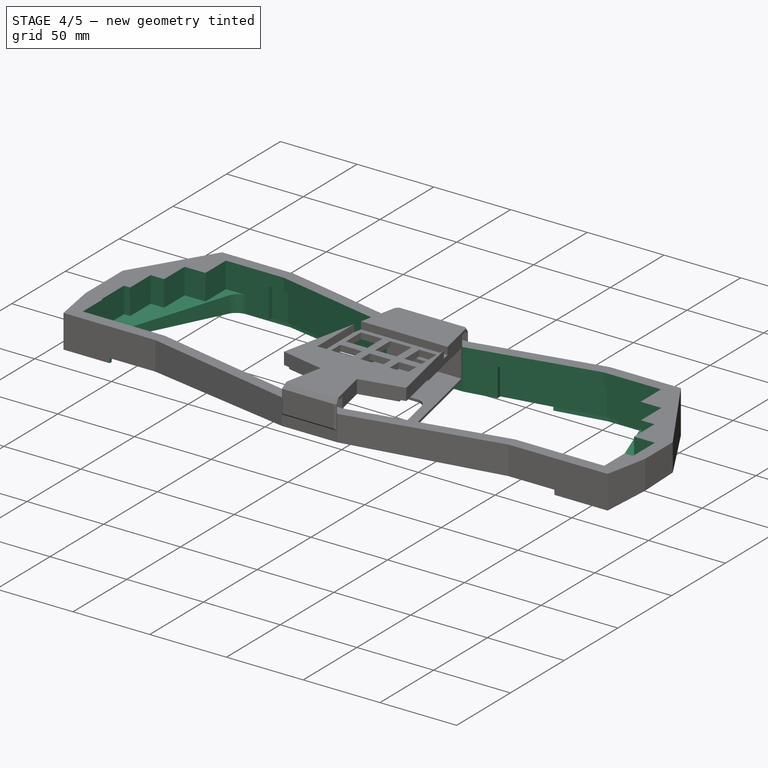
[diagram: stage 4 of 5 — iso view after this stage's code; geometry added in this stage tinted green]
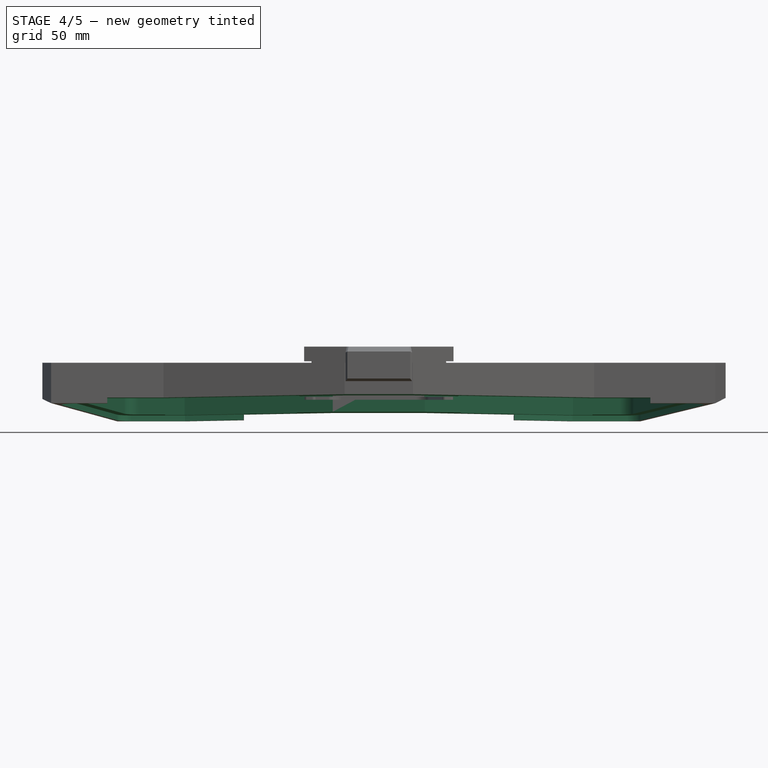
[diagram: stage 4 of 5 — front view after this stage's code; geometry added in this stage tinted green]
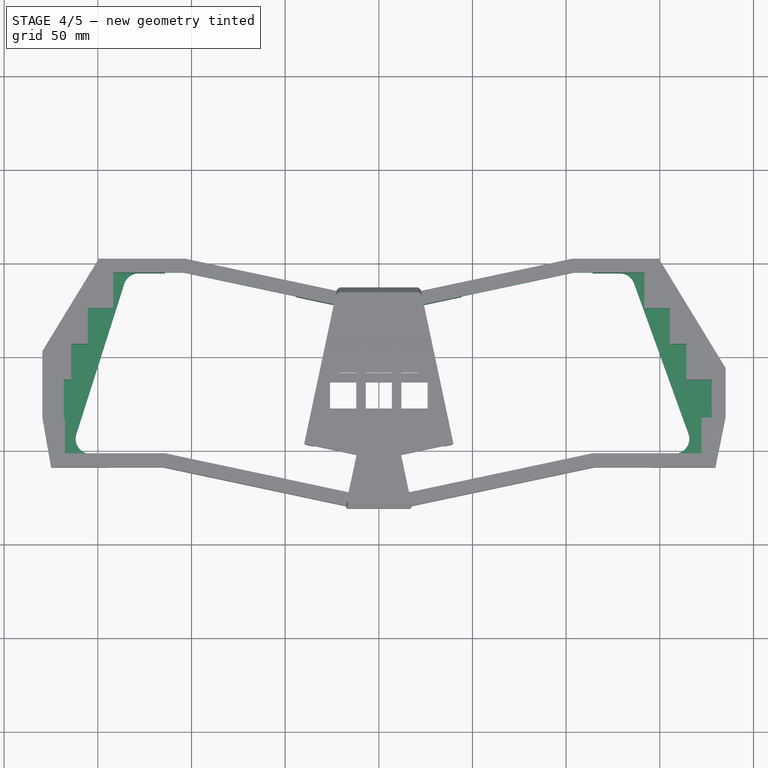
[diagram: stage 4 of 5 — top view after this stage's code; geometry added in this stage tinted green]
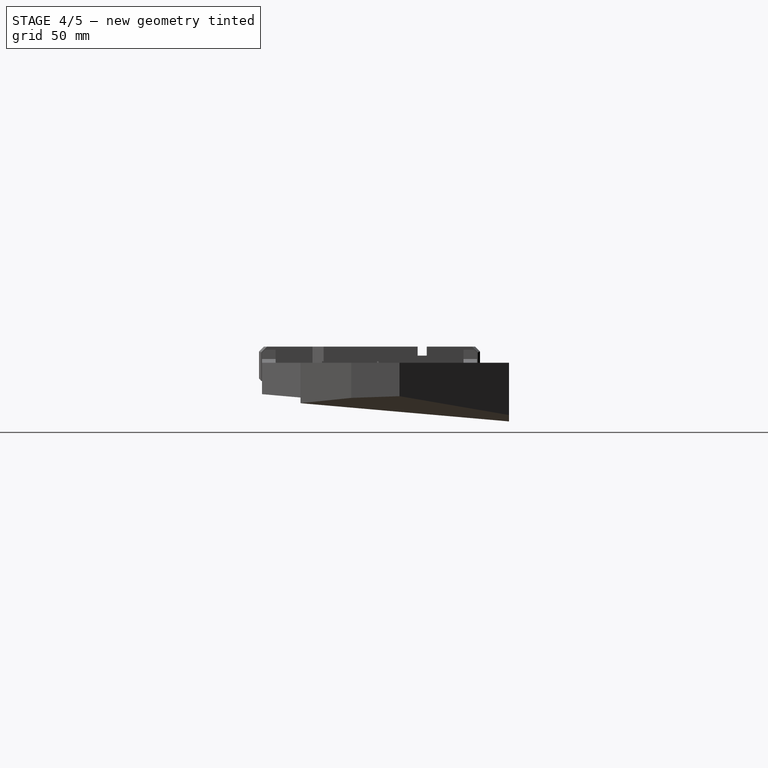
[diagram: stage 4 of 5 — right view after this stage's code; geometry added in this stage tinted green]
FEATURE [Sketcher::SketchObject] Sketch007
  ArcFitTolerance = 0
  AttachmentSupport = -> [Pocket002]
  ExternalGeometry = -> [Pocket002]
  FullyConstrained = false
  MakeInternals = false
  MapMode = 5
  Placement = pos=(0,-0.224915,-2.57079) rot=(1,0,0;3.05433rad)
  expr: Constraints[13] = Spreadsheet.ACRYL_BEZEL
  expr: Constraints[14] = Spreadsheet.ACRYL_BEZEL
  expr: Constraints[15] = Spreadsheet.ACRYL_BEZEL
  expr: Constraints[16] = Spreadsheet.ACRYL_BEZEL
  expr: Constraints[17] = Spreadsheet.ACRYL_BEZEL
  expr: Constraints[18] = Spreadsheet.ACRYL_BEZEL
  expr: Constraints[19] = Spreadsheet.ACRYL_BEZEL
  expr: Constraints[20] = Spreadsheet.ACRYL_BEZEL
  expr: Constraints[21] = Spreadsheet.ACRYL_BEZEL
  expr: Constraints[23] = Spreadsheet.ACRYL_BEZEL
  expr: Constraints[51] = Spreadsheet.ACRYL_FRONT_WINDOW
  expr: Constraints[52] = Spreadsheet.ACRYL_BEZEL
  expr: Constraints[61] = Spreadsheet.ACRYL_BACK_WINDOW
  sketch-geometry (34):
    g0: LineSegment StartX=-172.17 StartY=6.8588 StartZ=0 EndX=-144.955 EndY=6.8588 EndZ=0
    g1: LineSegment [constr] StartX=-18.0208 StartY=27.4965 StartZ=0 EndX=18.0208 EndY=27.4965 EndZ=0
    g2: LineSegment StartX=144.955 StartY=6.8588 StartZ=0 EndX=176.82 EndY=6.8588 EndZ=0
    g3: LineSegment StartX=176.82 StartY=6.8588 StartZ=0 EndX=138.09 EndY=-100.816 EndZ=0
    g4: LineSegment StartX=138.09 StartY=-100.816 StartZ=0 EndX=103.473 EndY=-100.816 EndZ=0
    g5: LineSegment StartX=103.473 StartY=-100.816 StartZ=0 EndX=72.3688 EndY=-94.1795 EndZ=0
    g6: LineSegment StartX=-72.3688 StartY=-94.1795 StartZ=0 EndX=-103.473 EndY=-100.816 EndZ=0
    g7: LineSegment StartX=-103.473 StartY=-100.816 StartZ=0 EndX=-138.032 EndY=-100.816 EndZ=0
    g8: LineSegment StartX=-138.032 StartY=-100.816 StartZ=0 EndX=-172.17 EndY=6.8588 EndZ=0
    g9: LineSegment StartX=-144.955 StartY=6.8588 StartZ=0 EndX=-144.955 EndY=8.8588 EndZ=0
    g10: LineSegment [constr] StartX=-144.955 StartY=8.8588 StartZ=0 EndX=-114.955 EndY=8.8588 EndZ=0
    g11: LineSegment [constr] StartX=-114.955 StartY=8.8588 StartZ=0 EndX=-85.6153 EndY=15.1189 EndZ=0
    g12: LineSegment [constr] StartX=-85.6153 StartY=15.1189 StartZ=0 EndX=-85.198 EndY=13.163 EndZ=0
    g13: LineSegment [constr] StartX=-85.198 StartY=13.163 StartZ=0 EndX=-18.0208 EndY=27.4965 EndZ=0
    g14: LineSegment StartX=144.955 StartY=6.8588 StartZ=0 EndX=144.955 EndY=8.8588 EndZ=0
    g15: LineSegment [constr] StartX=144.955 StartY=8.8588 StartZ=0 EndX=114.955 EndY=8.8588 EndZ=0
    g16: LineSegment [constr] StartX=114.955 StartY=8.8588 StartZ=0 EndX=85.6153 EndY=15.1189 EndZ=0
    g17: LineSegment [constr] StartX=85.6153 StartY=15.1189 StartZ=0 EndX=85.198 EndY=13.163 EndZ=0
    g18: LineSegment [constr] StartX=85.198 StartY=13.163 StartZ=0 EndX=18.0208 EndY=27.4965 EndZ=0
    g19: LineSegment StartX=72.3688 StartY=-94.1795 StartZ=0 EndX=71.9515 EndY=-96.1355 EndZ=0
    g20: LineSegment [constr] StartX=71.9515 StartY=-96.1355 StartZ=0 EndX=23.0522 EndY=-85.7019 EndZ=0
    g21: LineSegment [constr] StartX=-23.0522 StartY=-85.7019 StartZ=0 EndX=-71.9515 EndY=-96.1355 EndZ=0
    g22: LineSegment StartX=-71.9515 StartY=-96.1355 StartZ=0 EndX=-72.3688 EndY=-94.1795 EndZ=0
    g23: LineSegment StartX=-144.955 StartY=8.8588 StartZ=0 EndX=-144.955 EndY=29.4965 EndZ=0
    g24: LineSegment StartX=-144.955 StartY=29.4965 StartZ=0 EndX=-88.683 EndY=29.4965 EndZ=0
    g25: LineSegment [constr] StartX=-88.683 StartY=29.4965 StartZ=0 EndX=-85.6153 EndY=15.1189 EndZ=0
    g26: LineSegment [constr] StartX=85.6153 StartY=15.1189 StartZ=0 EndX=88.683 EndY=29.4965 EndZ=0
    g27: LineSegment StartX=88.683 StartY=29.4965 StartZ=0 EndX=144.955 EndY=29.4965 EndZ=0
    g28: LineSegment StartX=144.955 StartY=29.4965 StartZ=0 EndX=144.955 EndY=8.8588 EndZ=0
    g29: LineSegment StartX=-71.9515 StartY=-96.1355 StartZ=0 EndX=-70.526 EndY=-102.816 EndZ=0
    g30: LineSegment StartX=-70.526 StartY=-102.816 StartZ=0 EndX=70.526 EndY=-102.816 EndZ=0
    g31: LineSegment StartX=70.526 StartY=-102.816 StartZ=0 EndX=71.9515 EndY=-96.1355 EndZ=0
    g32: LineSegment StartX=-88.683 StartY=29.4965 StartZ=0 EndX=0 EndY=55.2006 EndZ=0
    g33: LineSegment StartX=0 StartY=55.2006 StartZ=0 EndX=88.683 EndY=29.4965 EndZ=0
  constraints (91):
    c: Horizontal(g2)
    c: Coincident(g2,g3)
    c: Coincident(g3,g4)
    c: Horizontal(g4)
    c: Coincident(g4,g5)
    c: Coincident(g6,g7)
    c: Horizontal(g7)
    c: Coincident(g7,g8)
    c: Coincident(g8,g0)
    c: Parallel(g8,g-4)
    c: Parallel(g-10,g3)
    c: Parallel(g-8,g5)
    c: Parallel(g-6,g6)
    c: Distance(g7,g-4) = 2
    c: Distance(g6,g-5) = 2
    c: Distance(g6,g-6) = 2
    c: Distance(g4,g-8) = 2
    c: Distance(g3,g-9) = 2
    c: Distance(g2,g-10) = 2
    c: Distance(g2,g-11) = 2
    c: Distance(g1,g-12) = 2
    c: Distance(g1,g-13) = 2
    c: Parallel(g0,g-3)
    c: Distance(g0,g-3) = 2
    c: Coincident(g0,g9)
    c: PointOnObject(g9,g-3)
    c: Coincident(g9,g10)
    c: Coincident(g10,g-14)
    c: Coincident(g10,g11)
    c: PointOnObject(g11,g-14)
    c: Coincident(g11,g12)
    c: Coincident(g12,g13)
    c: Coincident(g13,g1)
    c: Coincident(g2,g14)
    c: PointOnObject(g14,g-11)
    c: Coincident(g14,g15)
    c: Coincident(g15,g-12)
    c: Coincident(g15,g16)
    c: PointOnObject(g16,g-12)
    c: Coincident(g16,g17)
    c: Coincident(g17,g18)
    c: Coincident(g18,g1)
    c: Equal(g15,g16)
    c: Equal(g16,g11)
    c: Equal(g11,g10)
    c: Perpendicular(g-14,g12)
    c: Perpendicular(g9,g-3)
    c: Perpendicular(g14,g-11)
    c: Perpendicular(g17,g-12)
    c: Parallel(g-14,g13)
    c: Parallel(g18,g-12)
    c: Distance(g16) = 30
    c: Distance(g12) = 2
    c: Coincident(g5,g19)
    c: Coincident(g19,g20)
    c: PointOnObject(g21,g-6)
    c: Coincident(g21,g22)
    c: Coincident(g22,g6)
    c: Perpendicular(g-6,g22)
    c: Perpendicular(g19,g-8)
    c: Equal(g20,g21)
    c: Distance(g21) = 50
    c: Coincident(g21,g-7)
    c: Coincident(g20,g-8)
    c: Coincident(g9,g23)
    c: Vertical(g23)
    c: Coincident(g23,g24)
    c: Coincident(g24,g25)
    c: Coincident(g25,g12)
    c: Parallel(g12,g25)
    c: Coincident(g26,g17)
    c: Coincident(g27,g26)
    c: Coincident(g28,g27)
    c: Coincident(g28,g14)
    c: Vertical(g28)
    c: Parallel(g26,g17)
    c: Horizontal(g27)
    c: Horizontal(g24)
    c: Coincident(g29,g22)
    c: Coincident(g30,g29)
    c: Horizontal(g30)
    c: Coincident(g31,g30)
    c: Coincident(g31,g19)
    c: Parallel(g19,g31)
    c: Parallel(g22,g29)
    c: Horizontal(g29,g-6)
    c: PointOnObject(g19,g-8)
    c: Coincident(g32,g24)
    c: PointOnObject(g32,g-2)
    c: Coincident(g33,g32)
    c: Coincident(g33,g27)
FEATURE [PartDesign::Pocket] Pocket003  label="acryl bottom cutout"
  BaseFeature = -> Pocket002
  Direction = (0,0.0871557,0.996195)
  Length = 3
  Length2 = 5
  Profile = -> Sketch007
  ReferenceAxis = -> Sketch007 [N_Axis]
  Suppressed = false
  Type = 0
  expr: Length = Spreadsheet.ACRYL_THICKNESS
FEATURE [PartDesign::Pocket] Pocket005  label="key cutout"
  BaseFeature = -> Pocket003
  Direction = (0,0,-1)
  Length = 16.8
  Length2 = 5
  Profile = -> Sketch003
  ReferenceAxis = -> Sketch003 [N_Axis]
  Suppressed = false
  Type = 0
  expr: Length = Spreadsheet.CASE_INNER_HEIGHT
FEATURE [Sketcher::SketchObject] Sketch012  label="vorlage004"
  ArcFitTolerance = 0
  AttachmentOffset = pos=(0,0,-10) rot=(0,0,1;0rad)
  AttachmentSupport = -> [XY_Plane002]
  FullyConstrained = true
  MakeInternals = false
  MapMode = 5
  Placement = pos=(0,0,-10) rot=(0,0,1;0rad)
  expr: Constraints[141] = 90 - <<config>>.ALPHA_ANGLE
  expr: Constraints[142] = <<config>>.KEY_UNIT
  expr: Constraints[147] = <<config>>.MOD_OFFSET
  expr: Constraints[148] = 2.75 * <<config>>.KEY_UNIT
  expr: Constraints[149] = 3.25 * <<config>>.KEY_UNIT
  expr: Constraints[150] = 2.75 * <<config>>.KEY_UNIT
  expr: Constraints[151] = 2.5 * <<config>>.KEY_UNIT
  expr: Constraints[152] = 2 * <<config>>.KEY_UNIT
  expr: Constraints[162] = 3 * <<config>>.KEY_UNIT
  expr: Constraints[169] = <<config>>.HEADER_WIDTH
  expr: Constraints[170] = <<config>>.HEADER_LENGTH
  expr: Constraints[213] = Spreadsheet.CASE_BEZEL / 2 + Spreadsheet.PLATE_MARGIN
  expr: Constraints[232] = Spreadsheet.PLATE_OB
  expr: Constraints[233] = Spreadsheet.PLATE_OB
  expr: Constraints[234] = Spreadsheet.PLATE_OT
  expr: Constraints[235] = Spreadsheet.PLATE_OT
  expr: Constraints[236] = Spreadsheet.PLATE_IT
  expr: Constraints[237] = Spreadsheet.PLATE_IT
  expr: Constraints[238] = Spreadsheet.PLATE_IB
  expr: Constraints[239] = Spreadsheet.PLATE_IB
  expr: Constraints[44] = 2 * <<config>>.KEY_UNIT
  expr: Constraints[45] = 2.5 * <<config>>.KEY_UNIT
  expr: Constraints[46] = <<config>>.KEY_UNIT
  expr: Constraints[51] = 2.75 * <<config>>.KEY_UNIT
  expr: Constraints[52] = 2.75 * <<config>>.KEY_UNIT
  expr: Constraints[53] = 2.5 * <<config>>.KEY_UNIT
  expr: Constraints[59] = 90 - <<config>>.ALPHA_ANGLE
  expr: Constraints[62] = 4 * <<config>>.KEY_UNIT
  expr: Constraints[66] = 5 * <<config>>.KEY_UNIT
  expr: Constraints[67] = 5.5 * <<config>>.KEY_UNIT
  expr: Constraints[75] = <<config>>.KEY_UNIT
  expr: Constraints[76] = <<config>>.MOD_OFFSET
  expr: Constraints[84] = 4 * <<config>>.KEY_UNIT
  expr: Constraints[85] = 5.5 * <<config>>.KEY_UNIT
  expr: Constraints[86] = <<config>>.KEY_UNIT
  expr: Constraints[89] = 5 * <<config>>.KEY_UNIT
  sketch-geometry (82):
    g0: LineSegment [constr] StartX=-141.18 StartY=94.2 StartZ=0 EndX=-103.08 EndY=94.2 EndZ=0
    g1: LineSegment [constr] StartX=-103.08 StartY=94.2 StartZ=0 EndX=-103.08 EndY=75.15 EndZ=0
    g2: LineSegment [constr] StartX=-103.08 StartY=75.15 StartZ=0 EndX=-141.18 EndY=75.15 EndZ=0
    g3: LineSegment [constr] StartX=-141.18 StartY=75.15 StartZ=0 EndX=-141.18 EndY=94.2 EndZ=0
    g4: LineSegment [constr] StartX=-107.129 StartY=75.15 StartZ=0 EndX=-154.754 EndY=75.15 EndZ=0
    g5: LineSegment [constr] StartX=-154.754 StartY=75.15 StartZ=0 EndX=-154.754 EndY=56.1 EndZ=0
    g6: LineSegment [constr] StartX=-154.754 StartY=56.1 StartZ=0 EndX=-107.129 EndY=56.1 EndZ=0
    g7: LineSegment [constr] StartX=-107.129 StartY=56.1 StartZ=0 EndX=-107.129 EndY=75.15 EndZ=0
    g8: LineSegment [constr] StartX=-111.179 StartY=56.1 StartZ=0 EndX=-163.566 EndY=56.1 EndZ=0
    g9: LineSegment [constr] StartX=-163.566 StartY=56.1 StartZ=0 EndX=-163.566 EndY=37.05 EndZ=0
    g10: LineSegment [constr] StartX=-163.566 StartY=37.05 StartZ=0 EndX=-111.179 EndY=37.05 EndZ=0
    g11: LineSegment [constr] StartX=-111.179 StartY=37.05 StartZ=0 EndX=-111.179 EndY=56.1 EndZ=0
    g12: LineSegment [constr] StartX=-115.228 StartY=37.05 StartZ=0 EndX=-167.615 EndY=37.05 EndZ=0
    g13: LineSegment [constr] StartX=-167.615 StartY=37.05 StartZ=0 EndX=-167.615 EndY=18 EndZ=0
    g14: LineSegment [constr] StartX=-167.615 StartY=18 StartZ=0 EndX=-115.228 EndY=18 EndZ=0
    g15: LineSegment [constr] StartX=-115.228 StartY=18 StartZ=0 EndX=-115.228 EndY=37.05 EndZ=0
    g16: LineSegment [constr] StartX=-119.277 StartY=18 StartZ=0 EndX=-166.902 EndY=18 EndZ=0
    g17: LineSegment [constr] StartX=-166.902 StartY=18 StartZ=0 EndX=-166.902 EndY=-1.05 EndZ=0
    g18: LineSegment [constr] StartX=-166.902 StartY=-1.05 StartZ=0 EndX=-119.277 EndY=-1.05 EndZ=0
    g19: LineSegment [constr] StartX=-119.277 StartY=-1.05 StartZ=0 EndX=-119.277 EndY=18 EndZ=0
    g20: LineSegment [constr] StartX=-119.277 StartY=-1.05 StartZ=0 EndX=-99.2503 EndY=93.1686 EndZ=0
    g21: LineSegment [constr] StartX=-99.2503 StartY=93.1686 StartZ=0 EndX=-24.7155 EndY=77.3257 EndZ=0
    g22: LineSegment [constr] StartX=-119.054 StartY=0 StartZ=0 EndX=-16.5685 EndY=-21.7839 EndZ=0
    g23: LineSegment [constr] StartX=-16.5685 StartY=-21.7839 StartZ=0 EndX=-12.6078 EndY=-3.15024 EndZ=0
    g24: LineSegment [constr] StartX=-12.6078 StartY=-3.15024 StartZ=0 EndX=-40.5583 EndY=2.79084 EndZ=0
    g25: LineSegment [constr] StartX=-40.5583 StartY=2.79084 StartZ=0 EndX=-24.7155 EndY=77.3257 EndZ=0
    g26: LineSegment [constr] StartX=119.054 StartY=0 StartZ=0 EndX=16.5685 EndY=-21.7839 EndZ=0
    g27: LineSegment [constr] StartX=16.5685 StartY=-21.7839 StartZ=0 EndX=12.6078 EndY=-3.15024 EndZ=0
    g28: LineSegment [constr] StartX=12.6078 StartY=-3.15024 StartZ=0 EndX=40.5583 EndY=2.79084 EndZ=0
    g29: LineSegment [constr] StartX=40.5583 StartY=2.79084 StartZ=0 EndX=24.7155 EndY=77.3257 EndZ=0
    g30: LineSegment [constr] StartX=24.7155 StartY=77.3257 StartZ=0 EndX=99.2503 EndY=93.1686 EndZ=0
    g31: LineSegment [constr] StartX=99.2503 StartY=93.1686 StartZ=0 EndX=119.277 EndY=-1.05 EndZ=0
    g32: LineSegment [constr] StartX=119.277 StartY=-1.05 StartZ=0 EndX=171.665 EndY=-1.05 EndZ=0
    g33: LineSegment [constr] StartX=171.665 StartY=-1.05 StartZ=0 EndX=171.665 EndY=18 EndZ=0
    g34: LineSegment [constr] StartX=171.665 StartY=18 StartZ=0 EndX=119.277 EndY=18 EndZ=0
    g35: LineSegment [constr] StartX=119.277 StartY=18 StartZ=0 EndX=119.277 EndY=-1.05 EndZ=0
    g36: LineSegment [constr] StartX=115.228 StartY=18 StartZ=0 EndX=177.14 EndY=18 EndZ=0
    g37: LineSegment [constr] StartX=177.14 StartY=18 StartZ=0 EndX=177.14 EndY=37.05 EndZ=0
    g38: LineSegment [constr] StartX=177.14 StartY=37.05 StartZ=0 EndX=115.228 EndY=37.05 EndZ=0
    g39: LineSegment [constr] StartX=115.228 StartY=37.05 StartZ=0 EndX=115.228 EndY=18 EndZ=0
    g40: LineSegment [constr] StartX=111.179 StartY=37.05 StartZ=0 EndX=163.566 EndY=37.05 EndZ=0
    g41: LineSegment [constr] StartX=163.566 StartY=37.05 StartZ=0 EndX=163.566 EndY=56.1 EndZ=0
    g42: LineSegment [constr] StartX=163.566 StartY=56.1 StartZ=0 EndX=111.179 EndY=56.1 EndZ=0
    g43: LineSegment [constr] StartX=111.179 StartY=56.1 StartZ=0 EndX=111.179 EndY=37.05 EndZ=0
    g44: LineSegment [constr] StartX=107.129 StartY=56.1 StartZ=0 EndX=154.754 EndY=56.1 EndZ=0
    g45: LineSegment [constr] StartX=154.754 StartY=56.1 StartZ=0 EndX=154.754 EndY=75.15 EndZ=0
    g46: LineSegment [constr] StartX=154.754 StartY=75.15 StartZ=0 EndX=107.129 EndY=75.15 EndZ=0
    g47: LineSegment [constr] StartX=107.129 StartY=75.15 StartZ=0 EndX=107.129 EndY=56.1 EndZ=0
    g48: LineSegment [constr] StartX=103.08 StartY=75.15 StartZ=0 EndX=141.18 EndY=75.15 EndZ=0
    g49: LineSegment [constr] StartX=141.18 StartY=75.15 StartZ=0 EndX=141.18 EndY=94.2 EndZ=0
    g50: LineSegment [constr] StartX=141.18 StartY=94.2 StartZ=0 EndX=103.08 EndY=94.2 EndZ=0
    g51: LineSegment [constr] StartX=103.08 StartY=94.2 StartZ=0 EndX=103.08 EndY=75.15 EndZ=0
    g52: LineSegment [constr] StartX=-28.575 StartY=56.9148 StartZ=0 EndX=28.575 EndY=56.9148 EndZ=0
    g53: LineSegment [constr] StartX=28.575 StartY=56.9148 StartZ=0 EndX=28.575 EndY=-0.235239 EndZ=0
    g54: LineSegment [constr] StartX=28.575 StartY=-0.235239 StartZ=0 EndX=-28.575 EndY=-0.235239 EndZ=0
    g55: LineSegment [constr] StartX=-28.575 StartY=-0.235239 StartZ=0 EndX=-28.575 EndY=56.9148 EndZ=0
    g56: LineSegment [constr] StartX=-37.037 StartY=2.04236 StartZ=0 EndX=-28.575 EndY=41.853 EndZ=0
    g57: LineSegment [constr] StartX=-28.575 StartY=41.853 StartZ=0 EndX=-32.0963 EndY=42.6014 EndZ=0
    g58: Circle [constr] CenterX=-28.575 CenterY=56.9148 CenterZ=0 NormalX=0 NormalY=0 NormalZ=1 AngleXU=0 Radius=0.468477
    g59: Circle [constr] CenterX=-28.575 CenterY=-0.235239 CenterZ=0 NormalX=0 NormalY=0 NormalZ=1 AngleXU=0 Radius=0.468477
    g60: LineSegment StartX=-44.2784 StartY=81.4839 StartZ=0 EndX=-43.426 EndY=85.4943 EndZ=0
    g61: LineSegment StartX=-43.426 StartY=85.4943 StartZ=0 EndX=-103.672 EndY=98.3 EndZ=0
    g62: LineSegment StartX=-103.672 StartY=98.3 StartZ=0 EndX=-114.08 EndY=98.3 EndZ=0
    g63: LineSegment StartX=-114.08 StartY=98.3 StartZ=0 EndX=-114.08 EndY=94.2 EndZ=0
    g64: LineSegment StartX=-114.08 StartY=94.2 StartZ=0 EndX=-149.277 EndY=-1.05 EndZ=0
    g65: LineSegment StartX=-149.277 StartY=-1.05 StartZ=0 EndX=-149.277 EndY=-5.15 EndZ=0
    g66: LineSegment StartX=-149.277 StartY=-5.15 StartZ=0 EndX=-114.545 EndY=-5.15 EndZ=0
    g67: LineSegment StartX=-114.545 StartY=-5.15 StartZ=0 EndX=-42.8528 EndY=-20.3886 EndZ=0
    g68: LineSegment StartX=-42.8528 StartY=-20.3886 StartZ=0 EndX=-42.0003 EndY=-16.3782 EndZ=0
    g69: LineSegment StartX=-42.0003 StartY=-16.3782 StartZ=0 EndX=-111.179 EndY=37.05 EndZ=0
    g70: LineSegment StartX=-111.179 StartY=37.05 StartZ=0 EndX=-44.2784 EndY=81.4839 EndZ=0
    g71: LineSegment StartX=44.2784 StartY=81.4839 StartZ=0 EndX=43.426 EndY=85.4943 EndZ=0
    g72: LineSegment StartX=43.426 StartY=85.4943 StartZ=0 EndX=103.672 EndY=98.3 EndZ=0
    g73: LineSegment StartX=103.672 StartY=98.3 StartZ=0 EndX=114.08 EndY=98.3 EndZ=0
    g74: LineSegment StartX=114.08 StartY=98.3 StartZ=0 EndX=114.08 EndY=94.2 EndZ=0
    g75: LineSegment StartX=114.08 StartY=94.2 StartZ=0 EndX=149.277 EndY=-1.05 EndZ=0
    g76: LineSegment StartX=149.277 StartY=-1.05 StartZ=0 EndX=149.277 EndY=-5.15 EndZ=0
    g77: LineSegment StartX=149.277 StartY=-5.15 StartZ=0 EndX=114.545 EndY=-5.15 EndZ=0
    g78: LineSegment StartX=114.545 StartY=-5.15 StartZ=0 EndX=42.8528 EndY=-20.3886 EndZ=0
    g79: LineSegment StartX=42.8528 StartY=-20.3886 StartZ=0 EndX=42.0003 EndY=-16.3782 EndZ=0
    g80: LineSegment StartX=42.0003 StartY=-16.3782 StartZ=0 EndX=111.179 EndY=37.05 EndZ=0
    g81: LineSegment StartX=111.179 StartY=37.05 StartZ=0 EndX=44.2784 EndY=81.4839 EndZ=0
  constraints (241):
    c: Coincident(g0,g1)
    c: Coincident(g1,g2)
    c: Coincident(g2,g3)
    c: Coincident(g3,g0)
    c: Horizontal(g0)
    c: Horizontal(g2)
    c: Vertical(g1)
    c: Vertical(g3)
    c: Coincident(g4,g5)
    c: Coincident(g5,g6)
    c: Coincident(g6,g7)
    c: Coincident(g7,g4)
    c: Horizontal(g4)
    c: Horizontal(g6)
    c: Vertical(g5)
    c: Vertical(g7)
    c: PointOnObject(g4,g2)
    c: Coincident(g8,g9)
    c: Coincident(g9,g10)
    c: Coincident(g10,g11)
    c: Coincident(g11,g8)
    c: Horizontal(g8)
    c: Horizontal(g10)
    c: Vertical(g9)
    c: Vertical(g11)
    c: PointOnObject(g8,g6)
    c: Coincident(g12,g13)
    c: Coincident(g13,g14)
    c: Coincident(g14,g15)
    c: Coincident(g15,g12)
    c: Horizontal(g12)
    c: Horizontal(g14)
    c: Vertical(g13)
    c: Vertical(g15)
    c: PointOnObject(g12,g10)
    c: Coincident(g16,g17)
    c: Coincident(g17,g18)
    c: Coincident(g18,g19)
    c: Coincident(g19,g16)
    c: Horizontal(g16)
    c: Horizontal(g18)
    c: Vertical(g17)
    c: Vertical(g19)
    c: PointOnObject(g16,g14)
    c: DistanceX(g0,g0) = 38.1
    c: DistanceX(g4,g4) = 47.625
    c: DistanceY(g3,g3) = 19.05
    c: Equal(g3,g5)
    c: Equal(g5,g9)
    c: Equal(g9,g13)
    c: Equal(g13,g17)
    c: DistanceX(g8,g8) = 52.3875
    c: DistanceX(g12,g12) = 52.3875
    c: DistanceX(g16,g16) = 47.625
    c: Coincident(g20,g18)
    c: PointOnObject(g14,g20)
    c: PointOnObject(g10,g20)
    c: PointOnObject(g6,g20)
    c: PointOnObject(g1,g20)
    c: Angle(g-1,g20) = 1.36136
    c: Coincident(g20,g21)
    c: Perpendicular(g21,g20)
    c: Distance(g21) = 76.2
    c: PointOnObject(g22,g-1)
    c: PointOnObject(g22,g20)
    c: Perpendicular(g22,g20)
    c: Distance(g22,g20) = 95.25
    c: Distance(g22) = 104.775
    c: Coincident(g23,g22)
    c: Coincident(g24,g23)
    c: Coincident(g25,g24)
    c: Coincident(g25,g21)
    c: Perpendicular(g21,g25)
    c: Perpendicular(g23,g22)
    c: Perpendicular(g24,g23)
    c: Distance(g23) = 19.05
    c: DistanceY(g18,g22) = 1.05
    c: Coincident(g26,g27)
    c: Coincident(g27,g28)
    c: Coincident(g28,g29)
    c: Coincident(g29,g30)
    c: Perpendicular(g27,g26)
    c: Perpendicular(g28,g27)
    c: Perpendicular(g30,g29)
    c: Distance(g30) = 76.2
    c: Distance(g26) = 104.775
    c: Distance(g27) = 19.05
    c: Coincident(g31,g30)
    c: PointOnObject(g26,g31)
    c: Distance(g26,g30) = 95.25
    c: Perpendicular(g31,g26)
    c: Perpendicular(g31,g30)
    c: Coincident(g32,g33)
    c: Coincident(g33,g34)
    c: Coincident(g34,g35)
    c: Coincident(g35,g32)
    c: Horizontal(g32)
    c: Horizontal(g34)
    c: Vertical(g33)
    c: Vertical(g35)
    c: Coincident(g32,g31)
    c: Coincident(g36,g37)
    c: Coincident(g37,g38)
    c: Coincident(g38,g39)
    c: Coincident(g39,g36)
    c: Horizontal(g36)
    c: Horizontal(g38)
    c: Vertical(g37)
    c: Vertical(g39)
    c: PointOnObject(g36,g34)
    c: Coincident(g40,g41)
    c: Coincident(g41,g42)
    c: Coincident(g42,g43)
    c: Coincident(g43,g40)
    c: Horizontal(g40)
    c: Horizontal(g42)
    c: Vertical(g41)
    c: Vertical(g43)
    c: PointOnObject(g40,g38)
    c: Coincident(g44,g45)
    c: Coincident(g45,g46)
    c: Coincident(g46,g47)
    c: Coincident(g47,g44)
    c: Horizontal(g44)
    c: Horizontal(g46)
    c: Vertical(g45)
    c: Vertical(g47)
    c: PointOnObject(g44,g42)
    c: Coincident(g48,g49)
    c: Coincident(g49,g50)
    c: Coincident(g50,g51)
    c: Coincident(g51,g48)
    c: Horizontal(g48)
    c: Horizontal(g50)
    c: Vertical(g49)
    c: Vertical(g51)
    c: PointOnObject(g48,g46)
    c: PointOnObject(g48,g31)
    c: PointOnObject(g44,g31)
    c: PointOnObject(g40,g31)
    c: PointOnObject(g36,g31)
    c: Angle(g31,g-1) = 1.36136
    c: DistanceY(g49,g49) = 19.05
    c: Equal(g49,g45)
    c: Equal(g45,g41)
    c: Equal(g41,g37)
    c: Equal(g37,g33)
    c: DistanceY(g31,g26) = 1.05
    c: DistanceX(g34,g34) = 52.3875
    c: DistanceX(g38,g38) = 61.9125
    c: DistanceX(g42,g42) = 52.3875
    c: DistanceX(g46,g46) = 47.625
    c: DistanceX(g50,g50) = 38.1
    c: Coincident(g52,g53)
    c: Coincident(g53,g54)
    c: Coincident(g54,g55)
    c: Coincident(g55,g52)
    c: Horizontal(g54)
    c: Vertical(g53)
    c: Vertical(g55)
    c: Symmetric(g52,g52,g-2)
    c: Equal(g52,g53)
    c: DistanceX(g52,g52) = 57.15
    c: Symmetric(g22,g26,g-2)
    c: PointOnObject(g56,g24)
    c: Coincident(g57,g56)
    c: PointOnObject(g57,g25)
    c: Perpendicular(g57,g56)
    c: Perpendicular(g56,g24)
    c: Distance(g57) = 3.6
    c: Distance(g56) = 40.7
    c: PointOnObject(g56,g55)
    c: Coincident(g58,g52)
    c: Tangent(g58,g25)
    c: Coincident(g59,g54)
    c: Tangent(g59,g24)
    c: Equal(g59,g58)
    c: PointOnObject(g60,g21)
    c: Coincident(g60,g61)
    c: Coincident(g61,g62)
    c: Horizontal(g62)
    c: Coincident(g62,g63)
    c: PointOnObject(g63,g0)
    c: Vertical(g63)
    c: Coincident(g63,g64)
    c: PointOnObject(g64,g18)
    c: Coincident(g64,g65)
    c: Vertical(g65)
    c: Coincident(g65,g66)
    c: Horizontal(g66)
    c: Coincident(g66,g67)
    c: Coincident(g67,g68)
    c: PointOnObject(g68,g22)
    c: Coincident(g68,g69)
    c: Coincident(g69,g70)
    c: Coincident(g70,g60)
    c: PointOnObject(g71,g30)
    c: Coincident(g71,g72)
    c: Coincident(g72,g73)
    c: Horizontal(g73)
    c: Coincident(g73,g74)
    c: PointOnObject(g74,g50)
    c: Coincident(g74,g75)
    c: PointOnObject(g75,g32)
    c: Coincident(g75,g76)
    c: Coincident(g76,g77)
    c: Horizontal(g77)
    c: Coincident(g77,g78)
    c: Coincident(g78,g79)
    c: Coincident(g79,g80)
    c: Coincident(g80,g81)
    c: Coincident(g81,g71)
    c: Perpendicular(g21,g60)
    c: Distance(g63) = 4.1
    c: Equal(g63,g65)
    c: Equal(g65,g60)
    c: Equal(g60,g68)
    c: Equal(g68,g79)
    c: Equal(g79,g76)
    c: Equal(g76,g74)
    c: Equal(g74,g71)
    c: Perpendicular(g74,g50)
    c: Perpendicular(g71,g30)
    c: Parallel(g72,g30)
    c: Parallel(g21,g61)
    c: Parallel(g67,g22)
    c: Perpendicular(g22,g68)
    c: Perpendicular(g26,g79)
    c: PointOnObject(g79,g26)
    c: Perpendicular(g32,g76)
    c: Coincident(g69,g10)
    c: Coincident(g80,g40)
    c: DistanceX(g31,g75) = 30
    c: DistanceX(g64,g18) = 30
    c: DistanceX(g63,g0) = 11
    c: DistanceX(g50,g74) = 11
    c: Distance(g29,g71) = 20
    c: Distance(g21,g60) = 20
    c: Distance(g22,g68) = 26
    c: Distance(g26,g79) = 26
    c: Parallel(g78,g26)
FEATURE [PartDesign::Pocket] Pocket007  label="plate cutout"
  BaseFeature = -> Pocket005
  Direction = (0,0,-1)
  Length = 22
  Length2 = 5
  Profile = -> Sketch012
  ReferenceAxis = -> Sketch012 [N_Axis]
  Reversed = true
  Suppressed = false
  Type = 0
FEATURE [Sketcher::SketchObject] Sketch017  label="vorlage005"
  ArcFitTolerance = 0
  AttachmentOffset = pos=(0,0,40) rot=(0,0,1;0rad)
  AttachmentSupport = -> [XY_Plane002]
  FullyConstrained = false
  MakeInternals = false
  MapMode = 5
  Placement = pos=(0,0,40) rot=(0,0,1;0rad)
  expr: Constraints[141] = 90 - <<config>>.ALPHA_ANGLE
  expr: Constraints[142] = <<config>>.KEY_UNIT
  expr: Constraints[147] = <<config>>.MOD_OFFSET
  expr: Constraints[148] = 2.75 * <<config>>.KEY_UNIT
  expr: Constraints[149] = 3.25 * <<config>>.KEY_UNIT
  expr: Constraints[150] = 2.75 * <<config>>.KEY_UNIT
  expr: Constraints[151] = 2.5 * <<config>>.KEY_UNIT
  expr: Constraints[152] = 2 * <<config>>.KEY_UNIT
  expr: Constraints[162] = 3 * <<config>>.KEY_UNIT
  expr: Constraints[169] = <<config>>.HEADER_WIDTH
  expr: Constraints[170] = <<config>>.HEADER_LENGTH
  expr: Constraints[199] = Spreadsheet.CASE_MARGIN
  expr: Constraints[200] = Spreadsheet.CASE_MARGIN
  expr: Constraints[201] = Spreadsheet.CASE_MARGIN
  expr: Constraints[202] = Spreadsheet.CASE_MARGIN
  expr: Constraints[203] = Spreadsheet.CASE_MARGIN
  expr: Constraints[204] = Spreadsheet.CASE_MARGIN
  expr: Constraints[205] = Spreadsheet.CASE_MARGIN
  expr: Constraints[208] = Spreadsheet.CASE_MARGIN
  expr: Constraints[209] = Spreadsheet.CASE_MARGIN
  expr: Constraints[212] = Spreadsheet.CASE_MARGIN
  expr: Constraints[215] = Spreadsheet.CASE_BEZEL
  expr: Constraints[216] = Spreadsheet.CASE_BEZEL
  expr: Constraints[221] = Spreadsheet.CASE_BEZEL
  expr: Constraints[222] = Spreadsheet.CASE_BEZEL * 1.5
  expr: Constraints[223] = Spreadsheet.CASE_BEZEL * 1.2
  expr: Constraints[224] = Spreadsheet.CASE_BEZEL * 1.5
  expr: Constraints[230] = Spreadsheet.CASE_BEZEL
  expr: Constraints[233] = Spreadsheet.CASE_BEZEL
  expr: Constraints[234] = Spreadsheet.CASE_BEZEL
  expr: Constraints[235] = Spreadsheet.CASE_BEZEL
  expr: Constraints[243] = Spreadsheet.CASE_BEZEL - Spreadsheet.CASE_MARGIN
  expr: Constraints[244] = Spreadsheet.CASE_BEZEL - Spreadsheet.CASE_MARGIN
  expr: Constraints[44] = 2 * <<config>>.KEY_UNIT
  expr: Constraints[45] = 2.5 * <<config>>.KEY_UNIT
  expr: Constraints[46] = <<config>>.KEY_UNIT
  expr: Constraints[51] = 2.75 * <<config>>.KEY_UNIT
  expr: Constraints[52] = 2.75 * <<config>>.KEY_UNIT
  expr: Constraints[53] = 2.5 * <<config>>.KEY_UNIT
  expr: Constraints[59] = 90 - <<config>>.ALPHA_ANGLE
  expr: Constraints[62] = 4 * <<config>>.KEY_UNIT
  expr: Constraints[66] = 5 * <<config>>.KEY_UNIT
  expr: Constraints[67] = 5.5 * <<config>>.KEY_UNIT
  expr: Constraints[75] = <<config>>.KEY_UNIT
  expr: Constraints[76] = <<config>>.MOD_OFFSET
  expr: Constraints[84] = 4 * <<config>>.KEY_UNIT
  expr: Constraints[85] = 5.5 * <<config>>.KEY_UNIT
  expr: Constraints[86] = <<config>>.KEY_UNIT
  expr: Constraints[89] = 5 * <<config>>.KEY_UNIT
  sketch-geometry (84):
    g0: LineSegment [constr] StartX=-141.18 StartY=94.2 StartZ=0 EndX=-103.08 EndY=94.2 EndZ=0
    g1: LineSegment [constr] StartX=-103.08 StartY=94.2 StartZ=0 EndX=-103.08 EndY=75.15 EndZ=0
    g2: LineSegment [constr] StartX=-103.08 StartY=75.15 StartZ=0 EndX=-141.18 EndY=75.15 EndZ=0
    g3: LineSegment [constr] StartX=-141.18 StartY=75.15 StartZ=0 EndX=-141.18 EndY=94.2 EndZ=0
    g4: LineSegment [constr] StartX=-107.129 StartY=75.15 StartZ=0 EndX=-154.754 EndY=75.15 EndZ=0
    g5: LineSegment [constr] StartX=-154.754 StartY=75.15 StartZ=0 EndX=-154.754 EndY=56.1 EndZ=0
    g6: LineSegment [constr] StartX=-154.754 StartY=56.1 StartZ=0 EndX=-107.129 EndY=56.1 EndZ=0
    g7: LineSegment [constr] StartX=-107.129 StartY=56.1 StartZ=0 EndX=-107.129 EndY=75.15 EndZ=0
    g8: LineSegment [constr] StartX=-111.179 StartY=56.1 StartZ=0 EndX=-163.566 EndY=56.1 EndZ=0
    g9: LineSegment [constr] StartX=-163.566 StartY=56.1 StartZ=0 EndX=-163.566 EndY=37.05 EndZ=0
    g10: LineSegment [constr] StartX=-163.566 StartY=37.05 StartZ=0 EndX=-111.179 EndY=37.05 EndZ=0
    g11: LineSegment [constr] StartX=-111.179 StartY=37.05 StartZ=0 EndX=-111.179 EndY=56.1 EndZ=0
    g12: LineSegment [constr] StartX=-115.228 StartY=37.05 StartZ=0 EndX=-167.615 EndY=37.05 EndZ=0
    g13: LineSegment [constr] StartX=-167.615 StartY=37.05 StartZ=0 EndX=-167.615 EndY=18 EndZ=0
    g14: LineSegment [constr] StartX=-167.615 StartY=18 StartZ=0 EndX=-115.228 EndY=18 EndZ=0
    g15: LineSegment [constr] StartX=-115.228 StartY=18 StartZ=0 EndX=-115.228 EndY=37.05 EndZ=0
    g16: LineSegment [constr] StartX=-119.277 StartY=18 StartZ=0 EndX=-166.902 EndY=18 EndZ=0
    g17: LineSegment [constr] StartX=-166.902 StartY=18 StartZ=0 EndX=-166.902 EndY=-1.05 EndZ=0
    g18: LineSegment [constr] StartX=-166.902 StartY=-1.05 StartZ=0 EndX=-119.277 EndY=-1.05 EndZ=0
    g19: LineSegment [constr] StartX=-119.277 StartY=-1.05 StartZ=0 EndX=-119.277 EndY=18 EndZ=0
    g20: LineSegment [constr] StartX=-119.277 StartY=-1.05 StartZ=0 EndX=-99.2503 EndY=93.1686 EndZ=0
    g21: LineSegment [constr] StartX=-99.2503 StartY=93.1686 StartZ=0 EndX=-24.7155 EndY=77.3257 EndZ=0
    g22: LineSegment [constr] StartX=-119.054 StartY=0 StartZ=0 EndX=-16.5685 EndY=-21.7839 EndZ=0
    g23: LineSegment [constr] StartX=-16.5685 StartY=-21.7839 StartZ=0 EndX=-12.6078 EndY=-3.15024 EndZ=0
    g24: LineSegment [constr] StartX=-12.6078 StartY=-3.15024 StartZ=0 EndX=-40.5583 EndY=2.79084 EndZ=0
    g25: LineSegment [constr] StartX=-40.5583 StartY=2.79084 StartZ=0 EndX=-24.7155 EndY=77.3257 EndZ=0
    g26: LineSegment [constr] StartX=119.054 StartY=0 StartZ=0 EndX=16.5685 EndY=-21.7839 EndZ=0
    g27: LineSegment [constr] StartX=16.5685 StartY=-21.7839 StartZ=0 EndX=12.6078 EndY=-3.15024 EndZ=0
    g28: LineSegment [constr] StartX=12.6078 StartY=-3.15024 StartZ=0 EndX=40.5583 EndY=2.79084 EndZ=0
    g29: LineSegment [constr] StartX=40.5583 StartY=2.79084 StartZ=0 EndX=24.7155 EndY=77.3257 EndZ=0
    g30: LineSegment [constr] StartX=24.7155 StartY=77.3257 StartZ=0 EndX=99.2503 EndY=93.1686 EndZ=0
    g31: LineSegment [constr] StartX=99.2503 StartY=93.1686 StartZ=0 EndX=119.277 EndY=-1.05 EndZ=0
    g32: LineSegment [constr] StartX=119.277 StartY=-1.05 StartZ=0 EndX=171.665 EndY=-1.05 EndZ=0
    g33: LineSegment [constr] StartX=171.665 StartY=-1.05 StartZ=0 EndX=171.665 EndY=18 EndZ=0
    g34: LineSegment [constr] StartX=171.665 StartY=18 StartZ=0 EndX=119.277 EndY=18 EndZ=0
    g35: LineSegment [constr] StartX=119.277 StartY=18 StartZ=0 EndX=119.277 EndY=-1.05 EndZ=0
    g36: LineSegment [constr] StartX=115.228 StartY=18 StartZ=0 EndX=177.14 EndY=18 EndZ=0
    g37: LineSegment [constr] StartX=177.14 StartY=18 StartZ=0 EndX=177.14 EndY=37.05 EndZ=0
    g38: LineSegment [constr] StartX=177.14 StartY=37.05 StartZ=0 EndX=115.228 EndY=37.05 EndZ=0
    g39: LineSegment [constr] StartX=115.228 StartY=37.05 StartZ=0 EndX=115.228 EndY=18 EndZ=0
    g40: LineSegment [constr] StartX=111.179 StartY=37.05 StartZ=0 EndX=163.566 EndY=37.05 EndZ=0
    g41: LineSegment [constr] StartX=163.566 StartY=37.05 StartZ=0 EndX=163.566 EndY=56.1 EndZ=0
    g42: LineSegment [constr] StartX=163.566 StartY=56.1 StartZ=0 EndX=111.179 EndY=56.1 EndZ=0
    g43: LineSegment [constr] StartX=111.179 StartY=56.1 StartZ=0 EndX=111.179 EndY=37.05 EndZ=0
    g44: LineSegment [constr] StartX=107.129 StartY=56.1 StartZ=0 EndX=154.754 EndY=56.1 EndZ=0
    g45: LineSegment [constr] StartX=154.754 StartY=56.1 StartZ=0 EndX=154.754 EndY=75.15 EndZ=0
    g46: LineSegment [constr] StartX=154.754 StartY=75.15 StartZ=0 EndX=107.129 EndY=75.15 EndZ=0
    g47: LineSegment [constr] StartX=107.129 StartY=75.15 StartZ=0 EndX=107.129 EndY=56.1 EndZ=0
    g48: LineSegment [constr] StartX=103.08 StartY=75.15 StartZ=0 EndX=141.18 EndY=75.15 EndZ=0
    g49: LineSegment [constr] StartX=141.18 StartY=75.15 StartZ=0 EndX=141.18 EndY=94.2 EndZ=0
    g50: LineSegment [constr] StartX=141.18 StartY=94.2 StartZ=0 EndX=103.08 EndY=94.2 EndZ=0
    g51: LineSegment [constr] StartX=103.08 StartY=94.2 StartZ=0 EndX=103.08 EndY=75.15 EndZ=0
    g52: LineSegment [constr] StartX=-28.575 StartY=57.7047 StartZ=0 EndX=28.575 EndY=57.7047 EndZ=0
    g53: LineSegment [constr] StartX=28.575 StartY=57.7047 StartZ=0 EndX=28.575 EndY=0.554733 EndZ=0
    g54: LineSegment [constr] StartX=28.575 StartY=0.554733 StartZ=0 EndX=-28.575 EndY=0.554733 EndZ=0
    g55: LineSegment [constr] StartX=-28.575 StartY=0.554733 StartZ=0 EndX=-28.575 EndY=57.7047 EndZ=0
    g56: LineSegment [constr] StartX=-37.037 StartY=2.04236 StartZ=0 EndX=-28.575 EndY=41.853 EndZ=0
    g57: LineSegment [constr] StartX=-28.575 StartY=41.853 StartZ=0 EndX=-32.0963 EndY=42.6014 EndZ=0
    g58: Circle [constr] CenterX=-28.575 CenterY=57.7047 CenterZ=0 NormalX=0 NormalY=0 NormalZ=1 AngleXU=0 Radius=0.304232
    g59: Circle [constr] CenterX=-28.575 CenterY=0.554733 CenterZ=0 NormalX=0 NormalY=0 NormalZ=1 AngleXU=0 Radius=0.304232
    g60: LineSegment StartX=-164.781 StartY=-1.65 StartZ=0 EndX=-114.177 EndY=-1.65 EndZ=0
    g61: LineSegment StartX=-114.177 StartY=-1.65 StartZ=0 EndX=-16.6932 EndY=-22.3708 EndZ=0
    g62: LineSegment StartX=-16.6932 StartY=-22.3708 StartZ=0 EndX=16.6932 EndY=-22.3708 EndZ=0
    g63: LineSegment StartX=16.6932 StartY=-22.3708 StartZ=0 EndX=114.177 EndY=-1.65 EndZ=0
    g64: LineSegment StartX=114.177 StartY=-1.65 StartZ=0 EndX=169.125 EndY=-1.65 EndZ=0
    g65: LineSegment StartX=169.125 StartY=-1.65 StartZ=0 EndX=134.3 EndY=94.8 EndZ=0
    g66: LineSegment StartX=134.3 StartY=94.8 StartZ=0 EndX=104.04 EndY=94.8 EndZ=0
    g67: LineSegment StartX=104.04 StartY=94.8 StartZ=0 EndX=24.5907 EndY=77.9126 EndZ=0
    g68: LineSegment StartX=24.5907 StartY=77.9126 StartZ=0 EndX=-24.5907 EndY=77.9126 EndZ=0
    g69: LineSegment StartX=-24.5907 StartY=77.9126 StartZ=0 EndX=-104.04 EndY=94.8 EndZ=0
    g70: LineSegment StartX=-104.04 StartY=94.8 StartZ=0 EndX=-134.085 EndY=94.8 EndZ=0
    g71: LineSegment StartX=-134.085 StartY=94.8 StartZ=0 EndX=-164.781 EndY=-1.65 EndZ=0
    g72: Circle [constr] CenterX=-24.7155 CenterY=77.3257 CenterZ=0 NormalX=0 NormalY=0 NormalZ=1 AngleXU=0 Radius=0.6
    g73: Circle [constr] CenterX=-16.5685 CenterY=-21.7839 CenterZ=0 NormalX=0 NormalY=0 NormalZ=1 AngleXU=0 Radius=0.6
    g74: LineSegment [constr] StartX=-179.615 StartY=52.8353 StartZ=0 EndX=-149.496 EndY=102.2 EndZ=0
    g75: LineSegment [constr] StartX=-149.496 StartY=102.2 StartZ=0 EndX=-126.605 EndY=102.2 EndZ=0
    g76: Circle [constr] CenterX=-163.566 CenterY=56.1 CenterZ=0 NormalX=0 NormalY=0 NormalZ=1 AngleXU=0 Radius=12
    g77: Circle [constr] CenterX=-154.754 CenterY=75.15 CenterZ=0 NormalX=0 NormalY=0 NormalZ=1 AngleXU=0 Radius=9.6
    g78: LineSegment [constr] StartX=149.496 StartY=102.2 StartZ=0 EndX=112.924 EndY=102.2 EndZ=0
    g79: LineSegment [constr] StartX=149.496 StartY=102.2 StartZ=0 EndX=185.14 EndY=43.78 EndZ=0
    g80: Circle [constr] CenterX=163.566 CenterY=56.1 CenterZ=0 NormalX=0 NormalY=0 NormalZ=1 AngleXU=0 Radius=12
    g81: Circle [constr] CenterX=154.754 CenterY=75.15 CenterZ=0 NormalX=0 NormalY=0 NormalZ=1 AngleXU=0 Radius=9.6
    g82: LineSegment [constr] StartX=-139.496 StartY=102.2 StartZ=0 EndX=-174.902 EndY=-9.05 EndZ=0
    g83: LineSegment [constr] StartX=179.665 StartY=-9.05 StartZ=0 EndX=139.496 EndY=102.2 EndZ=0
  constraints (245):
    c: Coincident(g0,g1)
    c: Coincident(g1,g2)
    c: Coincident(g2,g3)
    c: Coincident(g3,g0)
    c: Horizontal(g0)
    c: Horizontal(g2)
    c: Vertical(g1)
    c: Vertical(g3)
    c: Coincident(g4,g5)
    c: Coincident(g5,g6)
    c: Coincident(g6,g7)
    c: Coincident(g7,g4)
    c: Horizontal(g4)
    c: Horizontal(g6)
    c: Vertical(g5)
    c: Vertical(g7)
    c: PointOnObject(g4,g2)
    c: Coincident(g8,g9)
    c: Coincident(g9,g10)
    c: Coincident(g10,g11)
    c: Coincident(g11,g8)
    c: Horizontal(g8)
    c: Horizontal(g10)
    c: Vertical(g9)
    c: Vertical(g11)
    c: PointOnObject(g8,g6)
    c: Coincident(g12,g13)
    c: Coincident(g13,g14)
    c: Coincident(g14,g15)
    c: Coincident(g15,g12)
    c: Horizontal(g12)
    c: Horizontal(g14)
    c: Vertical(g13)
    c: Vertical(g15)
    c: PointOnObject(g12,g10)
    c: Coincident(g16,g17)
    c: Coincident(g17,g18)
    c: Coincident(g18,g19)
    c: Coincident(g19,g16)
    c: Horizontal(g16)
    c: Horizontal(g18)
    c: Vertical(g17)
    c: Vertical(g19)
    c: PointOnObject(g16,g14)
    c: DistanceX(g0,g0) = 38.1
    c: DistanceX(g4,g4) = 47.625
    c: DistanceY(g3,g3) = 19.05
    c: Equal(g3,g5)
    c: Equal(g5,g9)
    c: Equal(g9,g13)
    c: Equal(g13,g17)
    c: DistanceX(g8,g8) = 52.3875
    c: DistanceX(g12,g12) = 52.3875
    c: DistanceX(g16,g16) = 47.625
    c: Coincident(g20,g18)
    c: PointOnObject(g14,g20)
    c: PointOnObject(g10,g20)
    c: PointOnObject(g6,g20)
    c: PointOnObject(g1,g20)
    c: Angle(g-1,g20) = 1.36136
    c: Coincident(g20,g21)
    c: Perpendicular(g21,g20)
    c: Distance(g21) = 76.2
    c: PointOnObject(g22,g-1)
    c: PointOnObject(g22,g20)
    c: Perpendicular(g22,g20)
    c: Distance(g22,g20) = 95.25
    c: Distance(g22) = 104.775
    c: Coincident(g23,g22)
    c: Coincident(g24,g23)
    c: Coincident(g25,g24)
    c: Coincident(g25,g21)
    c: Perpendicular(g21,g25)
    c: Perpendicular(g23,g22)
    c: Perpendicular(g24,g23)
    c: Distance(g23) = 19.05
    c: DistanceY(g18,g22) = 1.05
    c: Coincident(g26,g27)
    c: Coincident(g27,g28)
    c: Coincident(g28,g29)
    c: Coincident(g29,g30)
    c: Perpendicular(g27,g26)
    c: Perpendicular(g28,g27)
    c: Perpendicular(g30,g29)
    c: Distance(g30) = 76.2
    c: Distance(g26) = 104.775
    c: Distance(g27) = 19.05
    c: Coincident(g31,g30)
    c: PointOnObject(g26,g31)
    c: Distance(g26,g30) = 95.25
    c: Perpendicular(g31,g26)
    c: Perpendicular(g31,g30)
    c: Coincident(g32,g33)
    c: Coincident(g33,g34)
    c: Coincident(g34,g35)
    c: Coincident(g35,g32)
    c: Horizontal(g32)
    c: Horizontal(g34)
    c: Vertical(g33)
    c: Vertical(g35)
    c: Coincident(g32,g31)
    c: Coincident(g36,g37)
    c: Coincident(g37,g38)
    c: Coincident(g38,g39)
    c: Coincident(g39,g36)
    c: Horizontal(g36)
    c: Horizontal(g38)
    c: Vertical(g37)
    c: Vertical(g39)
    c: PointOnObject(g36,g34)
    c: Coincident(g40,g41)
    c: Coincident(g41,g42)
    c: Coincident(g42,g43)
    c: Coincident(g43,g40)
    c: Horizontal(g40)
    c: Horizontal(g42)
    c: Vertical(g41)
    c: Vertical(g43)
    c: PointOnObject(g40,g38)
    c: Coincident(g44,g45)
    c: Coincident(g45,g46)
    c: Coincident(g46,g47)
    c: Coincident(g47,g44)
    c: Horizontal(g44)
    c: Horizontal(g46)
    c: Vertical(g45)
    c: Vertical(g47)
    c: PointOnObject(g44,g42)
    c: Coincident(g48,g49)
    c: Coincident(g49,g50)
    c: Coincident(g50,g51)
    c: Coincident(g51,g48)
    c: Horizontal(g48)
    c: Horizontal(g50)
    c: Vertical(g49)
    c: Vertical(g51)
    c: PointOnObject(g48,g46)
    c: PointOnObject(g48,g31)
    c: PointOnObject(g44,g31)
    c: PointOnObject(g40,g31)
    c: PointOnObject(g36,g31)
    c: Angle(g31,g-1) = 1.36136
    c: DistanceY(g49,g49) = 19.05
    c: Equal(g49,g45)
    c: Equal(g45,g41)
    c: Equal(g41,g37)
    c: Equal(g37,g33)
    c: DistanceY(g31,g26) = 1.05
    c: DistanceX(g34,g34) = 52.3875
    c: DistanceX(g38,g38) = 61.9125
    c: DistanceX(g42,g42) = 52.3875
    c: DistanceX(g46,g46) = 47.625
    c: DistanceX(g50,g50) = 38.1
    c: Coincident(g52,g53)
    c: Coincident(g53,g54)
    c: Coincident(g54,g55)
    c: Coincident(g55,g52)
    c: Horizontal(g54)
    c: Vertical(g53)
    c: Vertical(g55)
    c: Symmetric(g52,g52,g-2)
    c: Equal(g52,g53)
    c: DistanceX(g52,g52) = 57.15
    c: Symmetric(g22,g26,g-2)
    c: PointOnObject(g56,g24)
    c: Coincident(g57,g56)
    c: PointOnObject(g57,g25)
    c: Perpendicular(g57,g56)
    c: Perpendicular(g56,g24)
    c: Distance(g57) = 3.6
    c: Distance(g56) = 40.7
    c: PointOnObject(g56,g55)
    c: Coincident(g58,g52)
    c: Tangent(g58,g25)
    c: Coincident(g59,g54)
    c: Tangent(g59,g24)
    c: Equal(g59,g58)
    c: Horizontal(g60)
    c: Coincident(g60,g61)
    c: Coincident(g61,g62)
    c: Horizontal(g62)
    c: Coincident(g62,g63)
    c: Coincident(g63,g64)
    c: Horizontal(g64)
    c: Coincident(g64,g65)
    c: Coincident(g65,g66)
    c: Horizontal(g66)
    c: Coincident(g66,g67)
    c: Coincident(g67,g68)
    c: Horizontal(g68)
    c: Coincident(g68,g69)
    c: Coincident(g69,g70)
    c: Coincident(g70,g71)
    c: Coincident(g71,g60)
    c: Horizontal(g70)
    c: Parallel(g61,g22)
    c: Parallel(g21,g69)
    c: Parallel(g30,g67)
    c: Parallel(g63,g26)
    c: Distance(g21,g69) = 0.6
    c: Distance(g29,g67) = 0.6
    c: Distance(g50,g66) = 0.6
    c: Distance(g31,g64) = 0.6
    c: Distance(g62,g26) = 0.6
    c: Distance(g18,g60) = 0.6
    c: Distance(g61,g22) = 0.6
    c: Coincident(g72,g21)
    c: PointOnObject(g68,g72)
    c: Distance(g21,g68) = 0.6
    c: Distance(g69,g0) = 0.6
    c: Coincident(g73,g22)
    c: PointOnObject(g61,g73)
    c: Distance(g61,g22) = 0.6
    c: Coincident(g74,g75)
    c: Horizontal(g75)
    c: DistanceY(g0,g74) = 8
    c: DistanceY(g82,g17) = 8
    c: Coincident(g76,g8)
    c: Tangent(g76,g74)
    c: Coincident(g77,g4)
    c: Tangent(g77,g74)
    c: DistanceX(g82,g17) = 8
    c: Radius(g76) = 12
    c: Radius(g77) = 9.6
    c: DistanceX(g74,g12) = 12
    c: Horizontal(g78)
    c: Coincident(g80,g41)
    c: Tangent(g80,g79)
    c: Coincident(g81,g45)
    c: Tangent(g81,g79)
    c: DistanceX(g37,g79) = 8
    c: Equal(g80,g76)
    c: Equal(g81,g77)
    c: DistanceY(g49,g78) = 8
    c: DistanceX(g32,g83) = 8
    c: DistanceY(g83,g32) = 8
    c: PointOnObject(g82,g75)
    c: PointOnObject(g83,g78)
    c: Coincident(g79,g78)
    c: DistanceX(g83,g78) = 10
    c: DistanceX(g74,g82) = 10
    c: Parallel(g82,g71)
    c: Parallel(g83,g65)
    c: Distance(g65,g83) = 7.4
    c: Distance(g70,g82) = 7.4
FEATURE [PartDesign::Pocket] Pocket012  label="middle cutout"
  BaseFeature = -> Pocket007
  Direction = (0,0,-1)
  Length = 59
  Length2 = 5
  Profile = -> Sketch017
  ReferenceAxis = -> Sketch017 [N_Axis]
  Suppressed = false
  Type = 0
FEATURE [Sketcher::SketchObject] Sketch024
  ArcFitTolerance = 0
  AttachmentSupport = -> [Pocket012]
  ExternalGeometry = -> [Pocket012]
  FullyConstrained = true
  MakeInternals = false
  MapMode = 5
  Placement = pos=(-5.99881,-28.2222,0) rot=(0.074116,0.705162,0.705162;2.99363rad)
  expr: Constraints[8] = Spreadsheet.PLATE_FIXER_CLAMP
  expr: Constraints[9] = Spreadsheet.PLATE_FIXER_CLAMP_HEIGHT
  sketch-geometry (4):
    g0: LineSegment StartX=47.6756 StartY=2.0229 StartZ=0 EndX=47.6756 EndY=6.0229 EndZ=0
    g1: LineSegment StartX=47.6756 StartY=6.0229 StartZ=0 EndX=62.6732 EndY=5.7501 EndZ=0
    g2: LineSegment StartX=62.6732 StartY=5.7501 StartZ=0 EndX=62.6732 EndY=1.7501 EndZ=0
    g3: LineSegment StartX=62.6732 StartY=1.7501 StartZ=0 EndX=47.6756 EndY=2.0229 EndZ=0
  constraints (12):
    c: PointOnObject(g0,g-4)
    c: Vertical(g0)
    c: Coincident(g0,g1)
    c: Coincident(g1,g2)
    c: PointOnObject(g2,g-4)
    c: Vertical(g2)
    c: Coincident(g2,g3)
    c: Parallel(g3,g1)
    c: Distance(g0,g2) = 15
    c: DistanceY(g2,g1) = 4
    c: Coincident(g0,g3)
    c: Distance(g0,g-4) = 10
FEATURE [PartDesign::Pad] Pad006  label="inner clamp 1"
  BaseFeature = -> Pocket012
  Direction = (0.207912,0.978148,0)
  Length = 3.5
  Length2 = 10
  Profile = -> Sketch024
  ReferenceAxis = -> Sketch024 [N_Axis]
  Suppressed = false
  Type = 0
  expr: Length = Spreadsheet.CASE_BEZEL / 2 + Spreadsheet.PLATE_MARGIN - Spreadsheet.CASE_MARGIN
FEATURE [Sketcher::SketchObject] Sketch025
  ArcFitTolerance = 0
  AttachmentSupport = -> [Pad006]
  ExternalGeometry = -> [Pad006]
  FullyConstrained = true
  MakeInternals = false
  MapMode = 5
  Placement = pos=(5.99881,-28.2222,0) rot=(-0.074116,0.705162,0.705162;3.28955rad)
  expr: Constraints[10] = Spreadsheet.PLATE_FIXER_CLAMP_HEIGHT
  expr: Constraints[11] = Spreadsheet.PLATE_FIXER_CLAMP
  sketch-geometry (4):
    g0: LineSegment StartX=-47.6756 StartY=2.0229 StartZ=0 EndX=-47.6756 EndY=6.0229 EndZ=0
    g1: LineSegment StartX=-47.6756 StartY=6.0229 StartZ=0 EndX=-62.6732 EndY=5.7501 EndZ=0
    g2: LineSegment StartX=-62.6732 StartY=5.7501 StartZ=0 EndX=-62.6732 EndY=1.7501 EndZ=0
    g3: LineSegment StartX=-62.6732 StartY=1.7501 StartZ=0 EndX=-47.6756 EndY=2.0229 EndZ=0
  constraints (12):
    c: PointOnObject(g0,g-4)
    c: Vertical(g0)
    c: Coincident(g0,g1)
    c: Coincident(g1,g2)
    c: PointOnObject(g2,g-4)
    c: Vertical(g2)
    c: Coincident(g2,g3)
    c: Coincident(g0,g3)
    c: Parallel(g3,g1)
    c: Distance(g-4,g0) = 10
    c: DistanceY(g0,g0) = 4
    c: Distance(g2,g0) = 15
FEATURE [PartDesign::Pad] Pad007  label="inner clamp 2"
  BaseFeature = -> Pad006
  Direction = (-0.207912,0.978148,0)
  Length = 3.5
  Length2 = 10
  Profile = -> Sketch025
  ReferenceAxis = -> Sketch025 [N_Axis]
  Suppressed = false
  Type = 0
  expr: Length = Spreadsheet.CASE_BEZEL / 2 + Spreadsheet.PLATE_MARGIN - Spreadsheet.CASE_MARGIN
FEATURE [Sketcher::SketchObject] Sketch026
  ArcFitTolerance = 0
  AttachmentSupport = -> [Pad007]
  ExternalGeometry = -> [Pad007]
  FullyConstrained = true
  MakeInternals = false
  MapMode = 5
  Placement = pos=(0,-5.15,0) rot=(0,0.707107,0.707107;3.14159rad)
  expr: Constraints[10] = Spreadsheet.PLATE_FIXER_CLAMP
  expr: Constraints[9] = Spreadsheet.PLATE_FIXER_CLAMP_HEIGHT
  sketch-geometry (4):
    g0: LineSegment StartX=139.277 StartY=0.871563 StartZ=0 EndX=124.277 EndY=0.871563 EndZ=0
    g1: LineSegment StartX=124.277 StartY=0.871563 StartZ=0 EndX=124.277 EndY=4.87156 EndZ=0
    g2: LineSegment StartX=124.277 StartY=4.87156 StartZ=0 EndX=139.277 EndY=4.87156 EndZ=0
    g3: LineSegment StartX=139.277 StartY=4.87156 StartZ=0 EndX=139.277 EndY=0.871563 EndZ=0
  constraints (12):
    c: Coincident(g0,g1)
    c: Coincident(g1,g2)
    c: Coincident(g2,g3)
    c: Coincident(g3,g0)
    c: Horizontal(g0)
    c: Horizontal(g2)
    c: Vertical(g1)
    c: Vertical(g3)
    c: PointOnObject(g0,g-3)
    c: DistanceY(g0,g1) = 4
    c: DistanceX(g0,g0) = 15
    c: DistanceX(g0,g-4) = 10
FEATURE [PartDesign::Pad] Pad008  label="outer clamp 1"
  BaseFeature = -> Pad007
  Direction = (0,1,-2e-16)
  Length = 3.5
  Length2 = 10
  Profile = -> Sketch026
  ReferenceAxis = -> Sketch026 [N_Axis]
  Suppressed = false
  Type = 0
  expr: Length = Spreadsheet.CASE_BEZEL / 2 + Spreadsheet.PLATE_MARGIN - Spreadsheet.CASE_MARGIN
FEATURE [Sketcher::SketchObject] Sketch027
  ArcFitTolerance = 0
  AttachmentSupport = -> [Pad008]
  ExternalGeometry = -> [Pad008]
  FullyConstrained = true
  MakeInternals = false
  MapMode = 5
  Placement = pos=(0,-5.15,0) rot=(0,0.707107,0.707107;3.14159rad)
  expr: Constraints[10] = Spreadsheet.PLATE_FIXER_CLAMP
  expr: Constraints[9] = Spreadsheet.PLATE_FIXER_CLAMP_HEIGHT
  sketch-geometry (4):
    g0: LineSegment StartX=-139.277 StartY=0.871563 StartZ=0 EndX=-124.277 EndY=0.871563 EndZ=0
    g1: LineSegment StartX=-124.277 StartY=0.871563 StartZ=0 EndX=-124.277 EndY=4.87156 EndZ=0
    g2: LineSegment StartX=-124.277 StartY=4.87156 StartZ=0 EndX=-139.277 EndY=4.87156 EndZ=0
    g3: LineSegment StartX=-139.277 StartY=4.87156 StartZ=0 EndX=-139.277 EndY=0.871563 EndZ=0
  constraints (12):
    c: Coincident(g0,g1)
    c: Coincident(g1,g2)
    c: Coincident(g2,g3)
    c: Coincident(g3,g0)
    c: Horizontal(g0)
    c: Horizontal(g2)
    c: Vertical(g1)
    c: Vertical(g3)
    c: PointOnObject(g0,g-4)
    c: DistanceY(g0,g1) = 4
    c: DistanceX(g0,g0) = 15
    c: DistanceX(g-4,g0) = 10
FEATURE [PartDesign::Pad] Pad009  label="outer clamp 2"
  BaseFeature = -> Pad008
  Direction = (0,1,-2e-16)
  Length = 3.5
  Length2 = 10
  Profile = -> Sketch027
  ReferenceAxis = -> Sketch027 [N_Axis]
  Suppressed = false
  Type = 0
  expr: Length = Spreadsheet.CASE_BEZEL / 2 + Spreadsheet.PLATE_MARGIN - Spreadsheet.CASE_MARGIN
FEATURE [PartDesign::Fillet] Fillet003  label="bottom plate fillet"
  Base = -> Pad009 [Edge169,Edge276,Edge182,Edge273,Edge136,Edge277,Edge123,Edge272]
  BaseFeature = -> Pad009
  Radius = 8
  SupportTransform = false
  Suppressed = false
  UseAllEdges = false
  expr: Radius = Spreadsheet.BOTTOM_RADIUS
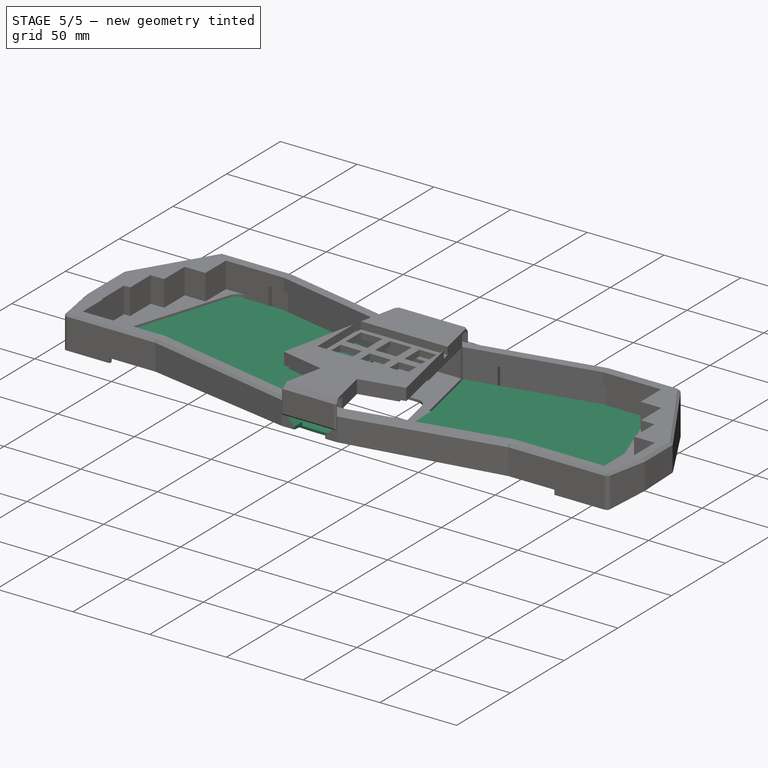
[diagram: stage 5 of 5 — iso view after this stage's code; geometry added in this stage tinted green]
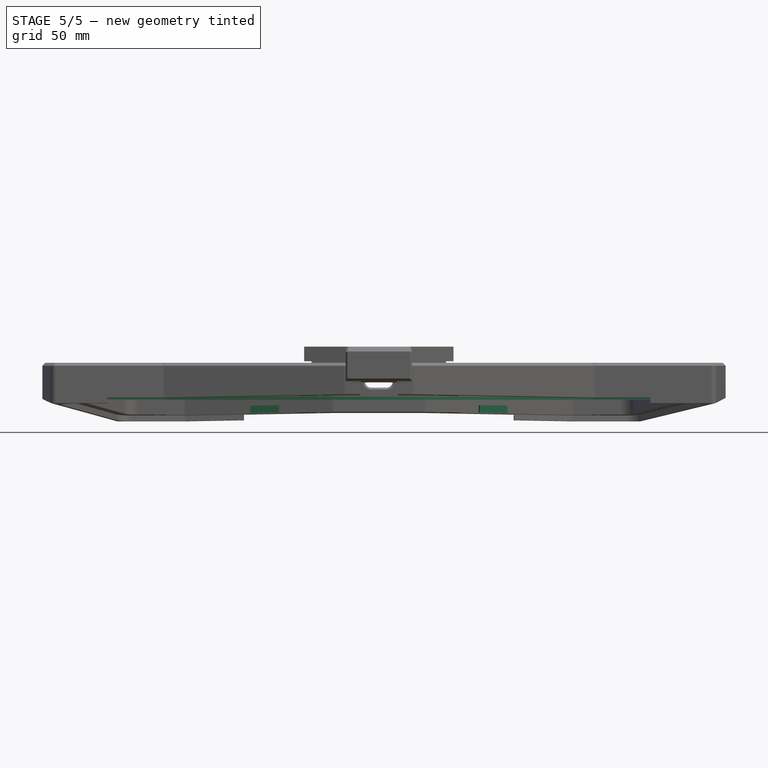
[diagram: stage 5 of 5 — front view after this stage's code; geometry added in this stage tinted green]
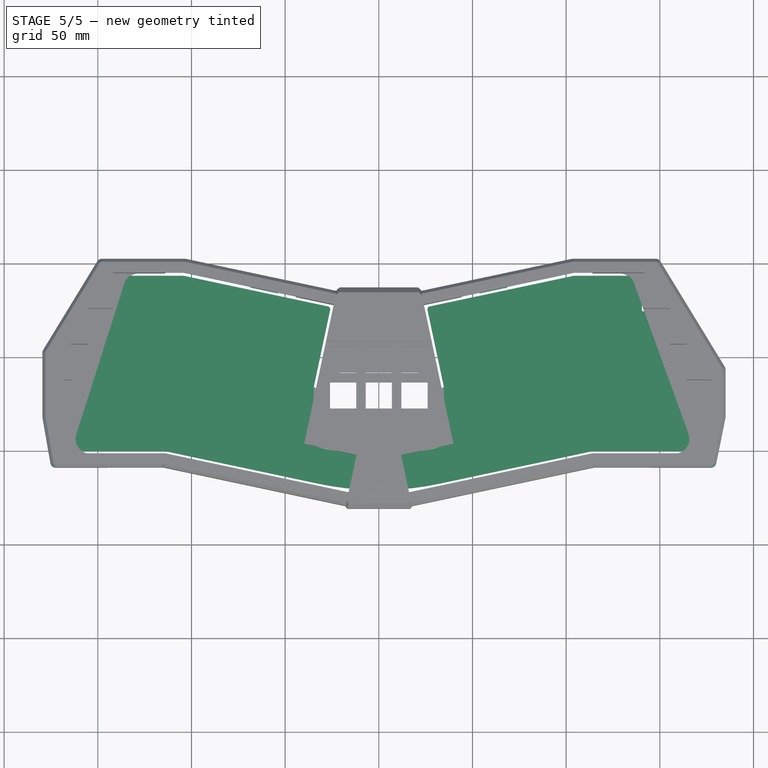
[diagram: stage 5 of 5 — top view after this stage's code; geometry added in this stage tinted green]
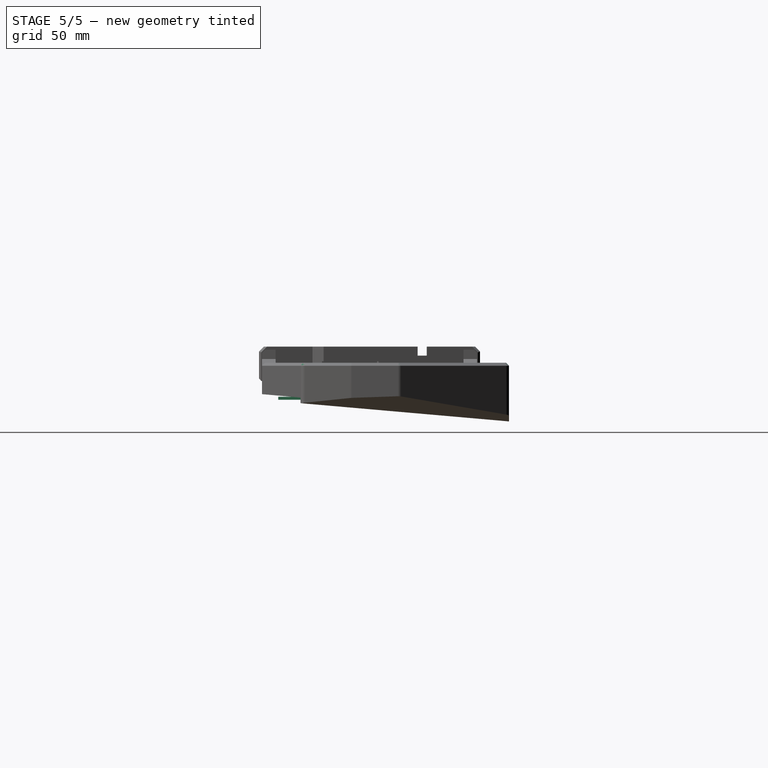
[diagram: stage 5 of 5 — right view after this stage's code; geometry added in this stage tinted green]
FEATURE [Sketcher::SketchObject] Sketch  label="vorlage001"
  ArcFitTolerance = 0
  AttachmentSupport = -> [XY_Plane]
  FullyConstrained = true
  MakeInternals = false
  MapMode = 5
  expr: Constraints[141] = 90 - <<config>>.ALPHA_ANGLE
  expr: Constraints[142] = <<config>>.KEY_UNIT
  expr: Constraints[147] = <<config>>.MOD_OFFSET
  expr: Constraints[148] = 2.75 * <<config>>.KEY_UNIT
  expr: Constraints[149] = 3.25 * <<config>>.KEY_UNIT
  expr: Constraints[150] = 2.75 * <<config>>.KEY_UNIT
  expr: Constraints[151] = 2.5 * <<config>>.KEY_UNIT
  expr: Constraints[152] = 2 * <<config>>.KEY_UNIT
  expr: Constraints[162] = 3 * <<config>>.KEY_UNIT
  expr: Constraints[169] = <<config>>.HEADER_WIDTH
  expr: Constraints[170] = <<config>>.HEADER_LENGTH
  expr: Constraints[44] = 2 * <<config>>.KEY_UNIT
  expr: Constraints[45] = 2.5 * <<config>>.KEY_UNIT
  expr: Constraints[46] = <<config>>.KEY_UNIT
  expr: Constraints[51] = 2.75 * <<config>>.KEY_UNIT
  expr: Constraints[52] = 2.75 * <<config>>.KEY_UNIT
  expr: Constraints[53] = 2.5 * <<config>>.KEY_UNIT
  expr: Constraints[59] = 90 - <<config>>.ALPHA_ANGLE
  expr: Constraints[62] = 4 * <<config>>.KEY_UNIT
  expr: Constraints[66] = 5 * <<config>>.KEY_UNIT
  expr: Constraints[67] = 5.5 * <<config>>.KEY_UNIT
  expr: Constraints[75] = <<config>>.KEY_UNIT
  expr: Constraints[76] = <<config>>.MOD_OFFSET
  expr: Constraints[84] = 4 * <<config>>.KEY_UNIT
  expr: Constraints[85] = 5.5 * <<config>>.KEY_UNIT
  expr: Constraints[86] = <<config>>.KEY_UNIT
  expr: Constraints[89] = 5 * <<config>>.KEY_UNIT
  sketch-geometry (60):
    g0: LineSegment [constr] StartX=-141.18 StartY=94.2 StartZ=0 EndX=-103.08 EndY=94.2 EndZ=0
    g1: LineSegment [constr] StartX=-103.08 StartY=94.2 StartZ=0 EndX=-103.08 EndY=75.15 EndZ=0
    g2: LineSegment [constr] StartX=-103.08 StartY=75.15 StartZ=0 EndX=-141.18 EndY=75.15 EndZ=0
    g3: LineSegment [constr] StartX=-141.18 StartY=75.15 StartZ=0 EndX=-141.18 EndY=94.2 EndZ=0
    g4: LineSegment [constr] StartX=-107.129 StartY=75.15 StartZ=0 EndX=-154.754 EndY=75.15 EndZ=0
    g5: LineSegment [constr] StartX=-154.754 StartY=75.15 StartZ=0 EndX=-154.754 EndY=56.1 EndZ=0
    g6: LineSegment [constr] StartX=-154.754 StartY=56.1 StartZ=0 EndX=-107.129 EndY=56.1 EndZ=0
    g7: LineSegment [constr] StartX=-107.129 StartY=56.1 StartZ=0 EndX=-107.129 EndY=75.15 EndZ=0
    g8: LineSegment [constr] StartX=-111.179 StartY=56.1 StartZ=0 EndX=-163.566 EndY=56.1 EndZ=0
    g9: LineSegment [constr] StartX=-163.566 StartY=56.1 StartZ=0 EndX=-163.566 EndY=37.05 EndZ=0
    g10: LineSegment [constr] StartX=-163.566 StartY=37.05 StartZ=0 EndX=-111.179 EndY=37.05 EndZ=0
    g11: LineSegment [constr] StartX=-111.179 StartY=37.05 StartZ=0 EndX=-111.179 EndY=56.1 EndZ=0
    g12: LineSegment [constr] StartX=-115.228 StartY=37.05 StartZ=0 EndX=-167.615 EndY=37.05 EndZ=0
    g13: LineSegment [constr] StartX=-167.615 StartY=37.05 StartZ=0 EndX=-167.615 EndY=18 EndZ=0
    g14: LineSegment [constr] StartX=-167.615 StartY=18 StartZ=0 EndX=-115.228 EndY=18 EndZ=0
    g15: LineSegment [constr] StartX=-115.228 StartY=18 StartZ=0 EndX=-115.228 EndY=37.05 EndZ=0
    g16: LineSegment [constr] StartX=-119.277 StartY=18 StartZ=0 EndX=-166.902 EndY=18 EndZ=0
    g17: LineSegment [constr] StartX=-166.902 StartY=18 StartZ=0 EndX=-166.902 EndY=-1.05 EndZ=0
    g18: LineSegment [constr] StartX=-166.902 StartY=-1.05 StartZ=0 EndX=-119.277 EndY=-1.05 EndZ=0
    g19: LineSegment [constr] StartX=-119.277 StartY=-1.05 StartZ=0 EndX=-119.277 EndY=18 EndZ=0
    g20: LineSegment [constr] StartX=-119.277 StartY=-1.05 StartZ=0 EndX=-99.2503 EndY=93.1686 EndZ=0
    g21: LineSegment [constr] StartX=-99.2503 StartY=93.1686 StartZ=0 EndX=-24.7155 EndY=77.3257 EndZ=0
    g22: LineSegment [constr] StartX=-119.054 StartY=0 StartZ=0 EndX=-16.5685 EndY=-21.7839 EndZ=0
    g23: LineSegment [constr] StartX=-16.5685 StartY=-21.7839 StartZ=0 EndX=-12.6078 EndY=-3.15024 EndZ=0
    g24: LineSegment [constr] StartX=-12.6078 StartY=-3.15024 StartZ=0 EndX=-40.5583 EndY=2.79084 EndZ=0
    g25: LineSegment [constr] StartX=-40.5583 StartY=2.79084 StartZ=0 EndX=-24.7155 EndY=77.3257 EndZ=0
    g26: LineSegment [constr] StartX=119.054 StartY=0 StartZ=0 EndX=16.5685 EndY=-21.7839 EndZ=0
    g27: LineSegment [constr] StartX=16.5685 StartY=-21.7839 StartZ=0 EndX=12.6078 EndY=-3.15024 EndZ=0
    g28: LineSegment [constr] StartX=12.6078 StartY=-3.15024 StartZ=0 EndX=40.5583 EndY=2.79084 EndZ=0
    g29: LineSegment [constr] StartX=40.5583 StartY=2.79084 StartZ=0 EndX=24.7155 EndY=77.3257 EndZ=0
    g30: LineSegment [constr] StartX=24.7155 StartY=77.3257 StartZ=0 EndX=99.2503 EndY=93.1686 EndZ=0
    g31: LineSegment [constr] StartX=99.2503 StartY=93.1686 StartZ=0 EndX=119.277 EndY=-1.05 EndZ=0
    g32: LineSegment [constr] StartX=119.277 StartY=-1.05 StartZ=0 EndX=171.665 EndY=-1.05 EndZ=0
    g33: LineSegment [constr] StartX=171.665 StartY=-1.05 StartZ=0 EndX=171.665 EndY=18 EndZ=0
    g34: LineSegment [constr] StartX=171.665 StartY=18 StartZ=0 EndX=119.277 EndY=18 EndZ=0
    g35: LineSegment [constr] StartX=119.277 StartY=18 StartZ=0 EndX=119.277 EndY=-1.05 EndZ=0
    g36: LineSegment [constr] StartX=115.228 StartY=18 StartZ=0 EndX=177.14 EndY=18 EndZ=0
    g37: LineSegment [constr] StartX=177.14 StartY=18 StartZ=0 EndX=177.14 EndY=37.05 EndZ=0
    g38: LineSegment [constr] StartX=177.14 StartY=37.05 StartZ=0 EndX=115.228 EndY=37.05 EndZ=0
    g39: LineSegment [constr] StartX=115.228 StartY=37.05 StartZ=0 EndX=115.228 EndY=18 EndZ=0
    g40: LineSegment [constr] StartX=111.179 StartY=37.05 StartZ=0 EndX=163.566 EndY=37.05 EndZ=0
    g41: LineSegment [constr] StartX=163.566 StartY=37.05 StartZ=0 EndX=163.566 EndY=56.1 EndZ=0
    g42: LineSegment [constr] StartX=163.566 StartY=56.1 StartZ=0 EndX=111.179 EndY=56.1 EndZ=0
    g43: LineSegment [constr] StartX=111.179 StartY=56.1 StartZ=0 EndX=111.179 EndY=37.05 EndZ=0
    g44: LineSegment [constr] StartX=107.129 StartY=56.1 StartZ=0 EndX=154.754 EndY=56.1 EndZ=0
    g45: LineSegment [constr] StartX=154.754 StartY=56.1 StartZ=0 EndX=154.754 EndY=75.15 EndZ=0
    g46: LineSegment [constr] StartX=154.754 StartY=75.15 StartZ=0 EndX=107.129 EndY=75.15 EndZ=0
    g47: LineSegment [constr] StartX=107.129 StartY=75.15 StartZ=0 EndX=107.129 EndY=56.1 EndZ=0
    g48: LineSegment [constr] StartX=103.08 StartY=75.15 StartZ=0 EndX=141.18 EndY=75.15 EndZ=0
    g49: LineSegment [constr] StartX=141.18 StartY=75.15 StartZ=0 EndX=141.18 EndY=94.2 EndZ=0
    g50: LineSegment [constr] StartX=141.18 StartY=94.2 StartZ=0 EndX=103.08 EndY=94.2 EndZ=0
    g51: LineSegment [constr] StartX=103.08 StartY=94.2 StartZ=0 EndX=103.08 EndY=75.15 EndZ=0
    g52: LineSegment [constr] StartX=-28.575 StartY=57.7047 StartZ=0 EndX=28.575 EndY=57.7047 EndZ=0
    g53: LineSegment [constr] StartX=28.575 StartY=57.7047 StartZ=0 EndX=28.575 EndY=0.554733 EndZ=0
    g54: LineSegment [constr] StartX=28.575 StartY=0.554733 StartZ=0 EndX=-28.575 EndY=0.554733 EndZ=0
    g55: LineSegment [constr] StartX=-28.575 StartY=0.554733 StartZ=0 EndX=-28.575 EndY=57.7047 EndZ=0
    g56: LineSegment [constr] StartX=-37.037 StartY=2.04236 StartZ=0 EndX=-28.575 EndY=41.853 EndZ=0
    g57: LineSegment [constr] StartX=-28.575 StartY=41.853 StartZ=0 EndX=-32.0963 EndY=42.6014 EndZ=0
    g58: Circle [constr] CenterX=-28.575 CenterY=57.7047 CenterZ=0 NormalX=0 NormalY=0 NormalZ=1 AngleXU=0 Radius=0.304232
    g59: Circle [constr] CenterX=-28.575 CenterY=0.554733 CenterZ=0 NormalX=0 NormalY=0 NormalZ=1 AngleXU=0 Radius=0.304232
  constraints (177):
    c: Coincident(g0,g1)
    c: Coincident(g1,g2)
    c: Coincident(g2,g3)
    c: Coincident(g3,g0)
    c: Horizontal(g0)
    c: Horizontal(g2)
    c: Vertical(g1)
    c: Vertical(g3)
    c: Coincident(g4,g5)
    c: Coincident(g5,g6)
    c: Coincident(g6,g7)
    c: Coincident(g7,g4)
    c: Horizontal(g4)
    c: Horizontal(g6)
    c: Vertical(g5)
    c: Vertical(g7)
    c: PointOnObject(g4,g2)
    c: Coincident(g8,g9)
    c: Coincident(g9,g10)
    c: Coincident(g10,g11)
    c: Coincident(g11,g8)
    c: Horizontal(g8)
    c: Horizontal(g10)
    c: Vertical(g9)
    c: Vertical(g11)
    c: PointOnObject(g8,g6)
    c: Coincident(g12,g13)
    c: Coincident(g13,g14)
    c: Coincident(g14,g15)
    c: Coincident(g15,g12)
    c: Horizontal(g12)
    c: Horizontal(g14)
    c: Vertical(g13)
    c: Vertical(g15)
    c: PointOnObject(g12,g10)
    c: Coincident(g16,g17)
    c: Coincident(g17,g18)
    c: Coincident(g18,g19)
    c: Coincident(g19,g16)
    c: Horizontal(g16)
    c: Horizontal(g18)
    c: Vertical(g17)
    c: Vertical(g19)
    c: PointOnObject(g16,g14)
    c: DistanceX(g0,g0) = 38.1
    c: DistanceX(g4,g4) = 47.625
    c: DistanceY(g3,g3) = 19.05
    c: Equal(g3,g5)
    c: Equal(g5,g9)
    c: Equal(g9,g13)
    c: Equal(g13,g17)
    c: DistanceX(g8,g8) = 52.3875
    c: DistanceX(g12,g12) = 52.3875
    c: DistanceX(g16,g16) = 47.625
    c: Coincident(g20,g18)
    c: PointOnObject(g14,g20)
    c: PointOnObject(g10,g20)
    c: PointOnObject(g6,g20)
    c: PointOnObject(g1,g20)
    c: Angle(g-1,g20) = 1.36136
    c: Coincident(g20,g21)
    c: Perpendicular(g21,g20)
    c: Distance(g21) = 76.2
    c: PointOnObject(g22,g-1)
    c: PointOnObject(g22,g20)
    c: Perpendicular(g22,g20)
    c: Distance(g22,g20) = 95.25
    c: Distance(g22) = 104.775
    c: Coincident(g23,g22)
    c: Coincident(g24,g23)
    c: Coincident(g25,g24)
    c: Coincident(g25,g21)
    c: Perpendicular(g21,g25)
    c: Perpendicular(g23,g22)
    c: Perpendicular(g24,g23)
    c: Distance(g23) = 19.05
    c: DistanceY(g18,g22) = 1.05
    c: Coincident(g26,g27)
    c: Coincident(g27,g28)
    c: Coincident(g28,g29)
    c: Coincident(g29,g30)
    c: Perpendicular(g27,g26)
    c: Perpendicular(g28,g27)
    c: Perpendicular(g30,g29)
    c: Distance(g30) = 76.2
    c: Distance(g26) = 104.775
    c: Distance(g27) = 19.05
    c: Coincident(g31,g30)
    c: PointOnObject(g26,g31)
    c: Distance(g26,g30) = 95.25
    c: Perpendicular(g31,g26)
    c: Perpendicular(g31,g30)
    c: Coincident(g32,g33)
    c: Coincident(g33,g34)
    c: Coincident(g34,g35)
    c: Coincident(g35,g32)
    c: Horizontal(g32)
    c: Horizontal(g34)
    c: Vertical(g33)
    c: Vertical(g35)
    c: Coincident(g32,g31)
    c: Coincident(g36,g37)
    c: Coincident(g37,g38)
    c: Coincident(g38,g39)
    c: Coincident(g39,g36)
    c: Horizontal(g36)
    c: Horizontal(g38)
    c: Vertical(g37)
    c: Vertical(g39)
    c: PointOnObject(g36,g34)
    c: Coincident(g40,g41)
    c: Coincident(g41,g42)
    c: Coincident(g42,g43)
    c: Coincident(g43,g40)
    c: Horizontal(g40)
    c: Horizontal(g42)
    c: Vertical(g41)
    c: Vertical(g43)
    c: PointOnObject(g40,g38)
    c: Coincident(g44,g45)
    c: Coincident(g45,g46)
    c: Coincident(g46,g47)
    c: Coincident(g47,g44)
    c: Horizontal(g44)
    c: Horizontal(g46)
    c: Vertical(g45)
    c: Vertical(g47)
    c: PointOnObject(g44,g42)
    c: Coincident(g48,g49)
    c: Coincident(g49,g50)
    c: Coincident(g50,g51)
    c: Coincident(g51,g48)
    c: Horizontal(g48)
    c: Horizontal(g50)
    c: Vertical(g49)
    c: Vertical(g51)
    c: PointOnObject(g48,g46)
    c: PointOnObject(g48,g31)
    c: PointOnObject(g44,g31)
    c: PointOnObject(g40,g31)
    c: PointOnObject(g36,g31)
    c: Angle(g31,g-1) = 1.36136
    c: DistanceY(g49,g49) = 19.05
    c: Equal(g49,g45)
    c: Equal(g45,g41)
    c: Equal(g41,g37)
    c: Equal(g37,g33)
    c: DistanceY(g31,g26) = 1.05
    c: DistanceX(g34,g34) = 52.3875
    c: DistanceX(g38,g38) = 61.9125
    c: DistanceX(g42,g42) = 52.3875
    c: DistanceX(g46,g46) = 47.625
    c: DistanceX(g50,g50) = 38.1
    c: Coincident(g52,g53)
    c: Coincident(g53,g54)
    c: Coincident(g54,g55)
    c: Coincident(g55,g52)
    c: Horizontal(g54)
    c: Vertical(g53)
    c: Vertical(g55)
    c: Symmetric(g52,g52,g-2)
    c: Equal(g52,g53)
    c: DistanceX(g52,g52) = 57.15
    c: Symmetric(g22,g26,g-2)
    c: PointOnObject(g56,g24)
    c: Coincident(g57,g56)
    c: PointOnObject(g57,g25)
    c: Perpendicular(g57,g56)
    c: Perpendicular(g56,g24)
    c: Distance(g57) = 3.6
    c: Distance(g56) = 40.7
    c: PointOnObject(g56,g55)
    c: Coincident(g58,g52)
    c: Tangent(g58,g25)
    c: Coincident(g59,g54)
    c: Tangent(g59,g24)
    c: Equal(g59,g58)
FEATURE [PartDesign::Body] Body  label="vorlage"
  AllowCompound = false
  Group = -> [Sketch]
  Origin = -> Origin
FEATURE [Spreadsheet::Sheet] Spreadsheet  label="config"
  cells = A1='KEY AND SWITCH CONFIG; D1='CASE CONFIG; A2='KEY_UNIT; B2(KEY_UNIT)=19.05; D2='CASE_MARGIN; E2(CASE_MARGIN)=0.6; F2='CASE_INNER_HEIGHT; G2(CASE_INNER_HEIGHT)=16.8; H2='CORE_MARGIN; I2(CORE_MARGIN)=1.6; A3='KEY_HOLE; B3(KEY_HOLE)=14; D3='CASE_BEZEL; E3(CASE_BEZEL)=8; F3='CASE_TYPING_ANGLE; G3(CASE_TYPING_ANGLE)=5; A4='KEY_SPACING; B4(KEY_SPACING)==B2 - B3; D4='CASE_CHAMFER; E4(CASE_CHAMFER)=1.6; F4='CASE_RADIUS; G4(CASE_RADIUS)=3; A6='PLATE CONFIG; D6='PCB CONFIG; G6='BOTTOM PLATE CONFIG; I6='M3 THREAD; A7='ALPHA_ANGLE; B7(ALPHA_ANGLE)=12; D7='HEADER_WIDTH; E7(HEADER_WIDTH)=3.6; G7='ACRYL_THICKNESS; H7(ACRYL_THICKNESS)=3; I7='THREAD_HOLE; J7(THREAD_HOLE)=4; A8='MOD_OFFSET; B8(MOD_OFFSET)=1.05; D8='HEADER_LENGTH; E8(HEADER_LENGTH)=40.7; G8='ACRYL_BEZEL; H8(ACRYL_BEZEL)=2; I8='THREAD_MARGIN; J8(THREAD_MARGIN)=1.6; A9='SYMMETRY_SPACING; B9(SYMMETRY_SPACING)=120; D9='HEADER_PINS; E9(HEADER_PINS)=16; G9='ACRYL_FRONT_WINDOW; H9(ACRYL_FRONT_WINDOW)=30; I9='THREAD_DEPTH; J9(THREAD_DEPTH)=6.7; A10='PLATE_THICKNESS; B10(PLATE_THICKNESS)=1.5; D10='PCB_OFFSET; E10(PCB_OFFSET)==19.05 / 24; G10='ACRYL_FRONT_WINDOW; H10(ACRYL_BACK_WINDOW)=50; I10='THREAD_DEPTH_SHORT; J10(THREAD_DEPTH_SHORT)=4; A11='PLATE_OT; B11(PLATE_OT)=11; D11='PCB_RADIUS; E11(PCB_RADIUS)=1.5; G11='BOTTOM_RADIUS_LARGE; H11(BOTTOM_RADIUS)=8; I11='THREAD_SCREW; J11(THREAD_SCREW)=3; A12='PLATE_OB; B12(PLATE_OB)=30; D12='PCB_RADIUS_SMALL; E12(PCB_RADIUS_SMALL)=0.8; A13='PLATE_IT; B13(PLATE_IT)=20; D13='PCB_RADIUS_LARGE; E13(PCB_RADIUS_LARGE)=1.5; A14='PLATE_IB; B14(PLATE_IB)=26; D14='PCB_HEIGHT_OFFSET; E14(PCB_HEIGHT_OFFSET)=5.4; A15='PLATE_MARGIN; B15(PLATE_MARGIN)=0.1; D15='PCB_CORE_OFFSET; E15(PCB_CORE_OFFSET)=0.525; A16='PLATE_FIXER_INTERFERENCE_TOP; B16(PLATE_FIXER_INTERFERENCE_TOP)=0.1; D16='PCB_CORE_HEIGHT_OFFSET; E16(PCB_CORE_HEIGHT_OFFSET)==PCB_HEIGHT_OFFSET + 1.6 + 3; A17='PLATE_FIXER_INTERFERENCE_BOTTOM; B17(PLATE_FIXER_INTERFERENCE_BOTTOM)=0.1; D17='USB_C_HEIGHT_OFFSET (from core pcb); E17(USB_C_HEIGHT_OFFSET)=7; A18='PLATE_RUBBER; B18(PLATE_RUBBER)=0; D18='PCB_CORE_SPACING; E18(PCB_CORE_SPACING)=1; A19='PLATE_FIXER_CLAMP; B19(PLATE_FIXER_CLAMP)=15; A20='PLATE_FIXER_CLAMP; B20(PLATE_FIXER_CLAMP_HEIGHT)=4; A21='PLATE_FIXER_CLAMP_HEIGHT_TOLERANCE; B21(PLATE_FIXER_CLAMP_HEIGHT_TOLERANCE)=0.4
FEATURE [Sketcher::SketchObject] Sketch001  label="pcb001"
  ArcFitTolerance = 0
  AttachmentSupport = -> [XY_Plane001]
  FullyConstrained = true
  MakeInternals = false
  MapMode = 5
  expr: Constraints[140] = 90 - <<config>>.ALPHA_ANGLE
  expr: Constraints[141] = <<config>>.KEY_UNIT
  expr: Constraints[146] = <<config>>.MOD_OFFSET
  expr: Constraints[147] = 2.75 * <<config>>.KEY_UNIT
  expr: Constraints[148] = 3.25 * <<config>>.KEY_UNIT
  expr: Constraints[149] = 2.75 * <<config>>.KEY_UNIT
  expr: Constraints[150] = 2.5 * <<config>>.KEY_UNIT
  expr: Constraints[151] = 2 * <<config>>.KEY_UNIT
  expr: Constraints[161] = 3 * <<config>>.KEY_UNIT
  expr: Constraints[168] = <<config>>.HEADER_WIDTH
  expr: Constraints[169] = <<config>>.HEADER_LENGTH
  expr: Constraints[227] = <<config>>.PCB_OFFSET
  expr: Constraints[228] = <<config>>.PCB_OFFSET
  expr: Constraints[229] = <<config>>.PCB_OFFSET
  expr: Constraints[230] = <<config>>.PCB_OFFSET
  expr: Constraints[231] = <<config>>.PCB_OFFSET
  expr: Constraints[232] = <<config>>.PCB_OFFSET
  expr: Constraints[233] = <<config>>.PCB_OFFSET
  expr: Constraints[234] = <<config>>.PCB_OFFSET
  expr: Constraints[235] = <<config>>.PCB_OFFSET
  expr: Constraints[236] = <<config>>.PCB_OFFSET
  expr: Constraints[237] = <<config>>.PCB_OFFSET
  expr: Constraints[238] = <<config>>.PCB_OFFSET
  expr: Constraints[239] = <<config>>.PCB_OFFSET
  expr: Constraints[240] = <<config>>.PCB_OFFSET
  expr: Constraints[241] = <<config>>.PCB_OFFSET
  expr: Constraints[242] = <<config>>.PCB_OFFSET
  expr: Constraints[243] = <<config>>.PCB_OFFSET
  expr: Constraints[244] = <<config>>.PCB_OFFSET
  expr: Constraints[245] = <<config>>.PCB_OFFSET
  expr: Constraints[246] = <<config>>.PCB_OFFSET
  expr: Constraints[247] = <<config>>.PCB_OFFSET
  expr: Constraints[248] = <<config>>.PCB_OFFSET
  expr: Constraints[249] = <<config>>.PCB_OFFSET
  expr: Constraints[250] = <<config>>.PCB_OFFSET
  expr: Constraints[251] = <<config>>.PCB_OFFSET
  expr: Constraints[252] = <<config>>.PCB_OFFSET
  expr: Constraints[253] = <<config>>.PCB_OFFSET
  expr: Constraints[258] = <<config>>.PCB_OFFSET
  expr: Constraints[269] = Spreadsheet.HEADER_WIDTH
  expr: Constraints[272] = 12 * 2.54
  expr: Constraints[43] = 2 * <<config>>.KEY_UNIT
  expr: Constraints[44] = 2.5 * <<config>>.KEY_UNIT
  expr: Constraints[45] = <<config>>.KEY_UNIT
  expr: Constraints[50] = 2.75 * <<config>>.KEY_UNIT
  expr: Constraints[51] = 2.75 * <<config>>.KEY_UNIT
  expr: Constraints[52] = 2.5 * <<config>>.KEY_UNIT
  expr: Constraints[58] = 90 - <<config>>.ALPHA_ANGLE
  expr: Constraints[61] = 4 * <<config>>.KEY_UNIT
  expr: Constraints[65] = 5 * <<config>>.KEY_UNIT
  expr: Constraints[66] = 5.5 * <<config>>.KEY_UNIT
  expr: Constraints[74] = <<config>>.KEY_UNIT
  expr: Constraints[75] = <<config>>.MOD_OFFSET
  expr: Constraints[83] = 4 * <<config>>.KEY_UNIT
  expr: Constraints[84] = 5.5 * <<config>>.KEY_UNIT
  expr: Constraints[85] = <<config>>.KEY_UNIT
  expr: Constraints[88] = 5 * <<config>>.KEY_UNIT
  sketch-geometry (105):
    g0: LineSegment [constr] StartX=-141.18 StartY=94.2 StartZ=0 EndX=-103.08 EndY=94.2 EndZ=0
    g1: LineSegment [constr] StartX=-103.08 StartY=94.2 StartZ=0 EndX=-103.08 EndY=75.15 EndZ=0
    g2: LineSegment [constr] StartX=-103.08 StartY=75.15 StartZ=0 EndX=-141.18 EndY=75.15 EndZ=0
    g3: LineSegment [constr] StartX=-141.18 StartY=75.15 StartZ=0 EndX=-141.18 EndY=94.2 EndZ=0
    g4: LineSegment [constr] StartX=-107.129 StartY=75.15 StartZ=0 EndX=-154.754 EndY=75.15 EndZ=0
    g5: LineSegment [constr] StartX=-154.754 StartY=75.15 StartZ=0 EndX=-154.754 EndY=56.1 EndZ=0
    g6: LineSegment [constr] StartX=-154.754 StartY=56.1 StartZ=0 EndX=-107.129 EndY=56.1 EndZ=0
    g7: LineSegment [constr] StartX=-107.129 StartY=56.1 StartZ=0 EndX=-107.129 EndY=75.15 EndZ=0
    g8: LineSegment [constr] StartX=-111.179 StartY=56.1 StartZ=0 EndX=-163.566 EndY=56.1 EndZ=0
    g9: LineSegment [constr] StartX=-163.566 StartY=56.1 StartZ=0 EndX=-163.566 EndY=37.05 EndZ=0
    g10: LineSegment [constr] StartX=-163.566 StartY=37.05 StartZ=0 EndX=-111.179 EndY=37.05 EndZ=0
    g11: LineSegment [constr] StartX=-111.179 StartY=37.05 StartZ=0 EndX=-111.179 EndY=56.1 EndZ=0
    g12: LineSegment [constr] StartX=-115.228 StartY=37.05 StartZ=0 EndX=-167.615 EndY=37.05 EndZ=0
    g13: LineSegment [constr] StartX=-167.615 StartY=37.05 StartZ=0 EndX=-167.615 EndY=18 EndZ=0
    g14: LineSegment [constr] StartX=-167.615 StartY=18 StartZ=0 EndX=-115.228 EndY=18 EndZ=0
    g15: LineSegment [constr] StartX=-115.228 StartY=18 StartZ=0 EndX=-115.228 EndY=37.05 EndZ=0
    g16: LineSegment [constr] StartX=-119.277 StartY=18 StartZ=0 EndX=-166.902 EndY=18 EndZ=0
    g17: LineSegment [constr] StartX=-166.902 StartY=18 StartZ=0 EndX=-166.902 EndY=-1.05 EndZ=0
    g18: LineSegment [constr] StartX=-166.902 StartY=-1.05 StartZ=0 EndX=-119.277 EndY=-1.05 EndZ=0
    g19: LineSegment [constr] StartX=-119.277 StartY=-1.05 StartZ=0 EndX=-119.277 EndY=18 EndZ=0
    g20: LineSegment [constr] StartX=-119.277 StartY=-1.05 StartZ=0 EndX=-99.2503 EndY=93.1686 EndZ=0
    g21: LineSegment [constr] StartX=-99.2503 StartY=93.1686 StartZ=0 EndX=-24.7155 EndY=77.3257 EndZ=0
    g22: LineSegment [constr] StartX=-119.054 StartY=0 StartZ=0 EndX=-16.5685 EndY=-21.7839 EndZ=0
    g23: LineSegment [constr] StartX=-16.5685 StartY=-21.7839 StartZ=0 EndX=-12.6078 EndY=-3.15024 EndZ=0
    g24: LineSegment [constr] StartX=-12.6078 StartY=-3.15024 StartZ=0 EndX=-40.5583 EndY=2.79084 EndZ=0
    g25: LineSegment [constr] StartX=-40.5583 StartY=2.79084 StartZ=0 EndX=-24.7155 EndY=77.3257 EndZ=0
    g26: LineSegment [constr] StartX=119.054 StartY=0 StartZ=0 EndX=16.5685 EndY=-21.7839 EndZ=0
    g27: LineSegment [constr] StartX=16.5685 StartY=-21.7839 StartZ=0 EndX=12.6078 EndY=-3.15024 EndZ=0
    g28: LineSegment [constr] StartX=12.6078 StartY=-3.15024 StartZ=0 EndX=40.5583 EndY=2.79084 EndZ=0
    g29: LineSegment [constr] StartX=40.5583 StartY=2.79084 StartZ=0 EndX=24.7155 EndY=77.3257 EndZ=0
    g30: LineSegment [constr] StartX=24.7155 StartY=77.3257 StartZ=0 EndX=99.2503 EndY=93.1686 EndZ=0
    g31: LineSegment [constr] StartX=99.2503 StartY=93.1686 StartZ=0 EndX=119.277 EndY=-1.05 EndZ=0
    g32: LineSegment [constr] StartX=119.277 StartY=-1.05 StartZ=0 EndX=171.665 EndY=-1.05 EndZ=0
    g33: LineSegment [constr] StartX=171.665 StartY=-1.05 StartZ=0 EndX=171.665 EndY=18 EndZ=0
    g34: LineSegment [constr] StartX=171.665 StartY=18 StartZ=0 EndX=119.277 EndY=18 EndZ=0
    g35: LineSegment [constr] StartX=119.277 StartY=18 StartZ=0 EndX=119.277 EndY=-1.05 EndZ=0
    g36: LineSegment [constr] StartX=115.228 StartY=18 StartZ=0 EndX=177.14 EndY=18 EndZ=0
    g37: LineSegment [constr] StartX=177.14 StartY=18 StartZ=0 EndX=177.14 EndY=37.05 EndZ=0
    g38: LineSegment [constr] StartX=177.14 StartY=37.05 StartZ=0 EndX=115.228 EndY=37.05 EndZ=0
    g39: LineSegment [constr] StartX=115.228 StartY=37.05 StartZ=0 EndX=115.228 EndY=18 EndZ=0
    g40: LineSegment [constr] StartX=111.179 StartY=37.05 StartZ=0 EndX=163.566 EndY=37.05 EndZ=0
    g41: LineSegment [constr] StartX=163.566 StartY=37.05 StartZ=0 EndX=163.566 EndY=56.1 EndZ=0
    g42: LineSegment [constr] StartX=163.566 StartY=56.1 StartZ=0 EndX=111.179 EndY=56.1 EndZ=0
    g43: LineSegment [constr] StartX=111.179 StartY=56.1 StartZ=0 EndX=111.179 EndY=37.05 EndZ=0
    g44: LineSegment [constr] StartX=107.129 StartY=56.1 StartZ=0 EndX=154.754 EndY=56.1 EndZ=0
    g45: LineSegment [constr] StartX=154.754 StartY=56.1 StartZ=0 EndX=154.754 EndY=75.15 EndZ=0
    g46: LineSegment [constr] StartX=154.754 StartY=75.15 StartZ=0 EndX=107.129 EndY=75.15 EndZ=0
    g47: LineSegment [constr] StartX=107.129 StartY=75.15 StartZ=0 EndX=107.129 EndY=56.1 EndZ=0
    g48: LineSegment [constr] StartX=103.08 StartY=75.15 StartZ=0 EndX=141.18 EndY=75.15 EndZ=0
    g49: LineSegment [constr] StartX=141.18 StartY=75.15 StartZ=0 EndX=141.18 EndY=94.2 EndZ=0
    g50: LineSegment [constr] StartX=141.18 StartY=94.2 StartZ=0 EndX=103.08 EndY=94.2 EndZ=0
    g51: LineSegment [constr] StartX=103.08 StartY=94.2 StartZ=0 EndX=103.08 EndY=75.15 EndZ=0
    g52: LineSegment [constr] StartX=-28.575 StartY=57.7047 StartZ=0 EndX=28.575 EndY=57.7047 EndZ=0
    g53: LineSegment [constr] StartX=28.575 StartY=57.7047 StartZ=0 EndX=28.575 EndY=0.554733 EndZ=0
    g54: LineSegment [constr] StartX=28.575 StartY=0.554733 StartZ=0 EndX=-28.575 EndY=0.554733 EndZ=0
    g55: LineSegment [constr] StartX=-28.575 StartY=0.554733 StartZ=0 EndX=-28.575 EndY=57.7047 EndZ=0
    g56: LineSegment [constr] StartX=-37.037 StartY=2.04236 StartZ=0 EndX=-28.575 EndY=41.853 EndZ=0
    g57: LineSegment [constr] StartX=-28.575 StartY=41.853 StartZ=0 EndX=-32.0963 EndY=42.6014 EndZ=0
    g58: Circle [constr] CenterX=-28.575 CenterY=57.7047 CenterZ=0 NormalX=0 NormalY=0 NormalZ=1 AngleXU=0 Radius=0.304232
    g59: Circle [constr] CenterX=-28.575 CenterY=0.554733 CenterZ=0 NormalX=0 NormalY=0 NormalZ=1 AngleXU=0 Radius=0.304232
    g60: LineSegment StartX=-25.6569 StartY=76.7143 StartZ=0 EndX=-104.186 EndY=93.4062 EndZ=0
    g61: LineSegment StartX=-104.186 StartY=93.4062 StartZ=0 EndX=-140.387 EndY=93.4062 EndZ=0
    g62: LineSegment StartX=-140.387 StartY=93.4062 StartZ=0 EndX=-140.387 EndY=74.3563 EndZ=0
    g63: LineSegment StartX=-140.387 StartY=74.3563 StartZ=0 EndX=-153.961 EndY=74.3563 EndZ=0
    g64: LineSegment StartX=-153.961 StartY=74.3563 StartZ=0 EndX=-153.961 EndY=55.3062 EndZ=0
    g65: LineSegment StartX=-153.961 StartY=55.3062 StartZ=0 EndX=-162.772 EndY=55.3062 EndZ=0
    g66: LineSegment StartX=-162.772 StartY=55.3062 StartZ=0 EndX=-162.772 EndY=36.2562 EndZ=0
    g67: LineSegment StartX=-162.772 StartY=36.2562 StartZ=0 EndX=-166.822 EndY=36.2562 EndZ=0
    g68: LineSegment StartX=-166.822 StartY=36.2562 StartZ=0 EndX=-166.822 EndY=18.7897 EndZ=0
    g69: LineSegment StartX=-166.822 StartY=18.7897 StartZ=0 EndX=-166.108 EndY=18 EndZ=0
    g70: LineSegment StartX=-166.108 StartY=18 StartZ=0 EndX=-166.108 EndY=-0.25625 EndZ=0
    g71: LineSegment StartX=-166.108 StartY=-0.25625 StartZ=0 EndX=-114.031 EndY=-0.25625 EndZ=0
    g72: LineSegment [constr] StartX=-114.031 StartY=-0.25625 StartZ=0 EndX=-16.4035 EndY=-21.0075 EndZ=0
    g73: LineSegment [constr] StartX=16.4035 StartY=-21.0075 StartZ=0 EndX=114.031 EndY=-0.25625 EndZ=0
    g74: LineSegment StartX=114.031 StartY=-0.25625 StartZ=0 EndX=170.871 EndY=-0.25625 EndZ=0
    g75: LineSegment StartX=170.871 StartY=-0.25625 StartZ=0 EndX=170.871 EndY=18.7937 EndZ=0
    g76: LineSegment StartX=170.871 StartY=18.7937 StartZ=0 EndX=176.347 EndY=18.7937 EndZ=0
    g77: LineSegment StartX=176.347 StartY=18.7937 StartZ=0 EndX=176.347 EndY=36.2562 EndZ=0
    g78: LineSegment StartX=176.347 StartY=36.2562 StartZ=0 EndX=162.772 EndY=36.2562 EndZ=0
    g79: LineSegment StartX=162.772 StartY=36.2562 StartZ=0 EndX=162.772 EndY=55.3062 EndZ=0
    g80: LineSegment StartX=162.772 StartY=55.3062 StartZ=0 EndX=153.961 EndY=55.3062 EndZ=0
    g81: LineSegment StartX=153.961 StartY=55.3062 StartZ=0 EndX=153.961 EndY=74.3562 EndZ=0
    g82: LineSegment StartX=153.961 StartY=74.3562 StartZ=0 EndX=140.387 EndY=74.3562 EndZ=0
    g83: LineSegment StartX=140.387 StartY=74.3562 StartZ=0 EndX=140.387 EndY=93.4062 EndZ=0
    g84: LineSegment StartX=140.387 StartY=93.4062 StartZ=0 EndX=104.186 EndY=93.4062 EndZ=0
    g85: LineSegment StartX=104.186 StartY=93.4062 StartZ=0 EndX=25.6569 EndY=76.7143 EndZ=0
    g86: LineSegment StartX=-34.7897 StartY=33.748 StartZ=0 EndX=-25.6569 EndY=76.7143 EndZ=0
    g87: Circle [constr] CenterX=-166.902 CenterY=18 CenterZ=0 NormalX=0 NormalY=0 NormalZ=1 AngleXU=0 Radius=0.79375
    g88: LineSegment [constr] StartX=-16.4035 StartY=-21.0075 StartZ=0 EndX=16.4035 EndY=-21.0075 EndZ=0
    g89: LineSegment [constr] StartX=-39.3723 StartY=3.56108 StartZ=0 EndX=-35.8509 EndY=2.81259 EndZ=0
    g90: LineSegment StartX=-35.8509 StartY=2.81259 StartZ=0 EndX=-29.5138 EndY=32.6265 EndZ=0
    g91: LineSegment [constr] StartX=-29.5138 StartY=32.6265 StartZ=0 EndX=-33.0351 EndY=33.375 EndZ=0
    g92: LineSegment [constr] StartX=-33.0351 StartY=33.375 StartZ=0 EndX=-39.3723 EndY=3.56108 EndZ=0
    g93: LineSegment StartX=-29.5138 StartY=32.6265 StartZ=0 EndX=-34.7897 EndY=33.748 EndZ=0
    g94: LineSegment [constr] StartX=-35.8509 StartY=2.81259 StartZ=0 EndX=35.8509 EndY=2.81259 EndZ=0
    g95: LineSegment StartX=35.8509 StartY=2.81259 StartZ=0 EndX=29.5138 EndY=32.6265 EndZ=0
    g96: LineSegment StartX=29.5138 StartY=32.6265 StartZ=0 EndX=34.7897 EndY=33.748 EndZ=0
    g97: LineSegment StartX=34.7897 StartY=33.748 StartZ=0 EndX=25.6569 EndY=76.7143 EndZ=0
    g98: GeomPoint [constr] X=0 Y=-2.07 Z=0
    g99: ArcOfCircle CenterX=2.63e-14 CenterY=131.991 CenterZ=0 NormalX=0 NormalY=0 NormalZ=1 AngleXU=0 Radius=134.061 StartAngle=4.44167 EndAngle=4.98311
    g100: LineSegment [constr] StartX=-16.5685 StartY=-21.7839 StartZ=0 EndX=16.5685 EndY=-21.7839 EndZ=0
    g101: GeomPoint [constr] X=0 Y=-21.0075 Z=0
    g102: LineSegment StartX=-114.031 StartY=-0.25625 StartZ=0 EndX=-33.032 EndY=-17.473 EndZ=0
    g103: LineSegment StartX=114.031 StartY=-0.25625 StartZ=0 EndX=33.032 EndY=-17.473 EndZ=0
    g104: ArcOfCircle CenterX=5.85e-14 CenterY=135.111 CenterZ=0 NormalX=0 NormalY=0 NormalZ=1 AngleXU=0 Radius=156.119 StartAngle=4.4992 EndAngle=4.92558
  constraints (307):
    c: Coincident(g0,g1)
    c: Coincident(g1,g2)
    c: Coincident(g2,g3)
    c: Horizontal(g0)
    c: Horizontal(g2)
    c: Vertical(g1)
    c: Vertical(g3)
    c: Coincident(g4,g5)
    c: Coincident(g5,g6)
    c: Coincident(g6,g7)
    c: Coincident(g7,g4)
    c: Horizontal(g4)
    c: Horizontal(g6)
    c: Vertical(g5)
    c: Vertical(g7)
    c: PointOnObject(g4,g2)
    c: Coincident(g8,g9)
    c: Coincident(g9,g10)
    c: Coincident(g10,g11)
    c: Coincident(g11,g8)
    c: Horizontal(g8)
    c: Horizontal(g10)
    c: Vertical(g9)
    c: Vertical(g11)
    c: PointOnObject(g8,g6)
    c: Coincident(g12,g13)
    c: Coincident(g13,g14)
    c: Coincident(g14,g15)
    c: Coincident(g15,g12)
    c: Horizontal(g12)
    c: Horizontal(g14)
    c: Vertical(g13)
    c: Vertical(g15)
    c: PointOnObject(g12,g10)
    c: Coincident(g16,g17)
    c: Coincident(g17,g18)
    c: Coincident(g18,g19)
    c: Coincident(g19,g16)
    c: Horizontal(g16)
    c: Horizontal(g18)
    c: Vertical(g17)
    c: Vertical(g19)
    c: PointOnObject(g16,g14)
    c: DistanceX(g0,g0) = 38.1
    c: DistanceX(g4,g4) = 47.625
    c: DistanceY(g3,g3) = 19.05
    c: Equal(g3,g5)
    c: Equal(g5,g9)
    c: Equal(g9,g13)
    c: Equal(g13,g17)
    c: DistanceX(g8,g8) = 52.3875
    c: DistanceX(g12,g12) = 52.3875
    c: DistanceX(g16,g16) = 47.625
    c: Coincident(g20,g18)
    c: PointOnObject(g14,g20)
    c: PointOnObject(g10,g20)
    c: PointOnObject(g6,g20)
    c: PointOnObject(g1,g20)
    c: Angle(g-1,g20) = 1.36136
    c: Coincident(g20,g21)
    c: Perpendicular(g21,g20)
    c: Distance(g21) = 76.2
    c: PointOnObject(g22,g-1)
    c: PointOnObject(g22,g20)
    c: Perpendicular(g22,g20)
    c: Distance(g22,g20) = 95.25
    c: Distance(g22) = 104.775
    c: Coincident(g23,g22)
    c: Coincident(g24,g23)
    c: Coincident(g25,g24)
    c: Coincident(g25,g21)
    c: Perpendicular(g21,g25)
    c: Perpendicular(g23,g22)
    c: Perpendicular(g24,g23)
    c: Distance(g23) = 19.05
    c: DistanceY(g18,g22) = 1.05
    c: Coincident(g26,g27)
    c: Coincident(g27,g28)
    c: Coincident(g28,g29)
    c: Coincident(g29,g30)
    c: Perpendicular(g27,g26)
    c: Perpendicular(g28,g27)
    c: Perpendicular(g30,g29)
    c: Distance(g30) = 76.2
    c: Distance(g26) = 104.775
    c: Distance(g27) = 19.05
    c: Coincident(g31,g30)
    c: PointOnObject(g26,g31)
    c: Distance(g26,g30) = 95.25
    c: Perpendicular(g31,g26)
    c: Perpendicular(g31,g30)
    c: Coincident(g32,g33)
    c: Coincident(g33,g34)
    c: Coincident(g34,g35)
    c: Coincident(g35,g32)
    c: Horizontal(g32)
    c: Horizontal(g34)
    c: Vertical(g33)
    c: Vertical(g35)
    c: Coincident(g32,g31)
    c: Coincident(g36,g37)
    c: Coincident(g37,g38)
    c: Coincident(g38,g39)
    c: Coincident(g39,g36)
    c: Horizontal(g36)
    c: Horizontal(g38)
    c: Vertical(g37)
    c: Vertical(g39)
    c: PointOnObject(g36,g34)
    c: Coincident(g40,g41)
    c: Coincident(g41,g42)
    c: Coincident(g42,g43)
    c: Coincident(g43,g40)
    c: Horizontal(g40)
    c: Horizontal(g42)
    c: Vertical(g41)
    c: Vertical(g43)
    c: PointOnObject(g40,g38)
    c: Coincident(g44,g45)
    c: Coincident(g45,g46)
    c: Coincident(g46,g47)
    c: Coincident(g47,g44)
    c: Horizontal(g44)
    c: Horizontal(g46)
    c: Vertical(g45)
    c: Vertical(g47)
    c: PointOnObject(g44,g42)
    c: Coincident(g48,g49)
    c: Coincident(g49,g50)
    c: Coincident(g50,g51)
    c: Coincident(g51,g48)
    c: Horizontal(g48)
    c: Horizontal(g50)
    c: Vertical(g49)
    c: Vertical(g51)
    c: PointOnObject(g48,g46)
    c: PointOnObject(g48,g31)
    c: PointOnObject(g44,g31)
    c: PointOnObject(g40,g31)
    c: PointOnObject(g36,g31)
    c: Angle(g31,g-1) = 1.36136
    c: DistanceY(g49,g49) = 19.05
    c: Equal(g49,g45)
    c: Equal(g45,g41)
    c: Equal(g41,g37)
    c: Equal(g37,g33)
    c: DistanceY(g31,g26) = 1.05
    c: DistanceX(g34,g34) = 52.3875
    c: DistanceX(g38,g38) = 61.9125
    c: DistanceX(g42,g42) = 52.3875
    c: DistanceX(g46,g46) = 47.625
    c: DistanceX(g50,g50) = 38.1
    c: Coincident(g52,g53)
    c: Coincident(g53,g54)
    c: Coincident(g54,g55)
    c: Coincident(g55,g52)
    c: Horizontal(g54)
    c: Vertical(g53)
    c: Vertical(g55)
    c: Symmetric(g52,g52,g-2)
    c: Equal(g52,g53)
    c: DistanceX(g52,g52) = 57.15
    c: Symmetric(g22,g26,g-2)
    c: PointOnObject(g56,g24)
    c: Coincident(g57,g56)
    c: PointOnObject(g57,g25)
    c: Perpendicular(g57,g56)
    c: Perpendicular(g56,g24)
    c: Distance(g57) = 3.6
    c: Distance(g56) = 40.7
    c: PointOnObject(g56,g55)
    c: Coincident(g58,g52)
    c: Tangent(g58,g25)
    c: Coincident(g59,g54)
    c: Tangent(g59,g24)
    c: Equal(g59,g58)
    c: Coincident(g3,g0)
    c: Coincident(g60,g61)
    c: Horizontal(g61)
    c: Coincident(g61,g62)
    c: Vertical(g62)
    c: Coincident(g62,g63)
    c: Horizontal(g63)
    c: Coincident(g63,g64)
    c: Vertical(g64)
    c: Coincident(g64,g65)
    c: Horizontal(g65)
    c: Coincident(g65,g66)
    c: Vertical(g66)
    c: Coincident(g66,g67)
    c: Horizontal(g67)
    c: Coincident(g67,g68)
    c: Vertical(g68)
    c: Coincident(g68,g69)
    c: Coincident(g69,g70)
    c: Vertical(g70)
    c: Coincident(g70,g71)
    c: Horizontal(g71)
    c: Coincident(g71,g72)
    c: Coincident(g73,g74)
    c: Horizontal(g74)
    c: Coincident(g74,g75)
    c: Vertical(g75)
    c: Coincident(g75,g76)
    c: Horizontal(g76)
    c: Coincident(g76,g77)
    c: Vertical(g77)
    c: Coincident(g77,g78)
    c: Horizontal(g78)
    c: Coincident(g78,g79)
    c: Vertical(g79)
    c: Coincident(g79,g80)
    c: Horizontal(g80)
    c: Coincident(g80,g81)
    c: Vertical(g81)
    c: Coincident(g81,g82)
    c: Horizontal(g82)
    c: Coincident(g82,g83)
    c: Vertical(g83)
    c: Coincident(g83,g84)
    c: Horizontal(g84)
    c: Coincident(g84,g85)
    c: Coincident(g86,g60)
    c: Parallel(g60,g21)
    c: Parallel(g85,g30)
    c: Parallel(g73,g26)
    c: Parallel(g22,g72)
    c: Distance(g86,g25) = 0.79375
    c: Distance(g60,g21) = 0.79375
    c: Distance(g60,g0) = 0.79375
    c: Distance(g61,g3) = 0.79375
    c: Distance(g62,g4) = 0.79375
    c: Distance(g63,g5) = 0.79375
    c: Distance(g64,g8) = 0.79375
    c: Distance(g65,g9) = 0.79375
    c: Distance(g66,g12) = 0.79375
    c: Distance(g67,g13) = 0.79375
    c: Distance(g69,g17) = 0.79375
    c: Distance(g70,g18) = 0.79375
    c: Distance(g71,g22) = 0.79375
    c: Distance(g73,g26) = 0.79375
    c: Distance(g74,g32) = 0.79375
    c: Distance(g75,g33) = 0.79375
    c: Distance(g76,g36) = 0.79375
    c: Distance(g77,g37) = 0.79375
    c: Distance(g78,g38) = 0.79375
    c: Distance(g79,g41) = 0.79375
    c: Distance(g80,g42) = 0.79375
    c: Distance(g81,g45) = 0.79375
    c: Distance(g82,g46) = 0.79375
    c: Distance(g83,g49) = 0.79375
    c: Distance(g83,g50) = 0.79375
    c: Distance(g84,g30) = 0.79375
    c: Distance(g85,g29) = 0.79375
    c: Parallel(g86,g25)
    c: Coincident(g87,g16)
    c: PointOnObject(g68,g87)
    c: PointOnObject(g69,g87)
    c: Distance(g16,g69) = 0.79375
    c: PointOnObject(g72,g23)
    c: PointOnObject(g73,g27)
    c: Coincident(g88,g72)
    c: Coincident(g88,g73)
    c: Coincident(g89,g90)
    c: Coincident(g90,g91)
    c: Coincident(g91,g92)
    c: Coincident(g92,g89)
    c: Parallel(g25,g92)
    c: Parallel(g92,g90)
    c: Distance(g91) = 3.6
    c: Parallel(g89,g24)
    c: Parallel(g24,g91)
    c: Distance(g90) = 30.48
    c: Distance(g24,g92) = 1
    c: Distance(g24,g89) = 1
    c: Coincident(g93,g90)
    c: Perpendicular(g25,g93)
    c: Coincident(g93,g86)
    c: Coincident(g94,g90)
    c: Horizontal(g94)
    c: Coincident(g94,g95)
    c: Coincident(g95,g96)
    c: Coincident(g96,g97)
    c: Coincident(g97,g85)
    c: Equal(g95,g90)
    c: Equal(g96,g93)
    c: Equal(g97,g86)
    c: Parallel(g29,g97)
    c: Parallel(g95,g29)
    c: PointOnObject(g98,g-2)
    c: Coincident(g99,g90)
    c: Coincident(g99,g95)
    c: PointOnObject(g98,g99)
    c: Coincident(g100,g22)
    c: Coincident(g100,g26)
    c: PointOnObject(g101,g88)
    c: PointOnObject(g101,g-2)
    c: Coincident(g102,g71)
    c: PointOnObject(g102,g72)
    c: Coincident(g103,g74)
    c: PointOnObject(g103,g73)
    c: Coincident(g104,g102)
    c: Coincident(g104,g103)
    c: PointOnObject(g101,g104)
    c: Equal(g102,g103)
    c: Distance(g73,g103) = 17
    c: DistanceY(g-1,g98) = -2.07
FEATURE [PartDesign::Pad] Pad
  Direction = (0,0,1)
  Length = 1.6
  Length2 = 10
  Profile = -> Sketch001
  ReferenceAxis = -> Sketch001 [N_Axis]
  Suppressed = false
  Type = 0
FEATURE [PartDesign::Fillet] Fillet
  Base = -> Pad [Edge41,Edge32,Edge26,Edge20,Edge14,Edge8,Edge89,Edge83,Edge77,Edge71,Edge65,Edge62,Edge56,Edge44,Edge53,Edge11,Edge86]
  BaseFeature = -> Pad
  Radius = 1.5
  SupportTransform = false
  Suppressed = false
  UseAllEdges = false
  expr: Radius = <<config>>.PCB_RADIUS
FEATURE [PartDesign::Fillet] Fillet001
  Base = -> Fillet [Edge3,Edge57,Edge108,Edge115,Edge121,Edge127,Edge135,Edge133,Edge110,Edge112,Edge114,Edge128,Edge134,Edge140,Edge150]
  BaseFeature = -> Fillet
  Radius = 0.8
  SupportTransform = false
  Suppressed = false
  UseAllEdges = false
  expr: Radius = <<config>>.PCB_RADIUS_SMALL
FEATURE [PartDesign::Fillet] Fillet004  label="case fillet"
  Base = -> Fillet003 [Edge177,Edge172,Edge166,Edge167,Edge181,Edge186,Edge190,Edge193,Edge196,Edge194,Edge191,Edge187,Edge184,Edge179,Edge174,Edge170]
  BaseFeature = -> Fillet003
  Radius = 3
  SupportTransform = false
  Suppressed = false
  UseAllEdges = false
  expr: Radius = Spreadsheet.CASE_RADIUS
FEATURE [PartDesign::Chamfer] Chamfer  label="case chamfer"
  Angle = 45
  Base = -> Fillet004 [Edge9]
  BaseFeature = -> Fillet004
  ChamferType = 0
  FlipDirection = false
  Size = 1.6
  Size2 = 1
  SupportTransform = false
  Suppressed = false
  UseAllEdges = false
  expr: Size = Spreadsheet.CASE_CHAMFER
FEATURE [Sketcher::SketchObject] Sketch032
  ArcFitTolerance = 0
  AttachmentSupport = -> [XY_Plane002]
  FullyConstrained = false
  MakeInternals = false
  MapMode = 5
  sketch-geometry (8):
    g0: LineSegment StartX=-10 StartY=-38.3384 StartZ=0 EndX=10 EndY=-38.3384 EndZ=0
    g1: LineSegment StartX=10 StartY=-38.3384 StartZ=0 EndX=10 EndY=-15.0455 EndZ=0
    g2: LineSegment StartX=10 StartY=-15.0455 StartZ=0 EndX=10 EndY=62.3951 EndZ=0
    g3: LineSegment StartX=10 StartY=62.3951 StartZ=0 EndX=10 EndY=94.439 EndZ=0
    g4: LineSegment StartX=10 StartY=94.439 StartZ=0 EndX=-10 EndY=94.439 EndZ=0
    g5: LineSegment StartX=-10 StartY=94.439 StartZ=0 EndX=-10 EndY=62.3951 EndZ=0
    g6: LineSegment StartX=-10 StartY=62.3951 StartZ=0 EndX=-10 EndY=-15.0455 EndZ=0
    g7: LineSegment StartX=-10 StartY=-15.0455 StartZ=0 EndX=-10 EndY=-38.3384 EndZ=0
  constraints (18):
    c: Coincident(g0,g1)
    c: Vertical(g1)
    c: Coincident(g1,g2)
    c: Coincident(g2,g3)
    c: Vertical(g3)
    c: Coincident(g3,g4)
    c: Coincident(g4,g5)
    c: Vertical(g5)
    c: Coincident(g5,g6)
    c: Coincident(g6,g7)
    c: Coincident(g7,g0)
    c: Vertical(g7)
    c: Symmetric(g0,g0,g-2)
    c: Symmetric(g3,g4,g-2)
    c: Horizontal(g1,g6)
    c: Horizontal(g2,g5)
    c: DistanceX(g-2,g3) = 10
    c: DistanceX(g-2,g0) = 10
FEATURE [PartDesign::Pocket] Pocket019  label="split"
  BaseFeature = -> Chamfer
  Direction = (0,0,-1)
  Length = 200
  Length2 = 5
  Profile = -> Sketch032
  ReferenceAxis = -> Sketch032 [N_Axis]
  Reversed = true
  Suppressed = false
  Type = 0
FEATURE [Sketcher::SketchObject] Sketch038
  ArcFitTolerance = 0
  AttachmentSupport = -> [Pocket019]
  ExternalGeometry = -> [Pocket019]
  FullyConstrained = true
  MakeInternals = false
  MapMode = 5
  Placement = pos=(0,0.0365526,0.417799) rot=(1,0,0;3.05433rad)
  expr: Constraints[10] = Spreadsheet.THREAD_HOLE / 2 + Spreadsheet.THREAD_MARGIN
  expr: Constraints[11] = Spreadsheet.THREAD_HOLE / 2 + Spreadsheet.THREAD_MARGIN
  expr: Constraints[12] = Spreadsheet.THREAD_HOLE / 2 + Spreadsheet.THREAD_MARGIN - 0.5
  expr: Constraints[13] = Spreadsheet.THREAD_HOLE / 2 + Spreadsheet.THREAD_MARGIN
  expr: Constraints[14] = Spreadsheet.THREAD_HOLE / 2 + Spreadsheet.THREAD_MARGIN
  expr: Constraints[15] = Spreadsheet.THREAD_HOLE / 2 + Spreadsheet.THREAD_MARGIN - 0.5
  expr: Constraints[28] = Spreadsheet.THREAD_HOLE / 2 + Spreadsheet.THREAD_MARGIN
  expr: Constraints[29] = Spreadsheet.THREAD_HOLE / 2 + Spreadsheet.THREAD_MARGIN
  expr: Constraints[7] = Spreadsheet.THREAD_HOLE
  expr: Constraints[8] = Spreadsheet.THREAD_HOLE / 2 + Spreadsheet.THREAD_MARGIN
  expr: Constraints[9] = Spreadsheet.THREAD_HOLE / 2 + Spreadsheet.THREAD_MARGIN
  sketch-geometry (10):
    g0: Circle CenterX=-152.877 CenterY=4.79299 CenterZ=0 NormalX=0 NormalY=0 NormalZ=1 AngleXU=0 Radius=2
    g1: Circle CenterX=-117.68 CenterY=-98.7254 CenterZ=0 NormalX=0 NormalY=0 NormalZ=1 AngleXU=0 Radius=2
    g2: Circle CenterX=117.68 CenterY=-98.7254 CenterZ=0 NormalX=0 NormalY=0 NormalZ=1 AngleXU=0 Radius=2
    g3: Circle CenterX=152.877 CenterY=4.79299 CenterZ=0 NormalX=0 NormalY=0 NormalZ=1 AngleXU=0 Radius=2
    g4: Circle CenterX=31.1363 CenterY=23.0923 CenterZ=0 NormalX=0 NormalY=0 NormalZ=1 AngleXU=0 Radius=2
    g5: Circle CenterX=-31.1363 CenterY=23.0923 CenterZ=0 NormalX=0 NormalY=0 NormalZ=1 AngleXU=0 Radius=2
    g6: Circle CenterX=-31.6634 CenterY=-83.3636 CenterZ=0 NormalX=0 NormalY=0 NormalZ=1 AngleXU=0 Radius=2
    g7: Circle CenterX=31.6634 CenterY=-83.3636 CenterZ=0 NormalX=0 NormalY=0 NormalZ=1 AngleXU=0 Radius=2
    g8: LineSegment [constr] StartX=-30.385 StartY=19.5716 StartZ=0 EndX=-31.9349 EndY=26.8351 EndZ=0
    g9: LineSegment [constr] StartX=-32.4146 StartY=-79.8429 StartZ=0 EndX=-30.8648 EndY=-87.1064 EndZ=0
  constraints (30):
    c: Equal(g0,g1)
    c: Equal(g1,g6)
    c: Equal(g6,g7)
    c: Equal(g7,g2)
    c: Equal(g2,g3)
    c: Equal(g3,g4)
    c: Equal(g4,g5)
    c: Diameter(g0) = 4
    c: DistanceX(g0,g-4) = 3.6
    c: DistanceX(g1,g-15) = 3.6
    c: DistanceX(g-13,g2) = 3.6
    c: DistanceX(g-11,g3) = 3.6
    c: DistanceY(g-11,g3) = 3.1
    c: DistanceY(g2,g-13) = 3.6
    c: DistanceY(g1,g-15) = 3.6
    c: DistanceY(g-4,g0) = 3.1
    c: Symmetric(g4,g5,g-2)
    c: Symmetric(g7,g6,g-2)
    c: PointOnObject(g8,g-7)
    c: PointOnObject(g8,g-5)
    c: Perpendicular(g-5,g8)
    c: PointOnObject(g5,g8)
    c: Distance(g-7,g8) = 14
    c: PointOnObject(g9,g-16)
    c: PointOnObject(g9,g-17)
    c: Perpendicular(g-17,g9)
    c: PointOnObject(g6,g9)
    c: Distance(g-16,g9) = 8
    c: Distance(g5,g8) = 3.6
    c: Distance(g6,g9) = 3.6
FEATURE [PartDesign::Pocket] Pocket025  label="bottom plate threads"
  BaseFeature = -> Pocket019
  Direction = (0,0.0871557,0.996195)
  Length = 6.7
  Length2 = 5
  Profile = -> Sketch038
  ReferenceAxis = -> Sketch038 [N_Axis]
  Suppressed = false
  Type = 0
  expr: Length = Spreadsheet.THREAD_DEPTH
FEATURE [Sketcher::SketchObject] Sketch057
  ArcFitTolerance = 0
  AttachmentSupport = -> [Pocket025]
  ExternalGeometry = -> [Pocket025]
  FullyConstrained = true
  MakeInternals = false
  MapMode = 5
  Placement = pos=(15.5097,72.9672,0) rot=(0.989133,-0.103962,-0.103962;1.58172rad)
  expr: Constraints[10] = Spreadsheet.PLATE_FIXER_CLAMP_HEIGHT_TOLERANCE
  expr: Constraints[8] = Spreadsheet.PLATE_FIXER_CLAMP_HEIGHT
  expr: Constraints[9] = Spreadsheet.PLATE_FIXER_CLAMP
  sketch-geometry (5):
    g0: LineSegment StartX=-85.2482 StartY=-7.11339 StartZ=0 EndX=-70.2506 EndY=-6.84059 EndZ=0
    g1: LineSegment StartX=-70.2506 StartY=-6.84059 StartZ=0 EndX=-70.2506 EndY=-2.84059 EndZ=0
    g2: LineSegment StartX=-70.2506 StartY=-2.84059 StartZ=0 EndX=-85.2482 EndY=-3.11339 EndZ=0
    g3: LineSegment StartX=-85.2482 StartY=-3.11339 StartZ=0 EndX=-85.2482 EndY=-7.11339 EndZ=0
    g4: LineSegment [constr] StartX=-70.2506 StartY=-6.84059 StartZ=0 EndX=-70.2506 EndY=-7.24066 EndZ=0
  constraints (15):
    c: Coincident(g0,g1)
    c: Coincident(g1,g2)
    c: Coincident(g2,g3)
    c: Coincident(g3,g0)
    c: Vertical(g1)
    c: Vertical(g3)
    c: Parallel(g0,g-3)
    c: Parallel(g-3,g2)
    c: DistanceY(g1,g1) = 4
    c: Distance(g0) = 15
    c: Distance(g0,g-3) = 0.4
    c: Coincident(g4,g0)
    c: PointOnObject(g4,g-3)
    c: Vertical(g4)
    c: Distance(g4,g-4) = 10
FEATURE [PartDesign::Pad] Pad015  label="clamp 3"
  BaseFeature = -> Pocket025
  Direction = (-0.207912,-0.978148,0)
  Length = 3.5
  Length2 = 10
  Profile = -> Sketch057
  ReferenceAxis = -> Sketch057 [N_Axis]
  Suppressed = false
  Type = 0
  expr: Length = Spreadsheet.CASE_BEZEL / 2 + Spreadsheet.PLATE_MARGIN - Spreadsheet.CASE_MARGIN
FEATURE [Sketcher::SketchObject] Sketch058
  ArcFitTolerance = 0
  AttachmentSupport = -> [Pad015]
  ExternalGeometry = -> [Pad015]
  FullyConstrained = true
  MakeInternals = false
  MapMode = 5
  Placement = pos=(-15.5097,72.9672,0) rot=(0.989133,0.103962,0.103962;1.58172rad)
  expr: Constraints[12] = Spreadsheet.PLATE_FIXER_CLAMP_HEIGHT
  expr: Constraints[13] = Spreadsheet.PLATE_FIXER_CLAMP_HEIGHT_TOLERANCE
  expr: Constraints[14] = Spreadsheet.PLATE_FIXER_CLAMP
  sketch-geometry (5):
    g0: LineSegment StartX=70.2506 StartY=-6.84066 StartZ=0 EndX=85.2482 EndY=-7.11346 EndZ=0
    g1: LineSegment StartX=85.2482 StartY=-7.11346 StartZ=0 EndX=85.2482 EndY=-3.11346 EndZ=0
    g2: LineSegment StartX=85.2482 StartY=-3.11346 StartZ=0 EndX=70.2506 EndY=-2.84066 EndZ=0
    g3: LineSegment StartX=70.2506 StartY=-2.84066 StartZ=0 EndX=70.2506 EndY=-6.84066 EndZ=0
    g4: LineSegment [constr] StartX=70.2506 StartY=-7.24066 StartZ=0 EndX=70.2506 EndY=-6.84066 EndZ=0
  constraints (15):
    c: Coincident(g0,g1)
    c: Coincident(g1,g2)
    c: Coincident(g2,g3)
    c: Coincident(g3,g0)
    c: Vertical(g1)
    c: Vertical(g3)
    c: Parallel(g2,g0)
    c: Parallel(g0,g-4)
    c: PointOnObject(g4,g-4)
    c: Coincident(g4,g0)
    c: Vertical(g4)
    c: Distance(g-4,g4) = 10
    c: DistanceY(g3,g3) = 4
    c: DistanceY(g4,g4) = 0.4
    c: Distance(g2) = 15
FEATURE [PartDesign::Pad] Pad016  label="clamp 4"
  BaseFeature = -> Pad015
  Direction = (0.207912,-0.978148,0)
  Length = 3.5
  Length2 = 10
  Profile = -> Sketch058
  ReferenceAxis = -> Sketch058 [N_Axis]
  Suppressed = false
  Type = 0
  expr: Length = Spreadsheet.CASE_BEZEL / 2 + Spreadsheet.PLATE_MARGIN - Spreadsheet.CASE_MARGIN
FEATURE [Sketcher::SketchObject] Sketch061
  ArcFitTolerance = 0
  AttachmentSupport = -> [Pad016]
  ExternalGeometry = -> [Pad016]
  FullyConstrained = true
  MakeInternals = false
  MapMode = 5
  Placement = pos=(0,77.9126,0) rot=(1,0,0;1.5708rad)
  sketch-geometry (6):
    g0: LineSegment StartX=-10 StartY=14.8 StartZ=0 EndX=-15 EndY=9.8 EndZ=0
    g1: LineSegment StartX=-15 StartY=9.8 StartZ=0 EndX=-10 EndY=4.8 EndZ=0
    g2: LineSegment StartX=-10 StartY=4.8 StartZ=0 EndX=-10 EndY=14.8 EndZ=0
    g3: LineSegment StartX=10 StartY=14.8 StartZ=0 EndX=15 EndY=9.8 EndZ=0
    g4: LineSegment StartX=15 StartY=9.8 StartZ=0 EndX=10 EndY=4.8 EndZ=0
    g5: LineSegment StartX=10 StartY=4.8 StartZ=0 EndX=10 EndY=14.8 EndZ=0
  constraints (15):
    c: PointOnObject(g0,g-3)
    c: Coincident(g0,g1)
    c: PointOnObject(g1,g-3)
    c: Coincident(g1,g2)
    c: Coincident(g3,g4)
    c: Coincident(g4,g5)
    c: Coincident(g5,g3)
    c: Symmetric(g0,g3,g-2)
    c: Symmetric(g1,g4,g-2)
    c: Coincident(g2,g0)
    c: Distance(g1,g0) = 10
    c: DistanceY(g0,g-3) = 10
    c: Symmetric(g0,g3,g-2)
    c: Angle(g3,g4) = 1.5708
    c: Angle(g4,g5) = 0.785398
FEATURE [PartDesign::Pocket] Pocket035  label="aligner female"
  BaseFeature = -> Pad016
  Direction = (0,1,-2e-16)
  Length = 230
  Length2 = 5
  Midplane = true
  Profile = -> Sketch061
  ReferenceAxis = -> Sketch061 [N_Axis]
  Suppressed = false
  Type = 0
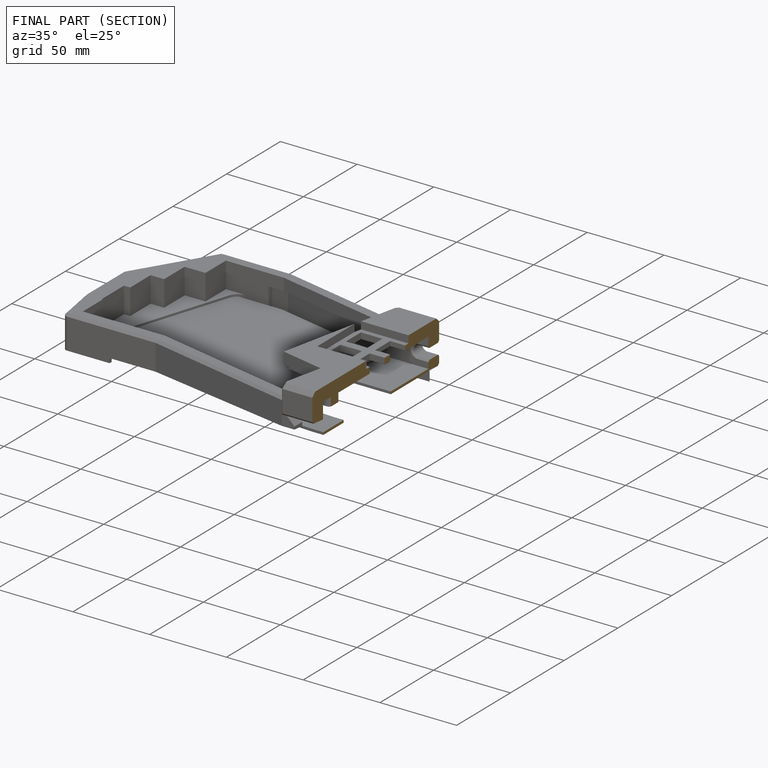
[diagram: finished part — half-section view (interior)]
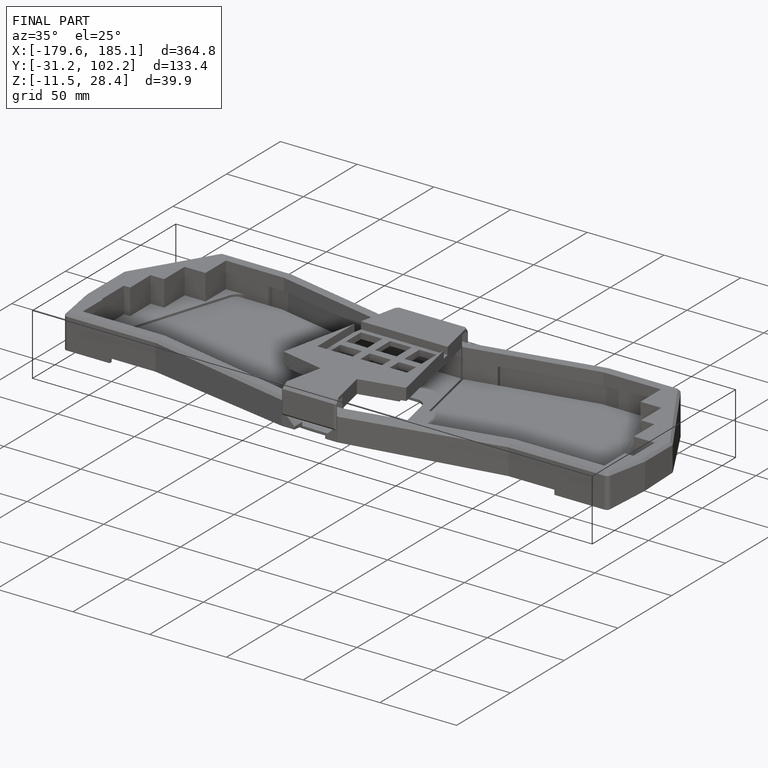
[diagram: finished part — iso view with bounding-box wireframe]
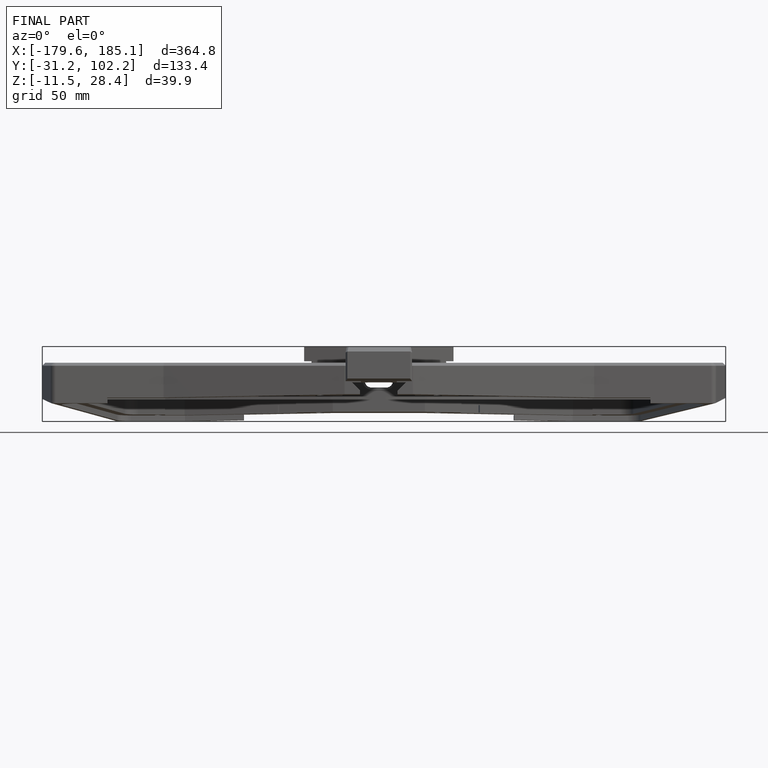
[diagram: finished part — front view with bounding-box wireframe]
